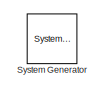
[diagram: root canvas - part 1/6, top center region]
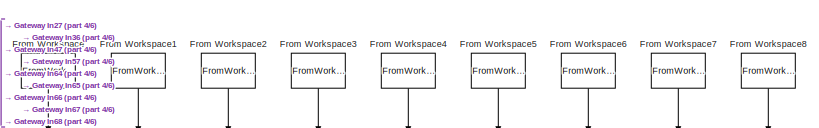
[diagram: root canvas - part 2/6, top left region]
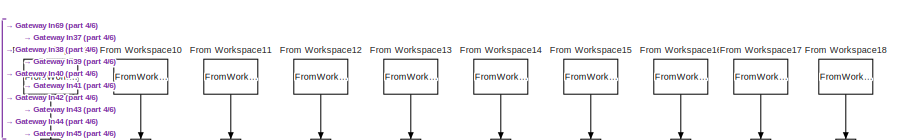
[diagram: root canvas - part 3/6, top right region]
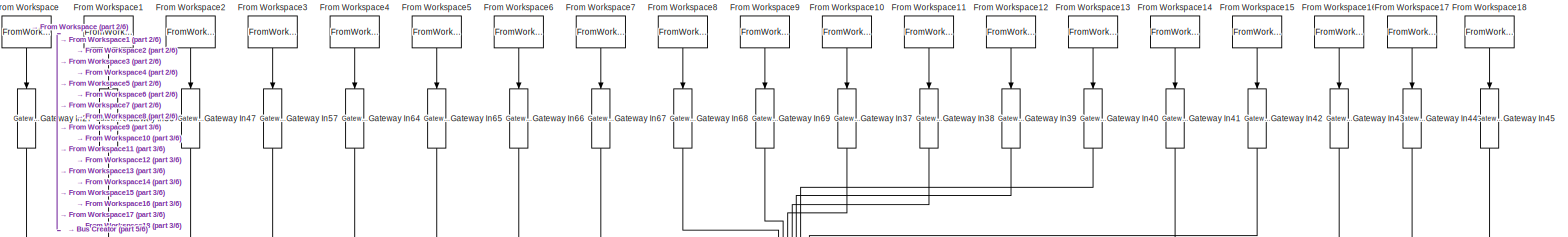
[diagram: root canvas - part 4/6, full width, top band]
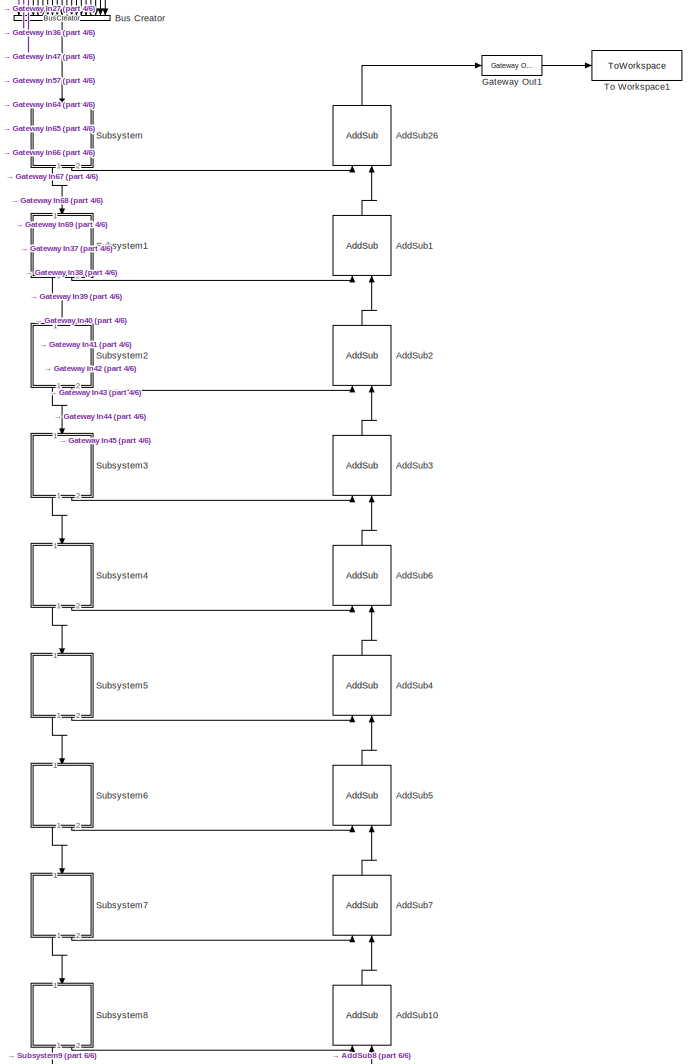
[diagram: root canvas - part 5/6, middle right region]
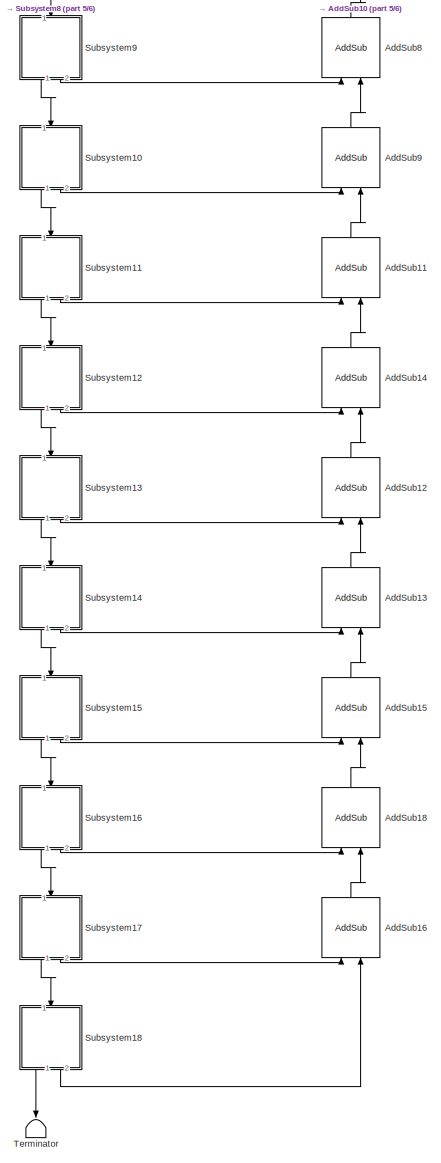
[diagram: root canvas - part 6/6, bottom center region]
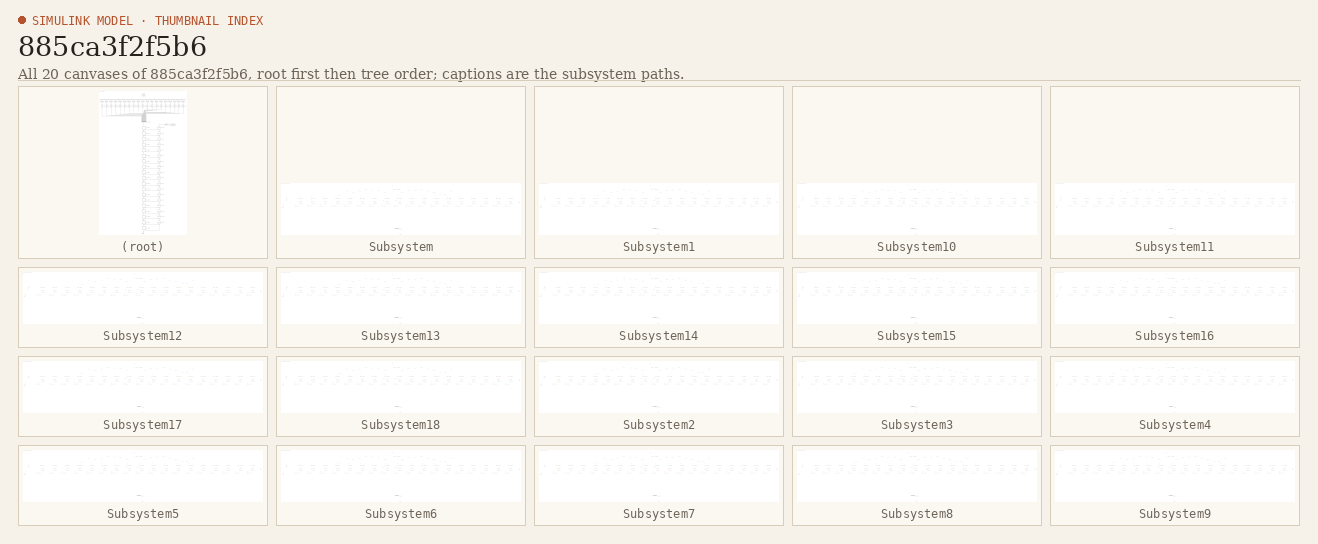
[diagram: thumbnail index - all 20 canvases of the model, root first then tree order]
MODEL slx_885ca3f2f5b6
KIND model
CONFIG AbsTol = auto
CONFIG EnableMultiTasking = off
CONFIG FixedStep = auto
CONFIG MaxStep = auto
CONFIG MinStep = auto
CONFIG RelTol = 1e-3
CONFIG SampleTimeConstraint = Unconstrained
CONFIG Solver = VariableStepAuto
CONFIG SolverName = VariableStepAuto
CONFIG StartTime = 0.0
CONFIG StopTime = 25000
BLOCK [Reference]  System Generator  REF=xbsIndex_r4/ System Generator
  AttributesFormatString = System\nGenerator
  Ports = []
  SourceBlock = xbsIndex_r4/ System Generator
  SourceType = Xilinx System Generator Block
  Tag = genX
  UserDataPersistent = on
BLOCK [Reference] AddSub1  REF=xbsIndex_r4/AddSub
  Ports = [2, 1]
  SourceBlock = xbsIndex_r4/AddSub
  SourceType = Xilinx Adder/Subtracter Block
BLOCK [Reference] AddSub10  REF=xbsIndex_r4/AddSub
  Ports = [2, 1]
  SourceBlock = xbsIndex_r4/AddSub
  SourceType = Xilinx Adder/Subtracter Block
BLOCK [Reference] AddSub11  REF=xbsIndex_r4/AddSub
  Ports = [2, 1]
  SourceBlock = xbsIndex_r4/AddSub
  SourceType = Xilinx Adder/Subtracter Block
BLOCK [Reference] AddSub12  REF=xbsIndex_r4/AddSub
  Ports = [2, 1]
  SourceBlock = xbsIndex_r4/AddSub
  SourceType = Xilinx Adder/Subtracter Block
BLOCK [Reference] AddSub13  REF=xbsIndex_r4/AddSub
  Ports = [2, 1]
  SourceBlock = xbsIndex_r4/AddSub
  SourceType = Xilinx Adder/Subtracter Block
BLOCK [Reference] AddSub14  REF=xbsIndex_r4/AddSub
  Ports = [2, 1]
  SourceBlock = xbsIndex_r4/AddSub
  SourceType = Xilinx Adder/Subtracter Block
BLOCK [Reference] AddSub15  REF=xbsIndex_r4/AddSub
  Ports = [2, 1]
  SourceBlock = xbsIndex_r4/AddSub
  SourceType = Xilinx Adder/Subtracter Block
BLOCK [Reference] AddSub16  REF=xbsIndex_r4/AddSub
  Ports = [2, 1]
  SourceBlock = xbsIndex_r4/AddSub
  SourceType = Xilinx Adder/Subtracter Block
BLOCK [Reference] AddSub18  REF=xbsIndex_r4/AddSub
  Ports = [2, 1]
  SourceBlock = xbsIndex_r4/AddSub
  SourceType = Xilinx Adder/Subtracter Block
BLOCK [Reference] AddSub2  REF=xbsIndex_r4/AddSub
  Ports = [2, 1]
  SourceBlock = xbsIndex_r4/AddSub
  SourceType = Xilinx Adder/Subtracter Block
BLOCK [Reference] AddSub26  REF=xbsIndex_r4/AddSub
  Ports = [2, 1]
  SourceBlock = xbsIndex_r4/AddSub
  SourceType = Xilinx Adder/Subtracter Block
BLOCK [Reference] AddSub3  REF=xbsIndex_r4/AddSub
  Ports = [2, 1]
  SourceBlock = xbsIndex_r4/AddSub
  SourceType = Xilinx Adder/Subtracter Block
BLOCK [Reference] AddSub4  REF=xbsIndex_r4/AddSub
  Ports = [2, 1]
  SourceBlock = xbsIndex_r4/AddSub
  SourceType = Xilinx Adder/Subtracter Block
BLOCK [Reference] AddSub5  REF=xbsIndex_r4/AddSub
  Ports = [2, 1]
  SourceBlock = xbsIndex_r4/AddSub
  SourceType = Xilinx Adder/Subtracter Block
BLOCK [Reference] AddSub6  REF=xbsIndex_r4/AddSub
  Ports = [2, 1]
  SourceBlock = xbsIndex_r4/AddSub
  SourceType = Xilinx Adder/Subtracter Block
BLOCK [Reference] AddSub7  REF=xbsIndex_r4/AddSub
  Ports = [2, 1]
  SourceBlock = xbsIndex_r4/AddSub
  SourceType = Xilinx Adder/Subtracter Block
BLOCK [Reference] AddSub8  REF=xbsIndex_r4/AddSub
  Ports = [2, 1]
  SourceBlock = xbsIndex_r4/AddSub
  SourceType = Xilinx Adder/Subtracter Block
BLOCK [Reference] AddSub9  REF=xbsIndex_r4/AddSub
  Ports = [2, 1]
  SourceBlock = xbsIndex_r4/AddSub
  SourceType = Xilinx Adder/Subtracter Block
BLOCK [BusCreator] Bus Creator
  DisplayOption = bar
  InheritFromInputs = on
  Inputs = 19
  Ports = [19, 1]
BLOCK [FromWorkspace] From Workspace
  SampleTime = 0
  VariableName = [(1:1:length(sig(:, 1)))' sig(:, 1)]
  ZeroCross = on
BLOCK [FromWorkspace] From Workspace1
  SampleTime = 0
  VariableName = [(1:1:length(sig(:, 2)))' sig(:, 2)];
  ZeroCross = on
BLOCK [FromWorkspace] From Workspace10
  SampleTime = 0
  VariableName = [(1:1:length(sig(:, 11)))' sig(:, 11)];
  ZeroCross = on
BLOCK [FromWorkspace] From Workspace11
  SampleTime = 0
  VariableName = [(1:1:length(sig(:, 12)))' sig(:, 12)];
  ZeroCross = on
BLOCK [FromWorkspace] From Workspace12
  SampleTime = 0
  VariableName = [(1:1:length(sig(:, 13)))' sig(:, 13)];
  ZeroCross = on
BLOCK [FromWorkspace] From Workspace13
  SampleTime = 0
  VariableName = [(1:1:length(sig(:, 14)))' sig(:, 14)];
  ZeroCross = on
BLOCK [FromWorkspace] From Workspace14
  SampleTime = 0
  VariableName = [(1:1:length(sig(:, 15)))' sig(:, 15)];
  ZeroCross = on
BLOCK [FromWorkspace] From Workspace15
  SampleTime = 0
  VariableName = [(1:1:length(sig(:, 16)))' sig(:, 16)];
  ZeroCross = on
BLOCK [FromWorkspace] From Workspace16
  SampleTime = 0
  VariableName = [(1:1:length(sig(:, 17)))' sig(:, 17)];
  ZeroCross = on
BLOCK [FromWorkspace] From Workspace17
  SampleTime = 0
  VariableName = [(1:1:length(sig(:, 18)))' sig(:, 18)];
  ZeroCross = on
BLOCK [FromWorkspace] From Workspace18
  SampleTime = 0
  VariableName = [(1:1:length(sig(:, 19)))' sig(:, 19)];
  ZeroCross = on
BLOCK [FromWorkspace] From Workspace2
  SampleTime = 0
  VariableName = [(1:1:length(sig(:, 3)))' sig(:, 3)];
  ZeroCross = on
BLOCK [FromWorkspace] From Workspace3
  SampleTime = 0
  VariableName = [(1:1:length(sig(:, 4)))' sig(:, 4)];
  ZeroCross = on
BLOCK [FromWorkspace] From Workspace4
  SampleTime = 0
  VariableName = [(1:1:length(sig(:, 5)))' sig(:, 5)];
  ZeroCross = on
BLOCK [FromWorkspace] From Workspace5
  SampleTime = 0
  VariableName = [(1:1:length(sig(:, 6)))' sig(:, 6)];
  ZeroCross = on
BLOCK [FromWorkspace] From Workspace6
  SampleTime = 0
  VariableName = [(1:1:length(sig(:, 7)))' sig(:, 7)];
  ZeroCross = on
BLOCK [FromWorkspace] From Workspace7
  SampleTime = 0
  VariableName = [(1:1:length(sig(:, 8)))' sig(:, 8)];
  ZeroCross = on
BLOCK [FromWorkspace] From Workspace8
  SampleTime = 0
  VariableName = [(1:1:length(sig(:, 9)))' sig(:, 9)];
  ZeroCross = on
BLOCK [FromWorkspace] From Workspace9
  SampleTime = 0
  VariableName = [(1:1:length(sig(:, 10)))' sig(:, 10)];
  ZeroCross = on
BLOCK [Reference] Gateway In27  REF=xbsIndex_r4/Gateway In
  Ports = [1, 1]
  SourceBlock = xbsIndex_r4/Gateway In
  SourceType = Xilinx Gateway In Block
BLOCK [Reference] Gateway In36  REF=xbsIndex_r4/Gateway In
  Ports = [1, 1]
  SourceBlock = xbsIndex_r4/Gateway In
  SourceType = Xilinx Gateway In Block
BLOCK [Reference] Gateway In37  REF=xbsIndex_r4/Gateway In
  Ports = [1, 1]
  SourceBlock = xbsIndex_r4/Gateway In
  SourceType = Xilinx Gateway In Block
BLOCK [Reference] Gateway In38  REF=xbsIndex_r4/Gateway In
  Ports = [1, 1]
  SourceBlock = xbsIndex_r4/Gateway In
  SourceType = Xilinx Gateway In Block
BLOCK [Reference] Gateway In39  REF=xbsIndex_r4/Gateway In
  Ports = [1, 1]
  SourceBlock = xbsIndex_r4/Gateway In
  SourceType = Xilinx Gateway In Block
BLOCK [Reference] Gateway In40  REF=xbsIndex_r4/Gateway In
  Ports = [1, 1]
  SourceBlock = xbsIndex_r4/Gateway In
  SourceType = Xilinx Gateway In Block
BLOCK [Reference] Gateway In41  REF=xbsIndex_r4/Gateway In
  Ports = [1, 1]
  SourceBlock = xbsIndex_r4/Gateway In
  SourceType = Xilinx Gateway In Block
BLOCK [Reference] Gateway In42  REF=xbsIndex_r4/Gateway In
  Ports = [1, 1]
  SourceBlock = xbsIndex_r4/Gateway In
  SourceType = Xilinx Gateway In Block
BLOCK [Reference] Gateway In43  REF=xbsIndex_r4/Gateway In
  Ports = [1, 1]
  SourceBlock = xbsIndex_r4/Gateway In
  SourceType = Xilinx Gateway In Block
BLOCK [Reference] Gateway In44  REF=xbsIndex_r4/Gateway In
  Ports = [1, 1]
  SourceBlock = xbsIndex_r4/Gateway In
  SourceType = Xilinx Gateway In Block
BLOCK [Reference] Gateway In45  REF=xbsIndex_r4/Gateway In
  Ports = [1, 1]
  SourceBlock = xbsIndex_r4/Gateway In
  SourceType = Xilinx Gateway In Block
BLOCK [Reference] Gateway In47  REF=xbsIndex_r4/Gateway In
  Ports = [1, 1]
  SourceBlock = xbsIndex_r4/Gateway In
  SourceType = Xilinx Gateway In Block
BLOCK [Reference] Gateway In57  REF=xbsIndex_r4/Gateway In
  Ports = [1, 1]
  SourceBlock = xbsIndex_r4/Gateway In
  SourceType = Xilinx Gateway In Block
BLOCK [Reference] Gateway In64  REF=xbsIndex_r4/Gateway In
  Ports = [1, 1]
  SourceBlock = xbsIndex_r4/Gateway In
  SourceType = Xilinx Gateway In Block
BLOCK [Reference] Gateway In65  REF=xbsIndex_r4/Gateway In
  Ports = [1, 1]
  SourceBlock = xbsIndex_r4/Gateway In
  SourceType = Xilinx Gateway In Block
BLOCK [Reference] Gateway In66  REF=xbsIndex_r4/Gateway In
  Ports = [1, 1]
  SourceBlock = xbsIndex_r4/Gateway In
  SourceType = Xilinx Gateway In Block
BLOCK [Reference] Gateway In67  REF=xbsIndex_r4/Gateway In
  Ports = [1, 1]
  SourceBlock = xbsIndex_r4/Gateway In
  SourceType = Xilinx Gateway In Block
BLOCK [Reference] Gateway In68  REF=xbsIndex_r4/Gateway In
  Ports = [1, 1]
  SourceBlock = xbsIndex_r4/Gateway In
  SourceType = Xilinx Gateway In Block
BLOCK [Reference] Gateway In69  REF=xbsIndex_r4/Gateway In
  Ports = [1, 1]
  SourceBlock = xbsIndex_r4/Gateway In
  SourceType = Xilinx Gateway In Block
BLOCK [Reference] Gateway Out1  REF=xbsIndex_r4/Gateway Out
  Ports = [1, 1]
  SourceBlock = xbsIndex_r4/Gateway Out
  SourceType = Xilinx Gateway Out Block
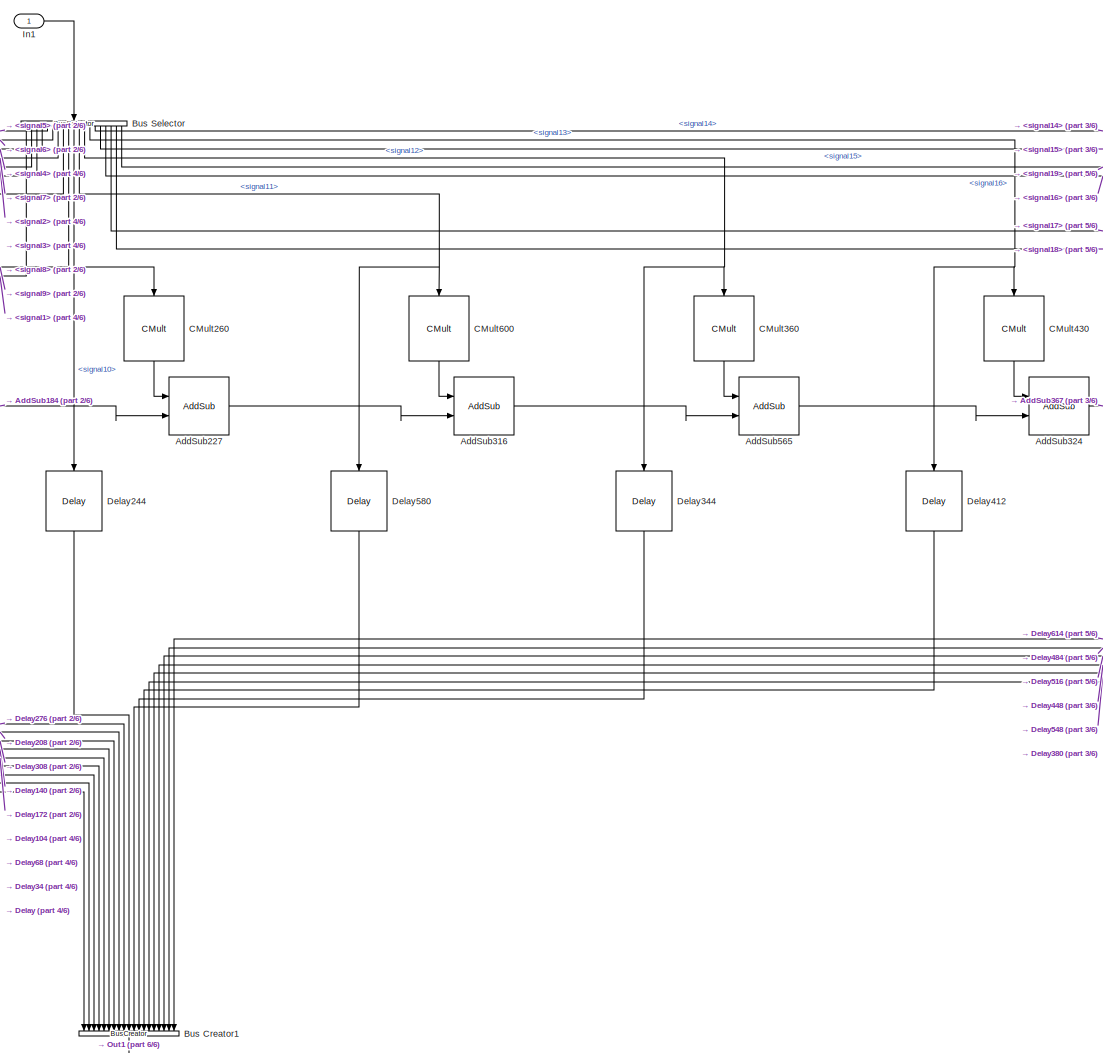
[diagram: Subsystem - part 1/6, center side, full height]
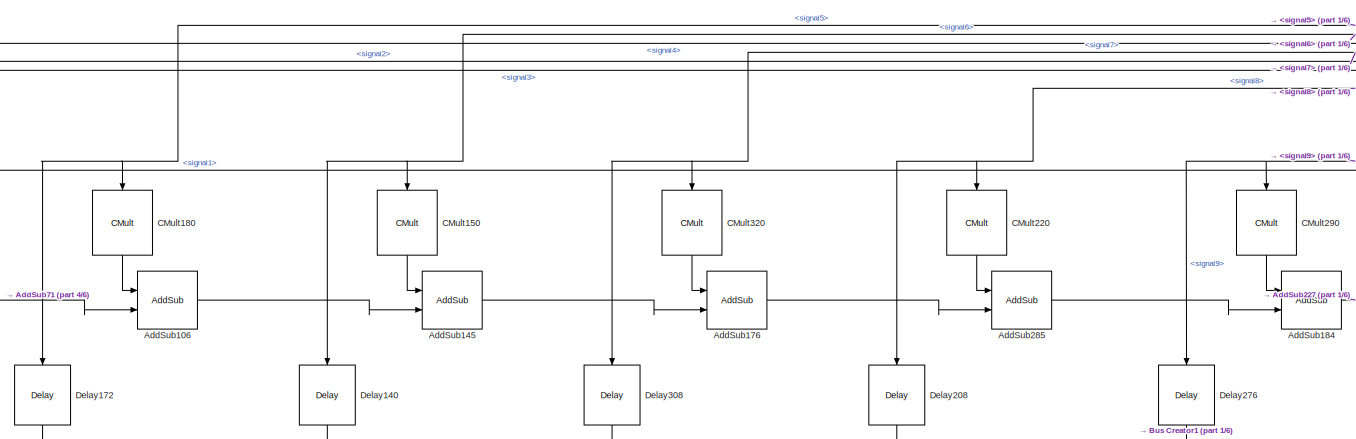
[diagram: Subsystem - part 2/6, top left region]
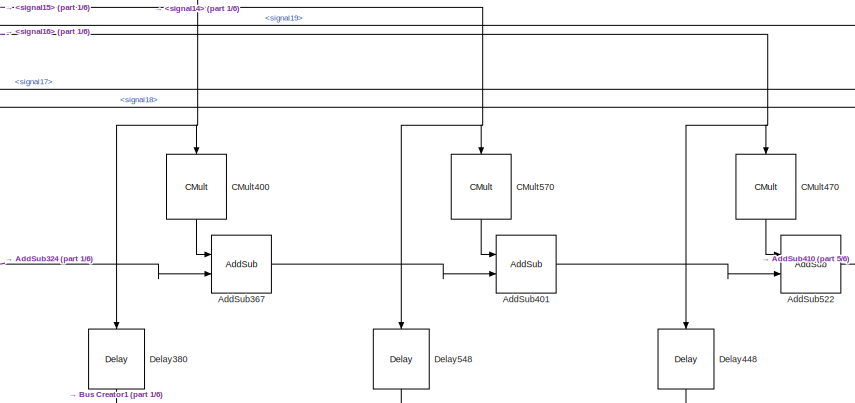
[diagram: Subsystem - part 3/6, top right region]
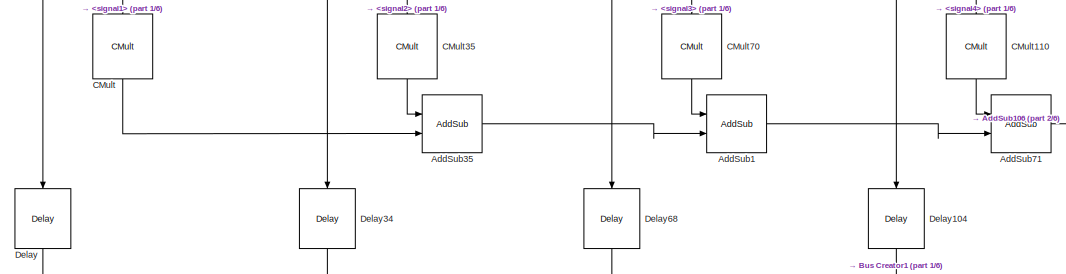
[diagram: Subsystem - part 4/6, middle left region]
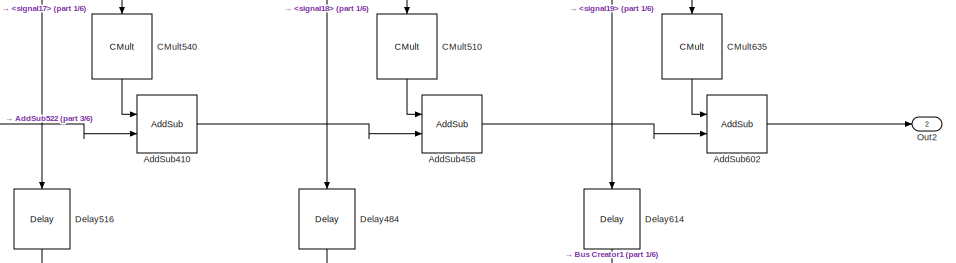
[diagram: Subsystem - part 5/6, middle right region]
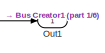
[diagram: Subsystem - part 6/6, bottom center region]
BLOCK [SubSystem] Subsystem
  Ports = [1, 2]
  RequestExecContextInheritance = off
BLOCK [Reference] Subsystem/AddSub1  REF=xbsIndex_r4/AddSub
  Ports = [2, 1]
  SourceBlock = xbsIndex_r4/AddSub
  SourceType = Xilinx Adder/Subtracter Block
BLOCK [Reference] Subsystem/AddSub106  REF=xbsIndex_r4/AddSub
  Ports = [2, 1]
  SourceBlock = xbsIndex_r4/AddSub
  SourceType = Xilinx Adder/Subtracter Block
BLOCK [Reference] Subsystem/AddSub145  REF=xbsIndex_r4/AddSub
  Ports = [2, 1]
  SourceBlock = xbsIndex_r4/AddSub
  SourceType = Xilinx Adder/Subtracter Block
BLOCK [Reference] Subsystem/AddSub176  REF=xbsIndex_r4/AddSub
  Ports = [2, 1]
  SourceBlock = xbsIndex_r4/AddSub
  SourceType = Xilinx Adder/Subtracter Block
BLOCK [Reference] Subsystem/AddSub184  REF=xbsIndex_r4/AddSub
  Ports = [2, 1]
  SourceBlock = xbsIndex_r4/AddSub
  SourceType = Xilinx Adder/Subtracter Block
BLOCK [Reference] Subsystem/AddSub227  REF=xbsIndex_r4/AddSub
  Ports = [2, 1]
  SourceBlock = xbsIndex_r4/AddSub
  SourceType = Xilinx Adder/Subtracter Block
BLOCK [Reference] Subsystem/AddSub285  REF=xbsIndex_r4/AddSub
  Ports = [2, 1]
  SourceBlock = xbsIndex_r4/AddSub
  SourceType = Xilinx Adder/Subtracter Block
BLOCK [Reference] Subsystem/AddSub316  REF=xbsIndex_r4/AddSub
  Ports = [2, 1]
  SourceBlock = xbsIndex_r4/AddSub
  SourceType = Xilinx Adder/Subtracter Block
BLOCK [Reference] Subsystem/AddSub324  REF=xbsIndex_r4/AddSub
  Ports = [2, 1]
  SourceBlock = xbsIndex_r4/AddSub
  SourceType = Xilinx Adder/Subtracter Block
BLOCK [Reference] Subsystem/AddSub35  REF=xbsIndex_r4/AddSub
  Ports = [2, 1]
  SourceBlock = xbsIndex_r4/AddSub
  SourceType = Xilinx Adder/Subtracter Block
BLOCK [Reference] Subsystem/AddSub367  REF=xbsIndex_r4/AddSub
  Ports = [2, 1]
  SourceBlock = xbsIndex_r4/AddSub
  SourceType = Xilinx Adder/Subtracter Block
BLOCK [Reference] Subsystem/AddSub401  REF=xbsIndex_r4/AddSub
  Ports = [2, 1]
  SourceBlock = xbsIndex_r4/AddSub
  SourceType = Xilinx Adder/Subtracter Block
BLOCK [Reference] Subsystem/AddSub410  REF=xbsIndex_r4/AddSub
  Ports = [2, 1]
  SourceBlock = xbsIndex_r4/AddSub
  SourceType = Xilinx Adder/Subtracter Block
BLOCK [Reference] Subsystem/AddSub458  REF=xbsIndex_r4/AddSub
  Ports = [2, 1]
  SourceBlock = xbsIndex_r4/AddSub
  SourceType = Xilinx Adder/Subtracter Block
BLOCK [Reference] Subsystem/AddSub522  REF=xbsIndex_r4/AddSub
  Ports = [2, 1]
  SourceBlock = xbsIndex_r4/AddSub
  SourceType = Xilinx Adder/Subtracter Block
BLOCK [Reference] Subsystem/AddSub565  REF=xbsIndex_r4/AddSub
  Ports = [2, 1]
  SourceBlock = xbsIndex_r4/AddSub
  SourceType = Xilinx Adder/Subtracter Block
BLOCK [Reference] Subsystem/AddSub602  REF=xbsIndex_r4/AddSub
  Ports = [2, 1]
  SourceBlock = xbsIndex_r4/AddSub
  SourceType = Xilinx Adder/Subtracter Block
BLOCK [Reference] Subsystem/AddSub71  REF=xbsIndex_r4/AddSub
  Ports = [2, 1]
  SourceBlock = xbsIndex_r4/AddSub
  SourceType = Xilinx Adder/Subtracter Block
BLOCK [BusCreator] Subsystem/Bus Creator1
  DisplayOption = bar
  InheritFromInputs = on
  Inputs = 19
  Ports = [19, 1]
BLOCK [BusSelector] Subsystem/Bus Selector
  OutputAsBus = off
  OutputSignals = signal1,signal2,signal3,signal4,signal5,signal6,signal7,signal8,signal9,signal10,signal11,signal12,signal13,signal14,signal15,signal16,signal17,signal18,signal19
  Ports = [1, 19]
BLOCK [Reference] Subsystem/CMult  REF=xbsIndex_r4/CMult
  Ports = [1, 1]
  SourceBlock = xbsIndex_r4/CMult
  SourceType = Xilinx Constant Multiplier Block
BLOCK [Reference] Subsystem/CMult110  REF=xbsIndex_r4/CMult
  Ports = [1, 1]
  SourceBlock = xbsIndex_r4/CMult
  SourceType = Xilinx Constant Multiplier Block
BLOCK [Reference] Subsystem/CMult150  REF=xbsIndex_r4/CMult
  Ports = [1, 1]
  SourceBlock = xbsIndex_r4/CMult
  SourceType = Xilinx Constant Multiplier Block
BLOCK [Reference] Subsystem/CMult180  REF=xbsIndex_r4/CMult
  Ports = [1, 1]
  SourceBlock = xbsIndex_r4/CMult
  SourceType = Xilinx Constant Multiplier Block
BLOCK [Reference] Subsystem/CMult220  REF=xbsIndex_r4/CMult
  Ports = [1, 1]
  SourceBlock = xbsIndex_r4/CMult
  SourceType = Xilinx Constant Multiplier Block
BLOCK [Reference] Subsystem/CMult260  REF=xbsIndex_r4/CMult
  Ports = [1, 1]
  SourceBlock = xbsIndex_r4/CMult
  SourceType = Xilinx Constant Multiplier Block
BLOCK [Reference] Subsystem/CMult290  REF=xbsIndex_r4/CMult
  Ports = [1, 1]
  SourceBlock = xbsIndex_r4/CMult
  SourceType = Xilinx Constant Multiplier Block
BLOCK [Reference] Subsystem/CMult320  REF=xbsIndex_r4/CMult
  Ports = [1, 1]
  SourceBlock = xbsIndex_r4/CMult
  SourceType = Xilinx Constant Multiplier Block
BLOCK [Reference] Subsystem/CMult35  REF=xbsIndex_r4/CMult
  Ports = [1, 1]
  SourceBlock = xbsIndex_r4/CMult
  SourceType = Xilinx Constant Multiplier Block
BLOCK [Reference] Subsystem/CMult360  REF=xbsIndex_r4/CMult
  Ports = [1, 1]
  SourceBlock = xbsIndex_r4/CMult
  SourceType = Xilinx Constant Multiplier Block
BLOCK [Reference] Subsystem/CMult400  REF=xbsIndex_r4/CMult
  Ports = [1, 1]
  SourceBlock = xbsIndex_r4/CMult
  SourceType = Xilinx Constant Multiplier Block
BLOCK [Reference] Subsystem/CMult430  REF=xbsIndex_r4/CMult
  Ports = [1, 1]
  SourceBlock = xbsIndex_r4/CMult
  SourceType = Xilinx Constant Multiplier Block
BLOCK [Reference] Subsystem/CMult470  REF=xbsIndex_r4/CMult
  Ports = [1, 1]
  SourceBlock = xbsIndex_r4/CMult
  SourceType = Xilinx Constant Multiplier Block
BLOCK [Reference] Subsystem/CMult510  REF=xbsIndex_r4/CMult
  Ports = [1, 1]
  SourceBlock = xbsIndex_r4/CMult
  SourceType = Xilinx Constant Multiplier Block
BLOCK [Reference] Subsystem/CMult540  REF=xbsIndex_r4/CMult
  Ports = [1, 1]
  SourceBlock = xbsIndex_r4/CMult
  SourceType = Xilinx Constant Multiplier Block
BLOCK [Reference] Subsystem/CMult570  REF=xbsIndex_r4/CMult
  Ports = [1, 1]
  SourceBlock = xbsIndex_r4/CMult
  SourceType = Xilinx Constant Multiplier Block
BLOCK [Reference] Subsystem/CMult600  REF=xbsIndex_r4/CMult
  Ports = [1, 1]
  SourceBlock = xbsIndex_r4/CMult
  SourceType = Xilinx Constant Multiplier Block
BLOCK [Reference] Subsystem/CMult635  REF=xbsIndex_r4/CMult
  Ports = [1, 1]
  SourceBlock = xbsIndex_r4/CMult
  SourceType = Xilinx Constant Multiplier Block
BLOCK [Reference] Subsystem/CMult70  REF=xbsIndex_r4/CMult
  Ports = [1, 1]
  SourceBlock = xbsIndex_r4/CMult
  SourceType = Xilinx Constant Multiplier Block
BLOCK [Reference] Subsystem/Delay  REF=xbsIndex_r4/Delay
  Ports = [1, 1]
  SourceBlock = xbsIndex_r4/Delay
  SourceType = Xilinx Delay Block
BLOCK [Reference] Subsystem/Delay104  REF=xbsIndex_r4/Delay
  Ports = [1, 1]
  SourceBlock = xbsIndex_r4/Delay
  SourceType = Xilinx Delay Block
BLOCK [Reference] Subsystem/Delay140  REF=xbsIndex_r4/Delay
  Ports = [1, 1]
  SourceBlock = xbsIndex_r4/Delay
  SourceType = Xilinx Delay Block
BLOCK [Reference] Subsystem/Delay172  REF=xbsIndex_r4/Delay
  Ports = [1, 1]
  SourceBlock = xbsIndex_r4/Delay
  SourceType = Xilinx Delay Block
BLOCK [Reference] Subsystem/Delay208  REF=xbsIndex_r4/Delay
  Ports = [1, 1]
  SourceBlock = xbsIndex_r4/Delay
  SourceType = Xilinx Delay Block
BLOCK [Reference] Subsystem/Delay244  REF=xbsIndex_r4/Delay
  Ports = [1, 1]
  SourceBlock = xbsIndex_r4/Delay
  SourceType = Xilinx Delay Block
BLOCK [Reference] Subsystem/Delay276  REF=xbsIndex_r4/Delay
  Ports = [1, 1]
  SourceBlock = xbsIndex_r4/Delay
  SourceType = Xilinx Delay Block
BLOCK [Reference] Subsystem/Delay308  REF=xbsIndex_r4/Delay
  Ports = [1, 1]
  SourceBlock = xbsIndex_r4/Delay
  SourceType = Xilinx Delay Block
BLOCK [Reference] Subsystem/Delay34  REF=xbsIndex_r4/Delay
  Ports = [1, 1]
  SourceBlock = xbsIndex_r4/Delay
  SourceType = Xilinx Delay Block
BLOCK [Reference] Subsystem/Delay344  REF=xbsIndex_r4/Delay
  Ports = [1, 1]
  SourceBlock = xbsIndex_r4/Delay
  SourceType = Xilinx Delay Block
BLOCK [Reference] Subsystem/Delay380  REF=xbsIndex_r4/Delay
  Ports = [1, 1]
  SourceBlock = xbsIndex_r4/Delay
  SourceType = Xilinx Delay Block
BLOCK [Reference] Subsystem/Delay412  REF=xbsIndex_r4/Delay
  Ports = [1, 1]
  SourceBlock = xbsIndex_r4/Delay
  SourceType = Xilinx Delay Block
BLOCK [Reference] Subsystem/Delay448  REF=xbsIndex_r4/Delay
  Ports = [1, 1]
  SourceBlock = xbsIndex_r4/Delay
  SourceType = Xilinx Delay Block
BLOCK [Reference] Subsystem/Delay484  REF=xbsIndex_r4/Delay
  Ports = [1, 1]
  SourceBlock = xbsIndex_r4/Delay
  SourceType = Xilinx Delay Block
BLOCK [Reference] Subsystem/Delay516  REF=xbsIndex_r4/Delay
  Ports = [1, 1]
  SourceBlock = xbsIndex_r4/Delay
  SourceType = Xilinx Delay Block
BLOCK [Reference] Subsystem/Delay548  REF=xbsIndex_r4/Delay
  Ports = [1, 1]
  SourceBlock = xbsIndex_r4/Delay
  SourceType = Xilinx Delay Block
BLOCK [Reference] Subsystem/Delay580  REF=xbsIndex_r4/Delay
  Ports = [1, 1]
  SourceBlock = xbsIndex_r4/Delay
  SourceType = Xilinx Delay Block
BLOCK [Reference] Subsystem/Delay614  REF=xbsIndex_r4/Delay
  Ports = [1, 1]
  SourceBlock = xbsIndex_r4/Delay
  SourceType = Xilinx Delay Block
BLOCK [Reference] Subsystem/Delay68  REF=xbsIndex_r4/Delay
  Ports = [1, 1]
  SourceBlock = xbsIndex_r4/Delay
  SourceType = Xilinx Delay Block
BLOCK [Inport] Subsystem/In1
  IconDisplay = Port number
BLOCK [Outport] Subsystem/Out1
  IconDisplay = Port number
BLOCK [Outport] Subsystem/Out2
  IconDisplay = Port number
  Port = 2
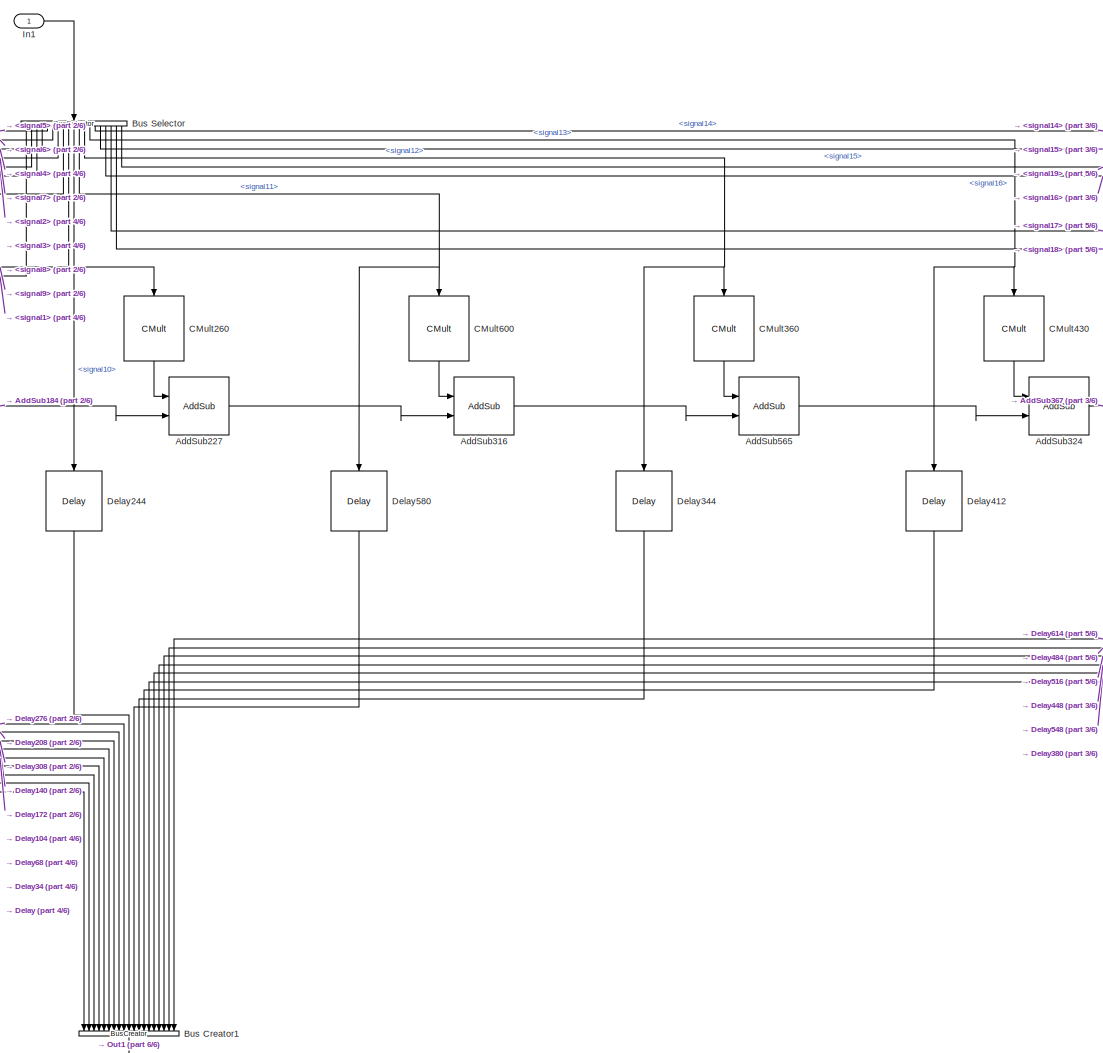
[diagram: Subsystem1 - part 1/6, center side, full height]
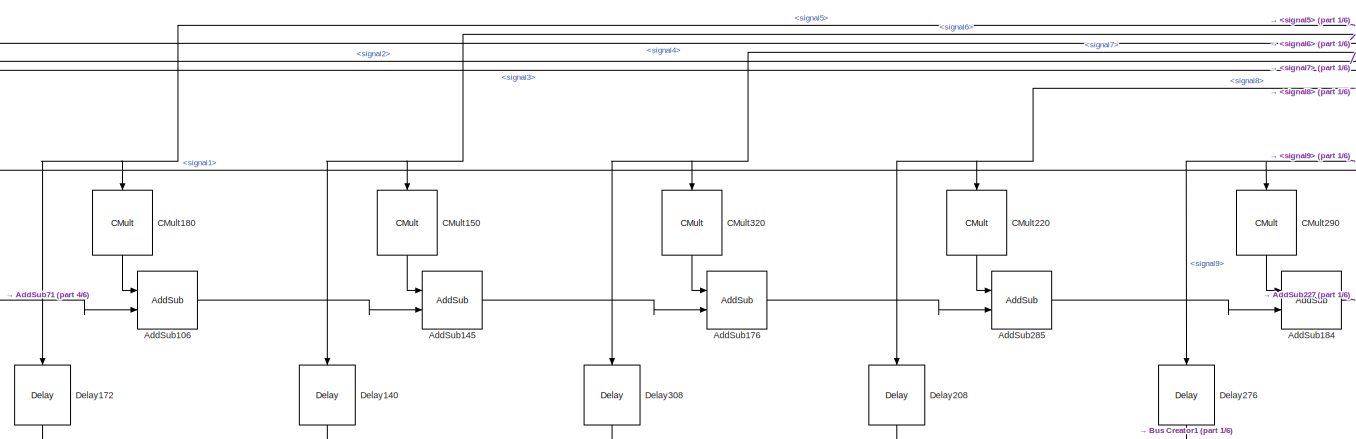
[diagram: Subsystem1 - part 2/6, top left region]
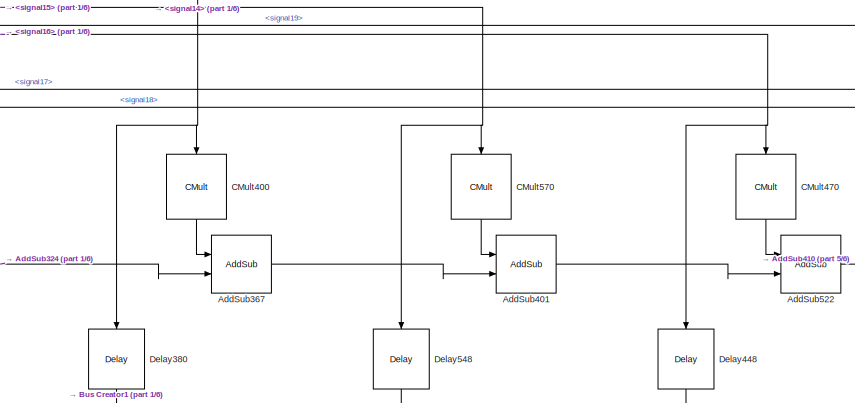
[diagram: Subsystem1 - part 3/6, top right region]
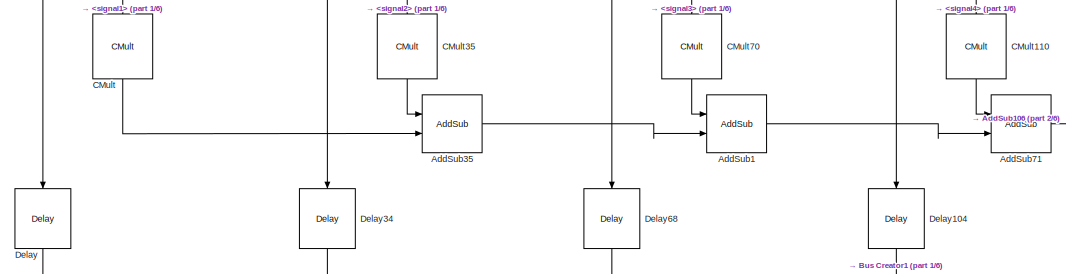
[diagram: Subsystem1 - part 4/6, middle left region]
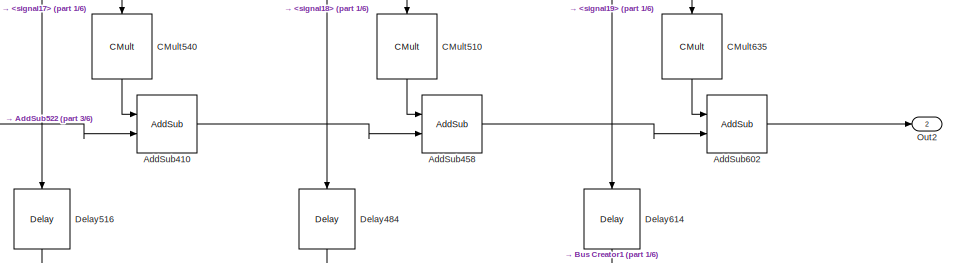
[diagram: Subsystem1 - part 5/6, middle right region]
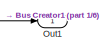
[diagram: Subsystem1 - part 6/6, bottom center region]
BLOCK [SubSystem] Subsystem1
  Ports = [1, 2]
  RequestExecContextInheritance = off
BLOCK [Reference] Subsystem1/AddSub1  REF=xbsIndex_r4/AddSub
  Ports = [2, 1]
  SourceBlock = xbsIndex_r4/AddSub
  SourceType = Xilinx Adder/Subtracter Block
BLOCK [Reference] Subsystem1/AddSub106  REF=xbsIndex_r4/AddSub
  Ports = [2, 1]
  SourceBlock = xbsIndex_r4/AddSub
  SourceType = Xilinx Adder/Subtracter Block
BLOCK [Reference] Subsystem1/AddSub145  REF=xbsIndex_r4/AddSub
  Ports = [2, 1]
  SourceBlock = xbsIndex_r4/AddSub
  SourceType = Xilinx Adder/Subtracter Block
BLOCK [Reference] Subsystem1/AddSub176  REF=xbsIndex_r4/AddSub
  Ports = [2, 1]
  SourceBlock = xbsIndex_r4/AddSub
  SourceType = Xilinx Adder/Subtracter Block
BLOCK [Reference] Subsystem1/AddSub184  REF=xbsIndex_r4/AddSub
  Ports = [2, 1]
  SourceBlock = xbsIndex_r4/AddSub
  SourceType = Xilinx Adder/Subtracter Block
BLOCK [Reference] Subsystem1/AddSub227  REF=xbsIndex_r4/AddSub
  Ports = [2, 1]
  SourceBlock = xbsIndex_r4/AddSub
  SourceType = Xilinx Adder/Subtracter Block
BLOCK [Reference] Subsystem1/AddSub285  REF=xbsIndex_r4/AddSub
  Ports = [2, 1]
  SourceBlock = xbsIndex_r4/AddSub
  SourceType = Xilinx Adder/Subtracter Block
BLOCK [Reference] Subsystem1/AddSub316  REF=xbsIndex_r4/AddSub
  Ports = [2, 1]
  SourceBlock = xbsIndex_r4/AddSub
  SourceType = Xilinx Adder/Subtracter Block
BLOCK [Reference] Subsystem1/AddSub324  REF=xbsIndex_r4/AddSub
  Ports = [2, 1]
  SourceBlock = xbsIndex_r4/AddSub
  SourceType = Xilinx Adder/Subtracter Block
BLOCK [Reference] Subsystem1/AddSub35  REF=xbsIndex_r4/AddSub
  Ports = [2, 1]
  SourceBlock = xbsIndex_r4/AddSub
  SourceType = Xilinx Adder/Subtracter Block
BLOCK [Reference] Subsystem1/AddSub367  REF=xbsIndex_r4/AddSub
  Ports = [2, 1]
  SourceBlock = xbsIndex_r4/AddSub
  SourceType = Xilinx Adder/Subtracter Block
BLOCK [Reference] Subsystem1/AddSub401  REF=xbsIndex_r4/AddSub
  Ports = [2, 1]
  SourceBlock = xbsIndex_r4/AddSub
  SourceType = Xilinx Adder/Subtracter Block
BLOCK [Reference] Subsystem1/AddSub410  REF=xbsIndex_r4/AddSub
  Ports = [2, 1]
  SourceBlock = xbsIndex_r4/AddSub
  SourceType = Xilinx Adder/Subtracter Block
BLOCK [Reference] Subsystem1/AddSub458  REF=xbsIndex_r4/AddSub
  Ports = [2, 1]
  SourceBlock = xbsIndex_r4/AddSub
  SourceType = Xilinx Adder/Subtracter Block
BLOCK [Reference] Subsystem1/AddSub522  REF=xbsIndex_r4/AddSub
  Ports = [2, 1]
  SourceBlock = xbsIndex_r4/AddSub
  SourceType = Xilinx Adder/Subtracter Block
BLOCK [Reference] Subsystem1/AddSub565  REF=xbsIndex_r4/AddSub
  Ports = [2, 1]
  SourceBlock = xbsIndex_r4/AddSub
  SourceType = Xilinx Adder/Subtracter Block
BLOCK [Reference] Subsystem1/AddSub602  REF=xbsIndex_r4/AddSub
  Ports = [2, 1]
  SourceBlock = xbsIndex_r4/AddSub
  SourceType = Xilinx Adder/Subtracter Block
BLOCK [Reference] Subsystem1/AddSub71  REF=xbsIndex_r4/AddSub
  Ports = [2, 1]
  SourceBlock = xbsIndex_r4/AddSub
  SourceType = Xilinx Adder/Subtracter Block
BLOCK [BusCreator] Subsystem1/Bus Creator1
  DisplayOption = bar
  InheritFromInputs = on
  Inputs = 19
  Ports = [19, 1]
BLOCK [BusSelector] Subsystem1/Bus Selector
  OutputAsBus = off
  OutputSignals = signal1,signal2,signal3,signal4,signal5,signal6,signal7,signal8,signal9,signal10,signal11,signal12,signal13,signal14,signal15,signal16,signal17,signal18,signal19
  Ports = [1, 19]
BLOCK [Reference] Subsystem1/CMult  REF=xbsIndex_r4/CMult
  Ports = [1, 1]
  SourceBlock = xbsIndex_r4/CMult
  SourceType = Xilinx Constant Multiplier Block
BLOCK [Reference] Subsystem1/CMult110  REF=xbsIndex_r4/CMult
  Ports = [1, 1]
  SourceBlock = xbsIndex_r4/CMult
  SourceType = Xilinx Constant Multiplier Block
BLOCK [Reference] Subsystem1/CMult150  REF=xbsIndex_r4/CMult
  Ports = [1, 1]
  SourceBlock = xbsIndex_r4/CMult
  SourceType = Xilinx Constant Multiplier Block
BLOCK [Reference] Subsystem1/CMult180  REF=xbsIndex_r4/CMult
  Ports = [1, 1]
  SourceBlock = xbsIndex_r4/CMult
  SourceType = Xilinx Constant Multiplier Block
BLOCK [Reference] Subsystem1/CMult220  REF=xbsIndex_r4/CMult
  Ports = [1, 1]
  SourceBlock = xbsIndex_r4/CMult
  SourceType = Xilinx Constant Multiplier Block
BLOCK [Reference] Subsystem1/CMult260  REF=xbsIndex_r4/CMult
  Ports = [1, 1]
  SourceBlock = xbsIndex_r4/CMult
  SourceType = Xilinx Constant Multiplier Block
BLOCK [Reference] Subsystem1/CMult290  REF=xbsIndex_r4/CMult
  Ports = [1, 1]
  SourceBlock = xbsIndex_r4/CMult
  SourceType = Xilinx Constant Multiplier Block
BLOCK [Reference] Subsystem1/CMult320  REF=xbsIndex_r4/CMult
  Ports = [1, 1]
  SourceBlock = xbsIndex_r4/CMult
  SourceType = Xilinx Constant Multiplier Block
BLOCK [Reference] Subsystem1/CMult35  REF=xbsIndex_r4/CMult
  Ports = [1, 1]
  SourceBlock = xbsIndex_r4/CMult
  SourceType = Xilinx Constant Multiplier Block
BLOCK [Reference] Subsystem1/CMult360  REF=xbsIndex_r4/CMult
  Ports = [1, 1]
  SourceBlock = xbsIndex_r4/CMult
  SourceType = Xilinx Constant Multiplier Block
BLOCK [Reference] Subsystem1/CMult400  REF=xbsIndex_r4/CMult
  Ports = [1, 1]
  SourceBlock = xbsIndex_r4/CMult
  SourceType = Xilinx Constant Multiplier Block
BLOCK [Reference] Subsystem1/CMult430  REF=xbsIndex_r4/CMult
  Ports = [1, 1]
  SourceBlock = xbsIndex_r4/CMult
  SourceType = Xilinx Constant Multiplier Block
BLOCK [Reference] Subsystem1/CMult470  REF=xbsIndex_r4/CMult
  Ports = [1, 1]
  SourceBlock = xbsIndex_r4/CMult
  SourceType = Xilinx Constant Multiplier Block
BLOCK [Reference] Subsystem1/CMult510  REF=xbsIndex_r4/CMult
  Ports = [1, 1]
  SourceBlock = xbsIndex_r4/CMult
  SourceType = Xilinx Constant Multiplier Block
BLOCK [Reference] Subsystem1/CMult540  REF=xbsIndex_r4/CMult
  Ports = [1, 1]
  SourceBlock = xbsIndex_r4/CMult
  SourceType = Xilinx Constant Multiplier Block
BLOCK [Reference] Subsystem1/CMult570  REF=xbsIndex_r4/CMult
  Ports = [1, 1]
  SourceBlock = xbsIndex_r4/CMult
  SourceType = Xilinx Constant Multiplier Block
BLOCK [Reference] Subsystem1/CMult600  REF=xbsIndex_r4/CMult
  Ports = [1, 1]
  SourceBlock = xbsIndex_r4/CMult
  SourceType = Xilinx Constant Multiplier Block
BLOCK [Reference] Subsystem1/CMult635  REF=xbsIndex_r4/CMult
  Ports = [1, 1]
  SourceBlock = xbsIndex_r4/CMult
  SourceType = Xilinx Constant Multiplier Block
BLOCK [Reference] Subsystem1/CMult70  REF=xbsIndex_r4/CMult
  Ports = [1, 1]
  SourceBlock = xbsIndex_r4/CMult
  SourceType = Xilinx Constant Multiplier Block
BLOCK [Reference] Subsystem1/Delay  REF=xbsIndex_r4/Delay
  Ports = [1, 1]
  SourceBlock = xbsIndex_r4/Delay
  SourceType = Xilinx Delay Block
BLOCK [Reference] Subsystem1/Delay104  REF=xbsIndex_r4/Delay
  Ports = [1, 1]
  SourceBlock = xbsIndex_r4/Delay
  SourceType = Xilinx Delay Block
BLOCK [Reference] Subsystem1/Delay140  REF=xbsIndex_r4/Delay
  Ports = [1, 1]
  SourceBlock = xbsIndex_r4/Delay
  SourceType = Xilinx Delay Block
BLOCK [Reference] Subsystem1/Delay172  REF=xbsIndex_r4/Delay
  Ports = [1, 1]
  SourceBlock = xbsIndex_r4/Delay
  SourceType = Xilinx Delay Block
BLOCK [Reference] Subsystem1/Delay208  REF=xbsIndex_r4/Delay
  Ports = [1, 1]
  SourceBlock = xbsIndex_r4/Delay
  SourceType = Xilinx Delay Block
BLOCK [Reference] Subsystem1/Delay244  REF=xbsIndex_r4/Delay
  Ports = [1, 1]
  SourceBlock = xbsIndex_r4/Delay
  SourceType = Xilinx Delay Block
BLOCK [Reference] Subsystem1/Delay276  REF=xbsIndex_r4/Delay
  Ports = [1, 1]
  SourceBlock = xbsIndex_r4/Delay
  SourceType = Xilinx Delay Block
BLOCK [Reference] Subsystem1/Delay308  REF=xbsIndex_r4/Delay
  Ports = [1, 1]
  SourceBlock = xbsIndex_r4/Delay
  SourceType = Xilinx Delay Block
BLOCK [Reference] Subsystem1/Delay34  REF=xbsIndex_r4/Delay
  Ports = [1, 1]
  SourceBlock = xbsIndex_r4/Delay
  SourceType = Xilinx Delay Block
BLOCK [Reference] Subsystem1/Delay344  REF=xbsIndex_r4/Delay
  Ports = [1, 1]
  SourceBlock = xbsIndex_r4/Delay
  SourceType = Xilinx Delay Block
BLOCK [Reference] Subsystem1/Delay380  REF=xbsIndex_r4/Delay
  Ports = [1, 1]
  SourceBlock = xbsIndex_r4/Delay
  SourceType = Xilinx Delay Block
BLOCK [Reference] Subsystem1/Delay412  REF=xbsIndex_r4/Delay
  Ports = [1, 1]
  SourceBlock = xbsIndex_r4/Delay
  SourceType = Xilinx Delay Block
BLOCK [Reference] Subsystem1/Delay448  REF=xbsIndex_r4/Delay
  Ports = [1, 1]
  SourceBlock = xbsIndex_r4/Delay
  SourceType = Xilinx Delay Block
BLOCK [Reference] Subsystem1/Delay484  REF=xbsIndex_r4/Delay
  Ports = [1, 1]
  SourceBlock = xbsIndex_r4/Delay
  SourceType = Xilinx Delay Block
BLOCK [Reference] Subsystem1/Delay516  REF=xbsIndex_r4/Delay
  Ports = [1, 1]
  SourceBlock = xbsIndex_r4/Delay
  SourceType = Xilinx Delay Block
BLOCK [Reference] Subsystem1/Delay548  REF=xbsIndex_r4/Delay
  Ports = [1, 1]
  SourceBlock = xbsIndex_r4/Delay
  SourceType = Xilinx Delay Block
BLOCK [Reference] Subsystem1/Delay580  REF=xbsIndex_r4/Delay
  Ports = [1, 1]
  SourceBlock = xbsIndex_r4/Delay
  SourceType = Xilinx Delay Block
BLOCK [Reference] Subsystem1/Delay614  REF=xbsIndex_r4/Delay
  Ports = [1, 1]
  SourceBlock = xbsIndex_r4/Delay
  SourceType = Xilinx Delay Block
BLOCK [Reference] Subsystem1/Delay68  REF=xbsIndex_r4/Delay
  Ports = [1, 1]
  SourceBlock = xbsIndex_r4/Delay
  SourceType = Xilinx Delay Block
BLOCK [Inport] Subsystem1/In1
  IconDisplay = Port number
BLOCK [Outport] Subsystem1/Out1
  IconDisplay = Port number
BLOCK [Outport] Subsystem1/Out2
  IconDisplay = Port number
  Port = 2
BLOCK [SubSystem] Subsystem10
  Ports = [1, 2]
  RequestExecContextInheritance = off
BLOCK [Reference] Subsystem10/AddSub1  REF=xbsIndex_r4/AddSub
  Ports = [2, 1]
  SourceBlock = xbsIndex_r4/AddSub
  SourceType = Xilinx Adder/Subtracter Block
BLOCK [Reference] Subsystem10/AddSub106  REF=xbsIndex_r4/AddSub
  Ports = [2, 1]
  SourceBlock = xbsIndex_r4/AddSub
  SourceType = Xilinx Adder/Subtracter Block
BLOCK [Reference] Subsystem10/AddSub145  REF=xbsIndex_r4/AddSub
  Ports = [2, 1]
  SourceBlock = xbsIndex_r4/AddSub
  SourceType = Xilinx Adder/Subtracter Block
BLOCK [Reference] Subsystem10/AddSub176  REF=xbsIndex_r4/AddSub
  Ports = [2, 1]
  SourceBlock = xbsIndex_r4/AddSub
  SourceType = Xilinx Adder/Subtracter Block
BLOCK [Reference] Subsystem10/AddSub184  REF=xbsIndex_r4/AddSub
  Ports = [2, 1]
  SourceBlock = xbsIndex_r4/AddSub
  SourceType = Xilinx Adder/Subtracter Block
BLOCK [Reference] Subsystem10/AddSub227  REF=xbsIndex_r4/AddSub
  Ports = [2, 1]
  SourceBlock = xbsIndex_r4/AddSub
  SourceType = Xilinx Adder/Subtracter Block
BLOCK [Reference] Subsystem10/AddSub285  REF=xbsIndex_r4/AddSub
  Ports = [2, 1]
  SourceBlock = xbsIndex_r4/AddSub
  SourceType = Xilinx Adder/Subtracter Block
BLOCK [Reference] Subsystem10/AddSub316  REF=xbsIndex_r4/AddSub
  Ports = [2, 1]
  SourceBlock = xbsIndex_r4/AddSub
  SourceType = Xilinx Adder/Subtracter Block
BLOCK [Reference] Subsystem10/AddSub324  REF=xbsIndex_r4/AddSub
  Ports = [2, 1]
  SourceBlock = xbsIndex_r4/AddSub
  SourceType = Xilinx Adder/Subtracter Block
BLOCK [Reference] Subsystem10/AddSub35  REF=xbsIndex_r4/AddSub
  Ports = [2, 1]
  SourceBlock = xbsIndex_r4/AddSub
  SourceType = Xilinx Adder/Subtracter Block
BLOCK [Reference] Subsystem10/AddSub367  REF=xbsIndex_r4/AddSub
  Ports = [2, 1]
  SourceBlock = xbsIndex_r4/AddSub
  SourceType = Xilinx Adder/Subtracter Block
BLOCK [Reference] Subsystem10/AddSub401  REF=xbsIndex_r4/AddSub
  Ports = [2, 1]
  SourceBlock = xbsIndex_r4/AddSub
  SourceType = Xilinx Adder/Subtracter Block
BLOCK [Reference] Subsystem10/AddSub410  REF=xbsIndex_r4/AddSub
  Ports = [2, 1]
  SourceBlock = xbsIndex_r4/AddSub
  SourceType = Xilinx Adder/Subtracter Block
BLOCK [Reference] Subsystem10/AddSub458  REF=xbsIndex_r4/AddSub
  Ports = [2, 1]
  SourceBlock = xbsIndex_r4/AddSub
  SourceType = Xilinx Adder/Subtracter Block
BLOCK [Reference] Subsystem10/AddSub522  REF=xbsIndex_r4/AddSub
  Ports = [2, 1]
  SourceBlock = xbsIndex_r4/AddSub
  SourceType = Xilinx Adder/Subtracter Block
BLOCK [Reference] Subsystem10/AddSub565  REF=xbsIndex_r4/AddSub
  Ports = [2, 1]
  SourceBlock = xbsIndex_r4/AddSub
  SourceType = Xilinx Adder/Subtracter Block
BLOCK [Reference] Subsystem10/AddSub602  REF=xbsIndex_r4/AddSub
  Ports = [2, 1]
  SourceBlock = xbsIndex_r4/AddSub
  SourceType = Xilinx Adder/Subtracter Block
BLOCK [Reference] Subsystem10/AddSub71  REF=xbsIndex_r4/AddSub
  Ports = [2, 1]
  SourceBlock = xbsIndex_r4/AddSub
  SourceType = Xilinx Adder/Subtracter Block
BLOCK [BusCreator] Subsystem10/Bus Creator1
  DisplayOption = bar
  InheritFromInputs = on
  Inputs = 19
  Ports = [19, 1]
BLOCK [BusSelector] Subsystem10/Bus Selector
  OutputAsBus = off
  OutputSignals = signal1,signal2,signal3,signal4,signal5,signal6,signal7,signal8,signal9,signal10,signal11,signal12,signal13,signal14,signal15,signal16,signal17,signal18,signal19
  Ports = [1, 19]
BLOCK [Reference] Subsystem10/CMult  REF=xbsIndex_r4/CMult
  Ports = [1, 1]
  SourceBlock = xbsIndex_r4/CMult
  SourceType = Xilinx Constant Multiplier Block
BLOCK [Reference] Subsystem10/CMult110  REF=xbsIndex_r4/CMult
  Ports = [1, 1]
  SourceBlock = xbsIndex_r4/CMult
  SourceType = Xilinx Constant Multiplier Block
BLOCK [Reference] Subsystem10/CMult150  REF=xbsIndex_r4/CMult
  Ports = [1, 1]
  SourceBlock = xbsIndex_r4/CMult
  SourceType = Xilinx Constant Multiplier Block
BLOCK [Reference] Subsystem10/CMult180  REF=xbsIndex_r4/CMult
  Ports = [1, 1]
  SourceBlock = xbsIndex_r4/CMult
  SourceType = Xilinx Constant Multiplier Block
BLOCK [Reference] Subsystem10/CMult220  REF=xbsIndex_r4/CMult
  Ports = [1, 1]
  SourceBlock = xbsIndex_r4/CMult
  SourceType = Xilinx Constant Multiplier Block
BLOCK [Reference] Subsystem10/CMult260  REF=xbsIndex_r4/CMult
  Ports = [1, 1]
  SourceBlock = xbsIndex_r4/CMult
  SourceType = Xilinx Constant Multiplier Block
BLOCK [Reference] Subsystem10/CMult290  REF=xbsIndex_r4/CMult
  Ports = [1, 1]
  SourceBlock = xbsIndex_r4/CMult
  SourceType = Xilinx Constant Multiplier Block
BLOCK [Reference] Subsystem10/CMult320  REF=xbsIndex_r4/CMult
  Ports = [1, 1]
  SourceBlock = xbsIndex_r4/CMult
  SourceType = Xilinx Constant Multiplier Block
BLOCK [Reference] Subsystem10/CMult35  REF=xbsIndex_r4/CMult
  Ports = [1, 1]
  SourceBlock = xbsIndex_r4/CMult
  SourceType = Xilinx Constant Multiplier Block
BLOCK [Reference] Subsystem10/CMult360  REF=xbsIndex_r4/CMult
  Ports = [1, 1]
  SourceBlock = xbsIndex_r4/CMult
  SourceType = Xilinx Constant Multiplier Block
BLOCK [Reference] Subsystem10/CMult400  REF=xbsIndex_r4/CMult
  Ports = [1, 1]
  SourceBlock = xbsIndex_r4/CMult
  SourceType = Xilinx Constant Multiplier Block
BLOCK [Reference] Subsystem10/CMult430  REF=xbsIndex_r4/CMult
  Ports = [1, 1]
  SourceBlock = xbsIndex_r4/CMult
  SourceType = Xilinx Constant Multiplier Block
BLOCK [Reference] Subsystem10/CMult470  REF=xbsIndex_r4/CMult
  Ports = [1, 1]
  SourceBlock = xbsIndex_r4/CMult
  SourceType = Xilinx Constant Multiplier Block
BLOCK [Reference] Subsystem10/CMult510  REF=xbsIndex_r4/CMult
  Ports = [1, 1]
  SourceBlock = xbsIndex_r4/CMult
  SourceType = Xilinx Constant Multiplier Block
BLOCK [Reference] Subsystem10/CMult540  REF=xbsIndex_r4/CMult
  Ports = [1, 1]
  SourceBlock = xbsIndex_r4/CMult
  SourceType = Xilinx Constant Multiplier Block
BLOCK [Reference] Subsystem10/CMult570  REF=xbsIndex_r4/CMult
  Ports = [1, 1]
  SourceBlock = xbsIndex_r4/CMult
  SourceType = Xilinx Constant Multiplier Block
BLOCK [Reference] Subsystem10/CMult600  REF=xbsIndex_r4/CMult
  Ports = [1, 1]
  SourceBlock = xbsIndex_r4/CMult
  SourceType = Xilinx Constant Multiplier Block
BLOCK [Reference] Subsystem10/CMult635  REF=xbsIndex_r4/CMult
  Ports = [1, 1]
  SourceBlock = xbsIndex_r4/CMult
  SourceType = Xilinx Constant Multiplier Block
BLOCK [Reference] Subsystem10/CMult70  REF=xbsIndex_r4/CMult
  Ports = [1, 1]
  SourceBlock = xbsIndex_r4/CMult
  SourceType = Xilinx Constant Multiplier Block
BLOCK [Reference] Subsystem10/Delay  REF=xbsIndex_r4/Delay
  Ports = [1, 1]
  SourceBlock = xbsIndex_r4/Delay
  SourceType = Xilinx Delay Block
BLOCK [Reference] Subsystem10/Delay104  REF=xbsIndex_r4/Delay
  Ports = [1, 1]
  SourceBlock = xbsIndex_r4/Delay
  SourceType = Xilinx Delay Block
BLOCK [Reference] Subsystem10/Delay140  REF=xbsIndex_r4/Delay
  Ports = [1, 1]
  SourceBlock = xbsIndex_r4/Delay
  SourceType = Xilinx Delay Block
BLOCK [Reference] Subsystem10/Delay172  REF=xbsIndex_r4/Delay
  Ports = [1, 1]
  SourceBlock = xbsIndex_r4/Delay
  SourceType = Xilinx Delay Block
BLOCK [Reference] Subsystem10/Delay208  REF=xbsIndex_r4/Delay
  Ports = [1, 1]
  SourceBlock = xbsIndex_r4/Delay
  SourceType = Xilinx Delay Block
BLOCK [Reference] Subsystem10/Delay244  REF=xbsIndex_r4/Delay
  Ports = [1, 1]
  SourceBlock = xbsIndex_r4/Delay
  SourceType = Xilinx Delay Block
BLOCK [Reference] Subsystem10/Delay276  REF=xbsIndex_r4/Delay
  Ports = [1, 1]
  SourceBlock = xbsIndex_r4/Delay
  SourceType = Xilinx Delay Block
BLOCK [Reference] Subsystem10/Delay308  REF=xbsIndex_r4/Delay
  Ports = [1, 1]
  SourceBlock = xbsIndex_r4/Delay
  SourceType = Xilinx Delay Block
BLOCK [Reference] Subsystem10/Delay34  REF=xbsIndex_r4/Delay
  Ports = [1, 1]
  SourceBlock = xbsIndex_r4/Delay
  SourceType = Xilinx Delay Block
BLOCK [Reference] Subsystem10/Delay344  REF=xbsIndex_r4/Delay
  Ports = [1, 1]
  SourceBlock = xbsIndex_r4/Delay
  SourceType = Xilinx Delay Block
BLOCK [Reference] Subsystem10/Delay380  REF=xbsIndex_r4/Delay
  Ports = [1, 1]
  SourceBlock = xbsIndex_r4/Delay
  SourceType = Xilinx Delay Block
BLOCK [Reference] Subsystem10/Delay412  REF=xbsIndex_r4/Delay
  Ports = [1, 1]
  SourceBlock = xbsIndex_r4/Delay
  SourceType = Xilinx Delay Block
BLOCK [Reference] Subsystem10/Delay448  REF=xbsIndex_r4/Delay
  Ports = [1, 1]
  SourceBlock = xbsIndex_r4/Delay
  SourceType = Xilinx Delay Block
BLOCK [Reference] Subsystem10/Delay484  REF=xbsIndex_r4/Delay
  Ports = [1, 1]
  SourceBlock = xbsIndex_r4/Delay
  SourceType = Xilinx Delay Block
BLOCK [Reference] Subsystem10/Delay516  REF=xbsIndex_r4/Delay
  Ports = [1, 1]
  SourceBlock = xbsIndex_r4/Delay
  SourceType = Xilinx Delay Block
BLOCK [Reference] Subsystem10/Delay548  REF=xbsIndex_r4/Delay
  Ports = [1, 1]
  SourceBlock = xbsIndex_r4/Delay
  SourceType = Xilinx Delay Block
BLOCK [Reference] Subsystem10/Delay580  REF=xbsIndex_r4/Delay
  Ports = [1, 1]
  SourceBlock = xbsIndex_r4/Delay
  SourceType = Xilinx Delay Block
BLOCK [Reference] Subsystem10/Delay614  REF=xbsIndex_r4/Delay
  Ports = [1, 1]
  SourceBlock = xbsIndex_r4/Delay
  SourceType = Xilinx Delay Block
BLOCK [Reference] Subsystem10/Delay68  REF=xbsIndex_r4/Delay
  Ports = [1, 1]
  SourceBlock = xbsIndex_r4/Delay
  SourceType = Xilinx Delay Block
BLOCK [Inport] Subsystem10/In1
  IconDisplay = Port number
BLOCK [Outport] Subsystem10/Out1
  IconDisplay = Port number
BLOCK [Outport] Subsystem10/Out2
  IconDisplay = Port number
  Port = 2
BLOCK [SubSystem] Subsystem11
  Ports = [1, 2]
  RequestExecContextInheritance = off
BLOCK [Reference] Subsystem11/AddSub1  REF=xbsIndex_r4/AddSub
  Ports = [2, 1]
  SourceBlock = xbsIndex_r4/AddSub
  SourceType = Xilinx Adder/Subtracter Block
BLOCK [Reference] Subsystem11/AddSub106  REF=xbsIndex_r4/AddSub
  Ports = [2, 1]
  SourceBlock = xbsIndex_r4/AddSub
  SourceType = Xilinx Adder/Subtracter Block
BLOCK [Reference] Subsystem11/AddSub145  REF=xbsIndex_r4/AddSub
  Ports = [2, 1]
  SourceBlock = xbsIndex_r4/AddSub
  SourceType = Xilinx Adder/Subtracter Block
BLOCK [Reference] Subsystem11/AddSub176  REF=xbsIndex_r4/AddSub
  Ports = [2, 1]
  SourceBlock = xbsIndex_r4/AddSub
  SourceType = Xilinx Adder/Subtracter Block
BLOCK [Reference] Subsystem11/AddSub184  REF=xbsIndex_r4/AddSub
  Ports = [2, 1]
  SourceBlock = xbsIndex_r4/AddSub
  SourceType = Xilinx Adder/Subtracter Block
BLOCK [Reference] Subsystem11/AddSub227  REF=xbsIndex_r4/AddSub
  Ports = [2, 1]
  SourceBlock = xbsIndex_r4/AddSub
  SourceType = Xilinx Adder/Subtracter Block
BLOCK [Reference] Subsystem11/AddSub285  REF=xbsIndex_r4/AddSub
  Ports = [2, 1]
  SourceBlock = xbsIndex_r4/AddSub
  SourceType = Xilinx Adder/Subtracter Block
BLOCK [Reference] Subsystem11/AddSub316  REF=xbsIndex_r4/AddSub
  Ports = [2, 1]
  SourceBlock = xbsIndex_r4/AddSub
  SourceType = Xilinx Adder/Subtracter Block
BLOCK [Reference] Subsystem11/AddSub324  REF=xbsIndex_r4/AddSub
  Ports = [2, 1]
  SourceBlock = xbsIndex_r4/AddSub
  SourceType = Xilinx Adder/Subtracter Block
BLOCK [Reference] Subsystem11/AddSub35  REF=xbsIndex_r4/AddSub
  Ports = [2, 1]
  SourceBlock = xbsIndex_r4/AddSub
  SourceType = Xilinx Adder/Subtracter Block
BLOCK [Reference] Subsystem11/AddSub367  REF=xbsIndex_r4/AddSub
  Ports = [2, 1]
  SourceBlock = xbsIndex_r4/AddSub
  SourceType = Xilinx Adder/Subtracter Block
BLOCK [Reference] Subsystem11/AddSub401  REF=xbsIndex_r4/AddSub
  Ports = [2, 1]
  SourceBlock = xbsIndex_r4/AddSub
  SourceType = Xilinx Adder/Subtracter Block
BLOCK [Reference] Subsystem11/AddSub410  REF=xbsIndex_r4/AddSub
  Ports = [2, 1]
  SourceBlock = xbsIndex_r4/AddSub
  SourceType = Xilinx Adder/Subtracter Block
BLOCK [Reference] Subsystem11/AddSub458  REF=xbsIndex_r4/AddSub
  Ports = [2, 1]
  SourceBlock = xbsIndex_r4/AddSub
  SourceType = Xilinx Adder/Subtracter Block
BLOCK [Reference] Subsystem11/AddSub522  REF=xbsIndex_r4/AddSub
  Ports = [2, 1]
  SourceBlock = xbsIndex_r4/AddSub
  SourceType = Xilinx Adder/Subtracter Block
BLOCK [Reference] Subsystem11/AddSub565  REF=xbsIndex_r4/AddSub
  Ports = [2, 1]
  SourceBlock = xbsIndex_r4/AddSub
  SourceType = Xilinx Adder/Subtracter Block
BLOCK [Reference] Subsystem11/AddSub602  REF=xbsIndex_r4/AddSub
  Ports = [2, 1]
  SourceBlock = xbsIndex_r4/AddSub
  SourceType = Xilinx Adder/Subtracter Block
BLOCK [Reference] Subsystem11/AddSub71  REF=xbsIndex_r4/AddSub
  Ports = [2, 1]
  SourceBlock = xbsIndex_r4/AddSub
  SourceType = Xilinx Adder/Subtracter Block
BLOCK [BusCreator] Subsystem11/Bus Creator1
  DisplayOption = bar
  InheritFromInputs = on
  Inputs = 19
  Ports = [19, 1]
BLOCK [BusSelector] Subsystem11/Bus Selector
  OutputAsBus = off
  OutputSignals = signal1,signal2,signal3,signal4,signal5,signal6,signal7,signal8,signal9,signal10,signal11,signal12,signal13,signal14,signal15,signal16,signal17,signal18,signal19
  Ports = [1, 19]
BLOCK [Reference] Subsystem11/CMult  REF=xbsIndex_r4/CMult
  Ports = [1, 1]
  SourceBlock = xbsIndex_r4/CMult
  SourceType = Xilinx Constant Multiplier Block
BLOCK [Reference] Subsystem11/CMult110  REF=xbsIndex_r4/CMult
  Ports = [1, 1]
  SourceBlock = xbsIndex_r4/CMult
  SourceType = Xilinx Constant Multiplier Block
BLOCK [Reference] Subsystem11/CMult150  REF=xbsIndex_r4/CMult
  Ports = [1, 1]
  SourceBlock = xbsIndex_r4/CMult
  SourceType = Xilinx Constant Multiplier Block
BLOCK [Reference] Subsystem11/CMult180  REF=xbsIndex_r4/CMult
  Ports = [1, 1]
  SourceBlock = xbsIndex_r4/CMult
  SourceType = Xilinx Constant Multiplier Block
BLOCK [Reference] Subsystem11/CMult220  REF=xbsIndex_r4/CMult
  Ports = [1, 1]
  SourceBlock = xbsIndex_r4/CMult
  SourceType = Xilinx Constant Multiplier Block
BLOCK [Reference] Subsystem11/CMult260  REF=xbsIndex_r4/CMult
  Ports = [1, 1]
  SourceBlock = xbsIndex_r4/CMult
  SourceType = Xilinx Constant Multiplier Block
BLOCK [Reference] Subsystem11/CMult290  REF=xbsIndex_r4/CMult
  Ports = [1, 1]
  SourceBlock = xbsIndex_r4/CMult
  SourceType = Xilinx Constant Multiplier Block
BLOCK [Reference] Subsystem11/CMult320  REF=xbsIndex_r4/CMult
  Ports = [1, 1]
  SourceBlock = xbsIndex_r4/CMult
  SourceType = Xilinx Constant Multiplier Block
BLOCK [Reference] Subsystem11/CMult35  REF=xbsIndex_r4/CMult
  Ports = [1, 1]
  SourceBlock = xbsIndex_r4/CMult
  SourceType = Xilinx Constant Multiplier Block
BLOCK [Reference] Subsystem11/CMult360  REF=xbsIndex_r4/CMult
  Ports = [1, 1]
  SourceBlock = xbsIndex_r4/CMult
  SourceType = Xilinx Constant Multiplier Block
BLOCK [Reference] Subsystem11/CMult400  REF=xbsIndex_r4/CMult
  Ports = [1, 1]
  SourceBlock = xbsIndex_r4/CMult
  SourceType = Xilinx Constant Multiplier Block
BLOCK [Reference] Subsystem11/CMult430  REF=xbsIndex_r4/CMult
  Ports = [1, 1]
  SourceBlock = xbsIndex_r4/CMult
  SourceType = Xilinx Constant Multiplier Block
BLOCK [Reference] Subsystem11/CMult470  REF=xbsIndex_r4/CMult
  Ports = [1, 1]
  SourceBlock = xbsIndex_r4/CMult
  SourceType = Xilinx Constant Multiplier Block
BLOCK [Reference] Subsystem11/CMult510  REF=xbsIndex_r4/CMult
  Ports = [1, 1]
  SourceBlock = xbsIndex_r4/CMult
  SourceType = Xilinx Constant Multiplier Block
BLOCK [Reference] Subsystem11/CMult540  REF=xbsIndex_r4/CMult
  Ports = [1, 1]
  SourceBlock = xbsIndex_r4/CMult
  SourceType = Xilinx Constant Multiplier Block
BLOCK [Reference] Subsystem11/CMult570  REF=xbsIndex_r4/CMult
  Ports = [1, 1]
  SourceBlock = xbsIndex_r4/CMult
  SourceType = Xilinx Constant Multiplier Block
BLOCK [Reference] Subsystem11/CMult600  REF=xbsIndex_r4/CMult
  Ports = [1, 1]
  SourceBlock = xbsIndex_r4/CMult
  SourceType = Xilinx Constant Multiplier Block
BLOCK [Reference] Subsystem11/CMult635  REF=xbsIndex_r4/CMult
  Ports = [1, 1]
  SourceBlock = xbsIndex_r4/CMult
  SourceType = Xilinx Constant Multiplier Block
BLOCK [Reference] Subsystem11/CMult70  REF=xbsIndex_r4/CMult
  Ports = [1, 1]
  SourceBlock = xbsIndex_r4/CMult
  SourceType = Xilinx Constant Multiplier Block
BLOCK [Reference] Subsystem11/Delay  REF=xbsIndex_r4/Delay
  Ports = [1, 1]
  SourceBlock = xbsIndex_r4/Delay
  SourceType = Xilinx Delay Block
BLOCK [Reference] Subsystem11/Delay104  REF=xbsIndex_r4/Delay
  Ports = [1, 1]
  SourceBlock = xbsIndex_r4/Delay
  SourceType = Xilinx Delay Block
BLOCK [Reference] Subsystem11/Delay140  REF=xbsIndex_r4/Delay
  Ports = [1, 1]
  SourceBlock = xbsIndex_r4/Delay
  SourceType = Xilinx Delay Block
BLOCK [Reference] Subsystem11/Delay172  REF=xbsIndex_r4/Delay
  Ports = [1, 1]
  SourceBlock = xbsIndex_r4/Delay
  SourceType = Xilinx Delay Block
BLOCK [Reference] Subsystem11/Delay208  REF=xbsIndex_r4/Delay
  Ports = [1, 1]
  SourceBlock = xbsIndex_r4/Delay
  SourceType = Xilinx Delay Block
BLOCK [Reference] Subsystem11/Delay244  REF=xbsIndex_r4/Delay
  Ports = [1, 1]
  SourceBlock = xbsIndex_r4/Delay
  SourceType = Xilinx Delay Block
BLOCK [Reference] Subsystem11/Delay276  REF=xbsIndex_r4/Delay
  Ports = [1, 1]
  SourceBlock = xbsIndex_r4/Delay
  SourceType = Xilinx Delay Block
BLOCK [Reference] Subsystem11/Delay308  REF=xbsIndex_r4/Delay
  Ports = [1, 1]
  SourceBlock = xbsIndex_r4/Delay
  SourceType = Xilinx Delay Block
BLOCK [Reference] Subsystem11/Delay34  REF=xbsIndex_r4/Delay
  Ports = [1, 1]
  SourceBlock = xbsIndex_r4/Delay
  SourceType = Xilinx Delay Block
BLOCK [Reference] Subsystem11/Delay344  REF=xbsIndex_r4/Delay
  Ports = [1, 1]
  SourceBlock = xbsIndex_r4/Delay
  SourceType = Xilinx Delay Block
BLOCK [Reference] Subsystem11/Delay380  REF=xbsIndex_r4/Delay
  Ports = [1, 1]
  SourceBlock = xbsIndex_r4/Delay
  SourceType = Xilinx Delay Block
BLOCK [Reference] Subsystem11/Delay412  REF=xbsIndex_r4/Delay
  Ports = [1, 1]
  SourceBlock = xbsIndex_r4/Delay
  SourceType = Xilinx Delay Block
BLOCK [Reference] Subsystem11/Delay448  REF=xbsIndex_r4/Delay
  Ports = [1, 1]
  SourceBlock = xbsIndex_r4/Delay
  SourceType = Xilinx Delay Block
BLOCK [Reference] Subsystem11/Delay484  REF=xbsIndex_r4/Delay
  Ports = [1, 1]
  SourceBlock = xbsIndex_r4/Delay
  SourceType = Xilinx Delay Block
BLOCK [Reference] Subsystem11/Delay516  REF=xbsIndex_r4/Delay
  Ports = [1, 1]
  SourceBlock = xbsIndex_r4/Delay
  SourceType = Xilinx Delay Block
BLOCK [Reference] Subsystem11/Delay548  REF=xbsIndex_r4/Delay
  Ports = [1, 1]
  SourceBlock = xbsIndex_r4/Delay
  SourceType = Xilinx Delay Block
BLOCK [Reference] Subsystem11/Delay580  REF=xbsIndex_r4/Delay
  Ports = [1, 1]
  SourceBlock = xbsIndex_r4/Delay
  SourceType = Xilinx Delay Block
BLOCK [Reference] Subsystem11/Delay614  REF=xbsIndex_r4/Delay
  Ports = [1, 1]
  SourceBlock = xbsIndex_r4/Delay
  SourceType = Xilinx Delay Block
BLOCK [Reference] Subsystem11/Delay68  REF=xbsIndex_r4/Delay
  Ports = [1, 1]
  SourceBlock = xbsIndex_r4/Delay
  SourceType = Xilinx Delay Block
BLOCK [Inport] Subsystem11/In1
  IconDisplay = Port number
BLOCK [Outport] Subsystem11/Out1
  IconDisplay = Port number
BLOCK [Outport] Subsystem11/Out2
  IconDisplay = Port number
  Port = 2
BLOCK [SubSystem] Subsystem12
  Ports = [1, 2]
  RequestExecContextInheritance = off
BLOCK [Reference] Subsystem12/AddSub1  REF=xbsIndex_r4/AddSub
  Ports = [2, 1]
  SourceBlock = xbsIndex_r4/AddSub
  SourceType = Xilinx Adder/Subtracter Block
BLOCK [Reference] Subsystem12/AddSub106  REF=xbsIndex_r4/AddSub
  Ports = [2, 1]
  SourceBlock = xbsIndex_r4/AddSub
  SourceType = Xilinx Adder/Subtracter Block
BLOCK [Reference] Subsystem12/AddSub145  REF=xbsIndex_r4/AddSub
  Ports = [2, 1]
  SourceBlock = xbsIndex_r4/AddSub
  SourceType = Xilinx Adder/Subtracter Block
BLOCK [Reference] Subsystem12/AddSub176  REF=xbsIndex_r4/AddSub
  Ports = [2, 1]
  SourceBlock = xbsIndex_r4/AddSub
  SourceType = Xilinx Adder/Subtracter Block
BLOCK [Reference] Subsystem12/AddSub184  REF=xbsIndex_r4/AddSub
  Ports = [2, 1]
  SourceBlock = xbsIndex_r4/AddSub
  SourceType = Xilinx Adder/Subtracter Block
BLOCK [Reference] Subsystem12/AddSub227  REF=xbsIndex_r4/AddSub
  Ports = [2, 1]
  SourceBlock = xbsIndex_r4/AddSub
  SourceType = Xilinx Adder/Subtracter Block
BLOCK [Reference] Subsystem12/AddSub285  REF=xbsIndex_r4/AddSub
  Ports = [2, 1]
  SourceBlock = xbsIndex_r4/AddSub
  SourceType = Xilinx Adder/Subtracter Block
BLOCK [Reference] Subsystem12/AddSub316  REF=xbsIndex_r4/AddSub
  Ports = [2, 1]
  SourceBlock = xbsIndex_r4/AddSub
  SourceType = Xilinx Adder/Subtracter Block
BLOCK [Reference] Subsystem12/AddSub324  REF=xbsIndex_r4/AddSub
  Ports = [2, 1]
  SourceBlock = xbsIndex_r4/AddSub
  SourceType = Xilinx Adder/Subtracter Block
BLOCK [Reference] Subsystem12/AddSub35  REF=xbsIndex_r4/AddSub
  Ports = [2, 1]
  SourceBlock = xbsIndex_r4/AddSub
  SourceType = Xilinx Adder/Subtracter Block
BLOCK [Reference] Subsystem12/AddSub367  REF=xbsIndex_r4/AddSub
  Ports = [2, 1]
  SourceBlock = xbsIndex_r4/AddSub
  SourceType = Xilinx Adder/Subtracter Block
BLOCK [Reference] Subsystem12/AddSub401  REF=xbsIndex_r4/AddSub
  Ports = [2, 1]
  SourceBlock = xbsIndex_r4/AddSub
  SourceType = Xilinx Adder/Subtracter Block
BLOCK [Reference] Subsystem12/AddSub410  REF=xbsIndex_r4/AddSub
  Ports = [2, 1]
  SourceBlock = xbsIndex_r4/AddSub
  SourceType = Xilinx Adder/Subtracter Block
BLOCK [Reference] Subsystem12/AddSub458  REF=xbsIndex_r4/AddSub
  Ports = [2, 1]
  SourceBlock = xbsIndex_r4/AddSub
  SourceType = Xilinx Adder/Subtracter Block
BLOCK [Reference] Subsystem12/AddSub522  REF=xbsIndex_r4/AddSub
  Ports = [2, 1]
  SourceBlock = xbsIndex_r4/AddSub
  SourceType = Xilinx Adder/Subtracter Block
BLOCK [Reference] Subsystem12/AddSub565  REF=xbsIndex_r4/AddSub
  Ports = [2, 1]
  SourceBlock = xbsIndex_r4/AddSub
  SourceType = Xilinx Adder/Subtracter Block
BLOCK [Reference] Subsystem12/AddSub602  REF=xbsIndex_r4/AddSub
  Ports = [2, 1]
  SourceBlock = xbsIndex_r4/AddSub
  SourceType = Xilinx Adder/Subtracter Block
BLOCK [Reference] Subsystem12/AddSub71  REF=xbsIndex_r4/AddSub
  Ports = [2, 1]
  SourceBlock = xbsIndex_r4/AddSub
  SourceType = Xilinx Adder/Subtracter Block
BLOCK [BusCreator] Subsystem12/Bus Creator1
  DisplayOption = bar
  InheritFromInputs = on
  Inputs = 19
  Ports = [19, 1]
BLOCK [BusSelector] Subsystem12/Bus Selector
  OutputAsBus = off
  OutputSignals = signal1,signal2,signal3,signal4,signal5,signal6,signal7,signal8,signal9,signal10,signal11,signal12,signal13,signal14,signal15,signal16,signal17,signal18,signal19
  Ports = [1, 19]
BLOCK [Reference] Subsystem12/CMult  REF=xbsIndex_r4/CMult
  Ports = [1, 1]
  SourceBlock = xbsIndex_r4/CMult
  SourceType = Xilinx Constant Multiplier Block
BLOCK [Reference] Subsystem12/CMult110  REF=xbsIndex_r4/CMult
  Ports = [1, 1]
  SourceBlock = xbsIndex_r4/CMult
  SourceType = Xilinx Constant Multiplier Block
BLOCK [Reference] Subsystem12/CMult150  REF=xbsIndex_r4/CMult
  Ports = [1, 1]
  SourceBlock = xbsIndex_r4/CMult
  SourceType = Xilinx Constant Multiplier Block
BLOCK [Reference] Subsystem12/CMult180  REF=xbsIndex_r4/CMult
  Ports = [1, 1]
  SourceBlock = xbsIndex_r4/CMult
  SourceType = Xilinx Constant Multiplier Block
BLOCK [Reference] Subsystem12/CMult220  REF=xbsIndex_r4/CMult
  Ports = [1, 1]
  SourceBlock = xbsIndex_r4/CMult
  SourceType = Xilinx Constant Multiplier Block
BLOCK [Reference] Subsystem12/CMult260  REF=xbsIndex_r4/CMult
  Ports = [1, 1]
  SourceBlock = xbsIndex_r4/CMult
  SourceType = Xilinx Constant Multiplier Block
BLOCK [Reference] Subsystem12/CMult290  REF=xbsIndex_r4/CMult
  Ports = [1, 1]
  SourceBlock = xbsIndex_r4/CMult
  SourceType = Xilinx Constant Multiplier Block
BLOCK [Reference] Subsystem12/CMult320  REF=xbsIndex_r4/CMult
  Ports = [1, 1]
  SourceBlock = xbsIndex_r4/CMult
  SourceType = Xilinx Constant Multiplier Block
BLOCK [Reference] Subsystem12/CMult35  REF=xbsIndex_r4/CMult
  Ports = [1, 1]
  SourceBlock = xbsIndex_r4/CMult
  SourceType = Xilinx Constant Multiplier Block
BLOCK [Reference] Subsystem12/CMult360  REF=xbsIndex_r4/CMult
  Ports = [1, 1]
  SourceBlock = xbsIndex_r4/CMult
  SourceType = Xilinx Constant Multiplier Block
BLOCK [Reference] Subsystem12/CMult400  REF=xbsIndex_r4/CMult
  Ports = [1, 1]
  SourceBlock = xbsIndex_r4/CMult
  SourceType = Xilinx Constant Multiplier Block
BLOCK [Reference] Subsystem12/CMult430  REF=xbsIndex_r4/CMult
  Ports = [1, 1]
  SourceBlock = xbsIndex_r4/CMult
  SourceType = Xilinx Constant Multiplier Block
BLOCK [Reference] Subsystem12/CMult470  REF=xbsIndex_r4/CMult
  Ports = [1, 1]
  SourceBlock = xbsIndex_r4/CMult
  SourceType = Xilinx Constant Multiplier Block
BLOCK [Reference] Subsystem12/CMult510  REF=xbsIndex_r4/CMult
  Ports = [1, 1]
  SourceBlock = xbsIndex_r4/CMult
  SourceType = Xilinx Constant Multiplier Block
BLOCK [Reference] Subsystem12/CMult540  REF=xbsIndex_r4/CMult
  Ports = [1, 1]
  SourceBlock = xbsIndex_r4/CMult
  SourceType = Xilinx Constant Multiplier Block
BLOCK [Reference] Subsystem12/CMult570  REF=xbsIndex_r4/CMult
  Ports = [1, 1]
  SourceBlock = xbsIndex_r4/CMult
  SourceType = Xilinx Constant Multiplier Block
BLOCK [Reference] Subsystem12/CMult600  REF=xbsIndex_r4/CMult
  Ports = [1, 1]
  SourceBlock = xbsIndex_r4/CMult
  SourceType = Xilinx Constant Multiplier Block
BLOCK [Reference] Subsystem12/CMult635  REF=xbsIndex_r4/CMult
  Ports = [1, 1]
  SourceBlock = xbsIndex_r4/CMult
  SourceType = Xilinx Constant Multiplier Block
BLOCK [Reference] Subsystem12/CMult70  REF=xbsIndex_r4/CMult
  Ports = [1, 1]
  SourceBlock = xbsIndex_r4/CMult
  SourceType = Xilinx Constant Multiplier Block
BLOCK [Reference] Subsystem12/Delay  REF=xbsIndex_r4/Delay
  Ports = [1, 1]
  SourceBlock = xbsIndex_r4/Delay
  SourceType = Xilinx Delay Block
BLOCK [Reference] Subsystem12/Delay104  REF=xbsIndex_r4/Delay
  Ports = [1, 1]
  SourceBlock = xbsIndex_r4/Delay
  SourceType = Xilinx Delay Block
BLOCK [Reference] Subsystem12/Delay140  REF=xbsIndex_r4/Delay
  Ports = [1, 1]
  SourceBlock = xbsIndex_r4/Delay
  SourceType = Xilinx Delay Block
BLOCK [Reference] Subsystem12/Delay172  REF=xbsIndex_r4/Delay
  Ports = [1, 1]
  SourceBlock = xbsIndex_r4/Delay
  SourceType = Xilinx Delay Block
BLOCK [Reference] Subsystem12/Delay208  REF=xbsIndex_r4/Delay
  Ports = [1, 1]
  SourceBlock = xbsIndex_r4/Delay
  SourceType = Xilinx Delay Block
BLOCK [Reference] Subsystem12/Delay244  REF=xbsIndex_r4/Delay
  Ports = [1, 1]
  SourceBlock = xbsIndex_r4/Delay
  SourceType = Xilinx Delay Block
BLOCK [Reference] Subsystem12/Delay276  REF=xbsIndex_r4/Delay
  Ports = [1, 1]
  SourceBlock = xbsIndex_r4/Delay
  SourceType = Xilinx Delay Block
BLOCK [Reference] Subsystem12/Delay308  REF=xbsIndex_r4/Delay
  Ports = [1, 1]
  SourceBlock = xbsIndex_r4/Delay
  SourceType = Xilinx Delay Block
BLOCK [Reference] Subsystem12/Delay34  REF=xbsIndex_r4/Delay
  Ports = [1, 1]
  SourceBlock = xbsIndex_r4/Delay
  SourceType = Xilinx Delay Block
BLOCK [Reference] Subsystem12/Delay344  REF=xbsIndex_r4/Delay
  Ports = [1, 1]
  SourceBlock = xbsIndex_r4/Delay
  SourceType = Xilinx Delay Block
BLOCK [Reference] Subsystem12/Delay380  REF=xbsIndex_r4/Delay
  Ports = [1, 1]
  SourceBlock = xbsIndex_r4/Delay
  SourceType = Xilinx Delay Block
BLOCK [Reference] Subsystem12/Delay412  REF=xbsIndex_r4/Delay
  Ports = [1, 1]
  SourceBlock = xbsIndex_r4/Delay
  SourceType = Xilinx Delay Block
BLOCK [Reference] Subsystem12/Delay448  REF=xbsIndex_r4/Delay
  Ports = [1, 1]
  SourceBlock = xbsIndex_r4/Delay
  SourceType = Xilinx Delay Block
BLOCK [Reference] Subsystem12/Delay484  REF=xbsIndex_r4/Delay
  Ports = [1, 1]
  SourceBlock = xbsIndex_r4/Delay
  SourceType = Xilinx Delay Block
BLOCK [Reference] Subsystem12/Delay516  REF=xbsIndex_r4/Delay
  Ports = [1, 1]
  SourceBlock = xbsIndex_r4/Delay
  SourceType = Xilinx Delay Block
BLOCK [Reference] Subsystem12/Delay548  REF=xbsIndex_r4/Delay
  Ports = [1, 1]
  SourceBlock = xbsIndex_r4/Delay
  SourceType = Xilinx Delay Block
BLOCK [Reference] Subsystem12/Delay580  REF=xbsIndex_r4/Delay
  Ports = [1, 1]
  SourceBlock = xbsIndex_r4/Delay
  SourceType = Xilinx Delay Block
BLOCK [Reference] Subsystem12/Delay614  REF=xbsIndex_r4/Delay
  Ports = [1, 1]
  SourceBlock = xbsIndex_r4/Delay
  SourceType = Xilinx Delay Block
BLOCK [Reference] Subsystem12/Delay68  REF=xbsIndex_r4/Delay
  Ports = [1, 1]
  SourceBlock = xbsIndex_r4/Delay
  SourceType = Xilinx Delay Block
BLOCK [Inport] Subsystem12/In1
  IconDisplay = Port number
BLOCK [Outport] Subsystem12/Out1
  IconDisplay = Port number
BLOCK [Outport] Subsystem12/Out2
  IconDisplay = Port number
  Port = 2
BLOCK [SubSystem] Subsystem13
  Ports = [1, 2]
  RequestExecContextInheritance = off
BLOCK [Reference] Subsystem13/AddSub1  REF=xbsIndex_r4/AddSub
  Ports = [2, 1]
  SourceBlock = xbsIndex_r4/AddSub
  SourceType = Xilinx Adder/Subtracter Block
BLOCK [Reference] Subsystem13/AddSub106  REF=xbsIndex_r4/AddSub
  Ports = [2, 1]
  SourceBlock = xbsIndex_r4/AddSub
  SourceType = Xilinx Adder/Subtracter Block
BLOCK [Reference] Subsystem13/AddSub145  REF=xbsIndex_r4/AddSub
  Ports = [2, 1]
  SourceBlock = xbsIndex_r4/AddSub
  SourceType = Xilinx Adder/Subtracter Block
BLOCK [Reference] Subsystem13/AddSub176  REF=xbsIndex_r4/AddSub
  Ports = [2, 1]
  SourceBlock = xbsIndex_r4/AddSub
  SourceType = Xilinx Adder/Subtracter Block
BLOCK [Reference] Subsystem13/AddSub184  REF=xbsIndex_r4/AddSub
  Ports = [2, 1]
  SourceBlock = xbsIndex_r4/AddSub
  SourceType = Xilinx Adder/Subtracter Block
BLOCK [Reference] Subsystem13/AddSub227  REF=xbsIndex_r4/AddSub
  Ports = [2, 1]
  SourceBlock = xbsIndex_r4/AddSub
  SourceType = Xilinx Adder/Subtracter Block
BLOCK [Reference] Subsystem13/AddSub285  REF=xbsIndex_r4/AddSub
  Ports = [2, 1]
  SourceBlock = xbsIndex_r4/AddSub
  SourceType = Xilinx Adder/Subtracter Block
BLOCK [Reference] Subsystem13/AddSub316  REF=xbsIndex_r4/AddSub
  Ports = [2, 1]
  SourceBlock = xbsIndex_r4/AddSub
  SourceType = Xilinx Adder/Subtracter Block
BLOCK [Reference] Subsystem13/AddSub324  REF=xbsIndex_r4/AddSub
  Ports = [2, 1]
  SourceBlock = xbsIndex_r4/AddSub
  SourceType = Xilinx Adder/Subtracter Block
BLOCK [Reference] Subsystem13/AddSub35  REF=xbsIndex_r4/AddSub
  Ports = [2, 1]
  SourceBlock = xbsIndex_r4/AddSub
  SourceType = Xilinx Adder/Subtracter Block
BLOCK [Reference] Subsystem13/AddSub367  REF=xbsIndex_r4/AddSub
  Ports = [2, 1]
  SourceBlock = xbsIndex_r4/AddSub
  SourceType = Xilinx Adder/Subtracter Block
BLOCK [Reference] Subsystem13/AddSub401  REF=xbsIndex_r4/AddSub
  Ports = [2, 1]
  SourceBlock = xbsIndex_r4/AddSub
  SourceType = Xilinx Adder/Subtracter Block
BLOCK [Reference] Subsystem13/AddSub410  REF=xbsIndex_r4/AddSub
  Ports = [2, 1]
  SourceBlock = xbsIndex_r4/AddSub
  SourceType = Xilinx Adder/Subtracter Block
BLOCK [Reference] Subsystem13/AddSub458  REF=xbsIndex_r4/AddSub
  Ports = [2, 1]
  SourceBlock = xbsIndex_r4/AddSub
  SourceType = Xilinx Adder/Subtracter Block
BLOCK [Reference] Subsystem13/AddSub522  REF=xbsIndex_r4/AddSub
  Ports = [2, 1]
  SourceBlock = xbsIndex_r4/AddSub
  SourceType = Xilinx Adder/Subtracter Block
BLOCK [Reference] Subsystem13/AddSub565  REF=xbsIndex_r4/AddSub
  Ports = [2, 1]
  SourceBlock = xbsIndex_r4/AddSub
  SourceType = Xilinx Adder/Subtracter Block
BLOCK [Reference] Subsystem13/AddSub602  REF=xbsIndex_r4/AddSub
  Ports = [2, 1]
  SourceBlock = xbsIndex_r4/AddSub
  SourceType = Xilinx Adder/Subtracter Block
BLOCK [Reference] Subsystem13/AddSub71  REF=xbsIndex_r4/AddSub
  Ports = [2, 1]
  SourceBlock = xbsIndex_r4/AddSub
  SourceType = Xilinx Adder/Subtracter Block
BLOCK [BusCreator] Subsystem13/Bus Creator1
  DisplayOption = bar
  InheritFromInputs = on
  Inputs = 19
  Ports = [19, 1]
BLOCK [BusSelector] Subsystem13/Bus Selector
  OutputAsBus = off
  OutputSignals = signal1,signal2,signal3,signal4,signal5,signal6,signal7,signal8,signal9,signal10,signal11,signal12,signal13,signal14,signal15,signal16,signal17,signal18,signal19
  Ports = [1, 19]
BLOCK [Reference] Subsystem13/CMult  REF=xbsIndex_r4/CMult
  Ports = [1, 1]
  SourceBlock = xbsIndex_r4/CMult
  SourceType = Xilinx Constant Multiplier Block
BLOCK [Reference] Subsystem13/CMult110  REF=xbsIndex_r4/CMult
  Ports = [1, 1]
  SourceBlock = xbsIndex_r4/CMult
  SourceType = Xilinx Constant Multiplier Block
BLOCK [Reference] Subsystem13/CMult150  REF=xbsIndex_r4/CMult
  Ports = [1, 1]
  SourceBlock = xbsIndex_r4/CMult
  SourceType = Xilinx Constant Multiplier Block
BLOCK [Reference] Subsystem13/CMult180  REF=xbsIndex_r4/CMult
  Ports = [1, 1]
  SourceBlock = xbsIndex_r4/CMult
  SourceType = Xilinx Constant Multiplier Block
BLOCK [Reference] Subsystem13/CMult220  REF=xbsIndex_r4/CMult
  Ports = [1, 1]
  SourceBlock = xbsIndex_r4/CMult
  SourceType = Xilinx Constant Multiplier Block
BLOCK [Reference] Subsystem13/CMult260  REF=xbsIndex_r4/CMult
  Ports = [1, 1]
  SourceBlock = xbsIndex_r4/CMult
  SourceType = Xilinx Constant Multiplier Block
BLOCK [Reference] Subsystem13/CMult290  REF=xbsIndex_r4/CMult
  Ports = [1, 1]
  SourceBlock = xbsIndex_r4/CMult
  SourceType = Xilinx Constant Multiplier Block
BLOCK [Reference] Subsystem13/CMult320  REF=xbsIndex_r4/CMult
  Ports = [1, 1]
  SourceBlock = xbsIndex_r4/CMult
  SourceType = Xilinx Constant Multiplier Block
BLOCK [Reference] Subsystem13/CMult35  REF=xbsIndex_r4/CMult
  Ports = [1, 1]
  SourceBlock = xbsIndex_r4/CMult
  SourceType = Xilinx Constant Multiplier Block
BLOCK [Reference] Subsystem13/CMult360  REF=xbsIndex_r4/CMult
  Ports = [1, 1]
  SourceBlock = xbsIndex_r4/CMult
  SourceType = Xilinx Constant Multiplier Block
BLOCK [Reference] Subsystem13/CMult400  REF=xbsIndex_r4/CMult
  Ports = [1, 1]
  SourceBlock = xbsIndex_r4/CMult
  SourceType = Xilinx Constant Multiplier Block
BLOCK [Reference] Subsystem13/CMult430  REF=xbsIndex_r4/CMult
  Ports = [1, 1]
  SourceBlock = xbsIndex_r4/CMult
  SourceType = Xilinx Constant Multiplier Block
BLOCK [Reference] Subsystem13/CMult470  REF=xbsIndex_r4/CMult
  Ports = [1, 1]
  SourceBlock = xbsIndex_r4/CMult
  SourceType = Xilinx Constant Multiplier Block
BLOCK [Reference] Subsystem13/CMult510  REF=xbsIndex_r4/CMult
  Ports = [1, 1]
  SourceBlock = xbsIndex_r4/CMult
  SourceType = Xilinx Constant Multiplier Block
BLOCK [Reference] Subsystem13/CMult540  REF=xbsIndex_r4/CMult
  Ports = [1, 1]
  SourceBlock = xbsIndex_r4/CMult
  SourceType = Xilinx Constant Multiplier Block
BLOCK [Reference] Subsystem13/CMult570  REF=xbsIndex_r4/CMult
  Ports = [1, 1]
  SourceBlock = xbsIndex_r4/CMult
  SourceType = Xilinx Constant Multiplier Block
BLOCK [Reference] Subsystem13/CMult600  REF=xbsIndex_r4/CMult
  Ports = [1, 1]
  SourceBlock = xbsIndex_r4/CMult
  SourceType = Xilinx Constant Multiplier Block
BLOCK [Reference] Subsystem13/CMult635  REF=xbsIndex_r4/CMult
  Ports = [1, 1]
  SourceBlock = xbsIndex_r4/CMult
  SourceType = Xilinx Constant Multiplier Block
BLOCK [Reference] Subsystem13/CMult70  REF=xbsIndex_r4/CMult
  Ports = [1, 1]
  SourceBlock = xbsIndex_r4/CMult
  SourceType = Xilinx Constant Multiplier Block
BLOCK [Reference] Subsystem13/Delay  REF=xbsIndex_r4/Delay
  Ports = [1, 1]
  SourceBlock = xbsIndex_r4/Delay
  SourceType = Xilinx Delay Block
BLOCK [Reference] Subsystem13/Delay104  REF=xbsIndex_r4/Delay
  Ports = [1, 1]
  SourceBlock = xbsIndex_r4/Delay
  SourceType = Xilinx Delay Block
BLOCK [Reference] Subsystem13/Delay140  REF=xbsIndex_r4/Delay
  Ports = [1, 1]
  SourceBlock = xbsIndex_r4/Delay
  SourceType = Xilinx Delay Block
BLOCK [Reference] Subsystem13/Delay172  REF=xbsIndex_r4/Delay
  Ports = [1, 1]
  SourceBlock = xbsIndex_r4/Delay
  SourceType = Xilinx Delay Block
BLOCK [Reference] Subsystem13/Delay208  REF=xbsIndex_r4/Delay
  Ports = [1, 1]
  SourceBlock = xbsIndex_r4/Delay
  SourceType = Xilinx Delay Block
BLOCK [Reference] Subsystem13/Delay244  REF=xbsIndex_r4/Delay
  Ports = [1, 1]
  SourceBlock = xbsIndex_r4/Delay
  SourceType = Xilinx Delay Block
BLOCK [Reference] Subsystem13/Delay276  REF=xbsIndex_r4/Delay
  Ports = [1, 1]
  SourceBlock = xbsIndex_r4/Delay
  SourceType = Xilinx Delay Block
BLOCK [Reference] Subsystem13/Delay308  REF=xbsIndex_r4/Delay
  Ports = [1, 1]
  SourceBlock = xbsIndex_r4/Delay
  SourceType = Xilinx Delay Block
BLOCK [Reference] Subsystem13/Delay34  REF=xbsIndex_r4/Delay
  Ports = [1, 1]
  SourceBlock = xbsIndex_r4/Delay
  SourceType = Xilinx Delay Block
BLOCK [Reference] Subsystem13/Delay344  REF=xbsIndex_r4/Delay
  Ports = [1, 1]
  SourceBlock = xbsIndex_r4/Delay
  SourceType = Xilinx Delay Block
BLOCK [Reference] Subsystem13/Delay380  REF=xbsIndex_r4/Delay
  Ports = [1, 1]
  SourceBlock = xbsIndex_r4/Delay
  SourceType = Xilinx Delay Block
BLOCK [Reference] Subsystem13/Delay412  REF=xbsIndex_r4/Delay
  Ports = [1, 1]
  SourceBlock = xbsIndex_r4/Delay
  SourceType = Xilinx Delay Block
BLOCK [Reference] Subsystem13/Delay448  REF=xbsIndex_r4/Delay
  Ports = [1, 1]
  SourceBlock = xbsIndex_r4/Delay
  SourceType = Xilinx Delay Block
BLOCK [Reference] Subsystem13/Delay484  REF=xbsIndex_r4/Delay
  Ports = [1, 1]
  SourceBlock = xbsIndex_r4/Delay
  SourceType = Xilinx Delay Block
BLOCK [Reference] Subsystem13/Delay516  REF=xbsIndex_r4/Delay
  Ports = [1, 1]
  SourceBlock = xbsIndex_r4/Delay
  SourceType = Xilinx Delay Block
BLOCK [Reference] Subsystem13/Delay548  REF=xbsIndex_r4/Delay
  Ports = [1, 1]
  SourceBlock = xbsIndex_r4/Delay
  SourceType = Xilinx Delay Block
BLOCK [Reference] Subsystem13/Delay580  REF=xbsIndex_r4/Delay
  Ports = [1, 1]
  SourceBlock = xbsIndex_r4/Delay
  SourceType = Xilinx Delay Block
BLOCK [Reference] Subsystem13/Delay614  REF=xbsIndex_r4/Delay
  Ports = [1, 1]
  SourceBlock = xbsIndex_r4/Delay
  SourceType = Xilinx Delay Block
BLOCK [Reference] Subsystem13/Delay68  REF=xbsIndex_r4/Delay
  Ports = [1, 1]
  SourceBlock = xbsIndex_r4/Delay
  SourceType = Xilinx Delay Block
BLOCK [Inport] Subsystem13/In1
  IconDisplay = Port number
BLOCK [Outport] Subsystem13/Out1
  IconDisplay = Port number
BLOCK [Outport] Subsystem13/Out2
  IconDisplay = Port number
  Port = 2
BLOCK [SubSystem] Subsystem14
  Ports = [1, 2]
  RequestExecContextInheritance = off
BLOCK [Reference] Subsystem14/AddSub1  REF=xbsIndex_r4/AddSub
  Ports = [2, 1]
  SourceBlock = xbsIndex_r4/AddSub
  SourceType = Xilinx Adder/Subtracter Block
BLOCK [Reference] Subsystem14/AddSub106  REF=xbsIndex_r4/AddSub
  Ports = [2, 1]
  SourceBlock = xbsIndex_r4/AddSub
  SourceType = Xilinx Adder/Subtracter Block
BLOCK [Reference] Subsystem14/AddSub145  REF=xbsIndex_r4/AddSub
  Ports = [2, 1]
  SourceBlock = xbsIndex_r4/AddSub
  SourceType = Xilinx Adder/Subtracter Block
BLOCK [Reference] Subsystem14/AddSub176  REF=xbsIndex_r4/AddSub
  Ports = [2, 1]
  SourceBlock = xbsIndex_r4/AddSub
  SourceType = Xilinx Adder/Subtracter Block
BLOCK [Reference] Subsystem14/AddSub184  REF=xbsIndex_r4/AddSub
  Ports = [2, 1]
  SourceBlock = xbsIndex_r4/AddSub
  SourceType = Xilinx Adder/Subtracter Block
BLOCK [Reference] Subsystem14/AddSub227  REF=xbsIndex_r4/AddSub
  Ports = [2, 1]
  SourceBlock = xbsIndex_r4/AddSub
  SourceType = Xilinx Adder/Subtracter Block
BLOCK [Reference] Subsystem14/AddSub285  REF=xbsIndex_r4/AddSub
  Ports = [2, 1]
  SourceBlock = xbsIndex_r4/AddSub
  SourceType = Xilinx Adder/Subtracter Block
BLOCK [Reference] Subsystem14/AddSub316  REF=xbsIndex_r4/AddSub
  Ports = [2, 1]
  SourceBlock = xbsIndex_r4/AddSub
  SourceType = Xilinx Adder/Subtracter Block
BLOCK [Reference] Subsystem14/AddSub324  REF=xbsIndex_r4/AddSub
  Ports = [2, 1]
  SourceBlock = xbsIndex_r4/AddSub
  SourceType = Xilinx Adder/Subtracter Block
BLOCK [Reference] Subsystem14/AddSub35  REF=xbsIndex_r4/AddSub
  Ports = [2, 1]
  SourceBlock = xbsIndex_r4/AddSub
  SourceType = Xilinx Adder/Subtracter Block
BLOCK [Reference] Subsystem14/AddSub367  REF=xbsIndex_r4/AddSub
  Ports = [2, 1]
  SourceBlock = xbsIndex_r4/AddSub
  SourceType = Xilinx Adder/Subtracter Block
BLOCK [Reference] Subsystem14/AddSub401  REF=xbsIndex_r4/AddSub
  Ports = [2, 1]
  SourceBlock = xbsIndex_r4/AddSub
  SourceType = Xilinx Adder/Subtracter Block
BLOCK [Reference] Subsystem14/AddSub410  REF=xbsIndex_r4/AddSub
  Ports = [2, 1]
  SourceBlock = xbsIndex_r4/AddSub
  SourceType = Xilinx Adder/Subtracter Block
BLOCK [Reference] Subsystem14/AddSub458  REF=xbsIndex_r4/AddSub
  Ports = [2, 1]
  SourceBlock = xbsIndex_r4/AddSub
  SourceType = Xilinx Adder/Subtracter Block
BLOCK [Reference] Subsystem14/AddSub522  REF=xbsIndex_r4/AddSub
  Ports = [2, 1]
  SourceBlock = xbsIndex_r4/AddSub
  SourceType = Xilinx Adder/Subtracter Block
BLOCK [Reference] Subsystem14/AddSub565  REF=xbsIndex_r4/AddSub
  Ports = [2, 1]
  SourceBlock = xbsIndex_r4/AddSub
  SourceType = Xilinx Adder/Subtracter Block
BLOCK [Reference] Subsystem14/AddSub602  REF=xbsIndex_r4/AddSub
  Ports = [2, 1]
  SourceBlock = xbsIndex_r4/AddSub
  SourceType = Xilinx Adder/Subtracter Block
BLOCK [Reference] Subsystem14/AddSub71  REF=xbsIndex_r4/AddSub
  Ports = [2, 1]
  SourceBlock = xbsIndex_r4/AddSub
  SourceType = Xilinx Adder/Subtracter Block
BLOCK [BusCreator] Subsystem14/Bus Creator1
  DisplayOption = bar
  InheritFromInputs = on
  Inputs = 19
  Ports = [19, 1]
BLOCK [BusSelector] Subsystem14/Bus Selector
  OutputAsBus = off
  OutputSignals = signal1,signal2,signal3,signal4,signal5,signal6,signal7,signal8,signal9,signal10,signal11,signal12,signal13,signal14,signal15,signal16,signal17,signal18,signal19
  Ports = [1, 19]
BLOCK [Reference] Subsystem14/CMult  REF=xbsIndex_r4/CMult
  Ports = [1, 1]
  SourceBlock = xbsIndex_r4/CMult
  SourceType = Xilinx Constant Multiplier Block
BLOCK [Reference] Subsystem14/CMult110  REF=xbsIndex_r4/CMult
  Ports = [1, 1]
  SourceBlock = xbsIndex_r4/CMult
  SourceType = Xilinx Constant Multiplier Block
BLOCK [Reference] Subsystem14/CMult150  REF=xbsIndex_r4/CMult
  Ports = [1, 1]
  SourceBlock = xbsIndex_r4/CMult
  SourceType = Xilinx Constant Multiplier Block
BLOCK [Reference] Subsystem14/CMult180  REF=xbsIndex_r4/CMult
  Ports = [1, 1]
  SourceBlock = xbsIndex_r4/CMult
  SourceType = Xilinx Constant Multiplier Block
BLOCK [Reference] Subsystem14/CMult220  REF=xbsIndex_r4/CMult
  Ports = [1, 1]
  SourceBlock = xbsIndex_r4/CMult
  SourceType = Xilinx Constant Multiplier Block
BLOCK [Reference] Subsystem14/CMult260  REF=xbsIndex_r4/CMult
  Ports = [1, 1]
  SourceBlock = xbsIndex_r4/CMult
  SourceType = Xilinx Constant Multiplier Block
BLOCK [Reference] Subsystem14/CMult290  REF=xbsIndex_r4/CMult
  Ports = [1, 1]
  SourceBlock = xbsIndex_r4/CMult
  SourceType = Xilinx Constant Multiplier Block
BLOCK [Reference] Subsystem14/CMult320  REF=xbsIndex_r4/CMult
  Ports = [1, 1]
  SourceBlock = xbsIndex_r4/CMult
  SourceType = Xilinx Constant Multiplier Block
BLOCK [Reference] Subsystem14/CMult35  REF=xbsIndex_r4/CMult
  Ports = [1, 1]
  SourceBlock = xbsIndex_r4/CMult
  SourceType = Xilinx Constant Multiplier Block
BLOCK [Reference] Subsystem14/CMult360  REF=xbsIndex_r4/CMult
  Ports = [1, 1]
  SourceBlock = xbsIndex_r4/CMult
  SourceType = Xilinx Constant Multiplier Block
BLOCK [Reference] Subsystem14/CMult400  REF=xbsIndex_r4/CMult
  Ports = [1, 1]
  SourceBlock = xbsIndex_r4/CMult
  SourceType = Xilinx Constant Multiplier Block
BLOCK [Reference] Subsystem14/CMult430  REF=xbsIndex_r4/CMult
  Ports = [1, 1]
  SourceBlock = xbsIndex_r4/CMult
  SourceType = Xilinx Constant Multiplier Block
BLOCK [Reference] Subsystem14/CMult470  REF=xbsIndex_r4/CMult
  Ports = [1, 1]
  SourceBlock = xbsIndex_r4/CMult
  SourceType = Xilinx Constant Multiplier Block
BLOCK [Reference] Subsystem14/CMult510  REF=xbsIndex_r4/CMult
  Ports = [1, 1]
  SourceBlock = xbsIndex_r4/CMult
  SourceType = Xilinx Constant Multiplier Block
BLOCK [Reference] Subsystem14/CMult540  REF=xbsIndex_r4/CMult
  Ports = [1, 1]
  SourceBlock = xbsIndex_r4/CMult
  SourceType = Xilinx Constant Multiplier Block
BLOCK [Reference] Subsystem14/CMult570  REF=xbsIndex_r4/CMult
  Ports = [1, 1]
  SourceBlock = xbsIndex_r4/CMult
  SourceType = Xilinx Constant Multiplier Block
BLOCK [Reference] Subsystem14/CMult600  REF=xbsIndex_r4/CMult
  Ports = [1, 1]
  SourceBlock = xbsIndex_r4/CMult
  SourceType = Xilinx Constant Multiplier Block
BLOCK [Reference] Subsystem14/CMult635  REF=xbsIndex_r4/CMult
  Ports = [1, 1]
  SourceBlock = xbsIndex_r4/CMult
  SourceType = Xilinx Constant Multiplier Block
BLOCK [Reference] Subsystem14/CMult70  REF=xbsIndex_r4/CMult
  Ports = [1, 1]
  SourceBlock = xbsIndex_r4/CMult
  SourceType = Xilinx Constant Multiplier Block
BLOCK [Reference] Subsystem14/Delay  REF=xbsIndex_r4/Delay
  Ports = [1, 1]
  SourceBlock = xbsIndex_r4/Delay
  SourceType = Xilinx Delay Block
BLOCK [Reference] Subsystem14/Delay104  REF=xbsIndex_r4/Delay
  Ports = [1, 1]
  SourceBlock = xbsIndex_r4/Delay
  SourceType = Xilinx Delay Block
BLOCK [Reference] Subsystem14/Delay140  REF=xbsIndex_r4/Delay
  Ports = [1, 1]
  SourceBlock = xbsIndex_r4/Delay
  SourceType = Xilinx Delay Block
BLOCK [Reference] Subsystem14/Delay172  REF=xbsIndex_r4/Delay
  Ports = [1, 1]
  SourceBlock = xbsIndex_r4/Delay
  SourceType = Xilinx Delay Block
BLOCK [Reference] Subsystem14/Delay208  REF=xbsIndex_r4/Delay
  Ports = [1, 1]
  SourceBlock = xbsIndex_r4/Delay
  SourceType = Xilinx Delay Block
BLOCK [Reference] Subsystem14/Delay244  REF=xbsIndex_r4/Delay
  Ports = [1, 1]
  SourceBlock = xbsIndex_r4/Delay
  SourceType = Xilinx Delay Block
BLOCK [Reference] Subsystem14/Delay276  REF=xbsIndex_r4/Delay
  Ports = [1, 1]
  SourceBlock = xbsIndex_r4/Delay
  SourceType = Xilinx Delay Block
BLOCK [Reference] Subsystem14/Delay308  REF=xbsIndex_r4/Delay
  Ports = [1, 1]
  SourceBlock = xbsIndex_r4/Delay
  SourceType = Xilinx Delay Block
BLOCK [Reference] Subsystem14/Delay34  REF=xbsIndex_r4/Delay
  Ports = [1, 1]
  SourceBlock = xbsIndex_r4/Delay
  SourceType = Xilinx Delay Block
BLOCK [Reference] Subsystem14/Delay344  REF=xbsIndex_r4/Delay
  Ports = [1, 1]
  SourceBlock = xbsIndex_r4/Delay
  SourceType = Xilinx Delay Block
BLOCK [Reference] Subsystem14/Delay380  REF=xbsIndex_r4/Delay
  Ports = [1, 1]
  SourceBlock = xbsIndex_r4/Delay
  SourceType = Xilinx Delay Block
BLOCK [Reference] Subsystem14/Delay412  REF=xbsIndex_r4/Delay
  Ports = [1, 1]
  SourceBlock = xbsIndex_r4/Delay
  SourceType = Xilinx Delay Block
BLOCK [Reference] Subsystem14/Delay448  REF=xbsIndex_r4/Delay
  Ports = [1, 1]
  SourceBlock = xbsIndex_r4/Delay
  SourceType = Xilinx Delay Block
BLOCK [Reference] Subsystem14/Delay484  REF=xbsIndex_r4/Delay
  Ports = [1, 1]
  SourceBlock = xbsIndex_r4/Delay
  SourceType = Xilinx Delay Block
BLOCK [Reference] Subsystem14/Delay516  REF=xbsIndex_r4/Delay
  Ports = [1, 1]
  SourceBlock = xbsIndex_r4/Delay
  SourceType = Xilinx Delay Block
BLOCK [Reference] Subsystem14/Delay548  REF=xbsIndex_r4/Delay
  Ports = [1, 1]
  SourceBlock = xbsIndex_r4/Delay
  SourceType = Xilinx Delay Block
BLOCK [Reference] Subsystem14/Delay580  REF=xbsIndex_r4/Delay
  Ports = [1, 1]
  SourceBlock = xbsIndex_r4/Delay
  SourceType = Xilinx Delay Block
BLOCK [Reference] Subsystem14/Delay614  REF=xbsIndex_r4/Delay
  Ports = [1, 1]
  SourceBlock = xbsIndex_r4/Delay
  SourceType = Xilinx Delay Block
BLOCK [Reference] Subsystem14/Delay68  REF=xbsIndex_r4/Delay
  Ports = [1, 1]
  SourceBlock = xbsIndex_r4/Delay
  SourceType = Xilinx Delay Block
BLOCK [Inport] Subsystem14/In1
  IconDisplay = Port number
BLOCK [Outport] Subsystem14/Out1
  IconDisplay = Port number
BLOCK [Outport] Subsystem14/Out2
  IconDisplay = Port number
  Port = 2
BLOCK [SubSystem] Subsystem15
  Ports = [1, 2]
  RequestExecContextInheritance = off
BLOCK [Reference] Subsystem15/AddSub1  REF=xbsIndex_r4/AddSub
  Ports = [2, 1]
  SourceBlock = xbsIndex_r4/AddSub
  SourceType = Xilinx Adder/Subtracter Block
BLOCK [Reference] Subsystem15/AddSub106  REF=xbsIndex_r4/AddSub
  Ports = [2, 1]
  SourceBlock = xbsIndex_r4/AddSub
  SourceType = Xilinx Adder/Subtracter Block
BLOCK [Reference] Subsystem15/AddSub145  REF=xbsIndex_r4/AddSub
  Ports = [2, 1]
  SourceBlock = xbsIndex_r4/AddSub
  SourceType = Xilinx Adder/Subtracter Block
BLOCK [Reference] Subsystem15/AddSub176  REF=xbsIndex_r4/AddSub
  Ports = [2, 1]
  SourceBlock = xbsIndex_r4/AddSub
  SourceType = Xilinx Adder/Subtracter Block
BLOCK [Reference] Subsystem15/AddSub184  REF=xbsIndex_r4/AddSub
  Ports = [2, 1]
  SourceBlock = xbsIndex_r4/AddSub
  SourceType = Xilinx Adder/Subtracter Block
BLOCK [Reference] Subsystem15/AddSub227  REF=xbsIndex_r4/AddSub
  Ports = [2, 1]
  SourceBlock = xbsIndex_r4/AddSub
  SourceType = Xilinx Adder/Subtracter Block
BLOCK [Reference] Subsystem15/AddSub285  REF=xbsIndex_r4/AddSub
  Ports = [2, 1]
  SourceBlock = xbsIndex_r4/AddSub
  SourceType = Xilinx Adder/Subtracter Block
BLOCK [Reference] Subsystem15/AddSub316  REF=xbsIndex_r4/AddSub
  Ports = [2, 1]
  SourceBlock = xbsIndex_r4/AddSub
  SourceType = Xilinx Adder/Subtracter Block
BLOCK [Reference] Subsystem15/AddSub324  REF=xbsIndex_r4/AddSub
  Ports = [2, 1]
  SourceBlock = xbsIndex_r4/AddSub
  SourceType = Xilinx Adder/Subtracter Block
BLOCK [Reference] Subsystem15/AddSub35  REF=xbsIndex_r4/AddSub
  Ports = [2, 1]
  SourceBlock = xbsIndex_r4/AddSub
  SourceType = Xilinx Adder/Subtracter Block
BLOCK [Reference] Subsystem15/AddSub367  REF=xbsIndex_r4/AddSub
  Ports = [2, 1]
  SourceBlock = xbsIndex_r4/AddSub
  SourceType = Xilinx Adder/Subtracter Block
BLOCK [Reference] Subsystem15/AddSub401  REF=xbsIndex_r4/AddSub
  Ports = [2, 1]
  SourceBlock = xbsIndex_r4/AddSub
  SourceType = Xilinx Adder/Subtracter Block
BLOCK [Reference] Subsystem15/AddSub410  REF=xbsIndex_r4/AddSub
  Ports = [2, 1]
  SourceBlock = xbsIndex_r4/AddSub
  SourceType = Xilinx Adder/Subtracter Block
BLOCK [Reference] Subsystem15/AddSub458  REF=xbsIndex_r4/AddSub
  Ports = [2, 1]
  SourceBlock = xbsIndex_r4/AddSub
  SourceType = Xilinx Adder/Subtracter Block
BLOCK [Reference] Subsystem15/AddSub522  REF=xbsIndex_r4/AddSub
  Ports = [2, 1]
  SourceBlock = xbsIndex_r4/AddSub
  SourceType = Xilinx Adder/Subtracter Block
BLOCK [Reference] Subsystem15/AddSub565  REF=xbsIndex_r4/AddSub
  Ports = [2, 1]
  SourceBlock = xbsIndex_r4/AddSub
  SourceType = Xilinx Adder/Subtracter Block
BLOCK [Reference] Subsystem15/AddSub602  REF=xbsIndex_r4/AddSub
  Ports = [2, 1]
  SourceBlock = xbsIndex_r4/AddSub
  SourceType = Xilinx Adder/Subtracter Block
BLOCK [Reference] Subsystem15/AddSub71  REF=xbsIndex_r4/AddSub
  Ports = [2, 1]
  SourceBlock = xbsIndex_r4/AddSub
  SourceType = Xilinx Adder/Subtracter Block
BLOCK [BusCreator] Subsystem15/Bus Creator1
  DisplayOption = bar
  InheritFromInputs = on
  Inputs = 19
  Ports = [19, 1]
BLOCK [BusSelector] Subsystem15/Bus Selector
  OutputAsBus = off
  OutputSignals = signal1,signal2,signal3,signal4,signal5,signal6,signal7,signal8,signal9,signal10,signal11,signal12,signal13,signal14,signal15,signal16,signal17,signal18,signal19
  Ports = [1, 19]
BLOCK [Reference] Subsystem15/CMult  REF=xbsIndex_r4/CMult
  Ports = [1, 1]
  SourceBlock = xbsIndex_r4/CMult
  SourceType = Xilinx Constant Multiplier Block
BLOCK [Reference] Subsystem15/CMult110  REF=xbsIndex_r4/CMult
  Ports = [1, 1]
  SourceBlock = xbsIndex_r4/CMult
  SourceType = Xilinx Constant Multiplier Block
BLOCK [Reference] Subsystem15/CMult150  REF=xbsIndex_r4/CMult
  Ports = [1, 1]
  SourceBlock = xbsIndex_r4/CMult
  SourceType = Xilinx Constant Multiplier Block
BLOCK [Reference] Subsystem15/CMult180  REF=xbsIndex_r4/CMult
  Ports = [1, 1]
  SourceBlock = xbsIndex_r4/CMult
  SourceType = Xilinx Constant Multiplier Block
BLOCK [Reference] Subsystem15/CMult220  REF=xbsIndex_r4/CMult
  Ports = [1, 1]
  SourceBlock = xbsIndex_r4/CMult
  SourceType = Xilinx Constant Multiplier Block
BLOCK [Reference] Subsystem15/CMult260  REF=xbsIndex_r4/CMult
  Ports = [1, 1]
  SourceBlock = xbsIndex_r4/CMult
  SourceType = Xilinx Constant Multiplier Block
BLOCK [Reference] Subsystem15/CMult290  REF=xbsIndex_r4/CMult
  Ports = [1, 1]
  SourceBlock = xbsIndex_r4/CMult
  SourceType = Xilinx Constant Multiplier Block
BLOCK [Reference] Subsystem15/CMult320  REF=xbsIndex_r4/CMult
  Ports = [1, 1]
  SourceBlock = xbsIndex_r4/CMult
  SourceType = Xilinx Constant Multiplier Block
BLOCK [Reference] Subsystem15/CMult35  REF=xbsIndex_r4/CMult
  Ports = [1, 1]
  SourceBlock = xbsIndex_r4/CMult
  SourceType = Xilinx Constant Multiplier Block
BLOCK [Reference] Subsystem15/CMult360  REF=xbsIndex_r4/CMult
  Ports = [1, 1]
  SourceBlock = xbsIndex_r4/CMult
  SourceType = Xilinx Constant Multiplier Block
BLOCK [Reference] Subsystem15/CMult400  REF=xbsIndex_r4/CMult
  Ports = [1, 1]
  SourceBlock = xbsIndex_r4/CMult
  SourceType = Xilinx Constant Multiplier Block
BLOCK [Reference] Subsystem15/CMult430  REF=xbsIndex_r4/CMult
  Ports = [1, 1]
  SourceBlock = xbsIndex_r4/CMult
  SourceType = Xilinx Constant Multiplier Block
BLOCK [Reference] Subsystem15/CMult470  REF=xbsIndex_r4/CMult
  Ports = [1, 1]
  SourceBlock = xbsIndex_r4/CMult
  SourceType = Xilinx Constant Multiplier Block
BLOCK [Reference] Subsystem15/CMult510  REF=xbsIndex_r4/CMult
  Ports = [1, 1]
  SourceBlock = xbsIndex_r4/CMult
  SourceType = Xilinx Constant Multiplier Block
BLOCK [Reference] Subsystem15/CMult540  REF=xbsIndex_r4/CMult
  Ports = [1, 1]
  SourceBlock = xbsIndex_r4/CMult
  SourceType = Xilinx Constant Multiplier Block
BLOCK [Reference] Subsystem15/CMult570  REF=xbsIndex_r4/CMult
  Ports = [1, 1]
  SourceBlock = xbsIndex_r4/CMult
  SourceType = Xilinx Constant Multiplier Block
BLOCK [Reference] Subsystem15/CMult600  REF=xbsIndex_r4/CMult
  Ports = [1, 1]
  SourceBlock = xbsIndex_r4/CMult
  SourceType = Xilinx Constant Multiplier Block
BLOCK [Reference] Subsystem15/CMult635  REF=xbsIndex_r4/CMult
  Ports = [1, 1]
  SourceBlock = xbsIndex_r4/CMult
  SourceType = Xilinx Constant Multiplier Block
BLOCK [Reference] Subsystem15/CMult70  REF=xbsIndex_r4/CMult
  Ports = [1, 1]
  SourceBlock = xbsIndex_r4/CMult
  SourceType = Xilinx Constant Multiplier Block
BLOCK [Reference] Subsystem15/Delay  REF=xbsIndex_r4/Delay
  Ports = [1, 1]
  SourceBlock = xbsIndex_r4/Delay
  SourceType = Xilinx Delay Block
BLOCK [Reference] Subsystem15/Delay104  REF=xbsIndex_r4/Delay
  Ports = [1, 1]
  SourceBlock = xbsIndex_r4/Delay
  SourceType = Xilinx Delay Block
BLOCK [Reference] Subsystem15/Delay140  REF=xbsIndex_r4/Delay
  Ports = [1, 1]
  SourceBlock = xbsIndex_r4/Delay
  SourceType = Xilinx Delay Block
BLOCK [Reference] Subsystem15/Delay172  REF=xbsIndex_r4/Delay
  Ports = [1, 1]
  SourceBlock = xbsIndex_r4/Delay
  SourceType = Xilinx Delay Block
BLOCK [Reference] Subsystem15/Delay208  REF=xbsIndex_r4/Delay
  Ports = [1, 1]
  SourceBlock = xbsIndex_r4/Delay
  SourceType = Xilinx Delay Block
BLOCK [Reference] Subsystem15/Delay244  REF=xbsIndex_r4/Delay
  Ports = [1, 1]
  SourceBlock = xbsIndex_r4/Delay
  SourceType = Xilinx Delay Block
BLOCK [Reference] Subsystem15/Delay276  REF=xbsIndex_r4/Delay
  Ports = [1, 1]
  SourceBlock = xbsIndex_r4/Delay
  SourceType = Xilinx Delay Block
BLOCK [Reference] Subsystem15/Delay308  REF=xbsIndex_r4/Delay
  Ports = [1, 1]
  SourceBlock = xbsIndex_r4/Delay
  SourceType = Xilinx Delay Block
BLOCK [Reference] Subsystem15/Delay34  REF=xbsIndex_r4/Delay
  Ports = [1, 1]
  SourceBlock = xbsIndex_r4/Delay
  SourceType = Xilinx Delay Block
BLOCK [Reference] Subsystem15/Delay344  REF=xbsIndex_r4/Delay
  Ports = [1, 1]
  SourceBlock = xbsIndex_r4/Delay
  SourceType = Xilinx Delay Block
BLOCK [Reference] Subsystem15/Delay380  REF=xbsIndex_r4/Delay
  Ports = [1, 1]
  SourceBlock = xbsIndex_r4/Delay
  SourceType = Xilinx Delay Block
BLOCK [Reference] Subsystem15/Delay412  REF=xbsIndex_r4/Delay
  Ports = [1, 1]
  SourceBlock = xbsIndex_r4/Delay
  SourceType = Xilinx Delay Block
BLOCK [Reference] Subsystem15/Delay448  REF=xbsIndex_r4/Delay
  Ports = [1, 1]
  SourceBlock = xbsIndex_r4/Delay
  SourceType = Xilinx Delay Block
BLOCK [Reference] Subsystem15/Delay484  REF=xbsIndex_r4/Delay
  Ports = [1, 1]
  SourceBlock = xbsIndex_r4/Delay
  SourceType = Xilinx Delay Block
BLOCK [Reference] Subsystem15/Delay516  REF=xbsIndex_r4/Delay
  Ports = [1, 1]
  SourceBlock = xbsIndex_r4/Delay
  SourceType = Xilinx Delay Block
BLOCK [Reference] Subsystem15/Delay548  REF=xbsIndex_r4/Delay
  Ports = [1, 1]
  SourceBlock = xbsIndex_r4/Delay
  SourceType = Xilinx Delay Block
BLOCK [Reference] Subsystem15/Delay580  REF=xbsIndex_r4/Delay
  Ports = [1, 1]
  SourceBlock = xbsIndex_r4/Delay
  SourceType = Xilinx Delay Block
BLOCK [Reference] Subsystem15/Delay614  REF=xbsIndex_r4/Delay
  Ports = [1, 1]
  SourceBlock = xbsIndex_r4/Delay
  SourceType = Xilinx Delay Block
BLOCK [Reference] Subsystem15/Delay68  REF=xbsIndex_r4/Delay
  Ports = [1, 1]
  SourceBlock = xbsIndex_r4/Delay
  SourceType = Xilinx Delay Block
BLOCK [Inport] Subsystem15/In1
  IconDisplay = Port number
BLOCK [Outport] Subsystem15/Out1
  IconDisplay = Port number
BLOCK [Outport] Subsystem15/Out2
  IconDisplay = Port number
  Port = 2
BLOCK [SubSystem] Subsystem16
  Ports = [1, 2]
  RequestExecContextInheritance = off
BLOCK [Reference] Subsystem16/AddSub1  REF=xbsIndex_r4/AddSub
  Ports = [2, 1]
  SourceBlock = xbsIndex_r4/AddSub
  SourceType = Xilinx Adder/Subtracter Block
BLOCK [Reference] Subsystem16/AddSub106  REF=xbsIndex_r4/AddSub
  Ports = [2, 1]
  SourceBlock = xbsIndex_r4/AddSub
  SourceType = Xilinx Adder/Subtracter Block
BLOCK [Reference] Subsystem16/AddSub145  REF=xbsIndex_r4/AddSub
  Ports = [2, 1]
  SourceBlock = xbsIndex_r4/AddSub
  SourceType = Xilinx Adder/Subtracter Block
BLOCK [Reference] Subsystem16/AddSub176  REF=xbsIndex_r4/AddSub
  Ports = [2, 1]
  SourceBlock = xbsIndex_r4/AddSub
  SourceType = Xilinx Adder/Subtracter Block
BLOCK [Reference] Subsystem16/AddSub184  REF=xbsIndex_r4/AddSub
  Ports = [2, 1]
  SourceBlock = xbsIndex_r4/AddSub
  SourceType = Xilinx Adder/Subtracter Block
BLOCK [Reference] Subsystem16/AddSub227  REF=xbsIndex_r4/AddSub
  Ports = [2, 1]
  SourceBlock = xbsIndex_r4/AddSub
  SourceType = Xilinx Adder/Subtracter Block
BLOCK [Reference] Subsystem16/AddSub285  REF=xbsIndex_r4/AddSub
  Ports = [2, 1]
  SourceBlock = xbsIndex_r4/AddSub
  SourceType = Xilinx Adder/Subtracter Block
BLOCK [Reference] Subsystem16/AddSub316  REF=xbsIndex_r4/AddSub
  Ports = [2, 1]
  SourceBlock = xbsIndex_r4/AddSub
  SourceType = Xilinx Adder/Subtracter Block
BLOCK [Reference] Subsystem16/AddSub324  REF=xbsIndex_r4/AddSub
  Ports = [2, 1]
  SourceBlock = xbsIndex_r4/AddSub
  SourceType = Xilinx Adder/Subtracter Block
BLOCK [Reference] Subsystem16/AddSub35  REF=xbsIndex_r4/AddSub
  Ports = [2, 1]
  SourceBlock = xbsIndex_r4/AddSub
  SourceType = Xilinx Adder/Subtracter Block
BLOCK [Reference] Subsystem16/AddSub367  REF=xbsIndex_r4/AddSub
  Ports = [2, 1]
  SourceBlock = xbsIndex_r4/AddSub
  SourceType = Xilinx Adder/Subtracter Block
BLOCK [Reference] Subsystem16/AddSub401  REF=xbsIndex_r4/AddSub
  Ports = [2, 1]
  SourceBlock = xbsIndex_r4/AddSub
  SourceType = Xilinx Adder/Subtracter Block
BLOCK [Reference] Subsystem16/AddSub410  REF=xbsIndex_r4/AddSub
  Ports = [2, 1]
  SourceBlock = xbsIndex_r4/AddSub
  SourceType = Xilinx Adder/Subtracter Block
BLOCK [Reference] Subsystem16/AddSub458  REF=xbsIndex_r4/AddSub
  Ports = [2, 1]
  SourceBlock = xbsIndex_r4/AddSub
  SourceType = Xilinx Adder/Subtracter Block
BLOCK [Reference] Subsystem16/AddSub522  REF=xbsIndex_r4/AddSub
  Ports = [2, 1]
  SourceBlock = xbsIndex_r4/AddSub
  SourceType = Xilinx Adder/Subtracter Block
BLOCK [Reference] Subsystem16/AddSub565  REF=xbsIndex_r4/AddSub
  Ports = [2, 1]
  SourceBlock = xbsIndex_r4/AddSub
  SourceType = Xilinx Adder/Subtracter Block
BLOCK [Reference] Subsystem16/AddSub602  REF=xbsIndex_r4/AddSub
  Ports = [2, 1]
  SourceBlock = xbsIndex_r4/AddSub
  SourceType = Xilinx Adder/Subtracter Block
BLOCK [Reference] Subsystem16/AddSub71  REF=xbsIndex_r4/AddSub
  Ports = [2, 1]
  SourceBlock = xbsIndex_r4/AddSub
  SourceType = Xilinx Adder/Subtracter Block
BLOCK [BusCreator] Subsystem16/Bus Creator1
  DisplayOption = bar
  InheritFromInputs = on
  Inputs = 19
  Ports = [19, 1]
BLOCK [BusSelector] Subsystem16/Bus Selector
  OutputAsBus = off
  OutputSignals = signal1,signal2,signal3,signal4,signal5,signal6,signal7,signal8,signal9,signal10,signal11,signal12,signal13,signal14,signal15,signal16,signal17,signal18,signal19
  Ports = [1, 19]
BLOCK [Reference] Subsystem16/CMult  REF=xbsIndex_r4/CMult
  Ports = [1, 1]
  SourceBlock = xbsIndex_r4/CMult
  SourceType = Xilinx Constant Multiplier Block
BLOCK [Reference] Subsystem16/CMult110  REF=xbsIndex_r4/CMult
  Ports = [1, 1]
  SourceBlock = xbsIndex_r4/CMult
  SourceType = Xilinx Constant Multiplier Block
BLOCK [Reference] Subsystem16/CMult150  REF=xbsIndex_r4/CMult
  Ports = [1, 1]
  SourceBlock = xbsIndex_r4/CMult
  SourceType = Xilinx Constant Multiplier Block
BLOCK [Reference] Subsystem16/CMult180  REF=xbsIndex_r4/CMult
  Ports = [1, 1]
  SourceBlock = xbsIndex_r4/CMult
  SourceType = Xilinx Constant Multiplier Block
BLOCK [Reference] Subsystem16/CMult220  REF=xbsIndex_r4/CMult
  Ports = [1, 1]
  SourceBlock = xbsIndex_r4/CMult
  SourceType = Xilinx Constant Multiplier Block
BLOCK [Reference] Subsystem16/CMult260  REF=xbsIndex_r4/CMult
  Ports = [1, 1]
  SourceBlock = xbsIndex_r4/CMult
  SourceType = Xilinx Constant Multiplier Block
BLOCK [Reference] Subsystem16/CMult290  REF=xbsIndex_r4/CMult
  Ports = [1, 1]
  SourceBlock = xbsIndex_r4/CMult
  SourceType = Xilinx Constant Multiplier Block
BLOCK [Reference] Subsystem16/CMult320  REF=xbsIndex_r4/CMult
  Ports = [1, 1]
  SourceBlock = xbsIndex_r4/CMult
  SourceType = Xilinx Constant Multiplier Block
BLOCK [Reference] Subsystem16/CMult35  REF=xbsIndex_r4/CMult
  Ports = [1, 1]
  SourceBlock = xbsIndex_r4/CMult
  SourceType = Xilinx Constant Multiplier Block
BLOCK [Reference] Subsystem16/CMult360  REF=xbsIndex_r4/CMult
  Ports = [1, 1]
  SourceBlock = xbsIndex_r4/CMult
  SourceType = Xilinx Constant Multiplier Block
BLOCK [Reference] Subsystem16/CMult400  REF=xbsIndex_r4/CMult
  Ports = [1, 1]
  SourceBlock = xbsIndex_r4/CMult
  SourceType = Xilinx Constant Multiplier Block
BLOCK [Reference] Subsystem16/CMult430  REF=xbsIndex_r4/CMult
  Ports = [1, 1]
  SourceBlock = xbsIndex_r4/CMult
  SourceType = Xilinx Constant Multiplier Block
BLOCK [Reference] Subsystem16/CMult470  REF=xbsIndex_r4/CMult
  Ports = [1, 1]
  SourceBlock = xbsIndex_r4/CMult
  SourceType = Xilinx Constant Multiplier Block
BLOCK [Reference] Subsystem16/CMult510  REF=xbsIndex_r4/CMult
  Ports = [1, 1]
  SourceBlock = xbsIndex_r4/CMult
  SourceType = Xilinx Constant Multiplier Block
BLOCK [Reference] Subsystem16/CMult540  REF=xbsIndex_r4/CMult
  Ports = [1, 1]
  SourceBlock = xbsIndex_r4/CMult
  SourceType = Xilinx Constant Multiplier Block
BLOCK [Reference] Subsystem16/CMult570  REF=xbsIndex_r4/CMult
  Ports = [1, 1]
  SourceBlock = xbsIndex_r4/CMult
  SourceType = Xilinx Constant Multiplier Block
BLOCK [Reference] Subsystem16/CMult600  REF=xbsIndex_r4/CMult
  Ports = [1, 1]
  SourceBlock = xbsIndex_r4/CMult
  SourceType = Xilinx Constant Multiplier Block
BLOCK [Reference] Subsystem16/CMult635  REF=xbsIndex_r4/CMult
  Ports = [1, 1]
  SourceBlock = xbsIndex_r4/CMult
  SourceType = Xilinx Constant Multiplier Block
BLOCK [Reference] Subsystem16/CMult70  REF=xbsIndex_r4/CMult
  Ports = [1, 1]
  SourceBlock = xbsIndex_r4/CMult
  SourceType = Xilinx Constant Multiplier Block
BLOCK [Reference] Subsystem16/Delay  REF=xbsIndex_r4/Delay
  Ports = [1, 1]
  SourceBlock = xbsIndex_r4/Delay
  SourceType = Xilinx Delay Block
BLOCK [Reference] Subsystem16/Delay104  REF=xbsIndex_r4/Delay
  Ports = [1, 1]
  SourceBlock = xbsIndex_r4/Delay
  SourceType = Xilinx Delay Block
BLOCK [Reference] Subsystem16/Delay140  REF=xbsIndex_r4/Delay
  Ports = [1, 1]
  SourceBlock = xbsIndex_r4/Delay
  SourceType = Xilinx Delay Block
BLOCK [Reference] Subsystem16/Delay172  REF=xbsIndex_r4/Delay
  Ports = [1, 1]
  SourceBlock = xbsIndex_r4/Delay
  SourceType = Xilinx Delay Block
BLOCK [Reference] Subsystem16/Delay208  REF=xbsIndex_r4/Delay
  Ports = [1, 1]
  SourceBlock = xbsIndex_r4/Delay
  SourceType = Xilinx Delay Block
BLOCK [Reference] Subsystem16/Delay244  REF=xbsIndex_r4/Delay
  Ports = [1, 1]
  SourceBlock = xbsIndex_r4/Delay
  SourceType = Xilinx Delay Block
BLOCK [Reference] Subsystem16/Delay276  REF=xbsIndex_r4/Delay
  Ports = [1, 1]
  SourceBlock = xbsIndex_r4/Delay
  SourceType = Xilinx Delay Block
BLOCK [Reference] Subsystem16/Delay308  REF=xbsIndex_r4/Delay
  Ports = [1, 1]
  SourceBlock = xbsIndex_r4/Delay
  SourceType = Xilinx Delay Block
BLOCK [Reference] Subsystem16/Delay34  REF=xbsIndex_r4/Delay
  Ports = [1, 1]
  SourceBlock = xbsIndex_r4/Delay
  SourceType = Xilinx Delay Block
BLOCK [Reference] Subsystem16/Delay344  REF=xbsIndex_r4/Delay
  Ports = [1, 1]
  SourceBlock = xbsIndex_r4/Delay
  SourceType = Xilinx Delay Block
BLOCK [Reference] Subsystem16/Delay380  REF=xbsIndex_r4/Delay
  Ports = [1, 1]
  SourceBlock = xbsIndex_r4/Delay
  SourceType = Xilinx Delay Block
BLOCK [Reference] Subsystem16/Delay412  REF=xbsIndex_r4/Delay
  Ports = [1, 1]
  SourceBlock = xbsIndex_r4/Delay
  SourceType = Xilinx Delay Block
BLOCK [Reference] Subsystem16/Delay448  REF=xbsIndex_r4/Delay
  Ports = [1, 1]
  SourceBlock = xbsIndex_r4/Delay
  SourceType = Xilinx Delay Block
BLOCK [Reference] Subsystem16/Delay484  REF=xbsIndex_r4/Delay
  Ports = [1, 1]
  SourceBlock = xbsIndex_r4/Delay
  SourceType = Xilinx Delay Block
BLOCK [Reference] Subsystem16/Delay516  REF=xbsIndex_r4/Delay
  Ports = [1, 1]
  SourceBlock = xbsIndex_r4/Delay
  SourceType = Xilinx Delay Block
BLOCK [Reference] Subsystem16/Delay548  REF=xbsIndex_r4/Delay
  Ports = [1, 1]
  SourceBlock = xbsIndex_r4/Delay
  SourceType = Xilinx Delay Block
BLOCK [Reference] Subsystem16/Delay580  REF=xbsIndex_r4/Delay
  Ports = [1, 1]
  SourceBlock = xbsIndex_r4/Delay
  SourceType = Xilinx Delay Block
BLOCK [Reference] Subsystem16/Delay614  REF=xbsIndex_r4/Delay
  Ports = [1, 1]
  SourceBlock = xbsIndex_r4/Delay
  SourceType = Xilinx Delay Block
BLOCK [Reference] Subsystem16/Delay68  REF=xbsIndex_r4/Delay
  Ports = [1, 1]
  SourceBlock = xbsIndex_r4/Delay
  SourceType = Xilinx Delay Block
BLOCK [Inport] Subsystem16/In1
  IconDisplay = Port number
BLOCK [Outport] Subsystem16/Out1
  IconDisplay = Port number
BLOCK [Outport] Subsystem16/Out2
  IconDisplay = Port number
  Port = 2
BLOCK [SubSystem] Subsystem17
  Ports = [1, 2]
  RequestExecContextInheritance = off
BLOCK [Reference] Subsystem17/AddSub1  REF=xbsIndex_r4/AddSub
  Ports = [2, 1]
  SourceBlock = xbsIndex_r4/AddSub
  SourceType = Xilinx Adder/Subtracter Block
BLOCK [Reference] Subsystem17/AddSub106  REF=xbsIndex_r4/AddSub
  Ports = [2, 1]
  SourceBlock = xbsIndex_r4/AddSub
  SourceType = Xilinx Adder/Subtracter Block
BLOCK [Reference] Subsystem17/AddSub145  REF=xbsIndex_r4/AddSub
  Ports = [2, 1]
  SourceBlock = xbsIndex_r4/AddSub
  SourceType = Xilinx Adder/Subtracter Block
BLOCK [Reference] Subsystem17/AddSub176  REF=xbsIndex_r4/AddSub
  Ports = [2, 1]
  SourceBlock = xbsIndex_r4/AddSub
  SourceType = Xilinx Adder/Subtracter Block
BLOCK [Reference] Subsystem17/AddSub184  REF=xbsIndex_r4/AddSub
  Ports = [2, 1]
  SourceBlock = xbsIndex_r4/AddSub
  SourceType = Xilinx Adder/Subtracter Block
BLOCK [Reference] Subsystem17/AddSub227  REF=xbsIndex_r4/AddSub
  Ports = [2, 1]
  SourceBlock = xbsIndex_r4/AddSub
  SourceType = Xilinx Adder/Subtracter Block
BLOCK [Reference] Subsystem17/AddSub285  REF=xbsIndex_r4/AddSub
  Ports = [2, 1]
  SourceBlock = xbsIndex_r4/AddSub
  SourceType = Xilinx Adder/Subtracter Block
BLOCK [Reference] Subsystem17/AddSub316  REF=xbsIndex_r4/AddSub
  Ports = [2, 1]
  SourceBlock = xbsIndex_r4/AddSub
  SourceType = Xilinx Adder/Subtracter Block
BLOCK [Reference] Subsystem17/AddSub324  REF=xbsIndex_r4/AddSub
  Ports = [2, 1]
  SourceBlock = xbsIndex_r4/AddSub
  SourceType = Xilinx Adder/Subtracter Block
BLOCK [Reference] Subsystem17/AddSub35  REF=xbsIndex_r4/AddSub
  Ports = [2, 1]
  SourceBlock = xbsIndex_r4/AddSub
  SourceType = Xilinx Adder/Subtracter Block
BLOCK [Reference] Subsystem17/AddSub367  REF=xbsIndex_r4/AddSub
  Ports = [2, 1]
  SourceBlock = xbsIndex_r4/AddSub
  SourceType = Xilinx Adder/Subtracter Block
BLOCK [Reference] Subsystem17/AddSub401  REF=xbsIndex_r4/AddSub
  Ports = [2, 1]
  SourceBlock = xbsIndex_r4/AddSub
  SourceType = Xilinx Adder/Subtracter Block
BLOCK [Reference] Subsystem17/AddSub410  REF=xbsIndex_r4/AddSub
  Ports = [2, 1]
  SourceBlock = xbsIndex_r4/AddSub
  SourceType = Xilinx Adder/Subtracter Block
BLOCK [Reference] Subsystem17/AddSub458  REF=xbsIndex_r4/AddSub
  Ports = [2, 1]
  SourceBlock = xbsIndex_r4/AddSub
  SourceType = Xilinx Adder/Subtracter Block
BLOCK [Reference] Subsystem17/AddSub522  REF=xbsIndex_r4/AddSub
  Ports = [2, 1]
  SourceBlock = xbsIndex_r4/AddSub
  SourceType = Xilinx Adder/Subtracter Block
BLOCK [Reference] Subsystem17/AddSub565  REF=xbsIndex_r4/AddSub
  Ports = [2, 1]
  SourceBlock = xbsIndex_r4/AddSub
  SourceType = Xilinx Adder/Subtracter Block
BLOCK [Reference] Subsystem17/AddSub602  REF=xbsIndex_r4/AddSub
  Ports = [2, 1]
  SourceBlock = xbsIndex_r4/AddSub
  SourceType = Xilinx Adder/Subtracter Block
BLOCK [Reference] Subsystem17/AddSub71  REF=xbsIndex_r4/AddSub
  Ports = [2, 1]
  SourceBlock = xbsIndex_r4/AddSub
  SourceType = Xilinx Adder/Subtracter Block
BLOCK [BusCreator] Subsystem17/Bus Creator1
  DisplayOption = bar
  InheritFromInputs = on
  Inputs = 19
  Ports = [19, 1]
BLOCK [BusSelector] Subsystem17/Bus Selector
  OutputAsBus = off
  OutputSignals = signal1,signal2,signal3,signal4,signal5,signal6,signal7,signal8,signal9,signal10,signal11,signal12,signal13,signal14,signal15,signal16,signal17,signal18,signal19
  Ports = [1, 19]
BLOCK [Reference] Subsystem17/CMult  REF=xbsIndex_r4/CMult
  Ports = [1, 1]
  SourceBlock = xbsIndex_r4/CMult
  SourceType = Xilinx Constant Multiplier Block
BLOCK [Reference] Subsystem17/CMult110  REF=xbsIndex_r4/CMult
  Ports = [1, 1]
  SourceBlock = xbsIndex_r4/CMult
  SourceType = Xilinx Constant Multiplier Block
BLOCK [Reference] Subsystem17/CMult150  REF=xbsIndex_r4/CMult
  Ports = [1, 1]
  SourceBlock = xbsIndex_r4/CMult
  SourceType = Xilinx Constant Multiplier Block
BLOCK [Reference] Subsystem17/CMult180  REF=xbsIndex_r4/CMult
  Ports = [1, 1]
  SourceBlock = xbsIndex_r4/CMult
  SourceType = Xilinx Constant Multiplier Block
BLOCK [Reference] Subsystem17/CMult220  REF=xbsIndex_r4/CMult
  Ports = [1, 1]
  SourceBlock = xbsIndex_r4/CMult
  SourceType = Xilinx Constant Multiplier Block
BLOCK [Reference] Subsystem17/CMult260  REF=xbsIndex_r4/CMult
  Ports = [1, 1]
  SourceBlock = xbsIndex_r4/CMult
  SourceType = Xilinx Constant Multiplier Block
BLOCK [Reference] Subsystem17/CMult290  REF=xbsIndex_r4/CMult
  Ports = [1, 1]
  SourceBlock = xbsIndex_r4/CMult
  SourceType = Xilinx Constant Multiplier Block
BLOCK [Reference] Subsystem17/CMult320  REF=xbsIndex_r4/CMult
  Ports = [1, 1]
  SourceBlock = xbsIndex_r4/CMult
  SourceType = Xilinx Constant Multiplier Block
BLOCK [Reference] Subsystem17/CMult35  REF=xbsIndex_r4/CMult
  Ports = [1, 1]
  SourceBlock = xbsIndex_r4/CMult
  SourceType = Xilinx Constant Multiplier Block
BLOCK [Reference] Subsystem17/CMult360  REF=xbsIndex_r4/CMult
  Ports = [1, 1]
  SourceBlock = xbsIndex_r4/CMult
  SourceType = Xilinx Constant Multiplier Block
BLOCK [Reference] Subsystem17/CMult400  REF=xbsIndex_r4/CMult
  Ports = [1, 1]
  SourceBlock = xbsIndex_r4/CMult
  SourceType = Xilinx Constant Multiplier Block
BLOCK [Reference] Subsystem17/CMult430  REF=xbsIndex_r4/CMult
  Ports = [1, 1]
  SourceBlock = xbsIndex_r4/CMult
  SourceType = Xilinx Constant Multiplier Block
BLOCK [Reference] Subsystem17/CMult470  REF=xbsIndex_r4/CMult
  Ports = [1, 1]
  SourceBlock = xbsIndex_r4/CMult
  SourceType = Xilinx Constant Multiplier Block
BLOCK [Reference] Subsystem17/CMult510  REF=xbsIndex_r4/CMult
  Ports = [1, 1]
  SourceBlock = xbsIndex_r4/CMult
  SourceType = Xilinx Constant Multiplier Block
BLOCK [Reference] Subsystem17/CMult540  REF=xbsIndex_r4/CMult
  Ports = [1, 1]
  SourceBlock = xbsIndex_r4/CMult
  SourceType = Xilinx Constant Multiplier Block
BLOCK [Reference] Subsystem17/CMult570  REF=xbsIndex_r4/CMult
  Ports = [1, 1]
  SourceBlock = xbsIndex_r4/CMult
  SourceType = Xilinx Constant Multiplier Block
BLOCK [Reference] Subsystem17/CMult600  REF=xbsIndex_r4/CMult
  Ports = [1, 1]
  SourceBlock = xbsIndex_r4/CMult
  SourceType = Xilinx Constant Multiplier Block
BLOCK [Reference] Subsystem17/CMult635  REF=xbsIndex_r4/CMult
  Ports = [1, 1]
  SourceBlock = xbsIndex_r4/CMult
  SourceType = Xilinx Constant Multiplier Block
BLOCK [Reference] Subsystem17/CMult70  REF=xbsIndex_r4/CMult
  Ports = [1, 1]
  SourceBlock = xbsIndex_r4/CMult
  SourceType = Xilinx Constant Multiplier Block
BLOCK [Reference] Subsystem17/Delay  REF=xbsIndex_r4/Delay
  Ports = [1, 1]
  SourceBlock = xbsIndex_r4/Delay
  SourceType = Xilinx Delay Block
BLOCK [Reference] Subsystem17/Delay104  REF=xbsIndex_r4/Delay
  Ports = [1, 1]
  SourceBlock = xbsIndex_r4/Delay
  SourceType = Xilinx Delay Block
BLOCK [Reference] Subsystem17/Delay140  REF=xbsIndex_r4/Delay
  Ports = [1, 1]
  SourceBlock = xbsIndex_r4/Delay
  SourceType = Xilinx Delay Block
BLOCK [Reference] Subsystem17/Delay172  REF=xbsIndex_r4/Delay
  Ports = [1, 1]
  SourceBlock = xbsIndex_r4/Delay
  SourceType = Xilinx Delay Block
BLOCK [Reference] Subsystem17/Delay208  REF=xbsIndex_r4/Delay
  Ports = [1, 1]
  SourceBlock = xbsIndex_r4/Delay
  SourceType = Xilinx Delay Block
BLOCK [Reference] Subsystem17/Delay244  REF=xbsIndex_r4/Delay
  Ports = [1, 1]
  SourceBlock = xbsIndex_r4/Delay
  SourceType = Xilinx Delay Block
BLOCK [Reference] Subsystem17/Delay276  REF=xbsIndex_r4/Delay
  Ports = [1, 1]
  SourceBlock = xbsIndex_r4/Delay
  SourceType = Xilinx Delay Block
BLOCK [Reference] Subsystem17/Delay308  REF=xbsIndex_r4/Delay
  Ports = [1, 1]
  SourceBlock = xbsIndex_r4/Delay
  SourceType = Xilinx Delay Block
BLOCK [Reference] Subsystem17/Delay34  REF=xbsIndex_r4/Delay
  Ports = [1, 1]
  SourceBlock = xbsIndex_r4/Delay
  SourceType = Xilinx Delay Block
BLOCK [Reference] Subsystem17/Delay344  REF=xbsIndex_r4/Delay
  Ports = [1, 1]
  SourceBlock = xbsIndex_r4/Delay
  SourceType = Xilinx Delay Block
BLOCK [Reference] Subsystem17/Delay380  REF=xbsIndex_r4/Delay
  Ports = [1, 1]
  SourceBlock = xbsIndex_r4/Delay
  SourceType = Xilinx Delay Block
BLOCK [Reference] Subsystem17/Delay412  REF=xbsIndex_r4/Delay
  Ports = [1, 1]
  SourceBlock = xbsIndex_r4/Delay
  SourceType = Xilinx Delay Block
BLOCK [Reference] Subsystem17/Delay448  REF=xbsIndex_r4/Delay
  Ports = [1, 1]
  SourceBlock = xbsIndex_r4/Delay
  SourceType = Xilinx Delay Block
BLOCK [Reference] Subsystem17/Delay484  REF=xbsIndex_r4/Delay
  Ports = [1, 1]
  SourceBlock = xbsIndex_r4/Delay
  SourceType = Xilinx Delay Block
BLOCK [Reference] Subsystem17/Delay516  REF=xbsIndex_r4/Delay
  Ports = [1, 1]
  SourceBlock = xbsIndex_r4/Delay
  SourceType = Xilinx Delay Block
BLOCK [Reference] Subsystem17/Delay548  REF=xbsIndex_r4/Delay
  Ports = [1, 1]
  SourceBlock = xbsIndex_r4/Delay
  SourceType = Xilinx Delay Block
BLOCK [Reference] Subsystem17/Delay580  REF=xbsIndex_r4/Delay
  Ports = [1, 1]
  SourceBlock = xbsIndex_r4/Delay
  SourceType = Xilinx Delay Block
BLOCK [Reference] Subsystem17/Delay614  REF=xbsIndex_r4/Delay
  Ports = [1, 1]
  SourceBlock = xbsIndex_r4/Delay
  SourceType = Xilinx Delay Block
BLOCK [Reference] Subsystem17/Delay68  REF=xbsIndex_r4/Delay
  Ports = [1, 1]
  SourceBlock = xbsIndex_r4/Delay
  SourceType = Xilinx Delay Block
BLOCK [Inport] Subsystem17/In1
  IconDisplay = Port number
BLOCK [Outport] Subsystem17/Out1
  IconDisplay = Port number
BLOCK [Outport] Subsystem17/Out2
  IconDisplay = Port number
  Port = 2
BLOCK [SubSystem] Subsystem18
  Ports = [1, 2]
  RequestExecContextInheritance = off
BLOCK [Reference] Subsystem18/AddSub1  REF=xbsIndex_r4/AddSub
  Ports = [2, 1]
  SourceBlock = xbsIndex_r4/AddSub
  SourceType = Xilinx Adder/Subtracter Block
BLOCK [Reference] Subsystem18/AddSub106  REF=xbsIndex_r4/AddSub
  Ports = [2, 1]
  SourceBlock = xbsIndex_r4/AddSub
  SourceType = Xilinx Adder/Subtracter Block
BLOCK [Reference] Subsystem18/AddSub145  REF=xbsIndex_r4/AddSub
  Ports = [2, 1]
  SourceBlock = xbsIndex_r4/AddSub
  SourceType = Xilinx Adder/Subtracter Block
BLOCK [Reference] Subsystem18/AddSub176  REF=xbsIndex_r4/AddSub
  Ports = [2, 1]
  SourceBlock = xbsIndex_r4/AddSub
  SourceType = Xilinx Adder/Subtracter Block
BLOCK [Reference] Subsystem18/AddSub184  REF=xbsIndex_r4/AddSub
  Ports = [2, 1]
  SourceBlock = xbsIndex_r4/AddSub
  SourceType = Xilinx Adder/Subtracter Block
BLOCK [Reference] Subsystem18/AddSub227  REF=xbsIndex_r4/AddSub
  Ports = [2, 1]
  SourceBlock = xbsIndex_r4/AddSub
  SourceType = Xilinx Adder/Subtracter Block
BLOCK [Reference] Subsystem18/AddSub285  REF=xbsIndex_r4/AddSub
  Ports = [2, 1]
  SourceBlock = xbsIndex_r4/AddSub
  SourceType = Xilinx Adder/Subtracter Block
BLOCK [Reference] Subsystem18/AddSub316  REF=xbsIndex_r4/AddSub
  Ports = [2, 1]
  SourceBlock = xbsIndex_r4/AddSub
  SourceType = Xilinx Adder/Subtracter Block
BLOCK [Reference] Subsystem18/AddSub324  REF=xbsIndex_r4/AddSub
  Ports = [2, 1]
  SourceBlock = xbsIndex_r4/AddSub
  SourceType = Xilinx Adder/Subtracter Block
BLOCK [Reference] Subsystem18/AddSub35  REF=xbsIndex_r4/AddSub
  Ports = [2, 1]
  SourceBlock = xbsIndex_r4/AddSub
  SourceType = Xilinx Adder/Subtracter Block
BLOCK [Reference] Subsystem18/AddSub367  REF=xbsIndex_r4/AddSub
  Ports = [2, 1]
  SourceBlock = xbsIndex_r4/AddSub
  SourceType = Xilinx Adder/Subtracter Block
BLOCK [Reference] Subsystem18/AddSub401  REF=xbsIndex_r4/AddSub
  Ports = [2, 1]
  SourceBlock = xbsIndex_r4/AddSub
  SourceType = Xilinx Adder/Subtracter Block
BLOCK [Reference] Subsystem18/AddSub410  REF=xbsIndex_r4/AddSub
  Ports = [2, 1]
  SourceBlock = xbsIndex_r4/AddSub
  SourceType = Xilinx Adder/Subtracter Block
BLOCK [Reference] Subsystem18/AddSub458  REF=xbsIndex_r4/AddSub
  Ports = [2, 1]
  SourceBlock = xbsIndex_r4/AddSub
  SourceType = Xilinx Adder/Subtracter Block
BLOCK [Reference] Subsystem18/AddSub522  REF=xbsIndex_r4/AddSub
  Ports = [2, 1]
  SourceBlock = xbsIndex_r4/AddSub
  SourceType = Xilinx Adder/Subtracter Block
BLOCK [Reference] Subsystem18/AddSub565  REF=xbsIndex_r4/AddSub
  Ports = [2, 1]
  SourceBlock = xbsIndex_r4/AddSub
  SourceType = Xilinx Adder/Subtracter Block
BLOCK [Reference] Subsystem18/AddSub602  REF=xbsIndex_r4/AddSub
  Ports = [2, 1]
  SourceBlock = xbsIndex_r4/AddSub
  SourceType = Xilinx Adder/Subtracter Block
BLOCK [Reference] Subsystem18/AddSub71  REF=xbsIndex_r4/AddSub
  Ports = [2, 1]
  SourceBlock = xbsIndex_r4/AddSub
  SourceType = Xilinx Adder/Subtracter Block
BLOCK [BusCreator] Subsystem18/Bus Creator1
  DisplayOption = bar
  InheritFromInputs = on
  Inputs = 19
  Ports = [19, 1]
BLOCK [BusSelector] Subsystem18/Bus Selector
  OutputAsBus = off
  OutputSignals = signal1,signal2,signal3,signal4,signal5,signal6,signal7,signal8,signal9,signal10,signal11,signal12,signal13,signal14,signal15,signal16,signal17,signal18,signal19
  Ports = [1, 19]
BLOCK [Reference] Subsystem18/CMult  REF=xbsIndex_r4/CMult
  Ports = [1, 1]
  SourceBlock = xbsIndex_r4/CMult
  SourceType = Xilinx Constant Multiplier Block
BLOCK [Reference] Subsystem18/CMult110  REF=xbsIndex_r4/CMult
  Ports = [1, 1]
  SourceBlock = xbsIndex_r4/CMult
  SourceType = Xilinx Constant Multiplier Block
BLOCK [Reference] Subsystem18/CMult150  REF=xbsIndex_r4/CMult
  Ports = [1, 1]
  SourceBlock = xbsIndex_r4/CMult
  SourceType = Xilinx Constant Multiplier Block
BLOCK [Reference] Subsystem18/CMult180  REF=xbsIndex_r4/CMult
  Ports = [1, 1]
  SourceBlock = xbsIndex_r4/CMult
  SourceType = Xilinx Constant Multiplier Block
BLOCK [Reference] Subsystem18/CMult220  REF=xbsIndex_r4/CMult
  Ports = [1, 1]
  SourceBlock = xbsIndex_r4/CMult
  SourceType = Xilinx Constant Multiplier Block
BLOCK [Reference] Subsystem18/CMult260  REF=xbsIndex_r4/CMult
  Ports = [1, 1]
  SourceBlock = xbsIndex_r4/CMult
  SourceType = Xilinx Constant Multiplier Block
BLOCK [Reference] Subsystem18/CMult290  REF=xbsIndex_r4/CMult
  Ports = [1, 1]
  SourceBlock = xbsIndex_r4/CMult
  SourceType = Xilinx Constant Multiplier Block
BLOCK [Reference] Subsystem18/CMult320  REF=xbsIndex_r4/CMult
  Ports = [1, 1]
  SourceBlock = xbsIndex_r4/CMult
  SourceType = Xilinx Constant Multiplier Block
BLOCK [Reference] Subsystem18/CMult35  REF=xbsIndex_r4/CMult
  Ports = [1, 1]
  SourceBlock = xbsIndex_r4/CMult
  SourceType = Xilinx Constant Multiplier Block
BLOCK [Reference] Subsystem18/CMult360  REF=xbsIndex_r4/CMult
  Ports = [1, 1]
  SourceBlock = xbsIndex_r4/CMult
  SourceType = Xilinx Constant Multiplier Block
BLOCK [Reference] Subsystem18/CMult400  REF=xbsIndex_r4/CMult
  Ports = [1, 1]
  SourceBlock = xbsIndex_r4/CMult
  SourceType = Xilinx Constant Multiplier Block
BLOCK [Reference] Subsystem18/CMult430  REF=xbsIndex_r4/CMult
  Ports = [1, 1]
  SourceBlock = xbsIndex_r4/CMult
  SourceType = Xilinx Constant Multiplier Block
BLOCK [Reference] Subsystem18/CMult470  REF=xbsIndex_r4/CMult
  Ports = [1, 1]
  SourceBlock = xbsIndex_r4/CMult
  SourceType = Xilinx Constant Multiplier Block
BLOCK [Reference] Subsystem18/CMult510  REF=xbsIndex_r4/CMult
  Ports = [1, 1]
  SourceBlock = xbsIndex_r4/CMult
  SourceType = Xilinx Constant Multiplier Block
BLOCK [Reference] Subsystem18/CMult540  REF=xbsIndex_r4/CMult
  Ports = [1, 1]
  SourceBlock = xbsIndex_r4/CMult
  SourceType = Xilinx Constant Multiplier Block
BLOCK [Reference] Subsystem18/CMult570  REF=xbsIndex_r4/CMult
  Ports = [1, 1]
  SourceBlock = xbsIndex_r4/CMult
  SourceType = Xilinx Constant Multiplier Block
BLOCK [Reference] Subsystem18/CMult600  REF=xbsIndex_r4/CMult
  Ports = [1, 1]
  SourceBlock = xbsIndex_r4/CMult
  SourceType = Xilinx Constant Multiplier Block
BLOCK [Reference] Subsystem18/CMult635  REF=xbsIndex_r4/CMult
  Ports = [1, 1]
  SourceBlock = xbsIndex_r4/CMult
  SourceType = Xilinx Constant Multiplier Block
BLOCK [Reference] Subsystem18/CMult70  REF=xbsIndex_r4/CMult
  Ports = [1, 1]
  SourceBlock = xbsIndex_r4/CMult
  SourceType = Xilinx Constant Multiplier Block
BLOCK [Reference] Subsystem18/Delay  REF=xbsIndex_r4/Delay
  Ports = [1, 1]
  SourceBlock = xbsIndex_r4/Delay
  SourceType = Xilinx Delay Block
BLOCK [Reference] Subsystem18/Delay104  REF=xbsIndex_r4/Delay
  Ports = [1, 1]
  SourceBlock = xbsIndex_r4/Delay
  SourceType = Xilinx Delay Block
BLOCK [Reference] Subsystem18/Delay140  REF=xbsIndex_r4/Delay
  Ports = [1, 1]
  SourceBlock = xbsIndex_r4/Delay
  SourceType = Xilinx Delay Block
BLOCK [Reference] Subsystem18/Delay172  REF=xbsIndex_r4/Delay
  Ports = [1, 1]
  SourceBlock = xbsIndex_r4/Delay
  SourceType = Xilinx Delay Block
BLOCK [Reference] Subsystem18/Delay208  REF=xbsIndex_r4/Delay
  Ports = [1, 1]
  SourceBlock = xbsIndex_r4/Delay
  SourceType = Xilinx Delay Block
BLOCK [Reference] Subsystem18/Delay244  REF=xbsIndex_r4/Delay
  Ports = [1, 1]
  SourceBlock = xbsIndex_r4/Delay
  SourceType = Xilinx Delay Block
BLOCK [Reference] Subsystem18/Delay276  REF=xbsIndex_r4/Delay
  Ports = [1, 1]
  SourceBlock = xbsIndex_r4/Delay
  SourceType = Xilinx Delay Block
BLOCK [Reference] Subsystem18/Delay308  REF=xbsIndex_r4/Delay
  Ports = [1, 1]
  SourceBlock = xbsIndex_r4/Delay
  SourceType = Xilinx Delay Block
BLOCK [Reference] Subsystem18/Delay34  REF=xbsIndex_r4/Delay
  Ports = [1, 1]
  SourceBlock = xbsIndex_r4/Delay
  SourceType = Xilinx Delay Block
BLOCK [Reference] Subsystem18/Delay344  REF=xbsIndex_r4/Delay
  Ports = [1, 1]
  SourceBlock = xbsIndex_r4/Delay
  SourceType = Xilinx Delay Block
BLOCK [Reference] Subsystem18/Delay380  REF=xbsIndex_r4/Delay
  Ports = [1, 1]
  SourceBlock = xbsIndex_r4/Delay
  SourceType = Xilinx Delay Block
BLOCK [Reference] Subsystem18/Delay412  REF=xbsIndex_r4/Delay
  Ports = [1, 1]
  SourceBlock = xbsIndex_r4/Delay
  SourceType = Xilinx Delay Block
BLOCK [Reference] Subsystem18/Delay448  REF=xbsIndex_r4/Delay
  Ports = [1, 1]
  SourceBlock = xbsIndex_r4/Delay
  SourceType = Xilinx Delay Block
BLOCK [Reference] Subsystem18/Delay484  REF=xbsIndex_r4/Delay
  Ports = [1, 1]
  SourceBlock = xbsIndex_r4/Delay
  SourceType = Xilinx Delay Block
BLOCK [Reference] Subsystem18/Delay516  REF=xbsIndex_r4/Delay
  Ports = [1, 1]
  SourceBlock = xbsIndex_r4/Delay
  SourceType = Xilinx Delay Block
BLOCK [Reference] Subsystem18/Delay548  REF=xbsIndex_r4/Delay
  Ports = [1, 1]
  SourceBlock = xbsIndex_r4/Delay
  SourceType = Xilinx Delay Block
BLOCK [Reference] Subsystem18/Delay580  REF=xbsIndex_r4/Delay
  Ports = [1, 1]
  SourceBlock = xbsIndex_r4/Delay
  SourceType = Xilinx Delay Block
BLOCK [Reference] Subsystem18/Delay614  REF=xbsIndex_r4/Delay
  Ports = [1, 1]
  SourceBlock = xbsIndex_r4/Delay
  SourceType = Xilinx Delay Block
BLOCK [Reference] Subsystem18/Delay68  REF=xbsIndex_r4/Delay
  Ports = [1, 1]
  SourceBlock = xbsIndex_r4/Delay
  SourceType = Xilinx Delay Block
BLOCK [Inport] Subsystem18/In1
  IconDisplay = Port number
BLOCK [Outport] Subsystem18/Out1
  IconDisplay = Port number
BLOCK [Outport] Subsystem18/Out2
  IconDisplay = Port number
  Port = 2
BLOCK [SubSystem] Subsystem2
  Ports = [1, 2]
  RequestExecContextInheritance = off
BLOCK [Reference] Subsystem2/AddSub1  REF=xbsIndex_r4/AddSub
  Ports = [2, 1]
  SourceBlock = xbsIndex_r4/AddSub
  SourceType = Xilinx Adder/Subtracter Block
BLOCK [Reference] Subsystem2/AddSub106  REF=xbsIndex_r4/AddSub
  Ports = [2, 1]
  SourceBlock = xbsIndex_r4/AddSub
  SourceType = Xilinx Adder/Subtracter Block
BLOCK [Reference] Subsystem2/AddSub145  REF=xbsIndex_r4/AddSub
  Ports = [2, 1]
  SourceBlock = xbsIndex_r4/AddSub
  SourceType = Xilinx Adder/Subtracter Block
BLOCK [Reference] Subsystem2/AddSub176  REF=xbsIndex_r4/AddSub
  Ports = [2, 1]
  SourceBlock = xbsIndex_r4/AddSub
  SourceType = Xilinx Adder/Subtracter Block
BLOCK [Reference] Subsystem2/AddSub184  REF=xbsIndex_r4/AddSub
  Ports = [2, 1]
  SourceBlock = xbsIndex_r4/AddSub
  SourceType = Xilinx Adder/Subtracter Block
BLOCK [Reference] Subsystem2/AddSub227  REF=xbsIndex_r4/AddSub
  Ports = [2, 1]
  SourceBlock = xbsIndex_r4/AddSub
  SourceType = Xilinx Adder/Subtracter Block
BLOCK [Reference] Subsystem2/AddSub285  REF=xbsIndex_r4/AddSub
  Ports = [2, 1]
  SourceBlock = xbsIndex_r4/AddSub
  SourceType = Xilinx Adder/Subtracter Block
BLOCK [Reference] Subsystem2/AddSub316  REF=xbsIndex_r4/AddSub
  Ports = [2, 1]
  SourceBlock = xbsIndex_r4/AddSub
  SourceType = Xilinx Adder/Subtracter Block
BLOCK [Reference] Subsystem2/AddSub324  REF=xbsIndex_r4/AddSub
  Ports = [2, 1]
  SourceBlock = xbsIndex_r4/AddSub
  SourceType = Xilinx Adder/Subtracter Block
BLOCK [Reference] Subsystem2/AddSub35  REF=xbsIndex_r4/AddSub
  Ports = [2, 1]
  SourceBlock = xbsIndex_r4/AddSub
  SourceType = Xilinx Adder/Subtracter Block
BLOCK [Reference] Subsystem2/AddSub367  REF=xbsIndex_r4/AddSub
  Ports = [2, 1]
  SourceBlock = xbsIndex_r4/AddSub
  SourceType = Xilinx Adder/Subtracter Block
BLOCK [Reference] Subsystem2/AddSub401  REF=xbsIndex_r4/AddSub
  Ports = [2, 1]
  SourceBlock = xbsIndex_r4/AddSub
  SourceType = Xilinx Adder/Subtracter Block
BLOCK [Reference] Subsystem2/AddSub410  REF=xbsIndex_r4/AddSub
  Ports = [2, 1]
  SourceBlock = xbsIndex_r4/AddSub
  SourceType = Xilinx Adder/Subtracter Block
BLOCK [Reference] Subsystem2/AddSub458  REF=xbsIndex_r4/AddSub
  Ports = [2, 1]
  SourceBlock = xbsIndex_r4/AddSub
  SourceType = Xilinx Adder/Subtracter Block
BLOCK [Reference] Subsystem2/AddSub522  REF=xbsIndex_r4/AddSub
  Ports = [2, 1]
  SourceBlock = xbsIndex_r4/AddSub
  SourceType = Xilinx Adder/Subtracter Block
BLOCK [Reference] Subsystem2/AddSub565  REF=xbsIndex_r4/AddSub
  Ports = [2, 1]
  SourceBlock = xbsIndex_r4/AddSub
  SourceType = Xilinx Adder/Subtracter Block
BLOCK [Reference] Subsystem2/AddSub602  REF=xbsIndex_r4/AddSub
  Ports = [2, 1]
  SourceBlock = xbsIndex_r4/AddSub
  SourceType = Xilinx Adder/Subtracter Block
BLOCK [Reference] Subsystem2/AddSub71  REF=xbsIndex_r4/AddSub
  Ports = [2, 1]
  SourceBlock = xbsIndex_r4/AddSub
  SourceType = Xilinx Adder/Subtracter Block
BLOCK [BusCreator] Subsystem2/Bus Creator1
  DisplayOption = bar
  InheritFromInputs = on
  Inputs = 19
  Ports = [19, 1]
BLOCK [BusSelector] Subsystem2/Bus Selector
  OutputAsBus = off
  OutputSignals = signal1,signal2,signal3,signal4,signal5,signal6,signal7,signal8,signal9,signal10,signal11,signal12,signal13,signal14,signal15,signal16,signal17,signal18,signal19
  Ports = [1, 19]
BLOCK [Reference] Subsystem2/CMult  REF=xbsIndex_r4/CMult
  Ports = [1, 1]
  SourceBlock = xbsIndex_r4/CMult
  SourceType = Xilinx Constant Multiplier Block
BLOCK [Reference] Subsystem2/CMult110  REF=xbsIndex_r4/CMult
  Ports = [1, 1]
  SourceBlock = xbsIndex_r4/CMult
  SourceType = Xilinx Constant Multiplier Block
BLOCK [Reference] Subsystem2/CMult150  REF=xbsIndex_r4/CMult
  Ports = [1, 1]
  SourceBlock = xbsIndex_r4/CMult
  SourceType = Xilinx Constant Multiplier Block
BLOCK [Reference] Subsystem2/CMult180  REF=xbsIndex_r4/CMult
  Ports = [1, 1]
  SourceBlock = xbsIndex_r4/CMult
  SourceType = Xilinx Constant Multiplier Block
BLOCK [Reference] Subsystem2/CMult220  REF=xbsIndex_r4/CMult
  Ports = [1, 1]
  SourceBlock = xbsIndex_r4/CMult
  SourceType = Xilinx Constant Multiplier Block
BLOCK [Reference] Subsystem2/CMult260  REF=xbsIndex_r4/CMult
  Ports = [1, 1]
  SourceBlock = xbsIndex_r4/CMult
  SourceType = Xilinx Constant Multiplier Block
BLOCK [Reference] Subsystem2/CMult290  REF=xbsIndex_r4/CMult
  Ports = [1, 1]
  SourceBlock = xbsIndex_r4/CMult
  SourceType = Xilinx Constant Multiplier Block
BLOCK [Reference] Subsystem2/CMult320  REF=xbsIndex_r4/CMult
  Ports = [1, 1]
  SourceBlock = xbsIndex_r4/CMult
  SourceType = Xilinx Constant Multiplier Block
BLOCK [Reference] Subsystem2/CMult35  REF=xbsIndex_r4/CMult
  Ports = [1, 1]
  SourceBlock = xbsIndex_r4/CMult
  SourceType = Xilinx Constant Multiplier Block
BLOCK [Reference] Subsystem2/CMult360  REF=xbsIndex_r4/CMult
  Ports = [1, 1]
  SourceBlock = xbsIndex_r4/CMult
  SourceType = Xilinx Constant Multiplier Block
BLOCK [Reference] Subsystem2/CMult400  REF=xbsIndex_r4/CMult
  Ports = [1, 1]
  SourceBlock = xbsIndex_r4/CMult
  SourceType = Xilinx Constant Multiplier Block
BLOCK [Reference] Subsystem2/CMult430  REF=xbsIndex_r4/CMult
  Ports = [1, 1]
  SourceBlock = xbsIndex_r4/CMult
  SourceType = Xilinx Constant Multiplier Block
BLOCK [Reference] Subsystem2/CMult470  REF=xbsIndex_r4/CMult
  Ports = [1, 1]
  SourceBlock = xbsIndex_r4/CMult
  SourceType = Xilinx Constant Multiplier Block
BLOCK [Reference] Subsystem2/CMult510  REF=xbsIndex_r4/CMult
  Ports = [1, 1]
  SourceBlock = xbsIndex_r4/CMult
  SourceType = Xilinx Constant Multiplier Block
BLOCK [Reference] Subsystem2/CMult540  REF=xbsIndex_r4/CMult
  Ports = [1, 1]
  SourceBlock = xbsIndex_r4/CMult
  SourceType = Xilinx Constant Multiplier Block
BLOCK [Reference] Subsystem2/CMult570  REF=xbsIndex_r4/CMult
  Ports = [1, 1]
  SourceBlock = xbsIndex_r4/CMult
  SourceType = Xilinx Constant Multiplier Block
BLOCK [Reference] Subsystem2/CMult600  REF=xbsIndex_r4/CMult
  Ports = [1, 1]
  SourceBlock = xbsIndex_r4/CMult
  SourceType = Xilinx Constant Multiplier Block
BLOCK [Reference] Subsystem2/CMult635  REF=xbsIndex_r4/CMult
  Ports = [1, 1]
  SourceBlock = xbsIndex_r4/CMult
  SourceType = Xilinx Constant Multiplier Block
BLOCK [Reference] Subsystem2/CMult70  REF=xbsIndex_r4/CMult
  Ports = [1, 1]
  SourceBlock = xbsIndex_r4/CMult
  SourceType = Xilinx Constant Multiplier Block
BLOCK [Reference] Subsystem2/Delay  REF=xbsIndex_r4/Delay
  Ports = [1, 1]
  SourceBlock = xbsIndex_r4/Delay
  SourceType = Xilinx Delay Block
BLOCK [Reference] Subsystem2/Delay104  REF=xbsIndex_r4/Delay
  Ports = [1, 1]
  SourceBlock = xbsIndex_r4/Delay
  SourceType = Xilinx Delay Block
BLOCK [Reference] Subsystem2/Delay140  REF=xbsIndex_r4/Delay
  Ports = [1, 1]
  SourceBlock = xbsIndex_r4/Delay
  SourceType = Xilinx Delay Block
BLOCK [Reference] Subsystem2/Delay172  REF=xbsIndex_r4/Delay
  Ports = [1, 1]
  SourceBlock = xbsIndex_r4/Delay
  SourceType = Xilinx Delay Block
BLOCK [Reference] Subsystem2/Delay208  REF=xbsIndex_r4/Delay
  Ports = [1, 1]
  SourceBlock = xbsIndex_r4/Delay
  SourceType = Xilinx Delay Block
BLOCK [Reference] Subsystem2/Delay244  REF=xbsIndex_r4/Delay
  Ports = [1, 1]
  SourceBlock = xbsIndex_r4/Delay
  SourceType = Xilinx Delay Block
BLOCK [Reference] Subsystem2/Delay276  REF=xbsIndex_r4/Delay
  Ports = [1, 1]
  SourceBlock = xbsIndex_r4/Delay
  SourceType = Xilinx Delay Block
BLOCK [Reference] Subsystem2/Delay308  REF=xbsIndex_r4/Delay
  Ports = [1, 1]
  SourceBlock = xbsIndex_r4/Delay
  SourceType = Xilinx Delay Block
BLOCK [Reference] Subsystem2/Delay34  REF=xbsIndex_r4/Delay
  Ports = [1, 1]
  SourceBlock = xbsIndex_r4/Delay
  SourceType = Xilinx Delay Block
BLOCK [Reference] Subsystem2/Delay344  REF=xbsIndex_r4/Delay
  Ports = [1, 1]
  SourceBlock = xbsIndex_r4/Delay
  SourceType = Xilinx Delay Block
BLOCK [Reference] Subsystem2/Delay380  REF=xbsIndex_r4/Delay
  Ports = [1, 1]
  SourceBlock = xbsIndex_r4/Delay
  SourceType = Xilinx Delay Block
BLOCK [Reference] Subsystem2/Delay412  REF=xbsIndex_r4/Delay
  Ports = [1, 1]
  SourceBlock = xbsIndex_r4/Delay
  SourceType = Xilinx Delay Block
BLOCK [Reference] Subsystem2/Delay448  REF=xbsIndex_r4/Delay
  Ports = [1, 1]
  SourceBlock = xbsIndex_r4/Delay
  SourceType = Xilinx Delay Block
BLOCK [Reference] Subsystem2/Delay484  REF=xbsIndex_r4/Delay
  Ports = [1, 1]
  SourceBlock = xbsIndex_r4/Delay
  SourceType = Xilinx Delay Block
BLOCK [Reference] Subsystem2/Delay516  REF=xbsIndex_r4/Delay
  Ports = [1, 1]
  SourceBlock = xbsIndex_r4/Delay
  SourceType = Xilinx Delay Block
BLOCK [Reference] Subsystem2/Delay548  REF=xbsIndex_r4/Delay
  Ports = [1, 1]
  SourceBlock = xbsIndex_r4/Delay
  SourceType = Xilinx Delay Block
BLOCK [Reference] Subsystem2/Delay580  REF=xbsIndex_r4/Delay
  Ports = [1, 1]
  SourceBlock = xbsIndex_r4/Delay
  SourceType = Xilinx Delay Block
BLOCK [Reference] Subsystem2/Delay614  REF=xbsIndex_r4/Delay
  Ports = [1, 1]
  SourceBlock = xbsIndex_r4/Delay
  SourceType = Xilinx Delay Block
BLOCK [Reference] Subsystem2/Delay68  REF=xbsIndex_r4/Delay
  Ports = [1, 1]
  SourceBlock = xbsIndex_r4/Delay
  SourceType = Xilinx Delay Block
BLOCK [Inport] Subsystem2/In1
  IconDisplay = Port number
BLOCK [Outport] Subsystem2/Out1
  IconDisplay = Port number
BLOCK [Outport] Subsystem2/Out2
  IconDisplay = Port number
  Port = 2
BLOCK [SubSystem] Subsystem3
  Ports = [1, 2]
  RequestExecContextInheritance = off
BLOCK [Reference] Subsystem3/AddSub1  REF=xbsIndex_r4/AddSub
  Ports = [2, 1]
  SourceBlock = xbsIndex_r4/AddSub
  SourceType = Xilinx Adder/Subtracter Block
BLOCK [Reference] Subsystem3/AddSub106  REF=xbsIndex_r4/AddSub
  Ports = [2, 1]
  SourceBlock = xbsIndex_r4/AddSub
  SourceType = Xilinx Adder/Subtracter Block
BLOCK [Reference] Subsystem3/AddSub145  REF=xbsIndex_r4/AddSub
  Ports = [2, 1]
  SourceBlock = xbsIndex_r4/AddSub
  SourceType = Xilinx Adder/Subtracter Block
BLOCK [Reference] Subsystem3/AddSub176  REF=xbsIndex_r4/AddSub
  Ports = [2, 1]
  SourceBlock = xbsIndex_r4/AddSub
  SourceType = Xilinx Adder/Subtracter Block
BLOCK [Reference] Subsystem3/AddSub184  REF=xbsIndex_r4/AddSub
  Ports = [2, 1]
  SourceBlock = xbsIndex_r4/AddSub
  SourceType = Xilinx Adder/Subtracter Block
BLOCK [Reference] Subsystem3/AddSub227  REF=xbsIndex_r4/AddSub
  Ports = [2, 1]
  SourceBlock = xbsIndex_r4/AddSub
  SourceType = Xilinx Adder/Subtracter Block
BLOCK [Reference] Subsystem3/AddSub285  REF=xbsIndex_r4/AddSub
  Ports = [2, 1]
  SourceBlock = xbsIndex_r4/AddSub
  SourceType = Xilinx Adder/Subtracter Block
BLOCK [Reference] Subsystem3/AddSub316  REF=xbsIndex_r4/AddSub
  Ports = [2, 1]
  SourceBlock = xbsIndex_r4/AddSub
  SourceType = Xilinx Adder/Subtracter Block
BLOCK [Reference] Subsystem3/AddSub324  REF=xbsIndex_r4/AddSub
  Ports = [2, 1]
  SourceBlock = xbsIndex_r4/AddSub
  SourceType = Xilinx Adder/Subtracter Block
BLOCK [Reference] Subsystem3/AddSub35  REF=xbsIndex_r4/AddSub
  Ports = [2, 1]
  SourceBlock = xbsIndex_r4/AddSub
  SourceType = Xilinx Adder/Subtracter Block
BLOCK [Reference] Subsystem3/AddSub367  REF=xbsIndex_r4/AddSub
  Ports = [2, 1]
  SourceBlock = xbsIndex_r4/AddSub
  SourceType = Xilinx Adder/Subtracter Block
BLOCK [Reference] Subsystem3/AddSub401  REF=xbsIndex_r4/AddSub
  Ports = [2, 1]
  SourceBlock = xbsIndex_r4/AddSub
  SourceType = Xilinx Adder/Subtracter Block
BLOCK [Reference] Subsystem3/AddSub410  REF=xbsIndex_r4/AddSub
  Ports = [2, 1]
  SourceBlock = xbsIndex_r4/AddSub
  SourceType = Xilinx Adder/Subtracter Block
BLOCK [Reference] Subsystem3/AddSub458  REF=xbsIndex_r4/AddSub
  Ports = [2, 1]
  SourceBlock = xbsIndex_r4/AddSub
  SourceType = Xilinx Adder/Subtracter Block
BLOCK [Reference] Subsystem3/AddSub522  REF=xbsIndex_r4/AddSub
  Ports = [2, 1]
  SourceBlock = xbsIndex_r4/AddSub
  SourceType = Xilinx Adder/Subtracter Block
BLOCK [Reference] Subsystem3/AddSub565  REF=xbsIndex_r4/AddSub
  Ports = [2, 1]
  SourceBlock = xbsIndex_r4/AddSub
  SourceType = Xilinx Adder/Subtracter Block
BLOCK [Reference] Subsystem3/AddSub602  REF=xbsIndex_r4/AddSub
  Ports = [2, 1]
  SourceBlock = xbsIndex_r4/AddSub
  SourceType = Xilinx Adder/Subtracter Block
BLOCK [Reference] Subsystem3/AddSub71  REF=xbsIndex_r4/AddSub
  Ports = [2, 1]
  SourceBlock = xbsIndex_r4/AddSub
  SourceType = Xilinx Adder/Subtracter Block
BLOCK [BusCreator] Subsystem3/Bus Creator1
  DisplayOption = bar
  InheritFromInputs = on
  Inputs = 19
  Ports = [19, 1]
BLOCK [BusSelector] Subsystem3/Bus Selector
  OutputAsBus = off
  OutputSignals = signal1,signal2,signal3,signal4,signal5,signal6,signal7,signal8,signal9,signal10,signal11,signal12,signal13,signal14,signal15,signal16,signal17,signal18,signal19
  Ports = [1, 19]
BLOCK [Reference] Subsystem3/CMult  REF=xbsIndex_r4/CMult
  Ports = [1, 1]
  SourceBlock = xbsIndex_r4/CMult
  SourceType = Xilinx Constant Multiplier Block
BLOCK [Reference] Subsystem3/CMult110  REF=xbsIndex_r4/CMult
  Ports = [1, 1]
  SourceBlock = xbsIndex_r4/CMult
  SourceType = Xilinx Constant Multiplier Block
BLOCK [Reference] Subsystem3/CMult150  REF=xbsIndex_r4/CMult
  Ports = [1, 1]
  SourceBlock = xbsIndex_r4/CMult
  SourceType = Xilinx Constant Multiplier Block
BLOCK [Reference] Subsystem3/CMult180  REF=xbsIndex_r4/CMult
  Ports = [1, 1]
  SourceBlock = xbsIndex_r4/CMult
  SourceType = Xilinx Constant Multiplier Block
BLOCK [Reference] Subsystem3/CMult220  REF=xbsIndex_r4/CMult
  Ports = [1, 1]
  SourceBlock = xbsIndex_r4/CMult
  SourceType = Xilinx Constant Multiplier Block
BLOCK [Reference] Subsystem3/CMult260  REF=xbsIndex_r4/CMult
  Ports = [1, 1]
  SourceBlock = xbsIndex_r4/CMult
  SourceType = Xilinx Constant Multiplier Block
BLOCK [Reference] Subsystem3/CMult290  REF=xbsIndex_r4/CMult
  Ports = [1, 1]
  SourceBlock = xbsIndex_r4/CMult
  SourceType = Xilinx Constant Multiplier Block
BLOCK [Reference] Subsystem3/CMult320  REF=xbsIndex_r4/CMult
  Ports = [1, 1]
  SourceBlock = xbsIndex_r4/CMult
  SourceType = Xilinx Constant Multiplier Block
BLOCK [Reference] Subsystem3/CMult35  REF=xbsIndex_r4/CMult
  Ports = [1, 1]
  SourceBlock = xbsIndex_r4/CMult
  SourceType = Xilinx Constant Multiplier Block
BLOCK [Reference] Subsystem3/CMult360  REF=xbsIndex_r4/CMult
  Ports = [1, 1]
  SourceBlock = xbsIndex_r4/CMult
  SourceType = Xilinx Constant Multiplier Block
BLOCK [Reference] Subsystem3/CMult400  REF=xbsIndex_r4/CMult
  Ports = [1, 1]
  SourceBlock = xbsIndex_r4/CMult
  SourceType = Xilinx Constant Multiplier Block
BLOCK [Reference] Subsystem3/CMult430  REF=xbsIndex_r4/CMult
  Ports = [1, 1]
  SourceBlock = xbsIndex_r4/CMult
  SourceType = Xilinx Constant Multiplier Block
BLOCK [Reference] Subsystem3/CMult470  REF=xbsIndex_r4/CMult
  Ports = [1, 1]
  SourceBlock = xbsIndex_r4/CMult
  SourceType = Xilinx Constant Multiplier Block
BLOCK [Reference] Subsystem3/CMult510  REF=xbsIndex_r4/CMult
  Ports = [1, 1]
  SourceBlock = xbsIndex_r4/CMult
  SourceType = Xilinx Constant Multiplier Block
BLOCK [Reference] Subsystem3/CMult540  REF=xbsIndex_r4/CMult
  Ports = [1, 1]
  SourceBlock = xbsIndex_r4/CMult
  SourceType = Xilinx Constant Multiplier Block
BLOCK [Reference] Subsystem3/CMult570  REF=xbsIndex_r4/CMult
  Ports = [1, 1]
  SourceBlock = xbsIndex_r4/CMult
  SourceType = Xilinx Constant Multiplier Block
BLOCK [Reference] Subsystem3/CMult600  REF=xbsIndex_r4/CMult
  Ports = [1, 1]
  SourceBlock = xbsIndex_r4/CMult
  SourceType = Xilinx Constant Multiplier Block
BLOCK [Reference] Subsystem3/CMult635  REF=xbsIndex_r4/CMult
  Ports = [1, 1]
  SourceBlock = xbsIndex_r4/CMult
  SourceType = Xilinx Constant Multiplier Block
BLOCK [Reference] Subsystem3/CMult70  REF=xbsIndex_r4/CMult
  Ports = [1, 1]
  SourceBlock = xbsIndex_r4/CMult
  SourceType = Xilinx Constant Multiplier Block
BLOCK [Reference] Subsystem3/Delay  REF=xbsIndex_r4/Delay
  Ports = [1, 1]
  SourceBlock = xbsIndex_r4/Delay
  SourceType = Xilinx Delay Block
BLOCK [Reference] Subsystem3/Delay104  REF=xbsIndex_r4/Delay
  Ports = [1, 1]
  SourceBlock = xbsIndex_r4/Delay
  SourceType = Xilinx Delay Block
BLOCK [Reference] Subsystem3/Delay140  REF=xbsIndex_r4/Delay
  Ports = [1, 1]
  SourceBlock = xbsIndex_r4/Delay
  SourceType = Xilinx Delay Block
BLOCK [Reference] Subsystem3/Delay172  REF=xbsIndex_r4/Delay
  Ports = [1, 1]
  SourceBlock = xbsIndex_r4/Delay
  SourceType = Xilinx Delay Block
BLOCK [Reference] Subsystem3/Delay208  REF=xbsIndex_r4/Delay
  Ports = [1, 1]
  SourceBlock = xbsIndex_r4/Delay
  SourceType = Xilinx Delay Block
BLOCK [Reference] Subsystem3/Delay244  REF=xbsIndex_r4/Delay
  Ports = [1, 1]
  SourceBlock = xbsIndex_r4/Delay
  SourceType = Xilinx Delay Block
BLOCK [Reference] Subsystem3/Delay276  REF=xbsIndex_r4/Delay
  Ports = [1, 1]
  SourceBlock = xbsIndex_r4/Delay
  SourceType = Xilinx Delay Block
BLOCK [Reference] Subsystem3/Delay308  REF=xbsIndex_r4/Delay
  Ports = [1, 1]
  SourceBlock = xbsIndex_r4/Delay
  SourceType = Xilinx Delay Block
BLOCK [Reference] Subsystem3/Delay34  REF=xbsIndex_r4/Delay
  Ports = [1, 1]
  SourceBlock = xbsIndex_r4/Delay
  SourceType = Xilinx Delay Block
BLOCK [Reference] Subsystem3/Delay344  REF=xbsIndex_r4/Delay
  Ports = [1, 1]
  SourceBlock = xbsIndex_r4/Delay
  SourceType = Xilinx Delay Block
BLOCK [Reference] Subsystem3/Delay380  REF=xbsIndex_r4/Delay
  Ports = [1, 1]
  SourceBlock = xbsIndex_r4/Delay
  SourceType = Xilinx Delay Block
BLOCK [Reference] Subsystem3/Delay412  REF=xbsIndex_r4/Delay
  Ports = [1, 1]
  SourceBlock = xbsIndex_r4/Delay
  SourceType = Xilinx Delay Block
BLOCK [Reference] Subsystem3/Delay448  REF=xbsIndex_r4/Delay
  Ports = [1, 1]
  SourceBlock = xbsIndex_r4/Delay
  SourceType = Xilinx Delay Block
BLOCK [Reference] Subsystem3/Delay484  REF=xbsIndex_r4/Delay
  Ports = [1, 1]
  SourceBlock = xbsIndex_r4/Delay
  SourceType = Xilinx Delay Block
BLOCK [Reference] Subsystem3/Delay516  REF=xbsIndex_r4/Delay
  Ports = [1, 1]
  SourceBlock = xbsIndex_r4/Delay
  SourceType = Xilinx Delay Block
BLOCK [Reference] Subsystem3/Delay548  REF=xbsIndex_r4/Delay
  Ports = [1, 1]
  SourceBlock = xbsIndex_r4/Delay
  SourceType = Xilinx Delay Block
BLOCK [Reference] Subsystem3/Delay580  REF=xbsIndex_r4/Delay
  Ports = [1, 1]
  SourceBlock = xbsIndex_r4/Delay
  SourceType = Xilinx Delay Block
BLOCK [Reference] Subsystem3/Delay614  REF=xbsIndex_r4/Delay
  Ports = [1, 1]
  SourceBlock = xbsIndex_r4/Delay
  SourceType = Xilinx Delay Block
BLOCK [Reference] Subsystem3/Delay68  REF=xbsIndex_r4/Delay
  Ports = [1, 1]
  SourceBlock = xbsIndex_r4/Delay
  SourceType = Xilinx Delay Block
BLOCK [Inport] Subsystem3/In1
  IconDisplay = Port number
BLOCK [Outport] Subsystem3/Out1
  IconDisplay = Port number
BLOCK [Outport] Subsystem3/Out2
  IconDisplay = Port number
  Port = 2
BLOCK [SubSystem] Subsystem4
  Ports = [1, 2]
  RequestExecContextInheritance = off
BLOCK [Reference] Subsystem4/AddSub1  REF=xbsIndex_r4/AddSub
  Ports = [2, 1]
  SourceBlock = xbsIndex_r4/AddSub
  SourceType = Xilinx Adder/Subtracter Block
BLOCK [Reference] Subsystem4/AddSub106  REF=xbsIndex_r4/AddSub
  Ports = [2, 1]
  SourceBlock = xbsIndex_r4/AddSub
  SourceType = Xilinx Adder/Subtracter Block
BLOCK [Reference] Subsystem4/AddSub145  REF=xbsIndex_r4/AddSub
  Ports = [2, 1]
  SourceBlock = xbsIndex_r4/AddSub
  SourceType = Xilinx Adder/Subtracter Block
BLOCK [Reference] Subsystem4/AddSub176  REF=xbsIndex_r4/AddSub
  Ports = [2, 1]
  SourceBlock = xbsIndex_r4/AddSub
  SourceType = Xilinx Adder/Subtracter Block
BLOCK [Reference] Subsystem4/AddSub184  REF=xbsIndex_r4/AddSub
  Ports = [2, 1]
  SourceBlock = xbsIndex_r4/AddSub
  SourceType = Xilinx Adder/Subtracter Block
BLOCK [Reference] Subsystem4/AddSub227  REF=xbsIndex_r4/AddSub
  Ports = [2, 1]
  SourceBlock = xbsIndex_r4/AddSub
  SourceType = Xilinx Adder/Subtracter Block
BLOCK [Reference] Subsystem4/AddSub285  REF=xbsIndex_r4/AddSub
  Ports = [2, 1]
  SourceBlock = xbsIndex_r4/AddSub
  SourceType = Xilinx Adder/Subtracter Block
BLOCK [Reference] Subsystem4/AddSub316  REF=xbsIndex_r4/AddSub
  Ports = [2, 1]
  SourceBlock = xbsIndex_r4/AddSub
  SourceType = Xilinx Adder/Subtracter Block
BLOCK [Reference] Subsystem4/AddSub324  REF=xbsIndex_r4/AddSub
  Ports = [2, 1]
  SourceBlock = xbsIndex_r4/AddSub
  SourceType = Xilinx Adder/Subtracter Block
BLOCK [Reference] Subsystem4/AddSub35  REF=xbsIndex_r4/AddSub
  Ports = [2, 1]
  SourceBlock = xbsIndex_r4/AddSub
  SourceType = Xilinx Adder/Subtracter Block
BLOCK [Reference] Subsystem4/AddSub367  REF=xbsIndex_r4/AddSub
  Ports = [2, 1]
  SourceBlock = xbsIndex_r4/AddSub
  SourceType = Xilinx Adder/Subtracter Block
BLOCK [Reference] Subsystem4/AddSub401  REF=xbsIndex_r4/AddSub
  Ports = [2, 1]
  SourceBlock = xbsIndex_r4/AddSub
  SourceType = Xilinx Adder/Subtracter Block
BLOCK [Reference] Subsystem4/AddSub410  REF=xbsIndex_r4/AddSub
  Ports = [2, 1]
  SourceBlock = xbsIndex_r4/AddSub
  SourceType = Xilinx Adder/Subtracter Block
BLOCK [Reference] Subsystem4/AddSub458  REF=xbsIndex_r4/AddSub
  Ports = [2, 1]
  SourceBlock = xbsIndex_r4/AddSub
  SourceType = Xilinx Adder/Subtracter Block
BLOCK [Reference] Subsystem4/AddSub522  REF=xbsIndex_r4/AddSub
  Ports = [2, 1]
  SourceBlock = xbsIndex_r4/AddSub
  SourceType = Xilinx Adder/Subtracter Block
BLOCK [Reference] Subsystem4/AddSub565  REF=xbsIndex_r4/AddSub
  Ports = [2, 1]
  SourceBlock = xbsIndex_r4/AddSub
  SourceType = Xilinx Adder/Subtracter Block
BLOCK [Reference] Subsystem4/AddSub602  REF=xbsIndex_r4/AddSub
  Ports = [2, 1]
  SourceBlock = xbsIndex_r4/AddSub
  SourceType = Xilinx Adder/Subtracter Block
BLOCK [Reference] Subsystem4/AddSub71  REF=xbsIndex_r4/AddSub
  Ports = [2, 1]
  SourceBlock = xbsIndex_r4/AddSub
  SourceType = Xilinx Adder/Subtracter Block
BLOCK [BusCreator] Subsystem4/Bus Creator1
  DisplayOption = bar
  InheritFromInputs = on
  Inputs = 19
  Ports = [19, 1]
BLOCK [BusSelector] Subsystem4/Bus Selector
  OutputAsBus = off
  OutputSignals = signal1,signal2,signal3,signal4,signal5,signal6,signal7,signal8,signal9,signal10,signal11,signal12,signal13,signal14,signal15,signal16,signal17,signal18,signal19
  Ports = [1, 19]
BLOCK [Reference] Subsystem4/CMult  REF=xbsIndex_r4/CMult
  Ports = [1, 1]
  SourceBlock = xbsIndex_r4/CMult
  SourceType = Xilinx Constant Multiplier Block
BLOCK [Reference] Subsystem4/CMult110  REF=xbsIndex_r4/CMult
  Ports = [1, 1]
  SourceBlock = xbsIndex_r4/CMult
  SourceType = Xilinx Constant Multiplier Block
BLOCK [Reference] Subsystem4/CMult150  REF=xbsIndex_r4/CMult
  Ports = [1, 1]
  SourceBlock = xbsIndex_r4/CMult
  SourceType = Xilinx Constant Multiplier Block
BLOCK [Reference] Subsystem4/CMult180  REF=xbsIndex_r4/CMult
  Ports = [1, 1]
  SourceBlock = xbsIndex_r4/CMult
  SourceType = Xilinx Constant Multiplier Block
BLOCK [Reference] Subsystem4/CMult220  REF=xbsIndex_r4/CMult
  Ports = [1, 1]
  SourceBlock = xbsIndex_r4/CMult
  SourceType = Xilinx Constant Multiplier Block
BLOCK [Reference] Subsystem4/CMult260  REF=xbsIndex_r4/CMult
  Ports = [1, 1]
  SourceBlock = xbsIndex_r4/CMult
  SourceType = Xilinx Constant Multiplier Block
BLOCK [Reference] Subsystem4/CMult290  REF=xbsIndex_r4/CMult
  Ports = [1, 1]
  SourceBlock = xbsIndex_r4/CMult
  SourceType = Xilinx Constant Multiplier Block
BLOCK [Reference] Subsystem4/CMult320  REF=xbsIndex_r4/CMult
  Ports = [1, 1]
  SourceBlock = xbsIndex_r4/CMult
  SourceType = Xilinx Constant Multiplier Block
BLOCK [Reference] Subsystem4/CMult35  REF=xbsIndex_r4/CMult
  Ports = [1, 1]
  SourceBlock = xbsIndex_r4/CMult
  SourceType = Xilinx Constant Multiplier Block
BLOCK [Reference] Subsystem4/CMult360  REF=xbsIndex_r4/CMult
  Ports = [1, 1]
  SourceBlock = xbsIndex_r4/CMult
  SourceType = Xilinx Constant Multiplier Block
BLOCK [Reference] Subsystem4/CMult400  REF=xbsIndex_r4/CMult
  Ports = [1, 1]
  SourceBlock = xbsIndex_r4/CMult
  SourceType = Xilinx Constant Multiplier Block
BLOCK [Reference] Subsystem4/CMult430  REF=xbsIndex_r4/CMult
  Ports = [1, 1]
  SourceBlock = xbsIndex_r4/CMult
  SourceType = Xilinx Constant Multiplier Block
BLOCK [Reference] Subsystem4/CMult470  REF=xbsIndex_r4/CMult
  Ports = [1, 1]
  SourceBlock = xbsIndex_r4/CMult
  SourceType = Xilinx Constant Multiplier Block
BLOCK [Reference] Subsystem4/CMult510  REF=xbsIndex_r4/CMult
  Ports = [1, 1]
  SourceBlock = xbsIndex_r4/CMult
  SourceType = Xilinx Constant Multiplier Block
BLOCK [Reference] Subsystem4/CMult540  REF=xbsIndex_r4/CMult
  Ports = [1, 1]
  SourceBlock = xbsIndex_r4/CMult
  SourceType = Xilinx Constant Multiplier Block
BLOCK [Reference] Subsystem4/CMult570  REF=xbsIndex_r4/CMult
  Ports = [1, 1]
  SourceBlock = xbsIndex_r4/CMult
  SourceType = Xilinx Constant Multiplier Block
BLOCK [Reference] Subsystem4/CMult600  REF=xbsIndex_r4/CMult
  Ports = [1, 1]
  SourceBlock = xbsIndex_r4/CMult
  SourceType = Xilinx Constant Multiplier Block
BLOCK [Reference] Subsystem4/CMult635  REF=xbsIndex_r4/CMult
  Ports = [1, 1]
  SourceBlock = xbsIndex_r4/CMult
  SourceType = Xilinx Constant Multiplier Block
BLOCK [Reference] Subsystem4/CMult70  REF=xbsIndex_r4/CMult
  Ports = [1, 1]
  SourceBlock = xbsIndex_r4/CMult
  SourceType = Xilinx Constant Multiplier Block
BLOCK [Reference] Subsystem4/Delay  REF=xbsIndex_r4/Delay
  Ports = [1, 1]
  SourceBlock = xbsIndex_r4/Delay
  SourceType = Xilinx Delay Block
BLOCK [Reference] Subsystem4/Delay104  REF=xbsIndex_r4/Delay
  Ports = [1, 1]
  SourceBlock = xbsIndex_r4/Delay
  SourceType = Xilinx Delay Block
BLOCK [Reference] Subsystem4/Delay140  REF=xbsIndex_r4/Delay
  Ports = [1, 1]
  SourceBlock = xbsIndex_r4/Delay
  SourceType = Xilinx Delay Block
BLOCK [Reference] Subsystem4/Delay172  REF=xbsIndex_r4/Delay
  Ports = [1, 1]
  SourceBlock = xbsIndex_r4/Delay
  SourceType = Xilinx Delay Block
BLOCK [Reference] Subsystem4/Delay208  REF=xbsIndex_r4/Delay
  Ports = [1, 1]
  SourceBlock = xbsIndex_r4/Delay
  SourceType = Xilinx Delay Block
BLOCK [Reference] Subsystem4/Delay244  REF=xbsIndex_r4/Delay
  Ports = [1, 1]
  SourceBlock = xbsIndex_r4/Delay
  SourceType = Xilinx Delay Block
BLOCK [Reference] Subsystem4/Delay276  REF=xbsIndex_r4/Delay
  Ports = [1, 1]
  SourceBlock = xbsIndex_r4/Delay
  SourceType = Xilinx Delay Block
BLOCK [Reference] Subsystem4/Delay308  REF=xbsIndex_r4/Delay
  Ports = [1, 1]
  SourceBlock = xbsIndex_r4/Delay
  SourceType = Xilinx Delay Block
BLOCK [Reference] Subsystem4/Delay34  REF=xbsIndex_r4/Delay
  Ports = [1, 1]
  SourceBlock = xbsIndex_r4/Delay
  SourceType = Xilinx Delay Block
BLOCK [Reference] Subsystem4/Delay344  REF=xbsIndex_r4/Delay
  Ports = [1, 1]
  SourceBlock = xbsIndex_r4/Delay
  SourceType = Xilinx Delay Block
BLOCK [Reference] Subsystem4/Delay380  REF=xbsIndex_r4/Delay
  Ports = [1, 1]
  SourceBlock = xbsIndex_r4/Delay
  SourceType = Xilinx Delay Block
BLOCK [Reference] Subsystem4/Delay412  REF=xbsIndex_r4/Delay
  Ports = [1, 1]
  SourceBlock = xbsIndex_r4/Delay
  SourceType = Xilinx Delay Block
BLOCK [Reference] Subsystem4/Delay448  REF=xbsIndex_r4/Delay
  Ports = [1, 1]
  SourceBlock = xbsIndex_r4/Delay
  SourceType = Xilinx Delay Block
BLOCK [Reference] Subsystem4/Delay484  REF=xbsIndex_r4/Delay
  Ports = [1, 1]
  SourceBlock = xbsIndex_r4/Delay
  SourceType = Xilinx Delay Block
BLOCK [Reference] Subsystem4/Delay516  REF=xbsIndex_r4/Delay
  Ports = [1, 1]
  SourceBlock = xbsIndex_r4/Delay
  SourceType = Xilinx Delay Block
BLOCK [Reference] Subsystem4/Delay548  REF=xbsIndex_r4/Delay
  Ports = [1, 1]
  SourceBlock = xbsIndex_r4/Delay
  SourceType = Xilinx Delay Block
BLOCK [Reference] Subsystem4/Delay580  REF=xbsIndex_r4/Delay
  Ports = [1, 1]
  SourceBlock = xbsIndex_r4/Delay
  SourceType = Xilinx Delay Block
BLOCK [Reference] Subsystem4/Delay614  REF=xbsIndex_r4/Delay
  Ports = [1, 1]
  SourceBlock = xbsIndex_r4/Delay
  SourceType = Xilinx Delay Block
BLOCK [Reference] Subsystem4/Delay68  REF=xbsIndex_r4/Delay
  Ports = [1, 1]
  SourceBlock = xbsIndex_r4/Delay
  SourceType = Xilinx Delay Block
BLOCK [Inport] Subsystem4/In1
  IconDisplay = Port number
BLOCK [Outport] Subsystem4/Out1
  IconDisplay = Port number
BLOCK [Outport] Subsystem4/Out2
  IconDisplay = Port number
  Port = 2
BLOCK [SubSystem] Subsystem5
  Ports = [1, 2]
  RequestExecContextInheritance = off
BLOCK [Reference] Subsystem5/AddSub1  REF=xbsIndex_r4/AddSub
  Ports = [2, 1]
  SourceBlock = xbsIndex_r4/AddSub
  SourceType = Xilinx Adder/Subtracter Block
BLOCK [Reference] Subsystem5/AddSub106  REF=xbsIndex_r4/AddSub
  Ports = [2, 1]
  SourceBlock = xbsIndex_r4/AddSub
  SourceType = Xilinx Adder/Subtracter Block
BLOCK [Reference] Subsystem5/AddSub145  REF=xbsIndex_r4/AddSub
  Ports = [2, 1]
  SourceBlock = xbsIndex_r4/AddSub
  SourceType = Xilinx Adder/Subtracter Block
BLOCK [Reference] Subsystem5/AddSub176  REF=xbsIndex_r4/AddSub
  Ports = [2, 1]
  SourceBlock = xbsIndex_r4/AddSub
  SourceType = Xilinx Adder/Subtracter Block
BLOCK [Reference] Subsystem5/AddSub184  REF=xbsIndex_r4/AddSub
  Ports = [2, 1]
  SourceBlock = xbsIndex_r4/AddSub
  SourceType = Xilinx Adder/Subtracter Block
BLOCK [Reference] Subsystem5/AddSub227  REF=xbsIndex_r4/AddSub
  Ports = [2, 1]
  SourceBlock = xbsIndex_r4/AddSub
  SourceType = Xilinx Adder/Subtracter Block
BLOCK [Reference] Subsystem5/AddSub285  REF=xbsIndex_r4/AddSub
  Ports = [2, 1]
  SourceBlock = xbsIndex_r4/AddSub
  SourceType = Xilinx Adder/Subtracter Block
BLOCK [Reference] Subsystem5/AddSub316  REF=xbsIndex_r4/AddSub
  Ports = [2, 1]
  SourceBlock = xbsIndex_r4/AddSub
  SourceType = Xilinx Adder/Subtracter Block
BLOCK [Reference] Subsystem5/AddSub324  REF=xbsIndex_r4/AddSub
  Ports = [2, 1]
  SourceBlock = xbsIndex_r4/AddSub
  SourceType = Xilinx Adder/Subtracter Block
BLOCK [Reference] Subsystem5/AddSub35  REF=xbsIndex_r4/AddSub
  Ports = [2, 1]
  SourceBlock = xbsIndex_r4/AddSub
  SourceType = Xilinx Adder/Subtracter Block
BLOCK [Reference] Subsystem5/AddSub367  REF=xbsIndex_r4/AddSub
  Ports = [2, 1]
  SourceBlock = xbsIndex_r4/AddSub
  SourceType = Xilinx Adder/Subtracter Block
BLOCK [Reference] Subsystem5/AddSub401  REF=xbsIndex_r4/AddSub
  Ports = [2, 1]
  SourceBlock = xbsIndex_r4/AddSub
  SourceType = Xilinx Adder/Subtracter Block
BLOCK [Reference] Subsystem5/AddSub410  REF=xbsIndex_r4/AddSub
  Ports = [2, 1]
  SourceBlock = xbsIndex_r4/AddSub
  SourceType = Xilinx Adder/Subtracter Block
BLOCK [Reference] Subsystem5/AddSub458  REF=xbsIndex_r4/AddSub
  Ports = [2, 1]
  SourceBlock = xbsIndex_r4/AddSub
  SourceType = Xilinx Adder/Subtracter Block
BLOCK [Reference] Subsystem5/AddSub522  REF=xbsIndex_r4/AddSub
  Ports = [2, 1]
  SourceBlock = xbsIndex_r4/AddSub
  SourceType = Xilinx Adder/Subtracter Block
BLOCK [Reference] Subsystem5/AddSub565  REF=xbsIndex_r4/AddSub
  Ports = [2, 1]
  SourceBlock = xbsIndex_r4/AddSub
  SourceType = Xilinx Adder/Subtracter Block
BLOCK [Reference] Subsystem5/AddSub602  REF=xbsIndex_r4/AddSub
  Ports = [2, 1]
  SourceBlock = xbsIndex_r4/AddSub
  SourceType = Xilinx Adder/Subtracter Block
BLOCK [Reference] Subsystem5/AddSub71  REF=xbsIndex_r4/AddSub
  Ports = [2, 1]
  SourceBlock = xbsIndex_r4/AddSub
  SourceType = Xilinx Adder/Subtracter Block
BLOCK [BusCreator] Subsystem5/Bus Creator1
  DisplayOption = bar
  InheritFromInputs = on
  Inputs = 19
  Ports = [19, 1]
BLOCK [BusSelector] Subsystem5/Bus Selector
  OutputAsBus = off
  OutputSignals = signal1,signal2,signal3,signal4,signal5,signal6,signal7,signal8,signal9,signal10,signal11,signal12,signal13,signal14,signal15,signal16,signal17,signal18,signal19
  Ports = [1, 19]
BLOCK [Reference] Subsystem5/CMult  REF=xbsIndex_r4/CMult
  Ports = [1, 1]
  SourceBlock = xbsIndex_r4/CMult
  SourceType = Xilinx Constant Multiplier Block
BLOCK [Reference] Subsystem5/CMult110  REF=xbsIndex_r4/CMult
  Ports = [1, 1]
  SourceBlock = xbsIndex_r4/CMult
  SourceType = Xilinx Constant Multiplier Block
BLOCK [Reference] Subsystem5/CMult150  REF=xbsIndex_r4/CMult
  Ports = [1, 1]
  SourceBlock = xbsIndex_r4/CMult
  SourceType = Xilinx Constant Multiplier Block
BLOCK [Reference] Subsystem5/CMult180  REF=xbsIndex_r4/CMult
  Ports = [1, 1]
  SourceBlock = xbsIndex_r4/CMult
  SourceType = Xilinx Constant Multiplier Block
BLOCK [Reference] Subsystem5/CMult220  REF=xbsIndex_r4/CMult
  Ports = [1, 1]
  SourceBlock = xbsIndex_r4/CMult
  SourceType = Xilinx Constant Multiplier Block
BLOCK [Reference] Subsystem5/CMult260  REF=xbsIndex_r4/CMult
  Ports = [1, 1]
  SourceBlock = xbsIndex_r4/CMult
  SourceType = Xilinx Constant Multiplier Block
BLOCK [Reference] Subsystem5/CMult290  REF=xbsIndex_r4/CMult
  Ports = [1, 1]
  SourceBlock = xbsIndex_r4/CMult
  SourceType = Xilinx Constant Multiplier Block
BLOCK [Reference] Subsystem5/CMult320  REF=xbsIndex_r4/CMult
  Ports = [1, 1]
  SourceBlock = xbsIndex_r4/CMult
  SourceType = Xilinx Constant Multiplier Block
BLOCK [Reference] Subsystem5/CMult35  REF=xbsIndex_r4/CMult
  Ports = [1, 1]
  SourceBlock = xbsIndex_r4/CMult
  SourceType = Xilinx Constant Multiplier Block
BLOCK [Reference] Subsystem5/CMult360  REF=xbsIndex_r4/CMult
  Ports = [1, 1]
  SourceBlock = xbsIndex_r4/CMult
  SourceType = Xilinx Constant Multiplier Block
BLOCK [Reference] Subsystem5/CMult400  REF=xbsIndex_r4/CMult
  Ports = [1, 1]
  SourceBlock = xbsIndex_r4/CMult
  SourceType = Xilinx Constant Multiplier Block
BLOCK [Reference] Subsystem5/CMult430  REF=xbsIndex_r4/CMult
  Ports = [1, 1]
  SourceBlock = xbsIndex_r4/CMult
  SourceType = Xilinx Constant Multiplier Block
BLOCK [Reference] Subsystem5/CMult470  REF=xbsIndex_r4/CMult
  Ports = [1, 1]
  SourceBlock = xbsIndex_r4/CMult
  SourceType = Xilinx Constant Multiplier Block
BLOCK [Reference] Subsystem5/CMult510  REF=xbsIndex_r4/CMult
  Ports = [1, 1]
  SourceBlock = xbsIndex_r4/CMult
  SourceType = Xilinx Constant Multiplier Block
BLOCK [Reference] Subsystem5/CMult540  REF=xbsIndex_r4/CMult
  Ports = [1, 1]
  SourceBlock = xbsIndex_r4/CMult
  SourceType = Xilinx Constant Multiplier Block
BLOCK [Reference] Subsystem5/CMult570  REF=xbsIndex_r4/CMult
  Ports = [1, 1]
  SourceBlock = xbsIndex_r4/CMult
  SourceType = Xilinx Constant Multiplier Block
BLOCK [Reference] Subsystem5/CMult600  REF=xbsIndex_r4/CMult
  Ports = [1, 1]
  SourceBlock = xbsIndex_r4/CMult
  SourceType = Xilinx Constant Multiplier Block
BLOCK [Reference] Subsystem5/CMult635  REF=xbsIndex_r4/CMult
  Ports = [1, 1]
  SourceBlock = xbsIndex_r4/CMult
  SourceType = Xilinx Constant Multiplier Block
BLOCK [Reference] Subsystem5/CMult70  REF=xbsIndex_r4/CMult
  Ports = [1, 1]
  SourceBlock = xbsIndex_r4/CMult
  SourceType = Xilinx Constant Multiplier Block
BLOCK [Reference] Subsystem5/Delay  REF=xbsIndex_r4/Delay
  Ports = [1, 1]
  SourceBlock = xbsIndex_r4/Delay
  SourceType = Xilinx Delay Block
BLOCK [Reference] Subsystem5/Delay104  REF=xbsIndex_r4/Delay
  Ports = [1, 1]
  SourceBlock = xbsIndex_r4/Delay
  SourceType = Xilinx Delay Block
BLOCK [Reference] Subsystem5/Delay140  REF=xbsIndex_r4/Delay
  Ports = [1, 1]
  SourceBlock = xbsIndex_r4/Delay
  SourceType = Xilinx Delay Block
BLOCK [Reference] Subsystem5/Delay172  REF=xbsIndex_r4/Delay
  Ports = [1, 1]
  SourceBlock = xbsIndex_r4/Delay
  SourceType = Xilinx Delay Block
BLOCK [Reference] Subsystem5/Delay208  REF=xbsIndex_r4/Delay
  Ports = [1, 1]
  SourceBlock = xbsIndex_r4/Delay
  SourceType = Xilinx Delay Block
BLOCK [Reference] Subsystem5/Delay244  REF=xbsIndex_r4/Delay
  Ports = [1, 1]
  SourceBlock = xbsIndex_r4/Delay
  SourceType = Xilinx Delay Block
BLOCK [Reference] Subsystem5/Delay276  REF=xbsIndex_r4/Delay
  Ports = [1, 1]
  SourceBlock = xbsIndex_r4/Delay
  SourceType = Xilinx Delay Block
BLOCK [Reference] Subsystem5/Delay308  REF=xbsIndex_r4/Delay
  Ports = [1, 1]
  SourceBlock = xbsIndex_r4/Delay
  SourceType = Xilinx Delay Block
BLOCK [Reference] Subsystem5/Delay34  REF=xbsIndex_r4/Delay
  Ports = [1, 1]
  SourceBlock = xbsIndex_r4/Delay
  SourceType = Xilinx Delay Block
BLOCK [Reference] Subsystem5/Delay344  REF=xbsIndex_r4/Delay
  Ports = [1, 1]
  SourceBlock = xbsIndex_r4/Delay
  SourceType = Xilinx Delay Block
BLOCK [Reference] Subsystem5/Delay380  REF=xbsIndex_r4/Delay
  Ports = [1, 1]
  SourceBlock = xbsIndex_r4/Delay
  SourceType = Xilinx Delay Block
BLOCK [Reference] Subsystem5/Delay412  REF=xbsIndex_r4/Delay
  Ports = [1, 1]
  SourceBlock = xbsIndex_r4/Delay
  SourceType = Xilinx Delay Block
BLOCK [Reference] Subsystem5/Delay448  REF=xbsIndex_r4/Delay
  Ports = [1, 1]
  SourceBlock = xbsIndex_r4/Delay
  SourceType = Xilinx Delay Block
BLOCK [Reference] Subsystem5/Delay484  REF=xbsIndex_r4/Delay
  Ports = [1, 1]
  SourceBlock = xbsIndex_r4/Delay
  SourceType = Xilinx Delay Block
BLOCK [Reference] Subsystem5/Delay516  REF=xbsIndex_r4/Delay
  Ports = [1, 1]
  SourceBlock = xbsIndex_r4/Delay
  SourceType = Xilinx Delay Block
BLOCK [Reference] Subsystem5/Delay548  REF=xbsIndex_r4/Delay
  Ports = [1, 1]
  SourceBlock = xbsIndex_r4/Delay
  SourceType = Xilinx Delay Block
BLOCK [Reference] Subsystem5/Delay580  REF=xbsIndex_r4/Delay
  Ports = [1, 1]
  SourceBlock = xbsIndex_r4/Delay
  SourceType = Xilinx Delay Block
BLOCK [Reference] Subsystem5/Delay614  REF=xbsIndex_r4/Delay
  Ports = [1, 1]
  SourceBlock = xbsIndex_r4/Delay
  SourceType = Xilinx Delay Block
BLOCK [Reference] Subsystem5/Delay68  REF=xbsIndex_r4/Delay
  Ports = [1, 1]
  SourceBlock = xbsIndex_r4/Delay
  SourceType = Xilinx Delay Block
BLOCK [Inport] Subsystem5/In1
  IconDisplay = Port number
BLOCK [Outport] Subsystem5/Out1
  IconDisplay = Port number
BLOCK [Outport] Subsystem5/Out2
  IconDisplay = Port number
  Port = 2
BLOCK [SubSystem] Subsystem6
  Ports = [1, 2]
  RequestExecContextInheritance = off
BLOCK [Reference] Subsystem6/AddSub1  REF=xbsIndex_r4/AddSub
  Ports = [2, 1]
  SourceBlock = xbsIndex_r4/AddSub
  SourceType = Xilinx Adder/Subtracter Block
BLOCK [Reference] Subsystem6/AddSub106  REF=xbsIndex_r4/AddSub
  Ports = [2, 1]
  SourceBlock = xbsIndex_r4/AddSub
  SourceType = Xilinx Adder/Subtracter Block
BLOCK [Reference] Subsystem6/AddSub145  REF=xbsIndex_r4/AddSub
  Ports = [2, 1]
  SourceBlock = xbsIndex_r4/AddSub
  SourceType = Xilinx Adder/Subtracter Block
BLOCK [Reference] Subsystem6/AddSub176  REF=xbsIndex_r4/AddSub
  Ports = [2, 1]
  SourceBlock = xbsIndex_r4/AddSub
  SourceType = Xilinx Adder/Subtracter Block
BLOCK [Reference] Subsystem6/AddSub184  REF=xbsIndex_r4/AddSub
  Ports = [2, 1]
  SourceBlock = xbsIndex_r4/AddSub
  SourceType = Xilinx Adder/Subtracter Block
BLOCK [Reference] Subsystem6/AddSub227  REF=xbsIndex_r4/AddSub
  Ports = [2, 1]
  SourceBlock = xbsIndex_r4/AddSub
  SourceType = Xilinx Adder/Subtracter Block
BLOCK [Reference] Subsystem6/AddSub285  REF=xbsIndex_r4/AddSub
  Ports = [2, 1]
  SourceBlock = xbsIndex_r4/AddSub
  SourceType = Xilinx Adder/Subtracter Block
BLOCK [Reference] Subsystem6/AddSub316  REF=xbsIndex_r4/AddSub
  Ports = [2, 1]
  SourceBlock = xbsIndex_r4/AddSub
  SourceType = Xilinx Adder/Subtracter Block
BLOCK [Reference] Subsystem6/AddSub324  REF=xbsIndex_r4/AddSub
  Ports = [2, 1]
  SourceBlock = xbsIndex_r4/AddSub
  SourceType = Xilinx Adder/Subtracter Block
BLOCK [Reference] Subsystem6/AddSub35  REF=xbsIndex_r4/AddSub
  Ports = [2, 1]
  SourceBlock = xbsIndex_r4/AddSub
  SourceType = Xilinx Adder/Subtracter Block
BLOCK [Reference] Subsystem6/AddSub367  REF=xbsIndex_r4/AddSub
  Ports = [2, 1]
  SourceBlock = xbsIndex_r4/AddSub
  SourceType = Xilinx Adder/Subtracter Block
BLOCK [Reference] Subsystem6/AddSub401  REF=xbsIndex_r4/AddSub
  Ports = [2, 1]
  SourceBlock = xbsIndex_r4/AddSub
  SourceType = Xilinx Adder/Subtracter Block
BLOCK [Reference] Subsystem6/AddSub410  REF=xbsIndex_r4/AddSub
  Ports = [2, 1]
  SourceBlock = xbsIndex_r4/AddSub
  SourceType = Xilinx Adder/Subtracter Block
BLOCK [Reference] Subsystem6/AddSub458  REF=xbsIndex_r4/AddSub
  Ports = [2, 1]
  SourceBlock = xbsIndex_r4/AddSub
  SourceType = Xilinx Adder/Subtracter Block
BLOCK [Reference] Subsystem6/AddSub522  REF=xbsIndex_r4/AddSub
  Ports = [2, 1]
  SourceBlock = xbsIndex_r4/AddSub
  SourceType = Xilinx Adder/Subtracter Block
BLOCK [Reference] Subsystem6/AddSub565  REF=xbsIndex_r4/AddSub
  Ports = [2, 1]
  SourceBlock = xbsIndex_r4/AddSub
  SourceType = Xilinx Adder/Subtracter Block
BLOCK [Reference] Subsystem6/AddSub602  REF=xbsIndex_r4/AddSub
  Ports = [2, 1]
  SourceBlock = xbsIndex_r4/AddSub
  SourceType = Xilinx Adder/Subtracter Block
BLOCK [Reference] Subsystem6/AddSub71  REF=xbsIndex_r4/AddSub
  Ports = [2, 1]
  SourceBlock = xbsIndex_r4/AddSub
  SourceType = Xilinx Adder/Subtracter Block
BLOCK [BusCreator] Subsystem6/Bus Creator1
  DisplayOption = bar
  InheritFromInputs = on
  Inputs = 19
  Ports = [19, 1]
BLOCK [BusSelector] Subsystem6/Bus Selector
  OutputAsBus = off
  OutputSignals = signal1,signal2,signal3,signal4,signal5,signal6,signal7,signal8,signal9,signal10,signal11,signal12,signal13,signal14,signal15,signal16,signal17,signal18,signal19
  Ports = [1, 19]
BLOCK [Reference] Subsystem6/CMult  REF=xbsIndex_r4/CMult
  Ports = [1, 1]
  SourceBlock = xbsIndex_r4/CMult
  SourceType = Xilinx Constant Multiplier Block
BLOCK [Reference] Subsystem6/CMult110  REF=xbsIndex_r4/CMult
  Ports = [1, 1]
  SourceBlock = xbsIndex_r4/CMult
  SourceType = Xilinx Constant Multiplier Block
BLOCK [Reference] Subsystem6/CMult150  REF=xbsIndex_r4/CMult
  Ports = [1, 1]
  SourceBlock = xbsIndex_r4/CMult
  SourceType = Xilinx Constant Multiplier Block
BLOCK [Reference] Subsystem6/CMult180  REF=xbsIndex_r4/CMult
  Ports = [1, 1]
  SourceBlock = xbsIndex_r4/CMult
  SourceType = Xilinx Constant Multiplier Block
BLOCK [Reference] Subsystem6/CMult220  REF=xbsIndex_r4/CMult
  Ports = [1, 1]
  SourceBlock = xbsIndex_r4/CMult
  SourceType = Xilinx Constant Multiplier Block
BLOCK [Reference] Subsystem6/CMult260  REF=xbsIndex_r4/CMult
  Ports = [1, 1]
  SourceBlock = xbsIndex_r4/CMult
  SourceType = Xilinx Constant Multiplier Block
BLOCK [Reference] Subsystem6/CMult290  REF=xbsIndex_r4/CMult
  Ports = [1, 1]
  SourceBlock = xbsIndex_r4/CMult
  SourceType = Xilinx Constant Multiplier Block
BLOCK [Reference] Subsystem6/CMult320  REF=xbsIndex_r4/CMult
  Ports = [1, 1]
  SourceBlock = xbsIndex_r4/CMult
  SourceType = Xilinx Constant Multiplier Block
BLOCK [Reference] Subsystem6/CMult35  REF=xbsIndex_r4/CMult
  Ports = [1, 1]
  SourceBlock = xbsIndex_r4/CMult
  SourceType = Xilinx Constant Multiplier Block
BLOCK [Reference] Subsystem6/CMult360  REF=xbsIndex_r4/CMult
  Ports = [1, 1]
  SourceBlock = xbsIndex_r4/CMult
  SourceType = Xilinx Constant Multiplier Block
BLOCK [Reference] Subsystem6/CMult400  REF=xbsIndex_r4/CMult
  Ports = [1, 1]
  SourceBlock = xbsIndex_r4/CMult
  SourceType = Xilinx Constant Multiplier Block
BLOCK [Reference] Subsystem6/CMult430  REF=xbsIndex_r4/CMult
  Ports = [1, 1]
  SourceBlock = xbsIndex_r4/CMult
  SourceType = Xilinx Constant Multiplier Block
BLOCK [Reference] Subsystem6/CMult470  REF=xbsIndex_r4/CMult
  Ports = [1, 1]
  SourceBlock = xbsIndex_r4/CMult
  SourceType = Xilinx Constant Multiplier Block
BLOCK [Reference] Subsystem6/CMult510  REF=xbsIndex_r4/CMult
  Ports = [1, 1]
  SourceBlock = xbsIndex_r4/CMult
  SourceType = Xilinx Constant Multiplier Block
BLOCK [Reference] Subsystem6/CMult540  REF=xbsIndex_r4/CMult
  Ports = [1, 1]
  SourceBlock = xbsIndex_r4/CMult
  SourceType = Xilinx Constant Multiplier Block
BLOCK [Reference] Subsystem6/CMult570  REF=xbsIndex_r4/CMult
  Ports = [1, 1]
  SourceBlock = xbsIndex_r4/CMult
  SourceType = Xilinx Constant Multiplier Block
BLOCK [Reference] Subsystem6/CMult600  REF=xbsIndex_r4/CMult
  Ports = [1, 1]
  SourceBlock = xbsIndex_r4/CMult
  SourceType = Xilinx Constant Multiplier Block
BLOCK [Reference] Subsystem6/CMult635  REF=xbsIndex_r4/CMult
  Ports = [1, 1]
  SourceBlock = xbsIndex_r4/CMult
  SourceType = Xilinx Constant Multiplier Block
BLOCK [Reference] Subsystem6/CMult70  REF=xbsIndex_r4/CMult
  Ports = [1, 1]
  SourceBlock = xbsIndex_r4/CMult
  SourceType = Xilinx Constant Multiplier Block
BLOCK [Reference] Subsystem6/Delay  REF=xbsIndex_r4/Delay
  Ports = [1, 1]
  SourceBlock = xbsIndex_r4/Delay
  SourceType = Xilinx Delay Block
BLOCK [Reference] Subsystem6/Delay104  REF=xbsIndex_r4/Delay
  Ports = [1, 1]
  SourceBlock = xbsIndex_r4/Delay
  SourceType = Xilinx Delay Block
BLOCK [Reference] Subsystem6/Delay140  REF=xbsIndex_r4/Delay
  Ports = [1, 1]
  SourceBlock = xbsIndex_r4/Delay
  SourceType = Xilinx Delay Block
BLOCK [Reference] Subsystem6/Delay172  REF=xbsIndex_r4/Delay
  Ports = [1, 1]
  SourceBlock = xbsIndex_r4/Delay
  SourceType = Xilinx Delay Block
BLOCK [Reference] Subsystem6/Delay208  REF=xbsIndex_r4/Delay
  Ports = [1, 1]
  SourceBlock = xbsIndex_r4/Delay
  SourceType = Xilinx Delay Block
BLOCK [Reference] Subsystem6/Delay244  REF=xbsIndex_r4/Delay
  Ports = [1, 1]
  SourceBlock = xbsIndex_r4/Delay
  SourceType = Xilinx Delay Block
BLOCK [Reference] Subsystem6/Delay276  REF=xbsIndex_r4/Delay
  Ports = [1, 1]
  SourceBlock = xbsIndex_r4/Delay
  SourceType = Xilinx Delay Block
BLOCK [Reference] Subsystem6/Delay308  REF=xbsIndex_r4/Delay
  Ports = [1, 1]
  SourceBlock = xbsIndex_r4/Delay
  SourceType = Xilinx Delay Block
BLOCK [Reference] Subsystem6/Delay34  REF=xbsIndex_r4/Delay
  Ports = [1, 1]
  SourceBlock = xbsIndex_r4/Delay
  SourceType = Xilinx Delay Block
BLOCK [Reference] Subsystem6/Delay344  REF=xbsIndex_r4/Delay
  Ports = [1, 1]
  SourceBlock = xbsIndex_r4/Delay
  SourceType = Xilinx Delay Block
BLOCK [Reference] Subsystem6/Delay380  REF=xbsIndex_r4/Delay
  Ports = [1, 1]
  SourceBlock = xbsIndex_r4/Delay
  SourceType = Xilinx Delay Block
BLOCK [Reference] Subsystem6/Delay412  REF=xbsIndex_r4/Delay
  Ports = [1, 1]
  SourceBlock = xbsIndex_r4/Delay
  SourceType = Xilinx Delay Block
BLOCK [Reference] Subsystem6/Delay448  REF=xbsIndex_r4/Delay
  Ports = [1, 1]
  SourceBlock = xbsIndex_r4/Delay
  SourceType = Xilinx Delay Block
BLOCK [Reference] Subsystem6/Delay484  REF=xbsIndex_r4/Delay
  Ports = [1, 1]
  SourceBlock = xbsIndex_r4/Delay
  SourceType = Xilinx Delay Block
BLOCK [Reference] Subsystem6/Delay516  REF=xbsIndex_r4/Delay
  Ports = [1, 1]
  SourceBlock = xbsIndex_r4/Delay
  SourceType = Xilinx Delay Block
BLOCK [Reference] Subsystem6/Delay548  REF=xbsIndex_r4/Delay
  Ports = [1, 1]
  SourceBlock = xbsIndex_r4/Delay
  SourceType = Xilinx Delay Block
BLOCK [Reference] Subsystem6/Delay580  REF=xbsIndex_r4/Delay
  Ports = [1, 1]
  SourceBlock = xbsIndex_r4/Delay
  SourceType = Xilinx Delay Block
BLOCK [Reference] Subsystem6/Delay614  REF=xbsIndex_r4/Delay
  Ports = [1, 1]
  SourceBlock = xbsIndex_r4/Delay
  SourceType = Xilinx Delay Block
BLOCK [Reference] Subsystem6/Delay68  REF=xbsIndex_r4/Delay
  Ports = [1, 1]
  SourceBlock = xbsIndex_r4/Delay
  SourceType = Xilinx Delay Block
BLOCK [Inport] Subsystem6/In1
  IconDisplay = Port number
BLOCK [Outport] Subsystem6/Out1
  IconDisplay = Port number
BLOCK [Outport] Subsystem6/Out2
  IconDisplay = Port number
  Port = 2
BLOCK [SubSystem] Subsystem7
  Ports = [1, 2]
  RequestExecContextInheritance = off
BLOCK [Reference] Subsystem7/AddSub1  REF=xbsIndex_r4/AddSub
  Ports = [2, 1]
  SourceBlock = xbsIndex_r4/AddSub
  SourceType = Xilinx Adder/Subtracter Block
BLOCK [Reference] Subsystem7/AddSub106  REF=xbsIndex_r4/AddSub
  Ports = [2, 1]
  SourceBlock = xbsIndex_r4/AddSub
  SourceType = Xilinx Adder/Subtracter Block
BLOCK [Reference] Subsystem7/AddSub145  REF=xbsIndex_r4/AddSub
  Ports = [2, 1]
  SourceBlock = xbsIndex_r4/AddSub
  SourceType = Xilinx Adder/Subtracter Block
BLOCK [Reference] Subsystem7/AddSub176  REF=xbsIndex_r4/AddSub
  Ports = [2, 1]
  SourceBlock = xbsIndex_r4/AddSub
  SourceType = Xilinx Adder/Subtracter Block
BLOCK [Reference] Subsystem7/AddSub184  REF=xbsIndex_r4/AddSub
  Ports = [2, 1]
  SourceBlock = xbsIndex_r4/AddSub
  SourceType = Xilinx Adder/Subtracter Block
BLOCK [Reference] Subsystem7/AddSub227  REF=xbsIndex_r4/AddSub
  Ports = [2, 1]
  SourceBlock = xbsIndex_r4/AddSub
  SourceType = Xilinx Adder/Subtracter Block
BLOCK [Reference] Subsystem7/AddSub285  REF=xbsIndex_r4/AddSub
  Ports = [2, 1]
  SourceBlock = xbsIndex_r4/AddSub
  SourceType = Xilinx Adder/Subtracter Block
BLOCK [Reference] Subsystem7/AddSub316  REF=xbsIndex_r4/AddSub
  Ports = [2, 1]
  SourceBlock = xbsIndex_r4/AddSub
  SourceType = Xilinx Adder/Subtracter Block
BLOCK [Reference] Subsystem7/AddSub324  REF=xbsIndex_r4/AddSub
  Ports = [2, 1]
  SourceBlock = xbsIndex_r4/AddSub
  SourceType = Xilinx Adder/Subtracter Block
BLOCK [Reference] Subsystem7/AddSub35  REF=xbsIndex_r4/AddSub
  Ports = [2, 1]
  SourceBlock = xbsIndex_r4/AddSub
  SourceType = Xilinx Adder/Subtracter Block
BLOCK [Reference] Subsystem7/AddSub367  REF=xbsIndex_r4/AddSub
  Ports = [2, 1]
  SourceBlock = xbsIndex_r4/AddSub
  SourceType = Xilinx Adder/Subtracter Block
BLOCK [Reference] Subsystem7/AddSub401  REF=xbsIndex_r4/AddSub
  Ports = [2, 1]
  SourceBlock = xbsIndex_r4/AddSub
  SourceType = Xilinx Adder/Subtracter Block
BLOCK [Reference] Subsystem7/AddSub410  REF=xbsIndex_r4/AddSub
  Ports = [2, 1]
  SourceBlock = xbsIndex_r4/AddSub
  SourceType = Xilinx Adder/Subtracter Block
BLOCK [Reference] Subsystem7/AddSub458  REF=xbsIndex_r4/AddSub
  Ports = [2, 1]
  SourceBlock = xbsIndex_r4/AddSub
  SourceType = Xilinx Adder/Subtracter Block
BLOCK [Reference] Subsystem7/AddSub522  REF=xbsIndex_r4/AddSub
  Ports = [2, 1]
  SourceBlock = xbsIndex_r4/AddSub
  SourceType = Xilinx Adder/Subtracter Block
BLOCK [Reference] Subsystem7/AddSub565  REF=xbsIndex_r4/AddSub
  Ports = [2, 1]
  SourceBlock = xbsIndex_r4/AddSub
  SourceType = Xilinx Adder/Subtracter Block
BLOCK [Reference] Subsystem7/AddSub602  REF=xbsIndex_r4/AddSub
  Ports = [2, 1]
  SourceBlock = xbsIndex_r4/AddSub
  SourceType = Xilinx Adder/Subtracter Block
BLOCK [Reference] Subsystem7/AddSub71  REF=xbsIndex_r4/AddSub
  Ports = [2, 1]
  SourceBlock = xbsIndex_r4/AddSub
  SourceType = Xilinx Adder/Subtracter Block
BLOCK [BusCreator] Subsystem7/Bus Creator1
  DisplayOption = bar
  InheritFromInputs = on
  Inputs = 19
  Ports = [19, 1]
BLOCK [BusSelector] Subsystem7/Bus Selector
  OutputAsBus = off
  OutputSignals = signal1,signal2,signal3,signal4,signal5,signal6,signal7,signal8,signal9,signal10,signal11,signal12,signal13,signal14,signal15,signal16,signal17,signal18,signal19
  Ports = [1, 19]
BLOCK [Reference] Subsystem7/CMult  REF=xbsIndex_r4/CMult
  Ports = [1, 1]
  SourceBlock = xbsIndex_r4/CMult
  SourceType = Xilinx Constant Multiplier Block
BLOCK [Reference] Subsystem7/CMult110  REF=xbsIndex_r4/CMult
  Ports = [1, 1]
  SourceBlock = xbsIndex_r4/CMult
  SourceType = Xilinx Constant Multiplier Block
BLOCK [Reference] Subsystem7/CMult150  REF=xbsIndex_r4/CMult
  Ports = [1, 1]
  SourceBlock = xbsIndex_r4/CMult
  SourceType = Xilinx Constant Multiplier Block
BLOCK [Reference] Subsystem7/CMult180  REF=xbsIndex_r4/CMult
  Ports = [1, 1]
  SourceBlock = xbsIndex_r4/CMult
  SourceType = Xilinx Constant Multiplier Block
BLOCK [Reference] Subsystem7/CMult220  REF=xbsIndex_r4/CMult
  Ports = [1, 1]
  SourceBlock = xbsIndex_r4/CMult
  SourceType = Xilinx Constant Multiplier Block
BLOCK [Reference] Subsystem7/CMult260  REF=xbsIndex_r4/CMult
  Ports = [1, 1]
  SourceBlock = xbsIndex_r4/CMult
  SourceType = Xilinx Constant Multiplier Block
BLOCK [Reference] Subsystem7/CMult290  REF=xbsIndex_r4/CMult
  Ports = [1, 1]
  SourceBlock = xbsIndex_r4/CMult
  SourceType = Xilinx Constant Multiplier Block
BLOCK [Reference] Subsystem7/CMult320  REF=xbsIndex_r4/CMult
  Ports = [1, 1]
  SourceBlock = xbsIndex_r4/CMult
  SourceType = Xilinx Constant Multiplier Block
BLOCK [Reference] Subsystem7/CMult35  REF=xbsIndex_r4/CMult
  Ports = [1, 1]
  SourceBlock = xbsIndex_r4/CMult
  SourceType = Xilinx Constant Multiplier Block
BLOCK [Reference] Subsystem7/CMult360  REF=xbsIndex_r4/CMult
  Ports = [1, 1]
  SourceBlock = xbsIndex_r4/CMult
  SourceType = Xilinx Constant Multiplier Block
BLOCK [Reference] Subsystem7/CMult400  REF=xbsIndex_r4/CMult
  Ports = [1, 1]
  SourceBlock = xbsIndex_r4/CMult
  SourceType = Xilinx Constant Multiplier Block
BLOCK [Reference] Subsystem7/CMult430  REF=xbsIndex_r4/CMult
  Ports = [1, 1]
  SourceBlock = xbsIndex_r4/CMult
  SourceType = Xilinx Constant Multiplier Block
BLOCK [Reference] Subsystem7/CMult470  REF=xbsIndex_r4/CMult
  Ports = [1, 1]
  SourceBlock = xbsIndex_r4/CMult
  SourceType = Xilinx Constant Multiplier Block
BLOCK [Reference] Subsystem7/CMult510  REF=xbsIndex_r4/CMult
  Ports = [1, 1]
  SourceBlock = xbsIndex_r4/CMult
  SourceType = Xilinx Constant Multiplier Block
BLOCK [Reference] Subsystem7/CMult540  REF=xbsIndex_r4/CMult
  Ports = [1, 1]
  SourceBlock = xbsIndex_r4/CMult
  SourceType = Xilinx Constant Multiplier Block
BLOCK [Reference] Subsystem7/CMult570  REF=xbsIndex_r4/CMult
  Ports = [1, 1]
  SourceBlock = xbsIndex_r4/CMult
  SourceType = Xilinx Constant Multiplier Block
BLOCK [Reference] Subsystem7/CMult600  REF=xbsIndex_r4/CMult
  Ports = [1, 1]
  SourceBlock = xbsIndex_r4/CMult
  SourceType = Xilinx Constant Multiplier Block
BLOCK [Reference] Subsystem7/CMult635  REF=xbsIndex_r4/CMult
  Ports = [1, 1]
  SourceBlock = xbsIndex_r4/CMult
  SourceType = Xilinx Constant Multiplier Block
BLOCK [Reference] Subsystem7/CMult70  REF=xbsIndex_r4/CMult
  Ports = [1, 1]
  SourceBlock = xbsIndex_r4/CMult
  SourceType = Xilinx Constant Multiplier Block
BLOCK [Reference] Subsystem7/Delay  REF=xbsIndex_r4/Delay
  Ports = [1, 1]
  SourceBlock = xbsIndex_r4/Delay
  SourceType = Xilinx Delay Block
BLOCK [Reference] Subsystem7/Delay104  REF=xbsIndex_r4/Delay
  Ports = [1, 1]
  SourceBlock = xbsIndex_r4/Delay
  SourceType = Xilinx Delay Block
BLOCK [Reference] Subsystem7/Delay140  REF=xbsIndex_r4/Delay
  Ports = [1, 1]
  SourceBlock = xbsIndex_r4/Delay
  SourceType = Xilinx Delay Block
BLOCK [Reference] Subsystem7/Delay172  REF=xbsIndex_r4/Delay
  Ports = [1, 1]
  SourceBlock = xbsIndex_r4/Delay
  SourceType = Xilinx Delay Block
BLOCK [Reference] Subsystem7/Delay208  REF=xbsIndex_r4/Delay
  Ports = [1, 1]
  SourceBlock = xbsIndex_r4/Delay
  SourceType = Xilinx Delay Block
BLOCK [Reference] Subsystem7/Delay244  REF=xbsIndex_r4/Delay
  Ports = [1, 1]
  SourceBlock = xbsIndex_r4/Delay
  SourceType = Xilinx Delay Block
BLOCK [Reference] Subsystem7/Delay276  REF=xbsIndex_r4/Delay
  Ports = [1, 1]
  SourceBlock = xbsIndex_r4/Delay
  SourceType = Xilinx Delay Block
BLOCK [Reference] Subsystem7/Delay308  REF=xbsIndex_r4/Delay
  Ports = [1, 1]
  SourceBlock = xbsIndex_r4/Delay
  SourceType = Xilinx Delay Block
BLOCK [Reference] Subsystem7/Delay34  REF=xbsIndex_r4/Delay
  Ports = [1, 1]
  SourceBlock = xbsIndex_r4/Delay
  SourceType = Xilinx Delay Block
BLOCK [Reference] Subsystem7/Delay344  REF=xbsIndex_r4/Delay
  Ports = [1, 1]
  SourceBlock = xbsIndex_r4/Delay
  SourceType = Xilinx Delay Block
BLOCK [Reference] Subsystem7/Delay380  REF=xbsIndex_r4/Delay
  Ports = [1, 1]
  SourceBlock = xbsIndex_r4/Delay
  SourceType = Xilinx Delay Block
BLOCK [Reference] Subsystem7/Delay412  REF=xbsIndex_r4/Delay
  Ports = [1, 1]
  SourceBlock = xbsIndex_r4/Delay
  SourceType = Xilinx Delay Block
BLOCK [Reference] Subsystem7/Delay448  REF=xbsIndex_r4/Delay
  Ports = [1, 1]
  SourceBlock = xbsIndex_r4/Delay
  SourceType = Xilinx Delay Block
BLOCK [Reference] Subsystem7/Delay484  REF=xbsIndex_r4/Delay
  Ports = [1, 1]
  SourceBlock = xbsIndex_r4/Delay
  SourceType = Xilinx Delay Block
BLOCK [Reference] Subsystem7/Delay516  REF=xbsIndex_r4/Delay
  Ports = [1, 1]
  SourceBlock = xbsIndex_r4/Delay
  SourceType = Xilinx Delay Block
BLOCK [Reference] Subsystem7/Delay548  REF=xbsIndex_r4/Delay
  Ports = [1, 1]
  SourceBlock = xbsIndex_r4/Delay
  SourceType = Xilinx Delay Block
BLOCK [Reference] Subsystem7/Delay580  REF=xbsIndex_r4/Delay
  Ports = [1, 1]
  SourceBlock = xbsIndex_r4/Delay
  SourceType = Xilinx Delay Block
BLOCK [Reference] Subsystem7/Delay614  REF=xbsIndex_r4/Delay
  Ports = [1, 1]
  SourceBlock = xbsIndex_r4/Delay
  SourceType = Xilinx Delay Block
BLOCK [Reference] Subsystem7/Delay68  REF=xbsIndex_r4/Delay
  Ports = [1, 1]
  SourceBlock = xbsIndex_r4/Delay
  SourceType = Xilinx Delay Block
BLOCK [Inport] Subsystem7/In1
  IconDisplay = Port number
BLOCK [Outport] Subsystem7/Out1
  IconDisplay = Port number
BLOCK [Outport] Subsystem7/Out2
  IconDisplay = Port number
  Port = 2
BLOCK [SubSystem] Subsystem8
  Ports = [1, 2]
  RequestExecContextInheritance = off
BLOCK [Reference] Subsystem8/AddSub1  REF=xbsIndex_r4/AddSub
  Ports = [2, 1]
  SourceBlock = xbsIndex_r4/AddSub
  SourceType = Xilinx Adder/Subtracter Block
BLOCK [Reference] Subsystem8/AddSub106  REF=xbsIndex_r4/AddSub
  Ports = [2, 1]
  SourceBlock = xbsIndex_r4/AddSub
  SourceType = Xilinx Adder/Subtracter Block
BLOCK [Reference] Subsystem8/AddSub145  REF=xbsIndex_r4/AddSub
  Ports = [2, 1]
  SourceBlock = xbsIndex_r4/AddSub
  SourceType = Xilinx Adder/Subtracter Block
BLOCK [Reference] Subsystem8/AddSub176  REF=xbsIndex_r4/AddSub
  Ports = [2, 1]
  SourceBlock = xbsIndex_r4/AddSub
  SourceType = Xilinx Adder/Subtracter Block
BLOCK [Reference] Subsystem8/AddSub184  REF=xbsIndex_r4/AddSub
  Ports = [2, 1]
  SourceBlock = xbsIndex_r4/AddSub
  SourceType = Xilinx Adder/Subtracter Block
BLOCK [Reference] Subsystem8/AddSub227  REF=xbsIndex_r4/AddSub
  Ports = [2, 1]
  SourceBlock = xbsIndex_r4/AddSub
  SourceType = Xilinx Adder/Subtracter Block
BLOCK [Reference] Subsystem8/AddSub285  REF=xbsIndex_r4/AddSub
  Ports = [2, 1]
  SourceBlock = xbsIndex_r4/AddSub
  SourceType = Xilinx Adder/Subtracter Block
BLOCK [Reference] Subsystem8/AddSub316  REF=xbsIndex_r4/AddSub
  Ports = [2, 1]
  SourceBlock = xbsIndex_r4/AddSub
  SourceType = Xilinx Adder/Subtracter Block
BLOCK [Reference] Subsystem8/AddSub324  REF=xbsIndex_r4/AddSub
  Ports = [2, 1]
  SourceBlock = xbsIndex_r4/AddSub
  SourceType = Xilinx Adder/Subtracter Block
BLOCK [Reference] Subsystem8/AddSub35  REF=xbsIndex_r4/AddSub
  Ports = [2, 1]
  SourceBlock = xbsIndex_r4/AddSub
  SourceType = Xilinx Adder/Subtracter Block
BLOCK [Reference] Subsystem8/AddSub367  REF=xbsIndex_r4/AddSub
  Ports = [2, 1]
  SourceBlock = xbsIndex_r4/AddSub
  SourceType = Xilinx Adder/Subtracter Block
BLOCK [Reference] Subsystem8/AddSub401  REF=xbsIndex_r4/AddSub
  Ports = [2, 1]
  SourceBlock = xbsIndex_r4/AddSub
  SourceType = Xilinx Adder/Subtracter Block
BLOCK [Reference] Subsystem8/AddSub410  REF=xbsIndex_r4/AddSub
  Ports = [2, 1]
  SourceBlock = xbsIndex_r4/AddSub
  SourceType = Xilinx Adder/Subtracter Block
BLOCK [Reference] Subsystem8/AddSub458  REF=xbsIndex_r4/AddSub
  Ports = [2, 1]
  SourceBlock = xbsIndex_r4/AddSub
  SourceType = Xilinx Adder/Subtracter Block
BLOCK [Reference] Subsystem8/AddSub522  REF=xbsIndex_r4/AddSub
  Ports = [2, 1]
  SourceBlock = xbsIndex_r4/AddSub
  SourceType = Xilinx Adder/Subtracter Block
BLOCK [Reference] Subsystem8/AddSub565  REF=xbsIndex_r4/AddSub
  Ports = [2, 1]
  SourceBlock = xbsIndex_r4/AddSub
  SourceType = Xilinx Adder/Subtracter Block
BLOCK [Reference] Subsystem8/AddSub602  REF=xbsIndex_r4/AddSub
  Ports = [2, 1]
  SourceBlock = xbsIndex_r4/AddSub
  SourceType = Xilinx Adder/Subtracter Block
BLOCK [Reference] Subsystem8/AddSub71  REF=xbsIndex_r4/AddSub
  Ports = [2, 1]
  SourceBlock = xbsIndex_r4/AddSub
  SourceType = Xilinx Adder/Subtracter Block
BLOCK [BusCreator] Subsystem8/Bus Creator1
  DisplayOption = bar
  InheritFromInputs = on
  Inputs = 19
  Ports = [19, 1]
BLOCK [BusSelector] Subsystem8/Bus Selector
  OutputAsBus = off
  OutputSignals = signal1,signal2,signal3,signal4,signal5,signal6,signal7,signal8,signal9,signal10,signal11,signal12,signal13,signal14,signal15,signal16,signal17,signal18,signal19
  Ports = [1, 19]
BLOCK [Reference] Subsystem8/CMult  REF=xbsIndex_r4/CMult
  Ports = [1, 1]
  SourceBlock = xbsIndex_r4/CMult
  SourceType = Xilinx Constant Multiplier Block
BLOCK [Reference] Subsystem8/CMult110  REF=xbsIndex_r4/CMult
  Ports = [1, 1]
  SourceBlock = xbsIndex_r4/CMult
  SourceType = Xilinx Constant Multiplier Block
BLOCK [Reference] Subsystem8/CMult150  REF=xbsIndex_r4/CMult
  Ports = [1, 1]
  SourceBlock = xbsIndex_r4/CMult
  SourceType = Xilinx Constant Multiplier Block
BLOCK [Reference] Subsystem8/CMult180  REF=xbsIndex_r4/CMult
  Ports = [1, 1]
  SourceBlock = xbsIndex_r4/CMult
  SourceType = Xilinx Constant Multiplier Block
BLOCK [Reference] Subsystem8/CMult220  REF=xbsIndex_r4/CMult
  Ports = [1, 1]
  SourceBlock = xbsIndex_r4/CMult
  SourceType = Xilinx Constant Multiplier Block
BLOCK [Reference] Subsystem8/CMult260  REF=xbsIndex_r4/CMult
  Ports = [1, 1]
  SourceBlock = xbsIndex_r4/CMult
  SourceType = Xilinx Constant Multiplier Block
BLOCK [Reference] Subsystem8/CMult290  REF=xbsIndex_r4/CMult
  Ports = [1, 1]
  SourceBlock = xbsIndex_r4/CMult
  SourceType = Xilinx Constant Multiplier Block
BLOCK [Reference] Subsystem8/CMult320  REF=xbsIndex_r4/CMult
  Ports = [1, 1]
  SourceBlock = xbsIndex_r4/CMult
  SourceType = Xilinx Constant Multiplier Block
BLOCK [Reference] Subsystem8/CMult35  REF=xbsIndex_r4/CMult
  Ports = [1, 1]
  SourceBlock = xbsIndex_r4/CMult
  SourceType = Xilinx Constant Multiplier Block
BLOCK [Reference] Subsystem8/CMult360  REF=xbsIndex_r4/CMult
  Ports = [1, 1]
  SourceBlock = xbsIndex_r4/CMult
  SourceType = Xilinx Constant Multiplier Block
BLOCK [Reference] Subsystem8/CMult400  REF=xbsIndex_r4/CMult
  Ports = [1, 1]
  SourceBlock = xbsIndex_r4/CMult
  SourceType = Xilinx Constant Multiplier Block
BLOCK [Reference] Subsystem8/CMult430  REF=xbsIndex_r4/CMult
  Ports = [1, 1]
  SourceBlock = xbsIndex_r4/CMult
  SourceType = Xilinx Constant Multiplier Block
BLOCK [Reference] Subsystem8/CMult470  REF=xbsIndex_r4/CMult
  Ports = [1, 1]
  SourceBlock = xbsIndex_r4/CMult
  SourceType = Xilinx Constant Multiplier Block
BLOCK [Reference] Subsystem8/CMult510  REF=xbsIndex_r4/CMult
  Ports = [1, 1]
  SourceBlock = xbsIndex_r4/CMult
  SourceType = Xilinx Constant Multiplier Block
BLOCK [Reference] Subsystem8/CMult540  REF=xbsIndex_r4/CMult
  Ports = [1, 1]
  SourceBlock = xbsIndex_r4/CMult
  SourceType = Xilinx Constant Multiplier Block
BLOCK [Reference] Subsystem8/CMult570  REF=xbsIndex_r4/CMult
  Ports = [1, 1]
  SourceBlock = xbsIndex_r4/CMult
  SourceType = Xilinx Constant Multiplier Block
BLOCK [Reference] Subsystem8/CMult600  REF=xbsIndex_r4/CMult
  Ports = [1, 1]
  SourceBlock = xbsIndex_r4/CMult
  SourceType = Xilinx Constant Multiplier Block
BLOCK [Reference] Subsystem8/CMult635  REF=xbsIndex_r4/CMult
  Ports = [1, 1]
  SourceBlock = xbsIndex_r4/CMult
  SourceType = Xilinx Constant Multiplier Block
BLOCK [Reference] Subsystem8/CMult70  REF=xbsIndex_r4/CMult
  Ports = [1, 1]
  SourceBlock = xbsIndex_r4/CMult
  SourceType = Xilinx Constant Multiplier Block
BLOCK [Reference] Subsystem8/Delay  REF=xbsIndex_r4/Delay
  Ports = [1, 1]
  SourceBlock = xbsIndex_r4/Delay
  SourceType = Xilinx Delay Block
BLOCK [Reference] Subsystem8/Delay104  REF=xbsIndex_r4/Delay
  Ports = [1, 1]
  SourceBlock = xbsIndex_r4/Delay
  SourceType = Xilinx Delay Block
BLOCK [Reference] Subsystem8/Delay140  REF=xbsIndex_r4/Delay
  Ports = [1, 1]
  SourceBlock = xbsIndex_r4/Delay
  SourceType = Xilinx Delay Block
BLOCK [Reference] Subsystem8/Delay172  REF=xbsIndex_r4/Delay
  Ports = [1, 1]
  SourceBlock = xbsIndex_r4/Delay
  SourceType = Xilinx Delay Block
BLOCK [Reference] Subsystem8/Delay208  REF=xbsIndex_r4/Delay
  Ports = [1, 1]
  SourceBlock = xbsIndex_r4/Delay
  SourceType = Xilinx Delay Block
BLOCK [Reference] Subsystem8/Delay244  REF=xbsIndex_r4/Delay
  Ports = [1, 1]
  SourceBlock = xbsIndex_r4/Delay
  SourceType = Xilinx Delay Block
BLOCK [Reference] Subsystem8/Delay276  REF=xbsIndex_r4/Delay
  Ports = [1, 1]
  SourceBlock = xbsIndex_r4/Delay
  SourceType = Xilinx Delay Block
BLOCK [Reference] Subsystem8/Delay308  REF=xbsIndex_r4/Delay
  Ports = [1, 1]
  SourceBlock = xbsIndex_r4/Delay
  SourceType = Xilinx Delay Block
BLOCK [Reference] Subsystem8/Delay34  REF=xbsIndex_r4/Delay
  Ports = [1, 1]
  SourceBlock = xbsIndex_r4/Delay
  SourceType = Xilinx Delay Block
BLOCK [Reference] Subsystem8/Delay344  REF=xbsIndex_r4/Delay
  Ports = [1, 1]
  SourceBlock = xbsIndex_r4/Delay
  SourceType = Xilinx Delay Block
BLOCK [Reference] Subsystem8/Delay380  REF=xbsIndex_r4/Delay
  Ports = [1, 1]
  SourceBlock = xbsIndex_r4/Delay
  SourceType = Xilinx Delay Block
BLOCK [Reference] Subsystem8/Delay412  REF=xbsIndex_r4/Delay
  Ports = [1, 1]
  SourceBlock = xbsIndex_r4/Delay
  SourceType = Xilinx Delay Block
BLOCK [Reference] Subsystem8/Delay448  REF=xbsIndex_r4/Delay
  Ports = [1, 1]
  SourceBlock = xbsIndex_r4/Delay
  SourceType = Xilinx Delay Block
BLOCK [Reference] Subsystem8/Delay484  REF=xbsIndex_r4/Delay
  Ports = [1, 1]
  SourceBlock = xbsIndex_r4/Delay
  SourceType = Xilinx Delay Block
BLOCK [Reference] Subsystem8/Delay516  REF=xbsIndex_r4/Delay
  Ports = [1, 1]
  SourceBlock = xbsIndex_r4/Delay
  SourceType = Xilinx Delay Block
BLOCK [Reference] Subsystem8/Delay548  REF=xbsIndex_r4/Delay
  Ports = [1, 1]
  SourceBlock = xbsIndex_r4/Delay
  SourceType = Xilinx Delay Block
BLOCK [Reference] Subsystem8/Delay580  REF=xbsIndex_r4/Delay
  Ports = [1, 1]
  SourceBlock = xbsIndex_r4/Delay
  SourceType = Xilinx Delay Block
BLOCK [Reference] Subsystem8/Delay614  REF=xbsIndex_r4/Delay
  Ports = [1, 1]
  SourceBlock = xbsIndex_r4/Delay
  SourceType = Xilinx Delay Block
BLOCK [Reference] Subsystem8/Delay68  REF=xbsIndex_r4/Delay
  Ports = [1, 1]
  SourceBlock = xbsIndex_r4/Delay
  SourceType = Xilinx Delay Block
BLOCK [Inport] Subsystem8/In1
  IconDisplay = Port number
BLOCK [Outport] Subsystem8/Out1
  IconDisplay = Port number
BLOCK [Outport] Subsystem8/Out2
  IconDisplay = Port number
  Port = 2
BLOCK [SubSystem] Subsystem9
  Ports = [1, 2]
  RequestExecContextInheritance = off
BLOCK [Reference] Subsystem9/AddSub1  REF=xbsIndex_r4/AddSub
  Ports = [2, 1]
  SourceBlock = xbsIndex_r4/AddSub
  SourceType = Xilinx Adder/Subtracter Block
BLOCK [Reference] Subsystem9/AddSub106  REF=xbsIndex_r4/AddSub
  Ports = [2, 1]
  SourceBlock = xbsIndex_r4/AddSub
  SourceType = Xilinx Adder/Subtracter Block
BLOCK [Reference] Subsystem9/AddSub145  REF=xbsIndex_r4/AddSub
  Ports = [2, 1]
  SourceBlock = xbsIndex_r4/AddSub
  SourceType = Xilinx Adder/Subtracter Block
BLOCK [Reference] Subsystem9/AddSub176  REF=xbsIndex_r4/AddSub
  Ports = [2, 1]
  SourceBlock = xbsIndex_r4/AddSub
  SourceType = Xilinx Adder/Subtracter Block
BLOCK [Reference] Subsystem9/AddSub184  REF=xbsIndex_r4/AddSub
  Ports = [2, 1]
  SourceBlock = xbsIndex_r4/AddSub
  SourceType = Xilinx Adder/Subtracter Block
BLOCK [Reference] Subsystem9/AddSub227  REF=xbsIndex_r4/AddSub
  Ports = [2, 1]
  SourceBlock = xbsIndex_r4/AddSub
  SourceType = Xilinx Adder/Subtracter Block
BLOCK [Reference] Subsystem9/AddSub285  REF=xbsIndex_r4/AddSub
  Ports = [2, 1]
  SourceBlock = xbsIndex_r4/AddSub
  SourceType = Xilinx Adder/Subtracter Block
BLOCK [Reference] Subsystem9/AddSub316  REF=xbsIndex_r4/AddSub
  Ports = [2, 1]
  SourceBlock = xbsIndex_r4/AddSub
  SourceType = Xilinx Adder/Subtracter Block
BLOCK [Reference] Subsystem9/AddSub324  REF=xbsIndex_r4/AddSub
  Ports = [2, 1]
  SourceBlock = xbsIndex_r4/AddSub
  SourceType = Xilinx Adder/Subtracter Block
BLOCK [Reference] Subsystem9/AddSub35  REF=xbsIndex_r4/AddSub
  Ports = [2, 1]
  SourceBlock = xbsIndex_r4/AddSub
  SourceType = Xilinx Adder/Subtracter Block
BLOCK [Reference] Subsystem9/AddSub367  REF=xbsIndex_r4/AddSub
  Ports = [2, 1]
  SourceBlock = xbsIndex_r4/AddSub
  SourceType = Xilinx Adder/Subtracter Block
BLOCK [Reference] Subsystem9/AddSub401  REF=xbsIndex_r4/AddSub
  Ports = [2, 1]
  SourceBlock = xbsIndex_r4/AddSub
  SourceType = Xilinx Adder/Subtracter Block
BLOCK [Reference] Subsystem9/AddSub410  REF=xbsIndex_r4/AddSub
  Ports = [2, 1]
  SourceBlock = xbsIndex_r4/AddSub
  SourceType = Xilinx Adder/Subtracter Block
BLOCK [Reference] Subsystem9/AddSub458  REF=xbsIndex_r4/AddSub
  Ports = [2, 1]
  SourceBlock = xbsIndex_r4/AddSub
  SourceType = Xilinx Adder/Subtracter Block
BLOCK [Reference] Subsystem9/AddSub522  REF=xbsIndex_r4/AddSub
  Ports = [2, 1]
  SourceBlock = xbsIndex_r4/AddSub
  SourceType = Xilinx Adder/Subtracter Block
BLOCK [Reference] Subsystem9/AddSub565  REF=xbsIndex_r4/AddSub
  Ports = [2, 1]
  SourceBlock = xbsIndex_r4/AddSub
  SourceType = Xilinx Adder/Subtracter Block
BLOCK [Reference] Subsystem9/AddSub602  REF=xbsIndex_r4/AddSub
  Ports = [2, 1]
  SourceBlock = xbsIndex_r4/AddSub
  SourceType = Xilinx Adder/Subtracter Block
BLOCK [Reference] Subsystem9/AddSub71  REF=xbsIndex_r4/AddSub
  Ports = [2, 1]
  SourceBlock = xbsIndex_r4/AddSub
  SourceType = Xilinx Adder/Subtracter Block
BLOCK [BusCreator] Subsystem9/Bus Creator1
  DisplayOption = bar
  InheritFromInputs = on
  Inputs = 19
  Ports = [19, 1]
BLOCK [BusSelector] Subsystem9/Bus Selector
  OutputAsBus = off
  OutputSignals = signal1,signal2,signal3,signal4,signal5,signal6,signal7,signal8,signal9,signal10,signal11,signal12,signal13,signal14,signal15,signal16,signal17,signal18,signal19
  Ports = [1, 19]
BLOCK [Reference] Subsystem9/CMult  REF=xbsIndex_r4/CMult
  Ports = [1, 1]
  SourceBlock = xbsIndex_r4/CMult
  SourceType = Xilinx Constant Multiplier Block
BLOCK [Reference] Subsystem9/CMult110  REF=xbsIndex_r4/CMult
  Ports = [1, 1]
  SourceBlock = xbsIndex_r4/CMult
  SourceType = Xilinx Constant Multiplier Block
BLOCK [Reference] Subsystem9/CMult150  REF=xbsIndex_r4/CMult
  Ports = [1, 1]
  SourceBlock = xbsIndex_r4/CMult
  SourceType = Xilinx Constant Multiplier Block
BLOCK [Reference] Subsystem9/CMult180  REF=xbsIndex_r4/CMult
  Ports = [1, 1]
  SourceBlock = xbsIndex_r4/CMult
  SourceType = Xilinx Constant Multiplier Block
BLOCK [Reference] Subsystem9/CMult220  REF=xbsIndex_r4/CMult
  Ports = [1, 1]
  SourceBlock = xbsIndex_r4/CMult
  SourceType = Xilinx Constant Multiplier Block
BLOCK [Reference] Subsystem9/CMult260  REF=xbsIndex_r4/CMult
  Ports = [1, 1]
  SourceBlock = xbsIndex_r4/CMult
  SourceType = Xilinx Constant Multiplier Block
BLOCK [Reference] Subsystem9/CMult290  REF=xbsIndex_r4/CMult
  Ports = [1, 1]
  SourceBlock = xbsIndex_r4/CMult
  SourceType = Xilinx Constant Multiplier Block
BLOCK [Reference] Subsystem9/CMult320  REF=xbsIndex_r4/CMult
  Ports = [1, 1]
  SourceBlock = xbsIndex_r4/CMult
  SourceType = Xilinx Constant Multiplier Block
BLOCK [Reference] Subsystem9/CMult35  REF=xbsIndex_r4/CMult
  Ports = [1, 1]
  SourceBlock = xbsIndex_r4/CMult
  SourceType = Xilinx Constant Multiplier Block
BLOCK [Reference] Subsystem9/CMult360  REF=xbsIndex_r4/CMult
  Ports = [1, 1]
  SourceBlock = xbsIndex_r4/CMult
  SourceType = Xilinx Constant Multiplier Block
BLOCK [Reference] Subsystem9/CMult400  REF=xbsIndex_r4/CMult
  Ports = [1, 1]
  SourceBlock = xbsIndex_r4/CMult
  SourceType = Xilinx Constant Multiplier Block
BLOCK [Reference] Subsystem9/CMult430  REF=xbsIndex_r4/CMult
  Ports = [1, 1]
  SourceBlock = xbsIndex_r4/CMult
  SourceType = Xilinx Constant Multiplier Block
BLOCK [Reference] Subsystem9/CMult470  REF=xbsIndex_r4/CMult
  Ports = [1, 1]
  SourceBlock = xbsIndex_r4/CMult
  SourceType = Xilinx Constant Multiplier Block
BLOCK [Reference] Subsystem9/CMult510  REF=xbsIndex_r4/CMult
  Ports = [1, 1]
  SourceBlock = xbsIndex_r4/CMult
  SourceType = Xilinx Constant Multiplier Block
BLOCK [Reference] Subsystem9/CMult540  REF=xbsIndex_r4/CMult
  Ports = [1, 1]
  SourceBlock = xbsIndex_r4/CMult
  SourceType = Xilinx Constant Multiplier Block
BLOCK [Reference] Subsystem9/CMult570  REF=xbsIndex_r4/CMult
  Ports = [1, 1]
  SourceBlock = xbsIndex_r4/CMult
  SourceType = Xilinx Constant Multiplier Block
BLOCK [Reference] Subsystem9/CMult600  REF=xbsIndex_r4/CMult
  Ports = [1, 1]
  SourceBlock = xbsIndex_r4/CMult
  SourceType = Xilinx Constant Multiplier Block
BLOCK [Reference] Subsystem9/CMult635  REF=xbsIndex_r4/CMult
  Ports = [1, 1]
  SourceBlock = xbsIndex_r4/CMult
  SourceType = Xilinx Constant Multiplier Block
BLOCK [Reference] Subsystem9/CMult70  REF=xbsIndex_r4/CMult
  Ports = [1, 1]
  SourceBlock = xbsIndex_r4/CMult
  SourceType = Xilinx Constant Multiplier Block
BLOCK [Reference] Subsystem9/Delay  REF=xbsIndex_r4/Delay
  Ports = [1, 1]
  SourceBlock = xbsIndex_r4/Delay
  SourceType = Xilinx Delay Block
BLOCK [Reference] Subsystem9/Delay104  REF=xbsIndex_r4/Delay
  Ports = [1, 1]
  SourceBlock = xbsIndex_r4/Delay
  SourceType = Xilinx Delay Block
BLOCK [Reference] Subsystem9/Delay140  REF=xbsIndex_r4/Delay
  Ports = [1, 1]
  SourceBlock = xbsIndex_r4/Delay
  SourceType = Xilinx Delay Block
BLOCK [Reference] Subsystem9/Delay172  REF=xbsIndex_r4/Delay
  Ports = [1, 1]
  SourceBlock = xbsIndex_r4/Delay
  SourceType = Xilinx Delay Block
BLOCK [Reference] Subsystem9/Delay208  REF=xbsIndex_r4/Delay
  Ports = [1, 1]
  SourceBlock = xbsIndex_r4/Delay
  SourceType = Xilinx Delay Block
BLOCK [Reference] Subsystem9/Delay244  REF=xbsIndex_r4/Delay
  Ports = [1, 1]
  SourceBlock = xbsIndex_r4/Delay
  SourceType = Xilinx Delay Block
BLOCK [Reference] Subsystem9/Delay276  REF=xbsIndex_r4/Delay
  Ports = [1, 1]
  SourceBlock = xbsIndex_r4/Delay
  SourceType = Xilinx Delay Block
BLOCK [Reference] Subsystem9/Delay308  REF=xbsIndex_r4/Delay
  Ports = [1, 1]
  SourceBlock = xbsIndex_r4/Delay
  SourceType = Xilinx Delay Block
BLOCK [Reference] Subsystem9/Delay34  REF=xbsIndex_r4/Delay
  Ports = [1, 1]
  SourceBlock = xbsIndex_r4/Delay
  SourceType = Xilinx Delay Block
BLOCK [Reference] Subsystem9/Delay344  REF=xbsIndex_r4/Delay
  Ports = [1, 1]
  SourceBlock = xbsIndex_r4/Delay
  SourceType = Xilinx Delay Block
BLOCK [Reference] Subsystem9/Delay380  REF=xbsIndex_r4/Delay
  Ports = [1, 1]
  SourceBlock = xbsIndex_r4/Delay
  SourceType = Xilinx Delay Block
BLOCK [Reference] Subsystem9/Delay412  REF=xbsIndex_r4/Delay
  Ports = [1, 1]
  SourceBlock = xbsIndex_r4/Delay
  SourceType = Xilinx Delay Block
BLOCK [Reference] Subsystem9/Delay448  REF=xbsIndex_r4/Delay
  Ports = [1, 1]
  SourceBlock = xbsIndex_r4/Delay
  SourceType = Xilinx Delay Block
BLOCK [Reference] Subsystem9/Delay484  REF=xbsIndex_r4/Delay
  Ports = [1, 1]
  SourceBlock = xbsIndex_r4/Delay
  SourceType = Xilinx Delay Block
BLOCK [Reference] Subsystem9/Delay516  REF=xbsIndex_r4/Delay
  Ports = [1, 1]
  SourceBlock = xbsIndex_r4/Delay
  SourceType = Xilinx Delay Block
BLOCK [Reference] Subsystem9/Delay548  REF=xbsIndex_r4/Delay
  Ports = [1, 1]
  SourceBlock = xbsIndex_r4/Delay
  SourceType = Xilinx Delay Block
BLOCK [Reference] Subsystem9/Delay580  REF=xbsIndex_r4/Delay
  Ports = [1, 1]
  SourceBlock = xbsIndex_r4/Delay
  SourceType = Xilinx Delay Block
BLOCK [Reference] Subsystem9/Delay614  REF=xbsIndex_r4/Delay
  Ports = [1, 1]
  SourceBlock = xbsIndex_r4/Delay
  SourceType = Xilinx Delay Block
BLOCK [Reference] Subsystem9/Delay68  REF=xbsIndex_r4/Delay
  Ports = [1, 1]
  SourceBlock = xbsIndex_r4/Delay
  SourceType = Xilinx Delay Block
BLOCK [Inport] Subsystem9/In1
  IconDisplay = Port number
BLOCK [Outport] Subsystem9/Out1
  IconDisplay = Port number
BLOCK [Outport] Subsystem9/Out2
  IconDisplay = Port number
  Port = 2
BLOCK [Terminator] Terminator
BLOCK [ToWorkspace] To Workspace1
  FixptAsFi = on
  MaxDataPoints = inf
  Ports = [1]
  SampleTime = -1
  SaveFormat = Timeseries
  VariableName = C
LINE AddSub10:1 -> AddSub7:2
LINE AddSub11:1 -> AddSub9:2
LINE AddSub12:1 -> AddSub14:2
LINE AddSub13:1 -> AddSub12:2
LINE AddSub14:1 -> AddSub11:2
LINE AddSub15:1 -> AddSub13:2
LINE AddSub16:1 -> AddSub18:2
LINE AddSub18:1 -> AddSub15:2
LINE AddSub1:1 -> AddSub26:2
LINE AddSub26:1 -> Gateway Out1:1
LINE AddSub2:1 -> AddSub1:2
LINE AddSub3:1 -> AddSub2:2
LINE AddSub4:1 -> AddSub6:2
LINE AddSub5:1 -> AddSub4:2
LINE AddSub6:1 -> AddSub3:2
LINE AddSub7:1 -> AddSub5:2
LINE AddSub8:1 -> AddSub10:2
LINE AddSub9:1 -> AddSub8:2
LINE Bus Creator:1 -> Subsystem:1
LINE From Workspace10:1 -> Gateway In37:1
LINE From Workspace11:1 -> Gateway In38:1
LINE From Workspace12:1 -> Gateway In39:1
LINE From Workspace13:1 -> Gateway In40:1
LINE From Workspace14:1 -> Gateway In41:1
LINE From Workspace15:1 -> Gateway In42:1
LINE From Workspace16:1 -> Gateway In43:1
LINE From Workspace17:1 -> Gateway In44:1
LINE From Workspace18:1 -> Gateway In45:1
LINE From Workspace1:1 -> Gateway In36:1
LINE From Workspace2:1 -> Gateway In47:1
LINE From Workspace3:1 -> Gateway In57:1
LINE From Workspace4:1 -> Gateway In64:1
LINE From Workspace5:1 -> Gateway In65:1
LINE From Workspace6:1 -> Gateway In66:1
LINE From Workspace7:1 -> Gateway In67:1
LINE From Workspace8:1 -> Gateway In68:1
LINE From Workspace9:1 -> Gateway In69:1
LINE From Workspace:1 -> Gateway In27:1
LINE Gateway In27:1 -> Bus Creator:1
LINE Gateway In36:1 -> Bus Creator:2
LINE Gateway In37:1 -> Bus Creator:11
LINE Gateway In38:1 -> Bus Creator:12
LINE Gateway In39:1 -> Bus Creator:13
LINE Gateway In40:1 -> Bus Creator:14
LINE Gateway In41:1 -> Bus Creator:15
LINE Gateway In42:1 -> Bus Creator:16
LINE Gateway In43:1 -> Bus Creator:17
LINE Gateway In44:1 -> Bus Creator:18
LINE Gateway In45:1 -> Bus Creator:19
LINE Gateway In47:1 -> Bus Creator:3
LINE Gateway In57:1 -> Bus Creator:4
LINE Gateway In64:1 -> Bus Creator:5
LINE Gateway In65:1 -> Bus Creator:6
LINE Gateway In66:1 -> Bus Creator:7
LINE Gateway In67:1 -> Bus Creator:8
LINE Gateway In68:1 -> Bus Creator:9
LINE Gateway In69:1 -> Bus Creator:10
LINE Gateway Out1:1 -> To Workspace1:1
LINE Subsystem/AddSub106:1 -> Subsystem/AddSub145:2
LINE Subsystem/AddSub145:1 -> Subsystem/AddSub176:2
LINE Subsystem/AddSub176:1 -> Subsystem/AddSub285:2
LINE Subsystem/AddSub184:1 -> Subsystem/AddSub227:2
LINE Subsystem/AddSub1:1 -> Subsystem/AddSub71:2
LINE Subsystem/AddSub227:1 -> Subsystem/AddSub316:2
LINE Subsystem/AddSub285:1 -> Subsystem/AddSub184:2
LINE Subsystem/AddSub316:1 -> Subsystem/AddSub565:2
LINE Subsystem/AddSub324:1 -> Subsystem/AddSub367:2
LINE Subsystem/AddSub35:1 -> Subsystem/AddSub1:2
LINE Subsystem/AddSub367:1 -> Subsystem/AddSub401:2
LINE Subsystem/AddSub401:1 -> Subsystem/AddSub522:2
LINE Subsystem/AddSub410:1 -> Subsystem/AddSub458:2
LINE Subsystem/AddSub458:1 -> Subsystem/AddSub602:2
LINE Subsystem/AddSub522:1 -> Subsystem/AddSub410:2
LINE Subsystem/AddSub565:1 -> Subsystem/AddSub324:2
LINE Subsystem/AddSub602:1 -> Subsystem/Out2:1
LINE Subsystem/AddSub71:1 -> Subsystem/AddSub106:2
LINE Subsystem/Bus Creator1:1 -> Subsystem/Out1:1
NET Subsystem/Bus Selector:1 -> Subsystem/CMult:1, Subsystem/Delay:1
NET Subsystem/Bus Selector:10 -> Subsystem/CMult260:1, Subsystem/Delay244:1
NET Subsystem/Bus Selector:11 -> Subsystem/CMult600:1, Subsystem/Delay580:1
NET Subsystem/Bus Selector:12 -> Subsystem/CMult360:1, Subsystem/Delay344:1
NET Subsystem/Bus Selector:13 -> Subsystem/CMult430:1, Subsystem/Delay412:1
NET Subsystem/Bus Selector:14 -> Subsystem/CMult400:1, Subsystem/Delay380:1
NET Subsystem/Bus Selector:15 -> Subsystem/CMult570:1, Subsystem/Delay548:1
NET Subsystem/Bus Selector:16 -> Subsystem/CMult470:1, Subsystem/Delay448:1
NET Subsystem/Bus Selector:17 -> Subsystem/CMult540:1, Subsystem/Delay516:1
NET Subsystem/Bus Selector:18 -> Subsystem/CMult510:1, Subsystem/Delay484:1
NET Subsystem/Bus Selector:19 -> Subsystem/CMult635:1, Subsystem/Delay614:1
NET Subsystem/Bus Selector:2 -> Subsystem/CMult35:1, Subsystem/Delay34:1
NET Subsystem/Bus Selector:3 -> Subsystem/CMult70:1, Subsystem/Delay68:1
NET Subsystem/Bus Selector:4 -> Subsystem/CMult110:1, Subsystem/Delay104:1
NET Subsystem/Bus Selector:5 -> Subsystem/CMult180:1, Subsystem/Delay172:1
NET Subsystem/Bus Selector:6 -> Subsystem/CMult150:1, Subsystem/Delay140:1
NET Subsystem/Bus Selector:7 -> Subsystem/CMult320:1, Subsystem/Delay308:1
NET Subsystem/Bus Selector:8 -> Subsystem/CMult220:1, Subsystem/Delay208:1
NET Subsystem/Bus Selector:9 -> Subsystem/CMult290:1, Subsystem/Delay276:1
LINE Subsystem/CMult110:1 -> Subsystem/AddSub71:1
LINE Subsystem/CMult150:1 -> Subsystem/AddSub145:1
LINE Subsystem/CMult180:1 -> Subsystem/AddSub106:1
LINE Subsystem/CMult220:1 -> Subsystem/AddSub285:1
LINE Subsystem/CMult260:1 -> Subsystem/AddSub227:1
LINE Subsystem/CMult290:1 -> Subsystem/AddSub184:1
LINE Subsystem/CMult320:1 -> Subsystem/AddSub176:1
LINE Subsystem/CMult35:1 -> Subsystem/AddSub35:1
LINE Subsystem/CMult360:1 -> Subsystem/AddSub565:1
LINE Subsystem/CMult400:1 -> Subsystem/AddSub367:1
LINE Subsystem/CMult430:1 -> Subsystem/AddSub324:1
LINE Subsystem/CMult470:1 -> Subsystem/AddSub522:1
LINE Subsystem/CMult510:1 -> Subsystem/AddSub458:1
LINE Subsystem/CMult540:1 -> Subsystem/AddSub410:1
LINE Subsystem/CMult570:1 -> Subsystem/AddSub401:1
LINE Subsystem/CMult600:1 -> Subsystem/AddSub316:1
LINE Subsystem/CMult635:1 -> Subsystem/AddSub602:1
LINE Subsystem/CMult70:1 -> Subsystem/AddSub1:1
LINE Subsystem/CMult:1 -> Subsystem/AddSub35:2
LINE Subsystem/Delay104:1 -> Subsystem/Bus Creator1:4
LINE Subsystem/Delay140:1 -> Subsystem/Bus Creator1:6
LINE Subsystem/Delay172:1 -> Subsystem/Bus Creator1:5
LINE Subsystem/Delay208:1 -> Subsystem/Bus Creator1:8
LINE Subsystem/Delay244:1 -> Subsystem/Bus Creator1:10
LINE Subsystem/Delay276:1 -> Subsystem/Bus Creator1:9
LINE Subsystem/Delay308:1 -> Subsystem/Bus Creator1:7
LINE Subsystem/Delay344:1 -> Subsystem/Bus Creator1:12
LINE Subsystem/Delay34:1 -> Subsystem/Bus Creator1:2
LINE Subsystem/Delay380:1 -> Subsystem/Bus Creator1:14
LINE Subsystem/Delay412:1 -> Subsystem/Bus Creator1:13
LINE Subsystem/Delay448:1 -> Subsystem/Bus Creator1:16
LINE Subsystem/Delay484:1 -> Subsystem/Bus Creator1:18
LINE Subsystem/Delay516:1 -> Subsystem/Bus Creator1:17
LINE Subsystem/Delay548:1 -> Subsystem/Bus Creator1:15
LINE Subsystem/Delay580:1 -> Subsystem/Bus Creator1:11
LINE Subsystem/Delay614:1 -> Subsystem/Bus Creator1:19
LINE Subsystem/Delay68:1 -> Subsystem/Bus Creator1:3
LINE Subsystem/Delay:1 -> Subsystem/Bus Creator1:1
LINE Subsystem/In1:1 -> Subsystem/Bus Selector:1
LINE Subsystem1/AddSub106:1 -> Subsystem1/AddSub145:2
LINE Subsystem1/AddSub145:1 -> Subsystem1/AddSub176:2
LINE Subsystem1/AddSub176:1 -> Subsystem1/AddSub285:2
LINE Subsystem1/AddSub184:1 -> Subsystem1/AddSub227:2
LINE Subsystem1/AddSub1:1 -> Subsystem1/AddSub71:2
LINE Subsystem1/AddSub227:1 -> Subsystem1/AddSub316:2
LINE Subsystem1/AddSub285:1 -> Subsystem1/AddSub184:2
LINE Subsystem1/AddSub316:1 -> Subsystem1/AddSub565:2
LINE Subsystem1/AddSub324:1 -> Subsystem1/AddSub367:2
LINE Subsystem1/AddSub35:1 -> Subsystem1/AddSub1:2
LINE Subsystem1/AddSub367:1 -> Subsystem1/AddSub401:2
LINE Subsystem1/AddSub401:1 -> Subsystem1/AddSub522:2
LINE Subsystem1/AddSub410:1 -> Subsystem1/AddSub458:2
LINE Subsystem1/AddSub458:1 -> Subsystem1/AddSub602:2
LINE Subsystem1/AddSub522:1 -> Subsystem1/AddSub410:2
LINE Subsystem1/AddSub565:1 -> Subsystem1/AddSub324:2
LINE Subsystem1/AddSub602:1 -> Subsystem1/Out2:1
LINE Subsystem1/AddSub71:1 -> Subsystem1/AddSub106:2
LINE Subsystem1/Bus Creator1:1 -> Subsystem1/Out1:1
NET Subsystem1/Bus Selector:1 -> Subsystem1/CMult:1, Subsystem1/Delay:1
NET Subsystem1/Bus Selector:10 -> Subsystem1/CMult260:1, Subsystem1/Delay244:1
NET Subsystem1/Bus Selector:11 -> Subsystem1/CMult600:1, Subsystem1/Delay580:1
NET Subsystem1/Bus Selector:12 -> Subsystem1/CMult360:1, Subsystem1/Delay344:1
NET Subsystem1/Bus Selector:13 -> Subsystem1/CMult430:1, Subsystem1/Delay412:1
NET Subsystem1/Bus Selector:14 -> Subsystem1/CMult400:1, Subsystem1/Delay380:1
NET Subsystem1/Bus Selector:15 -> Subsystem1/CMult570:1, Subsystem1/Delay548:1
NET Subsystem1/Bus Selector:16 -> Subsystem1/CMult470:1, Subsystem1/Delay448:1
NET Subsystem1/Bus Selector:17 -> Subsystem1/CMult540:1, Subsystem1/Delay516:1
NET Subsystem1/Bus Selector:18 -> Subsystem1/CMult510:1, Subsystem1/Delay484:1
NET Subsystem1/Bus Selector:19 -> Subsystem1/CMult635:1, Subsystem1/Delay614:1
NET Subsystem1/Bus Selector:2 -> Subsystem1/CMult35:1, Subsystem1/Delay34:1
NET Subsystem1/Bus Selector:3 -> Subsystem1/CMult70:1, Subsystem1/Delay68:1
NET Subsystem1/Bus Selector:4 -> Subsystem1/CMult110:1, Subsystem1/Delay104:1
NET Subsystem1/Bus Selector:5 -> Subsystem1/CMult180:1, Subsystem1/Delay172:1
NET Subsystem1/Bus Selector:6 -> Subsystem1/CMult150:1, Subsystem1/Delay140:1
NET Subsystem1/Bus Selector:7 -> Subsystem1/CMult320:1, Subsystem1/Delay308:1
NET Subsystem1/Bus Selector:8 -> Subsystem1/CMult220:1, Subsystem1/Delay208:1
NET Subsystem1/Bus Selector:9 -> Subsystem1/CMult290:1, Subsystem1/Delay276:1
LINE Subsystem1/CMult110:1 -> Subsystem1/AddSub71:1
LINE Subsystem1/CMult150:1 -> Subsystem1/AddSub145:1
LINE Subsystem1/CMult180:1 -> Subsystem1/AddSub106:1
LINE Subsystem1/CMult220:1 -> Subsystem1/AddSub285:1
LINE Subsystem1/CMult260:1 -> Subsystem1/AddSub227:1
LINE Subsystem1/CMult290:1 -> Subsystem1/AddSub184:1
LINE Subsystem1/CMult320:1 -> Subsystem1/AddSub176:1
LINE Subsystem1/CMult35:1 -> Subsystem1/AddSub35:1
LINE Subsystem1/CMult360:1 -> Subsystem1/AddSub565:1
LINE Subsystem1/CMult400:1 -> Subsystem1/AddSub367:1
LINE Subsystem1/CMult430:1 -> Subsystem1/AddSub324:1
LINE Subsystem1/CMult470:1 -> Subsystem1/AddSub522:1
LINE Subsystem1/CMult510:1 -> Subsystem1/AddSub458:1
LINE Subsystem1/CMult540:1 -> Subsystem1/AddSub410:1
LINE Subsystem1/CMult570:1 -> Subsystem1/AddSub401:1
LINE Subsystem1/CMult600:1 -> Subsystem1/AddSub316:1
LINE Subsystem1/CMult635:1 -> Subsystem1/AddSub602:1
LINE Subsystem1/CMult70:1 -> Subsystem1/AddSub1:1
LINE Subsystem1/CMult:1 -> Subsystem1/AddSub35:2
LINE Subsystem1/Delay104:1 -> Subsystem1/Bus Creator1:4
LINE Subsystem1/Delay140:1 -> Subsystem1/Bus Creator1:6
LINE Subsystem1/Delay172:1 -> Subsystem1/Bus Creator1:5
LINE Subsystem1/Delay208:1 -> Subsystem1/Bus Creator1:8
LINE Subsystem1/Delay244:1 -> Subsystem1/Bus Creator1:10
LINE Subsystem1/Delay276:1 -> Subsystem1/Bus Creator1:9
LINE Subsystem1/Delay308:1 -> Subsystem1/Bus Creator1:7
LINE Subsystem1/Delay344:1 -> Subsystem1/Bus Creator1:12
LINE Subsystem1/Delay34:1 -> Subsystem1/Bus Creator1:2
LINE Subsystem1/Delay380:1 -> Subsystem1/Bus Creator1:14
LINE Subsystem1/Delay412:1 -> Subsystem1/Bus Creator1:13
LINE Subsystem1/Delay448:1 -> Subsystem1/Bus Creator1:16
LINE Subsystem1/Delay484:1 -> Subsystem1/Bus Creator1:18
LINE Subsystem1/Delay516:1 -> Subsystem1/Bus Creator1:17
LINE Subsystem1/Delay548:1 -> Subsystem1/Bus Creator1:15
LINE Subsystem1/Delay580:1 -> Subsystem1/Bus Creator1:11
LINE Subsystem1/Delay614:1 -> Subsystem1/Bus Creator1:19
LINE Subsystem1/Delay68:1 -> Subsystem1/Bus Creator1:3
LINE Subsystem1/Delay:1 -> Subsystem1/Bus Creator1:1
LINE Subsystem1/In1:1 -> Subsystem1/Bus Selector:1
LINE Subsystem10/AddSub106:1 -> Subsystem10/AddSub145:2
LINE Subsystem10/AddSub145:1 -> Subsystem10/AddSub176:2
LINE Subsystem10/AddSub176:1 -> Subsystem10/AddSub285:2
LINE Subsystem10/AddSub184:1 -> Subsystem10/AddSub227:2
LINE Subsystem10/AddSub1:1 -> Subsystem10/AddSub71:2
LINE Subsystem10/AddSub227:1 -> Subsystem10/AddSub316:2
LINE Subsystem10/AddSub285:1 -> Subsystem10/AddSub184:2
LINE Subsystem10/AddSub316:1 -> Subsystem10/AddSub565:2
LINE Subsystem10/AddSub324:1 -> Subsystem10/AddSub367:2
LINE Subsystem10/AddSub35:1 -> Subsystem10/AddSub1:2
LINE Subsystem10/AddSub367:1 -> Subsystem10/AddSub401:2
LINE Subsystem10/AddSub401:1 -> Subsystem10/AddSub522:2
LINE Subsystem10/AddSub410:1 -> Subsystem10/AddSub458:2
LINE Subsystem10/AddSub458:1 -> Subsystem10/AddSub602:2
LINE Subsystem10/AddSub522:1 -> Subsystem10/AddSub410:2
LINE Subsystem10/AddSub565:1 -> Subsystem10/AddSub324:2
LINE Subsystem10/AddSub602:1 -> Subsystem10/Out2:1
LINE Subsystem10/AddSub71:1 -> Subsystem10/AddSub106:2
LINE Subsystem10/Bus Creator1:1 -> Subsystem10/Out1:1
NET Subsystem10/Bus Selector:1 -> Subsystem10/CMult:1, Subsystem10/Delay:1
NET Subsystem10/Bus Selector:10 -> Subsystem10/CMult260:1, Subsystem10/Delay244:1
NET Subsystem10/Bus Selector:11 -> Subsystem10/CMult600:1, Subsystem10/Delay580:1
NET Subsystem10/Bus Selector:12 -> Subsystem10/CMult360:1, Subsystem10/Delay344:1
NET Subsystem10/Bus Selector:13 -> Subsystem10/CMult430:1, Subsystem10/Delay412:1
NET Subsystem10/Bus Selector:14 -> Subsystem10/CMult400:1, Subsystem10/Delay380:1
NET Subsystem10/Bus Selector:15 -> Subsystem10/CMult570:1, Subsystem10/Delay548:1
NET Subsystem10/Bus Selector:16 -> Subsystem10/CMult470:1, Subsystem10/Delay448:1
NET Subsystem10/Bus Selector:17 -> Subsystem10/CMult540:1, Subsystem10/Delay516:1
NET Subsystem10/Bus Selector:18 -> Subsystem10/CMult510:1, Subsystem10/Delay484:1
NET Subsystem10/Bus Selector:19 -> Subsystem10/CMult635:1, Subsystem10/Delay614:1
NET Subsystem10/Bus Selector:2 -> Subsystem10/CMult35:1, Subsystem10/Delay34:1
NET Subsystem10/Bus Selector:3 -> Subsystem10/CMult70:1, Subsystem10/Delay68:1
NET Subsystem10/Bus Selector:4 -> Subsystem10/CMult110:1, Subsystem10/Delay104:1
NET Subsystem10/Bus Selector:5 -> Subsystem10/CMult180:1, Subsystem10/Delay172:1
NET Subsystem10/Bus Selector:6 -> Subsystem10/CMult150:1, Subsystem10/Delay140:1
NET Subsystem10/Bus Selector:7 -> Subsystem10/CMult320:1, Subsystem10/Delay308:1
NET Subsystem10/Bus Selector:8 -> Subsystem10/CMult220:1, Subsystem10/Delay208:1
NET Subsystem10/Bus Selector:9 -> Subsystem10/CMult290:1, Subsystem10/Delay276:1
LINE Subsystem10/CMult110:1 -> Subsystem10/AddSub71:1
LINE Subsystem10/CMult150:1 -> Subsystem10/AddSub145:1
LINE Subsystem10/CMult180:1 -> Subsystem10/AddSub106:1
LINE Subsystem10/CMult220:1 -> Subsystem10/AddSub285:1
LINE Subsystem10/CMult260:1 -> Subsystem10/AddSub227:1
LINE Subsystem10/CMult290:1 -> Subsystem10/AddSub184:1
LINE Subsystem10/CMult320:1 -> Subsystem10/AddSub176:1
LINE Subsystem10/CMult35:1 -> Subsystem10/AddSub35:1
LINE Subsystem10/CMult360:1 -> Subsystem10/AddSub565:1
LINE Subsystem10/CMult400:1 -> Subsystem10/AddSub367:1
LINE Subsystem10/CMult430:1 -> Subsystem10/AddSub324:1
LINE Subsystem10/CMult470:1 -> Subsystem10/AddSub522:1
LINE Subsystem10/CMult510:1 -> Subsystem10/AddSub458:1
LINE Subsystem10/CMult540:1 -> Subsystem10/AddSub410:1
LINE Subsystem10/CMult570:1 -> Subsystem10/AddSub401:1
LINE Subsystem10/CMult600:1 -> Subsystem10/AddSub316:1
LINE Subsystem10/CMult635:1 -> Subsystem10/AddSub602:1
LINE Subsystem10/CMult70:1 -> Subsystem10/AddSub1:1
LINE Subsystem10/CMult:1 -> Subsystem10/AddSub35:2
LINE Subsystem10/Delay104:1 -> Subsystem10/Bus Creator1:4
LINE Subsystem10/Delay140:1 -> Subsystem10/Bus Creator1:6
LINE Subsystem10/Delay172:1 -> Subsystem10/Bus Creator1:5
LINE Subsystem10/Delay208:1 -> Subsystem10/Bus Creator1:8
LINE Subsystem10/Delay244:1 -> Subsystem10/Bus Creator1:10
LINE Subsystem10/Delay276:1 -> Subsystem10/Bus Creator1:9
LINE Subsystem10/Delay308:1 -> Subsystem10/Bus Creator1:7
LINE Subsystem10/Delay344:1 -> Subsystem10/Bus Creator1:12
LINE Subsystem10/Delay34:1 -> Subsystem10/Bus Creator1:2
LINE Subsystem10/Delay380:1 -> Subsystem10/Bus Creator1:14
LINE Subsystem10/Delay412:1 -> Subsystem10/Bus Creator1:13
LINE Subsystem10/Delay448:1 -> Subsystem10/Bus Creator1:16
LINE Subsystem10/Delay484:1 -> Subsystem10/Bus Creator1:18
LINE Subsystem10/Delay516:1 -> Subsystem10/Bus Creator1:17
LINE Subsystem10/Delay548:1 -> Subsystem10/Bus Creator1:15
LINE Subsystem10/Delay580:1 -> Subsystem10/Bus Creator1:11
LINE Subsystem10/Delay614:1 -> Subsystem10/Bus Creator1:19
LINE Subsystem10/Delay68:1 -> Subsystem10/Bus Creator1:3
LINE Subsystem10/Delay:1 -> Subsystem10/Bus Creator1:1
LINE Subsystem10/In1:1 -> Subsystem10/Bus Selector:1
LINE Subsystem10:1 -> Subsystem11:1
LINE Subsystem10:2 -> AddSub9:1
LINE Subsystem11/AddSub106:1 -> Subsystem11/AddSub145:2
LINE Subsystem11/AddSub145:1 -> Subsystem11/AddSub176:2
LINE Subsystem11/AddSub176:1 -> Subsystem11/AddSub285:2
LINE Subsystem11/AddSub184:1 -> Subsystem11/AddSub227:2
LINE Subsystem11/AddSub1:1 -> Subsystem11/AddSub71:2
LINE Subsystem11/AddSub227:1 -> Subsystem11/AddSub316:2
LINE Subsystem11/AddSub285:1 -> Subsystem11/AddSub184:2
LINE Subsystem11/AddSub316:1 -> Subsystem11/AddSub565:2
LINE Subsystem11/AddSub324:1 -> Subsystem11/AddSub367:2
LINE Subsystem11/AddSub35:1 -> Subsystem11/AddSub1:2
LINE Subsystem11/AddSub367:1 -> Subsystem11/AddSub401:2
LINE Subsystem11/AddSub401:1 -> Subsystem11/AddSub522:2
LINE Subsystem11/AddSub410:1 -> Subsystem11/AddSub458:2
LINE Subsystem11/AddSub458:1 -> Subsystem11/AddSub602:2
LINE Subsystem11/AddSub522:1 -> Subsystem11/AddSub410:2
LINE Subsystem11/AddSub565:1 -> Subsystem11/AddSub324:2
LINE Subsystem11/AddSub602:1 -> Subsystem11/Out2:1
LINE Subsystem11/AddSub71:1 -> Subsystem11/AddSub106:2
LINE Subsystem11/Bus Creator1:1 -> Subsystem11/Out1:1
NET Subsystem11/Bus Selector:1 -> Subsystem11/CMult:1, Subsystem11/Delay:1
NET Subsystem11/Bus Selector:10 -> Subsystem11/CMult260:1, Subsystem11/Delay244:1
NET Subsystem11/Bus Selector:11 -> Subsystem11/CMult600:1, Subsystem11/Delay580:1
NET Subsystem11/Bus Selector:12 -> Subsystem11/CMult360:1, Subsystem11/Delay344:1
NET Subsystem11/Bus Selector:13 -> Subsystem11/CMult430:1, Subsystem11/Delay412:1
NET Subsystem11/Bus Selector:14 -> Subsystem11/CMult400:1, Subsystem11/Delay380:1
NET Subsystem11/Bus Selector:15 -> Subsystem11/CMult570:1, Subsystem11/Delay548:1
NET Subsystem11/Bus Selector:16 -> Subsystem11/CMult470:1, Subsystem11/Delay448:1
NET Subsystem11/Bus Selector:17 -> Subsystem11/CMult540:1, Subsystem11/Delay516:1
NET Subsystem11/Bus Selector:18 -> Subsystem11/CMult510:1, Subsystem11/Delay484:1
NET Subsystem11/Bus Selector:19 -> Subsystem11/CMult635:1, Subsystem11/Delay614:1
NET Subsystem11/Bus Selector:2 -> Subsystem11/CMult35:1, Subsystem11/Delay34:1
NET Subsystem11/Bus Selector:3 -> Subsystem11/CMult70:1, Subsystem11/Delay68:1
NET Subsystem11/Bus Selector:4 -> Subsystem11/CMult110:1, Subsystem11/Delay104:1
NET Subsystem11/Bus Selector:5 -> Subsystem11/CMult180:1, Subsystem11/Delay172:1
NET Subsystem11/Bus Selector:6 -> Subsystem11/CMult150:1, Subsystem11/Delay140:1
NET Subsystem11/Bus Selector:7 -> Subsystem11/CMult320:1, Subsystem11/Delay308:1
NET Subsystem11/Bus Selector:8 -> Subsystem11/CMult220:1, Subsystem11/Delay208:1
NET Subsystem11/Bus Selector:9 -> Subsystem11/CMult290:1, Subsystem11/Delay276:1
LINE Subsystem11/CMult110:1 -> Subsystem11/AddSub71:1
LINE Subsystem11/CMult150:1 -> Subsystem11/AddSub145:1
LINE Subsystem11/CMult180:1 -> Subsystem11/AddSub106:1
LINE Subsystem11/CMult220:1 -> Subsystem11/AddSub285:1
LINE Subsystem11/CMult260:1 -> Subsystem11/AddSub227:1
LINE Subsystem11/CMult290:1 -> Subsystem11/AddSub184:1
LINE Subsystem11/CMult320:1 -> Subsystem11/AddSub176:1
LINE Subsystem11/CMult35:1 -> Subsystem11/AddSub35:1
LINE Subsystem11/CMult360:1 -> Subsystem11/AddSub565:1
LINE Subsystem11/CMult400:1 -> Subsystem11/AddSub367:1
LINE Subsystem11/CMult430:1 -> Subsystem11/AddSub324:1
LINE Subsystem11/CMult470:1 -> Subsystem11/AddSub522:1
LINE Subsystem11/CMult510:1 -> Subsystem11/AddSub458:1
LINE Subsystem11/CMult540:1 -> Subsystem11/AddSub410:1
LINE Subsystem11/CMult570:1 -> Subsystem11/AddSub401:1
LINE Subsystem11/CMult600:1 -> Subsystem11/AddSub316:1
LINE Subsystem11/CMult635:1 -> Subsystem11/AddSub602:1
LINE Subsystem11/CMult70:1 -> Subsystem11/AddSub1:1
LINE Subsystem11/CMult:1 -> Subsystem11/AddSub35:2
LINE Subsystem11/Delay104:1 -> Subsystem11/Bus Creator1:4
LINE Subsystem11/Delay140:1 -> Subsystem11/Bus Creator1:6
LINE Subsystem11/Delay172:1 -> Subsystem11/Bus Creator1:5
LINE Subsystem11/Delay208:1 -> Subsystem11/Bus Creator1:8
LINE Subsystem11/Delay244:1 -> Subsystem11/Bus Creator1:10
LINE Subsystem11/Delay276:1 -> Subsystem11/Bus Creator1:9
LINE Subsystem11/Delay308:1 -> Subsystem11/Bus Creator1:7
LINE Subsystem11/Delay344:1 -> Subsystem11/Bus Creator1:12
LINE Subsystem11/Delay34:1 -> Subsystem11/Bus Creator1:2
LINE Subsystem11/Delay380:1 -> Subsystem11/Bus Creator1:14
LINE Subsystem11/Delay412:1 -> Subsystem11/Bus Creator1:13
LINE Subsystem11/Delay448:1 -> Subsystem11/Bus Creator1:16
LINE Subsystem11/Delay484:1 -> Subsystem11/Bus Creator1:18
LINE Subsystem11/Delay516:1 -> Subsystem11/Bus Creator1:17
LINE Subsystem11/Delay548:1 -> Subsystem11/Bus Creator1:15
LINE Subsystem11/Delay580:1 -> Subsystem11/Bus Creator1:11
LINE Subsystem11/Delay614:1 -> Subsystem11/Bus Creator1:19
LINE Subsystem11/Delay68:1 -> Subsystem11/Bus Creator1:3
LINE Subsystem11/Delay:1 -> Subsystem11/Bus Creator1:1
LINE Subsystem11/In1:1 -> Subsystem11/Bus Selector:1
LINE Subsystem11:1 -> Subsystem12:1
LINE Subsystem11:2 -> AddSub11:1
LINE Subsystem12/AddSub106:1 -> Subsystem12/AddSub145:2
LINE Subsystem12/AddSub145:1 -> Subsystem12/AddSub176:2
LINE Subsystem12/AddSub176:1 -> Subsystem12/AddSub285:2
LINE Subsystem12/AddSub184:1 -> Subsystem12/AddSub227:2
LINE Subsystem12/AddSub1:1 -> Subsystem12/AddSub71:2
LINE Subsystem12/AddSub227:1 -> Subsystem12/AddSub316:2
LINE Subsystem12/AddSub285:1 -> Subsystem12/AddSub184:2
LINE Subsystem12/AddSub316:1 -> Subsystem12/AddSub565:2
LINE Subsystem12/AddSub324:1 -> Subsystem12/AddSub367:2
LINE Subsystem12/AddSub35:1 -> Subsystem12/AddSub1:2
LINE Subsystem12/AddSub367:1 -> Subsystem12/AddSub401:2
LINE Subsystem12/AddSub401:1 -> Subsystem12/AddSub522:2
LINE Subsystem12/AddSub410:1 -> Subsystem12/AddSub458:2
LINE Subsystem12/AddSub458:1 -> Subsystem12/AddSub602:2
LINE Subsystem12/AddSub522:1 -> Subsystem12/AddSub410:2
LINE Subsystem12/AddSub565:1 -> Subsystem12/AddSub324:2
LINE Subsystem12/AddSub602:1 -> Subsystem12/Out2:1
LINE Subsystem12/AddSub71:1 -> Subsystem12/AddSub106:2
LINE Subsystem12/Bus Creator1:1 -> Subsystem12/Out1:1
NET Subsystem12/Bus Selector:1 -> Subsystem12/CMult:1, Subsystem12/Delay:1
NET Subsystem12/Bus Selector:10 -> Subsystem12/CMult260:1, Subsystem12/Delay244:1
NET Subsystem12/Bus Selector:11 -> Subsystem12/CMult600:1, Subsystem12/Delay580:1
NET Subsystem12/Bus Selector:12 -> Subsystem12/CMult360:1, Subsystem12/Delay344:1
NET Subsystem12/Bus Selector:13 -> Subsystem12/CMult430:1, Subsystem12/Delay412:1
NET Subsystem12/Bus Selector:14 -> Subsystem12/CMult400:1, Subsystem12/Delay380:1
NET Subsystem12/Bus Selector:15 -> Subsystem12/CMult570:1, Subsystem12/Delay548:1
NET Subsystem12/Bus Selector:16 -> Subsystem12/CMult470:1, Subsystem12/Delay448:1
NET Subsystem12/Bus Selector:17 -> Subsystem12/CMult540:1, Subsystem12/Delay516:1
NET Subsystem12/Bus Selector:18 -> Subsystem12/CMult510:1, Subsystem12/Delay484:1
NET Subsystem12/Bus Selector:19 -> Subsystem12/CMult635:1, Subsystem12/Delay614:1
NET Subsystem12/Bus Selector:2 -> Subsystem12/CMult35:1, Subsystem12/Delay34:1
NET Subsystem12/Bus Selector:3 -> Subsystem12/CMult70:1, Subsystem12/Delay68:1
NET Subsystem12/Bus Selector:4 -> Subsystem12/CMult110:1, Subsystem12/Delay104:1
NET Subsystem12/Bus Selector:5 -> Subsystem12/CMult180:1, Subsystem12/Delay172:1
NET Subsystem12/Bus Selector:6 -> Subsystem12/CMult150:1, Subsystem12/Delay140:1
NET Subsystem12/Bus Selector:7 -> Subsystem12/CMult320:1, Subsystem12/Delay308:1
NET Subsystem12/Bus Selector:8 -> Subsystem12/CMult220:1, Subsystem12/Delay208:1
NET Subsystem12/Bus Selector:9 -> Subsystem12/CMult290:1, Subsystem12/Delay276:1
LINE Subsystem12/CMult110:1 -> Subsystem12/AddSub71:1
LINE Subsystem12/CMult150:1 -> Subsystem12/AddSub145:1
LINE Subsystem12/CMult180:1 -> Subsystem12/AddSub106:1
LINE Subsystem12/CMult220:1 -> Subsystem12/AddSub285:1
LINE Subsystem12/CMult260:1 -> Subsystem12/AddSub227:1
LINE Subsystem12/CMult290:1 -> Subsystem12/AddSub184:1
LINE Subsystem12/CMult320:1 -> Subsystem12/AddSub176:1
LINE Subsystem12/CMult35:1 -> Subsystem12/AddSub35:1
LINE Subsystem12/CMult360:1 -> Subsystem12/AddSub565:1
LINE Subsystem12/CMult400:1 -> Subsystem12/AddSub367:1
LINE Subsystem12/CMult430:1 -> Subsystem12/AddSub324:1
LINE Subsystem12/CMult470:1 -> Subsystem12/AddSub522:1
LINE Subsystem12/CMult510:1 -> Subsystem12/AddSub458:1
LINE Subsystem12/CMult540:1 -> Subsystem12/AddSub410:1
LINE Subsystem12/CMult570:1 -> Subsystem12/AddSub401:1
LINE Subsystem12/CMult600:1 -> Subsystem12/AddSub316:1
LINE Subsystem12/CMult635:1 -> Subsystem12/AddSub602:1
LINE Subsystem12/CMult70:1 -> Subsystem12/AddSub1:1
LINE Subsystem12/CMult:1 -> Subsystem12/AddSub35:2
LINE Subsystem12/Delay104:1 -> Subsystem12/Bus Creator1:4
LINE Subsystem12/Delay140:1 -> Subsystem12/Bus Creator1:6
LINE Subsystem12/Delay172:1 -> Subsystem12/Bus Creator1:5
LINE Subsystem12/Delay208:1 -> Subsystem12/Bus Creator1:8
LINE Subsystem12/Delay244:1 -> Subsystem12/Bus Creator1:10
LINE Subsystem12/Delay276:1 -> Subsystem12/Bus Creator1:9
LINE Subsystem12/Delay308:1 -> Subsystem12/Bus Creator1:7
LINE Subsystem12/Delay344:1 -> Subsystem12/Bus Creator1:12
LINE Subsystem12/Delay34:1 -> Subsystem12/Bus Creator1:2
LINE Subsystem12/Delay380:1 -> Subsystem12/Bus Creator1:14
LINE Subsystem12/Delay412:1 -> Subsystem12/Bus Creator1:13
LINE Subsystem12/Delay448:1 -> Subsystem12/Bus Creator1:16
LINE Subsystem12/Delay484:1 -> Subsystem12/Bus Creator1:18
LINE Subsystem12/Delay516:1 -> Subsystem12/Bus Creator1:17
LINE Subsystem12/Delay548:1 -> Subsystem12/Bus Creator1:15
LINE Subsystem12/Delay580:1 -> Subsystem12/Bus Creator1:11
LINE Subsystem12/Delay614:1 -> Subsystem12/Bus Creator1:19
LINE Subsystem12/Delay68:1 -> Subsystem12/Bus Creator1:3
LINE Subsystem12/Delay:1 -> Subsystem12/Bus Creator1:1
LINE Subsystem12/In1:1 -> Subsystem12/Bus Selector:1
LINE Subsystem12:1 -> Subsystem13:1
LINE Subsystem12:2 -> AddSub14:1
LINE Subsystem13/AddSub106:1 -> Subsystem13/AddSub145:2
LINE Subsystem13/AddSub145:1 -> Subsystem13/AddSub176:2
LINE Subsystem13/AddSub176:1 -> Subsystem13/AddSub285:2
LINE Subsystem13/AddSub184:1 -> Subsystem13/AddSub227:2
LINE Subsystem13/AddSub1:1 -> Subsystem13/AddSub71:2
LINE Subsystem13/AddSub227:1 -> Subsystem13/AddSub316:2
LINE Subsystem13/AddSub285:1 -> Subsystem13/AddSub184:2
LINE Subsystem13/AddSub316:1 -> Subsystem13/AddSub565:2
LINE Subsystem13/AddSub324:1 -> Subsystem13/AddSub367:2
LINE Subsystem13/AddSub35:1 -> Subsystem13/AddSub1:2
LINE Subsystem13/AddSub367:1 -> Subsystem13/AddSub401:2
LINE Subsystem13/AddSub401:1 -> Subsystem13/AddSub522:2
LINE Subsystem13/AddSub410:1 -> Subsystem13/AddSub458:2
LINE Subsystem13/AddSub458:1 -> Subsystem13/AddSub602:2
LINE Subsystem13/AddSub522:1 -> Subsystem13/AddSub410:2
LINE Subsystem13/AddSub565:1 -> Subsystem13/AddSub324:2
LINE Subsystem13/AddSub602:1 -> Subsystem13/Out2:1
LINE Subsystem13/AddSub71:1 -> Subsystem13/AddSub106:2
LINE Subsystem13/Bus Creator1:1 -> Subsystem13/Out1:1
NET Subsystem13/Bus Selector:1 -> Subsystem13/CMult:1, Subsystem13/Delay:1
NET Subsystem13/Bus Selector:10 -> Subsystem13/CMult260:1, Subsystem13/Delay244:1
NET Subsystem13/Bus Selector:11 -> Subsystem13/CMult600:1, Subsystem13/Delay580:1
NET Subsystem13/Bus Selector:12 -> Subsystem13/CMult360:1, Subsystem13/Delay344:1
NET Subsystem13/Bus Selector:13 -> Subsystem13/CMult430:1, Subsystem13/Delay412:1
NET Subsystem13/Bus Selector:14 -> Subsystem13/CMult400:1, Subsystem13/Delay380:1
NET Subsystem13/Bus Selector:15 -> Subsystem13/CMult570:1, Subsystem13/Delay548:1
NET Subsystem13/Bus Selector:16 -> Subsystem13/CMult470:1, Subsystem13/Delay448:1
NET Subsystem13/Bus Selector:17 -> Subsystem13/CMult540:1, Subsystem13/Delay516:1
NET Subsystem13/Bus Selector:18 -> Subsystem13/CMult510:1, Subsystem13/Delay484:1
NET Subsystem13/Bus Selector:19 -> Subsystem13/CMult635:1, Subsystem13/Delay614:1
NET Subsystem13/Bus Selector:2 -> Subsystem13/CMult35:1, Subsystem13/Delay34:1
NET Subsystem13/Bus Selector:3 -> Subsystem13/CMult70:1, Subsystem13/Delay68:1
NET Subsystem13/Bus Selector:4 -> Subsystem13/CMult110:1, Subsystem13/Delay104:1
NET Subsystem13/Bus Selector:5 -> Subsystem13/CMult180:1, Subsystem13/Delay172:1
NET Subsystem13/Bus Selector:6 -> Subsystem13/CMult150:1, Subsystem13/Delay140:1
NET Subsystem13/Bus Selector:7 -> Subsystem13/CMult320:1, Subsystem13/Delay308:1
NET Subsystem13/Bus Selector:8 -> Subsystem13/CMult220:1, Subsystem13/Delay208:1
NET Subsystem13/Bus Selector:9 -> Subsystem13/CMult290:1, Subsystem13/Delay276:1
LINE Subsystem13/CMult110:1 -> Subsystem13/AddSub71:1
LINE Subsystem13/CMult150:1 -> Subsystem13/AddSub145:1
LINE Subsystem13/CMult180:1 -> Subsystem13/AddSub106:1
LINE Subsystem13/CMult220:1 -> Subsystem13/AddSub285:1
LINE Subsystem13/CMult260:1 -> Subsystem13/AddSub227:1
LINE Subsystem13/CMult290:1 -> Subsystem13/AddSub184:1
LINE Subsystem13/CMult320:1 -> Subsystem13/AddSub176:1
LINE Subsystem13/CMult35:1 -> Subsystem13/AddSub35:1
LINE Subsystem13/CMult360:1 -> Subsystem13/AddSub565:1
LINE Subsystem13/CMult400:1 -> Subsystem13/AddSub367:1
LINE Subsystem13/CMult430:1 -> Subsystem13/AddSub324:1
LINE Subsystem13/CMult470:1 -> Subsystem13/AddSub522:1
LINE Subsystem13/CMult510:1 -> Subsystem13/AddSub458:1
LINE Subsystem13/CMult540:1 -> Subsystem13/AddSub410:1
LINE Subsystem13/CMult570:1 -> Subsystem13/AddSub401:1
LINE Subsystem13/CMult600:1 -> Subsystem13/AddSub316:1
LINE Subsystem13/CMult635:1 -> Subsystem13/AddSub602:1
LINE Subsystem13/CMult70:1 -> Subsystem13/AddSub1:1
LINE Subsystem13/CMult:1 -> Subsystem13/AddSub35:2
LINE Subsystem13/Delay104:1 -> Subsystem13/Bus Creator1:4
LINE Subsystem13/Delay140:1 -> Subsystem13/Bus Creator1:6
LINE Subsystem13/Delay172:1 -> Subsystem13/Bus Creator1:5
LINE Subsystem13/Delay208:1 -> Subsystem13/Bus Creator1:8
LINE Subsystem13/Delay244:1 -> Subsystem13/Bus Creator1:10
LINE Subsystem13/Delay276:1 -> Subsystem13/Bus Creator1:9
LINE Subsystem13/Delay308:1 -> Subsystem13/Bus Creator1:7
LINE Subsystem13/Delay344:1 -> Subsystem13/Bus Creator1:12
LINE Subsystem13/Delay34:1 -> Subsystem13/Bus Creator1:2
LINE Subsystem13/Delay380:1 -> Subsystem13/Bus Creator1:14
LINE Subsystem13/Delay412:1 -> Subsystem13/Bus Creator1:13
LINE Subsystem13/Delay448:1 -> Subsystem13/Bus Creator1:16
LINE Subsystem13/Delay484:1 -> Subsystem13/Bus Creator1:18
LINE Subsystem13/Delay516:1 -> Subsystem13/Bus Creator1:17
LINE Subsystem13/Delay548:1 -> Subsystem13/Bus Creator1:15
LINE Subsystem13/Delay580:1 -> Subsystem13/Bus Creator1:11
LINE Subsystem13/Delay614:1 -> Subsystem13/Bus Creator1:19
LINE Subsystem13/Delay68:1 -> Subsystem13/Bus Creator1:3
LINE Subsystem13/Delay:1 -> Subsystem13/Bus Creator1:1
LINE Subsystem13/In1:1 -> Subsystem13/Bus Selector:1
LINE Subsystem13:1 -> Subsystem14:1
LINE Subsystem13:2 -> AddSub12:1
LINE Subsystem14/AddSub106:1 -> Subsystem14/AddSub145:2
LINE Subsystem14/AddSub145:1 -> Subsystem14/AddSub176:2
LINE Subsystem14/AddSub176:1 -> Subsystem14/AddSub285:2
LINE Subsystem14/AddSub184:1 -> Subsystem14/AddSub227:2
LINE Subsystem14/AddSub1:1 -> Subsystem14/AddSub71:2
LINE Subsystem14/AddSub227:1 -> Subsystem14/AddSub316:2
LINE Subsystem14/AddSub285:1 -> Subsystem14/AddSub184:2
LINE Subsystem14/AddSub316:1 -> Subsystem14/AddSub565:2
LINE Subsystem14/AddSub324:1 -> Subsystem14/AddSub367:2
LINE Subsystem14/AddSub35:1 -> Subsystem14/AddSub1:2
LINE Subsystem14/AddSub367:1 -> Subsystem14/AddSub401:2
LINE Subsystem14/AddSub401:1 -> Subsystem14/AddSub522:2
LINE Subsystem14/AddSub410:1 -> Subsystem14/AddSub458:2
LINE Subsystem14/AddSub458:1 -> Subsystem14/AddSub602:2
LINE Subsystem14/AddSub522:1 -> Subsystem14/AddSub410:2
LINE Subsystem14/AddSub565:1 -> Subsystem14/AddSub324:2
LINE Subsystem14/AddSub602:1 -> Subsystem14/Out2:1
LINE Subsystem14/AddSub71:1 -> Subsystem14/AddSub106:2
LINE Subsystem14/Bus Creator1:1 -> Subsystem14/Out1:1
NET Subsystem14/Bus Selector:1 -> Subsystem14/CMult:1, Subsystem14/Delay:1
NET Subsystem14/Bus Selector:10 -> Subsystem14/CMult260:1, Subsystem14/Delay244:1
NET Subsystem14/Bus Selector:11 -> Subsystem14/CMult600:1, Subsystem14/Delay580:1
NET Subsystem14/Bus Selector:12 -> Subsystem14/CMult360:1, Subsystem14/Delay344:1
NET Subsystem14/Bus Selector:13 -> Subsystem14/CMult430:1, Subsystem14/Delay412:1
NET Subsystem14/Bus Selector:14 -> Subsystem14/CMult400:1, Subsystem14/Delay380:1
NET Subsystem14/Bus Selector:15 -> Subsystem14/CMult570:1, Subsystem14/Delay548:1
NET Subsystem14/Bus Selector:16 -> Subsystem14/CMult470:1, Subsystem14/Delay448:1
NET Subsystem14/Bus Selector:17 -> Subsystem14/CMult540:1, Subsystem14/Delay516:1
NET Subsystem14/Bus Selector:18 -> Subsystem14/CMult510:1, Subsystem14/Delay484:1
NET Subsystem14/Bus Selector:19 -> Subsystem14/CMult635:1, Subsystem14/Delay614:1
NET Subsystem14/Bus Selector:2 -> Subsystem14/CMult35:1, Subsystem14/Delay34:1
NET Subsystem14/Bus Selector:3 -> Subsystem14/CMult70:1, Subsystem14/Delay68:1
NET Subsystem14/Bus Selector:4 -> Subsystem14/CMult110:1, Subsystem14/Delay104:1
NET Subsystem14/Bus Selector:5 -> Subsystem14/CMult180:1, Subsystem14/Delay172:1
NET Subsystem14/Bus Selector:6 -> Subsystem14/CMult150:1, Subsystem14/Delay140:1
NET Subsystem14/Bus Selector:7 -> Subsystem14/CMult320:1, Subsystem14/Delay308:1
NET Subsystem14/Bus Selector:8 -> Subsystem14/CMult220:1, Subsystem14/Delay208:1
NET Subsystem14/Bus Selector:9 -> Subsystem14/CMult290:1, Subsystem14/Delay276:1
LINE Subsystem14/CMult110:1 -> Subsystem14/AddSub71:1
LINE Subsystem14/CMult150:1 -> Subsystem14/AddSub145:1
LINE Subsystem14/CMult180:1 -> Subsystem14/AddSub106:1
LINE Subsystem14/CMult220:1 -> Subsystem14/AddSub285:1
LINE Subsystem14/CMult260:1 -> Subsystem14/AddSub227:1
LINE Subsystem14/CMult290:1 -> Subsystem14/AddSub184:1
LINE Subsystem14/CMult320:1 -> Subsystem14/AddSub176:1
LINE Subsystem14/CMult35:1 -> Subsystem14/AddSub35:1
LINE Subsystem14/CMult360:1 -> Subsystem14/AddSub565:1
LINE Subsystem14/CMult400:1 -> Subsystem14/AddSub367:1
LINE Subsystem14/CMult430:1 -> Subsystem14/AddSub324:1
LINE Subsystem14/CMult470:1 -> Subsystem14/AddSub522:1
LINE Subsystem14/CMult510:1 -> Subsystem14/AddSub458:1
LINE Subsystem14/CMult540:1 -> Subsystem14/AddSub410:1
LINE Subsystem14/CMult570:1 -> Subsystem14/AddSub401:1
LINE Subsystem14/CMult600:1 -> Subsystem14/AddSub316:1
LINE Subsystem14/CMult635:1 -> Subsystem14/AddSub602:1
LINE Subsystem14/CMult70:1 -> Subsystem14/AddSub1:1
LINE Subsystem14/CMult:1 -> Subsystem14/AddSub35:2
LINE Subsystem14/Delay104:1 -> Subsystem14/Bus Creator1:4
LINE Subsystem14/Delay140:1 -> Subsystem14/Bus Creator1:6
LINE Subsystem14/Delay172:1 -> Subsystem14/Bus Creator1:5
LINE Subsystem14/Delay208:1 -> Subsystem14/Bus Creator1:8
LINE Subsystem14/Delay244:1 -> Subsystem14/Bus Creator1:10
LINE Subsystem14/Delay276:1 -> Subsystem14/Bus Creator1:9
LINE Subsystem14/Delay308:1 -> Subsystem14/Bus Creator1:7
LINE Subsystem14/Delay344:1 -> Subsystem14/Bus Creator1:12
LINE Subsystem14/Delay34:1 -> Subsystem14/Bus Creator1:2
LINE Subsystem14/Delay380:1 -> Subsystem14/Bus Creator1:14
LINE Subsystem14/Delay412:1 -> Subsystem14/Bus Creator1:13
LINE Subsystem14/Delay448:1 -> Subsystem14/Bus Creator1:16
LINE Subsystem14/Delay484:1 -> Subsystem14/Bus Creator1:18
LINE Subsystem14/Delay516:1 -> Subsystem14/Bus Creator1:17
LINE Subsystem14/Delay548:1 -> Subsystem14/Bus Creator1:15
LINE Subsystem14/Delay580:1 -> Subsystem14/Bus Creator1:11
LINE Subsystem14/Delay614:1 -> Subsystem14/Bus Creator1:19
LINE Subsystem14/Delay68:1 -> Subsystem14/Bus Creator1:3
LINE Subsystem14/Delay:1 -> Subsystem14/Bus Creator1:1
LINE Subsystem14/In1:1 -> Subsystem14/Bus Selector:1
LINE Subsystem14:1 -> Subsystem15:1
LINE Subsystem14:2 -> AddSub13:1
LINE Subsystem15/AddSub106:1 -> Subsystem15/AddSub145:2
LINE Subsystem15/AddSub145:1 -> Subsystem15/AddSub176:2
LINE Subsystem15/AddSub176:1 -> Subsystem15/AddSub285:2
LINE Subsystem15/AddSub184:1 -> Subsystem15/AddSub227:2
LINE Subsystem15/AddSub1:1 -> Subsystem15/AddSub71:2
LINE Subsystem15/AddSub227:1 -> Subsystem15/AddSub316:2
LINE Subsystem15/AddSub285:1 -> Subsystem15/AddSub184:2
LINE Subsystem15/AddSub316:1 -> Subsystem15/AddSub565:2
LINE Subsystem15/AddSub324:1 -> Subsystem15/AddSub367:2
LINE Subsystem15/AddSub35:1 -> Subsystem15/AddSub1:2
LINE Subsystem15/AddSub367:1 -> Subsystem15/AddSub401:2
LINE Subsystem15/AddSub401:1 -> Subsystem15/AddSub522:2
LINE Subsystem15/AddSub410:1 -> Subsystem15/AddSub458:2
LINE Subsystem15/AddSub458:1 -> Subsystem15/AddSub602:2
LINE Subsystem15/AddSub522:1 -> Subsystem15/AddSub410:2
LINE Subsystem15/AddSub565:1 -> Subsystem15/AddSub324:2
LINE Subsystem15/AddSub602:1 -> Subsystem15/Out2:1
LINE Subsystem15/AddSub71:1 -> Subsystem15/AddSub106:2
LINE Subsystem15/Bus Creator1:1 -> Subsystem15/Out1:1
NET Subsystem15/Bus Selector:1 -> Subsystem15/CMult:1, Subsystem15/Delay:1
NET Subsystem15/Bus Selector:10 -> Subsystem15/CMult260:1, Subsystem15/Delay244:1
NET Subsystem15/Bus Selector:11 -> Subsystem15/CMult600:1, Subsystem15/Delay580:1
NET Subsystem15/Bus Selector:12 -> Subsystem15/CMult360:1, Subsystem15/Delay344:1
NET Subsystem15/Bus Selector:13 -> Subsystem15/CMult430:1, Subsystem15/Delay412:1
NET Subsystem15/Bus Selector:14 -> Subsystem15/CMult400:1, Subsystem15/Delay380:1
NET Subsystem15/Bus Selector:15 -> Subsystem15/CMult570:1, Subsystem15/Delay548:1
NET Subsystem15/Bus Selector:16 -> Subsystem15/CMult470:1, Subsystem15/Delay448:1
NET Subsystem15/Bus Selector:17 -> Subsystem15/CMult540:1, Subsystem15/Delay516:1
NET Subsystem15/Bus Selector:18 -> Subsystem15/CMult510:1, Subsystem15/Delay484:1
NET Subsystem15/Bus Selector:19 -> Subsystem15/CMult635:1, Subsystem15/Delay614:1
NET Subsystem15/Bus Selector:2 -> Subsystem15/CMult35:1, Subsystem15/Delay34:1
NET Subsystem15/Bus Selector:3 -> Subsystem15/CMult70:1, Subsystem15/Delay68:1
NET Subsystem15/Bus Selector:4 -> Subsystem15/CMult110:1, Subsystem15/Delay104:1
NET Subsystem15/Bus Selector:5 -> Subsystem15/CMult180:1, Subsystem15/Delay172:1
NET Subsystem15/Bus Selector:6 -> Subsystem15/CMult150:1, Subsystem15/Delay140:1
NET Subsystem15/Bus Selector:7 -> Subsystem15/CMult320:1, Subsystem15/Delay308:1
NET Subsystem15/Bus Selector:8 -> Subsystem15/CMult220:1, Subsystem15/Delay208:1
NET Subsystem15/Bus Selector:9 -> Subsystem15/CMult290:1, Subsystem15/Delay276:1
LINE Subsystem15/CMult110:1 -> Subsystem15/AddSub71:1
LINE Subsystem15/CMult150:1 -> Subsystem15/AddSub145:1
LINE Subsystem15/CMult180:1 -> Subsystem15/AddSub106:1
LINE Subsystem15/CMult220:1 -> Subsystem15/AddSub285:1
LINE Subsystem15/CMult260:1 -> Subsystem15/AddSub227:1
LINE Subsystem15/CMult290:1 -> Subsystem15/AddSub184:1
LINE Subsystem15/CMult320:1 -> Subsystem15/AddSub176:1
LINE Subsystem15/CMult35:1 -> Subsystem15/AddSub35:1
LINE Subsystem15/CMult360:1 -> Subsystem15/AddSub565:1
LINE Subsystem15/CMult400:1 -> Subsystem15/AddSub367:1
LINE Subsystem15/CMult430:1 -> Subsystem15/AddSub324:1
LINE Subsystem15/CMult470:1 -> Subsystem15/AddSub522:1
LINE Subsystem15/CMult510:1 -> Subsystem15/AddSub458:1
LINE Subsystem15/CMult540:1 -> Subsystem15/AddSub410:1
LINE Subsystem15/CMult570:1 -> Subsystem15/AddSub401:1
LINE Subsystem15/CMult600:1 -> Subsystem15/AddSub316:1
LINE Subsystem15/CMult635:1 -> Subsystem15/AddSub602:1
LINE Subsystem15/CMult70:1 -> Subsystem15/AddSub1:1
LINE Subsystem15/CMult:1 -> Subsystem15/AddSub35:2
LINE Subsystem15/Delay104:1 -> Subsystem15/Bus Creator1:4
LINE Subsystem15/Delay140:1 -> Subsystem15/Bus Creator1:6
LINE Subsystem15/Delay172:1 -> Subsystem15/Bus Creator1:5
LINE Subsystem15/Delay208:1 -> Subsystem15/Bus Creator1:8
LINE Subsystem15/Delay244:1 -> Subsystem15/Bus Creator1:10
LINE Subsystem15/Delay276:1 -> Subsystem15/Bus Creator1:9
LINE Subsystem15/Delay308:1 -> Subsystem15/Bus Creator1:7
LINE Subsystem15/Delay344:1 -> Subsystem15/Bus Creator1:12
LINE Subsystem15/Delay34:1 -> Subsystem15/Bus Creator1:2
LINE Subsystem15/Delay380:1 -> Subsystem15/Bus Creator1:14
LINE Subsystem15/Delay412:1 -> Subsystem15/Bus Creator1:13
LINE Subsystem15/Delay448:1 -> Subsystem15/Bus Creator1:16
LINE Subsystem15/Delay484:1 -> Subsystem15/Bus Creator1:18
LINE Subsystem15/Delay516:1 -> Subsystem15/Bus Creator1:17
LINE Subsystem15/Delay548:1 -> Subsystem15/Bus Creator1:15
LINE Subsystem15/Delay580:1 -> Subsystem15/Bus Creator1:11
LINE Subsystem15/Delay614:1 -> Subsystem15/Bus Creator1:19
LINE Subsystem15/Delay68:1 -> Subsystem15/Bus Creator1:3
LINE Subsystem15/Delay:1 -> Subsystem15/Bus Creator1:1
LINE Subsystem15/In1:1 -> Subsystem15/Bus Selector:1
LINE Subsystem15:1 -> Subsystem16:1
LINE Subsystem15:2 -> AddSub15:1
LINE Subsystem16/AddSub106:1 -> Subsystem16/AddSub145:2
LINE Subsystem16/AddSub145:1 -> Subsystem16/AddSub176:2
LINE Subsystem16/AddSub176:1 -> Subsystem16/AddSub285:2
LINE Subsystem16/AddSub184:1 -> Subsystem16/AddSub227:2
LINE Subsystem16/AddSub1:1 -> Subsystem16/AddSub71:2
LINE Subsystem16/AddSub227:1 -> Subsystem16/AddSub316:2
LINE Subsystem16/AddSub285:1 -> Subsystem16/AddSub184:2
LINE Subsystem16/AddSub316:1 -> Subsystem16/AddSub565:2
LINE Subsystem16/AddSub324:1 -> Subsystem16/AddSub367:2
LINE Subsystem16/AddSub35:1 -> Subsystem16/AddSub1:2
LINE Subsystem16/AddSub367:1 -> Subsystem16/AddSub401:2
LINE Subsystem16/AddSub401:1 -> Subsystem16/AddSub522:2
LINE Subsystem16/AddSub410:1 -> Subsystem16/AddSub458:2
LINE Subsystem16/AddSub458:1 -> Subsystem16/AddSub602:2
LINE Subsystem16/AddSub522:1 -> Subsystem16/AddSub410:2
LINE Subsystem16/AddSub565:1 -> Subsystem16/AddSub324:2
LINE Subsystem16/AddSub602:1 -> Subsystem16/Out2:1
LINE Subsystem16/AddSub71:1 -> Subsystem16/AddSub106:2
LINE Subsystem16/Bus Creator1:1 -> Subsystem16/Out1:1
NET Subsystem16/Bus Selector:1 -> Subsystem16/CMult:1, Subsystem16/Delay:1
NET Subsystem16/Bus Selector:10 -> Subsystem16/CMult260:1, Subsystem16/Delay244:1
NET Subsystem16/Bus Selector:11 -> Subsystem16/CMult600:1, Subsystem16/Delay580:1
NET Subsystem16/Bus Selector:12 -> Subsystem16/CMult360:1, Subsystem16/Delay344:1
NET Subsystem16/Bus Selector:13 -> Subsystem16/CMult430:1, Subsystem16/Delay412:1
NET Subsystem16/Bus Selector:14 -> Subsystem16/CMult400:1, Subsystem16/Delay380:1
NET Subsystem16/Bus Selector:15 -> Subsystem16/CMult570:1, Subsystem16/Delay548:1
NET Subsystem16/Bus Selector:16 -> Subsystem16/CMult470:1, Subsystem16/Delay448:1
NET Subsystem16/Bus Selector:17 -> Subsystem16/CMult540:1, Subsystem16/Delay516:1
NET Subsystem16/Bus Selector:18 -> Subsystem16/CMult510:1, Subsystem16/Delay484:1
NET Subsystem16/Bus Selector:19 -> Subsystem16/CMult635:1, Subsystem16/Delay614:1
NET Subsystem16/Bus Selector:2 -> Subsystem16/CMult35:1, Subsystem16/Delay34:1
NET Subsystem16/Bus Selector:3 -> Subsystem16/CMult70:1, Subsystem16/Delay68:1
NET Subsystem16/Bus Selector:4 -> Subsystem16/CMult110:1, Subsystem16/Delay104:1
NET Subsystem16/Bus Selector:5 -> Subsystem16/CMult180:1, Subsystem16/Delay172:1
NET Subsystem16/Bus Selector:6 -> Subsystem16/CMult150:1, Subsystem16/Delay140:1
NET Subsystem16/Bus Selector:7 -> Subsystem16/CMult320:1, Subsystem16/Delay308:1
NET Subsystem16/Bus Selector:8 -> Subsystem16/CMult220:1, Subsystem16/Delay208:1
NET Subsystem16/Bus Selector:9 -> Subsystem16/CMult290:1, Subsystem16/Delay276:1
LINE Subsystem16/CMult110:1 -> Subsystem16/AddSub71:1
LINE Subsystem16/CMult150:1 -> Subsystem16/AddSub145:1
LINE Subsystem16/CMult180:1 -> Subsystem16/AddSub106:1
LINE Subsystem16/CMult220:1 -> Subsystem16/AddSub285:1
LINE Subsystem16/CMult260:1 -> Subsystem16/AddSub227:1
LINE Subsystem16/CMult290:1 -> Subsystem16/AddSub184:1
LINE Subsystem16/CMult320:1 -> Subsystem16/AddSub176:1
LINE Subsystem16/CMult35:1 -> Subsystem16/AddSub35:1
LINE Subsystem16/CMult360:1 -> Subsystem16/AddSub565:1
LINE Subsystem16/CMult400:1 -> Subsystem16/AddSub367:1
LINE Subsystem16/CMult430:1 -> Subsystem16/AddSub324:1
LINE Subsystem16/CMult470:1 -> Subsystem16/AddSub522:1
LINE Subsystem16/CMult510:1 -> Subsystem16/AddSub458:1
LINE Subsystem16/CMult540:1 -> Subsystem16/AddSub410:1
LINE Subsystem16/CMult570:1 -> Subsystem16/AddSub401:1
LINE Subsystem16/CMult600:1 -> Subsystem16/AddSub316:1
LINE Subsystem16/CMult635:1 -> Subsystem16/AddSub602:1
LINE Subsystem16/CMult70:1 -> Subsystem16/AddSub1:1
LINE Subsystem16/CMult:1 -> Subsystem16/AddSub35:2
LINE Subsystem16/Delay104:1 -> Subsystem16/Bus Creator1:4
LINE Subsystem16/Delay140:1 -> Subsystem16/Bus Creator1:6
LINE Subsystem16/Delay172:1 -> Subsystem16/Bus Creator1:5
LINE Subsystem16/Delay208:1 -> Subsystem16/Bus Creator1:8
LINE Subsystem16/Delay244:1 -> Subsystem16/Bus Creator1:10
LINE Subsystem16/Delay276:1 -> Subsystem16/Bus Creator1:9
LINE Subsystem16/Delay308:1 -> Subsystem16/Bus Creator1:7
LINE Subsystem16/Delay344:1 -> Subsystem16/Bus Creator1:12
LINE Subsystem16/Delay34:1 -> Subsystem16/Bus Creator1:2
LINE Subsystem16/Delay380:1 -> Subsystem16/Bus Creator1:14
LINE Subsystem16/Delay412:1 -> Subsystem16/Bus Creator1:13
LINE Subsystem16/Delay448:1 -> Subsystem16/Bus Creator1:16
LINE Subsystem16/Delay484:1 -> Subsystem16/Bus Creator1:18
LINE Subsystem16/Delay516:1 -> Subsystem16/Bus Creator1:17
LINE Subsystem16/Delay548:1 -> Subsystem16/Bus Creator1:15
LINE Subsystem16/Delay580:1 -> Subsystem16/Bus Creator1:11
LINE Subsystem16/Delay614:1 -> Subsystem16/Bus Creator1:19
LINE Subsystem16/Delay68:1 -> Subsystem16/Bus Creator1:3
LINE Subsystem16/Delay:1 -> Subsystem16/Bus Creator1:1
LINE Subsystem16/In1:1 -> Subsystem16/Bus Selector:1
LINE Subsystem16:1 -> Subsystem17:1
LINE Subsystem16:2 -> AddSub18:1
LINE Subsystem17/AddSub106:1 -> Subsystem17/AddSub145:2
LINE Subsystem17/AddSub145:1 -> Subsystem17/AddSub176:2
LINE Subsystem17/AddSub176:1 -> Subsystem17/AddSub285:2
LINE Subsystem17/AddSub184:1 -> Subsystem17/AddSub227:2
LINE Subsystem17/AddSub1:1 -> Subsystem17/AddSub71:2
LINE Subsystem17/AddSub227:1 -> Subsystem17/AddSub316:2
LINE Subsystem17/AddSub285:1 -> Subsystem17/AddSub184:2
LINE Subsystem17/AddSub316:1 -> Subsystem17/AddSub565:2
LINE Subsystem17/AddSub324:1 -> Subsystem17/AddSub367:2
LINE Subsystem17/AddSub35:1 -> Subsystem17/AddSub1:2
LINE Subsystem17/AddSub367:1 -> Subsystem17/AddSub401:2
LINE Subsystem17/AddSub401:1 -> Subsystem17/AddSub522:2
LINE Subsystem17/AddSub410:1 -> Subsystem17/AddSub458:2
LINE Subsystem17/AddSub458:1 -> Subsystem17/AddSub602:2
LINE Subsystem17/AddSub522:1 -> Subsystem17/AddSub410:2
LINE Subsystem17/AddSub565:1 -> Subsystem17/AddSub324:2
LINE Subsystem17/AddSub602:1 -> Subsystem17/Out2:1
LINE Subsystem17/AddSub71:1 -> Subsystem17/AddSub106:2
LINE Subsystem17/Bus Creator1:1 -> Subsystem17/Out1:1
NET Subsystem17/Bus Selector:1 -> Subsystem17/CMult:1, Subsystem17/Delay:1
NET Subsystem17/Bus Selector:10 -> Subsystem17/CMult260:1, Subsystem17/Delay244:1
NET Subsystem17/Bus Selector:11 -> Subsystem17/CMult600:1, Subsystem17/Delay580:1
NET Subsystem17/Bus Selector:12 -> Subsystem17/CMult360:1, Subsystem17/Delay344:1
NET Subsystem17/Bus Selector:13 -> Subsystem17/CMult430:1, Subsystem17/Delay412:1
NET Subsystem17/Bus Selector:14 -> Subsystem17/CMult400:1, Subsystem17/Delay380:1
NET Subsystem17/Bus Selector:15 -> Subsystem17/CMult570:1, Subsystem17/Delay548:1
NET Subsystem17/Bus Selector:16 -> Subsystem17/CMult470:1, Subsystem17/Delay448:1
NET Subsystem17/Bus Selector:17 -> Subsystem17/CMult540:1, Subsystem17/Delay516:1
NET Subsystem17/Bus Selector:18 -> Subsystem17/CMult510:1, Subsystem17/Delay484:1
NET Subsystem17/Bus Selector:19 -> Subsystem17/CMult635:1, Subsystem17/Delay614:1
NET Subsystem17/Bus Selector:2 -> Subsystem17/CMult35:1, Subsystem17/Delay34:1
NET Subsystem17/Bus Selector:3 -> Subsystem17/CMult70:1, Subsystem17/Delay68:1
NET Subsystem17/Bus Selector:4 -> Subsystem17/CMult110:1, Subsystem17/Delay104:1
NET Subsystem17/Bus Selector:5 -> Subsystem17/CMult180:1, Subsystem17/Delay172:1
NET Subsystem17/Bus Selector:6 -> Subsystem17/CMult150:1, Subsystem17/Delay140:1
NET Subsystem17/Bus Selector:7 -> Subsystem17/CMult320:1, Subsystem17/Delay308:1
NET Subsystem17/Bus Selector:8 -> Subsystem17/CMult220:1, Subsystem17/Delay208:1
NET Subsystem17/Bus Selector:9 -> Subsystem17/CMult290:1, Subsystem17/Delay276:1
LINE Subsystem17/CMult110:1 -> Subsystem17/AddSub71:1
LINE Subsystem17/CMult150:1 -> Subsystem17/AddSub145:1
LINE Subsystem17/CMult180:1 -> Subsystem17/AddSub106:1
LINE Subsystem17/CMult220:1 -> Subsystem17/AddSub285:1
LINE Subsystem17/CMult260:1 -> Subsystem17/AddSub227:1
LINE Subsystem17/CMult290:1 -> Subsystem17/AddSub184:1
LINE Subsystem17/CMult320:1 -> Subsystem17/AddSub176:1
LINE Subsystem17/CMult35:1 -> Subsystem17/AddSub35:1
LINE Subsystem17/CMult360:1 -> Subsystem17/AddSub565:1
LINE Subsystem17/CMult400:1 -> Subsystem17/AddSub367:1
LINE Subsystem17/CMult430:1 -> Subsystem17/AddSub324:1
LINE Subsystem17/CMult470:1 -> Subsystem17/AddSub522:1
LINE Subsystem17/CMult510:1 -> Subsystem17/AddSub458:1
LINE Subsystem17/CMult540:1 -> Subsystem17/AddSub410:1
LINE Subsystem17/CMult570:1 -> Subsystem17/AddSub401:1
LINE Subsystem17/CMult600:1 -> Subsystem17/AddSub316:1
LINE Subsystem17/CMult635:1 -> Subsystem17/AddSub602:1
LINE Subsystem17/CMult70:1 -> Subsystem17/AddSub1:1
LINE Subsystem17/CMult:1 -> Subsystem17/AddSub35:2
LINE Subsystem17/Delay104:1 -> Subsystem17/Bus Creator1:4
LINE Subsystem17/Delay140:1 -> Subsystem17/Bus Creator1:6
LINE Subsystem17/Delay172:1 -> Subsystem17/Bus Creator1:5
LINE Subsystem17/Delay208:1 -> Subsystem17/Bus Creator1:8
LINE Subsystem17/Delay244:1 -> Subsystem17/Bus Creator1:10
LINE Subsystem17/Delay276:1 -> Subsystem17/Bus Creator1:9
LINE Subsystem17/Delay308:1 -> Subsystem17/Bus Creator1:7
LINE Subsystem17/Delay344:1 -> Subsystem17/Bus Creator1:12
LINE Subsystem17/Delay34:1 -> Subsystem17/Bus Creator1:2
LINE Subsystem17/Delay380:1 -> Subsystem17/Bus Creator1:14
LINE Subsystem17/Delay412:1 -> Subsystem17/Bus Creator1:13
LINE Subsystem17/Delay448:1 -> Subsystem17/Bus Creator1:16
LINE Subsystem17/Delay484:1 -> Subsystem17/Bus Creator1:18
LINE Subsystem17/Delay516:1 -> Subsystem17/Bus Creator1:17
LINE Subsystem17/Delay548:1 -> Subsystem17/Bus Creator1:15
LINE Subsystem17/Delay580:1 -> Subsystem17/Bus Creator1:11
LINE Subsystem17/Delay614:1 -> Subsystem17/Bus Creator1:19
LINE Subsystem17/Delay68:1 -> Subsystem17/Bus Creator1:3
LINE Subsystem17/Delay:1 -> Subsystem17/Bus Creator1:1
LINE Subsystem17/In1:1 -> Subsystem17/Bus Selector:1
LINE Subsystem17:1 -> Subsystem18:1
LINE Subsystem17:2 -> AddSub16:1
LINE Subsystem18/AddSub106:1 -> Subsystem18/AddSub145:2
LINE Subsystem18/AddSub145:1 -> Subsystem18/AddSub176:2
LINE Subsystem18/AddSub176:1 -> Subsystem18/AddSub285:2
LINE Subsystem18/AddSub184:1 -> Subsystem18/AddSub227:2
LINE Subsystem18/AddSub1:1 -> Subsystem18/AddSub71:2
LINE Subsystem18/AddSub227:1 -> Subsystem18/AddSub316:2
LINE Subsystem18/AddSub285:1 -> Subsystem18/AddSub184:2
LINE Subsystem18/AddSub316:1 -> Subsystem18/AddSub565:2
LINE Subsystem18/AddSub324:1 -> Subsystem18/AddSub367:2
LINE Subsystem18/AddSub35:1 -> Subsystem18/AddSub1:2
LINE Subsystem18/AddSub367:1 -> Subsystem18/AddSub401:2
LINE Subsystem18/AddSub401:1 -> Subsystem18/AddSub522:2
LINE Subsystem18/AddSub410:1 -> Subsystem18/AddSub458:2
LINE Subsystem18/AddSub458:1 -> Subsystem18/AddSub602:2
LINE Subsystem18/AddSub522:1 -> Subsystem18/AddSub410:2
LINE Subsystem18/AddSub565:1 -> Subsystem18/AddSub324:2
LINE Subsystem18/AddSub602:1 -> Subsystem18/Out2:1
LINE Subsystem18/AddSub71:1 -> Subsystem18/AddSub106:2
LINE Subsystem18/Bus Creator1:1 -> Subsystem18/Out1:1
NET Subsystem18/Bus Selector:1 -> Subsystem18/CMult:1, Subsystem18/Delay:1
NET Subsystem18/Bus Selector:10 -> Subsystem18/CMult260:1, Subsystem18/Delay244:1
NET Subsystem18/Bus Selector:11 -> Subsystem18/CMult600:1, Subsystem18/Delay580:1
NET Subsystem18/Bus Selector:12 -> Subsystem18/CMult360:1, Subsystem18/Delay344:1
NET Subsystem18/Bus Selector:13 -> Subsystem18/CMult430:1, Subsystem18/Delay412:1
NET Subsystem18/Bus Selector:14 -> Subsystem18/CMult400:1, Subsystem18/Delay380:1
NET Subsystem18/Bus Selector:15 -> Subsystem18/CMult570:1, Subsystem18/Delay548:1
NET Subsystem18/Bus Selector:16 -> Subsystem18/CMult470:1, Subsystem18/Delay448:1
NET Subsystem18/Bus Selector:17 -> Subsystem18/CMult540:1, Subsystem18/Delay516:1
NET Subsystem18/Bus Selector:18 -> Subsystem18/CMult510:1, Subsystem18/Delay484:1
NET Subsystem18/Bus Selector:19 -> Subsystem18/CMult635:1, Subsystem18/Delay614:1
NET Subsystem18/Bus Selector:2 -> Subsystem18/CMult35:1, Subsystem18/Delay34:1
NET Subsystem18/Bus Selector:3 -> Subsystem18/CMult70:1, Subsystem18/Delay68:1
NET Subsystem18/Bus Selector:4 -> Subsystem18/CMult110:1, Subsystem18/Delay104:1
NET Subsystem18/Bus Selector:5 -> Subsystem18/CMult180:1, Subsystem18/Delay172:1
NET Subsystem18/Bus Selector:6 -> Subsystem18/CMult150:1, Subsystem18/Delay140:1
NET Subsystem18/Bus Selector:7 -> Subsystem18/CMult320:1, Subsystem18/Delay308:1
NET Subsystem18/Bus Selector:8 -> Subsystem18/CMult220:1, Subsystem18/Delay208:1
NET Subsystem18/Bus Selector:9 -> Subsystem18/CMult290:1, Subsystem18/Delay276:1
LINE Subsystem18/CMult110:1 -> Subsystem18/AddSub71:1
LINE Subsystem18/CMult150:1 -> Subsystem18/AddSub145:1
LINE Subsystem18/CMult180:1 -> Subsystem18/AddSub106:1
LINE Subsystem18/CMult220:1 -> Subsystem18/AddSub285:1
LINE Subsystem18/CMult260:1 -> Subsystem18/AddSub227:1
LINE Subsystem18/CMult290:1 -> Subsystem18/AddSub184:1
LINE Subsystem18/CMult320:1 -> Subsystem18/AddSub176:1
LINE Subsystem18/CMult35:1 -> Subsystem18/AddSub35:1
LINE Subsystem18/CMult360:1 -> Subsystem18/AddSub565:1
LINE Subsystem18/CMult400:1 -> Subsystem18/AddSub367:1
LINE Subsystem18/CMult430:1 -> Subsystem18/AddSub324:1
LINE Subsystem18/CMult470:1 -> Subsystem18/AddSub522:1
LINE Subsystem18/CMult510:1 -> Subsystem18/AddSub458:1
LINE Subsystem18/CMult540:1 -> Subsystem18/AddSub410:1
LINE Subsystem18/CMult570:1 -> Subsystem18/AddSub401:1
LINE Subsystem18/CMult600:1 -> Subsystem18/AddSub316:1
LINE Subsystem18/CMult635:1 -> Subsystem18/AddSub602:1
LINE Subsystem18/CMult70:1 -> Subsystem18/AddSub1:1
LINE Subsystem18/CMult:1 -> Subsystem18/AddSub35:2
LINE Subsystem18/Delay104:1 -> Subsystem18/Bus Creator1:4
LINE Subsystem18/Delay140:1 -> Subsystem18/Bus Creator1:6
LINE Subsystem18/Delay172:1 -> Subsystem18/Bus Creator1:5
LINE Subsystem18/Delay208:1 -> Subsystem18/Bus Creator1:8
LINE Subsystem18/Delay244:1 -> Subsystem18/Bus Creator1:10
LINE Subsystem18/Delay276:1 -> Subsystem18/Bus Creator1:9
LINE Subsystem18/Delay308:1 -> Subsystem18/Bus Creator1:7
LINE Subsystem18/Delay344:1 -> Subsystem18/Bus Creator1:12
LINE Subsystem18/Delay34:1 -> Subsystem18/Bus Creator1:2
LINE Subsystem18/Delay380:1 -> Subsystem18/Bus Creator1:14
LINE Subsystem18/Delay412:1 -> Subsystem18/Bus Creator1:13
LINE Subsystem18/Delay448:1 -> Subsystem18/Bus Creator1:16
LINE Subsystem18/Delay484:1 -> Subsystem18/Bus Creator1:18
LINE Subsystem18/Delay516:1 -> Subsystem18/Bus Creator1:17
LINE Subsystem18/Delay548:1 -> Subsystem18/Bus Creator1:15
LINE Subsystem18/Delay580:1 -> Subsystem18/Bus Creator1:11
LINE Subsystem18/Delay614:1 -> Subsystem18/Bus Creator1:19
LINE Subsystem18/Delay68:1 -> Subsystem18/Bus Creator1:3
LINE Subsystem18/Delay:1 -> Subsystem18/Bus Creator1:1
LINE Subsystem18/In1:1 -> Subsystem18/Bus Selector:1
LINE Subsystem18:1 -> Terminator:1
LINE Subsystem18:2 -> AddSub16:2
LINE Subsystem1:1 -> Subsystem2:1
LINE Subsystem1:2 -> AddSub1:1
LINE Subsystem2/AddSub106:1 -> Subsystem2/AddSub145:2
LINE Subsystem2/AddSub145:1 -> Subsystem2/AddSub176:2
LINE Subsystem2/AddSub176:1 -> Subsystem2/AddSub285:2
LINE Subsystem2/AddSub184:1 -> Subsystem2/AddSub227:2
LINE Subsystem2/AddSub1:1 -> Subsystem2/AddSub71:2
LINE Subsystem2/AddSub227:1 -> Subsystem2/AddSub316:2
LINE Subsystem2/AddSub285:1 -> Subsystem2/AddSub184:2
LINE Subsystem2/AddSub316:1 -> Subsystem2/AddSub565:2
LINE Subsystem2/AddSub324:1 -> Subsystem2/AddSub367:2
LINE Subsystem2/AddSub35:1 -> Subsystem2/AddSub1:2
LINE Subsystem2/AddSub367:1 -> Subsystem2/AddSub401:2
LINE Subsystem2/AddSub401:1 -> Subsystem2/AddSub522:2
LINE Subsystem2/AddSub410:1 -> Subsystem2/AddSub458:2
LINE Subsystem2/AddSub458:1 -> Subsystem2/AddSub602:2
LINE Subsystem2/AddSub522:1 -> Subsystem2/AddSub410:2
LINE Subsystem2/AddSub565:1 -> Subsystem2/AddSub324:2
LINE Subsystem2/AddSub602:1 -> Subsystem2/Out2:1
LINE Subsystem2/AddSub71:1 -> Subsystem2/AddSub106:2
LINE Subsystem2/Bus Creator1:1 -> Subsystem2/Out1:1
NET Subsystem2/Bus Selector:1 -> Subsystem2/CMult:1, Subsystem2/Delay:1
NET Subsystem2/Bus Selector:10 -> Subsystem2/CMult260:1, Subsystem2/Delay244:1
NET Subsystem2/Bus Selector:11 -> Subsystem2/CMult600:1, Subsystem2/Delay580:1
NET Subsystem2/Bus Selector:12 -> Subsystem2/CMult360:1, Subsystem2/Delay344:1
NET Subsystem2/Bus Selector:13 -> Subsystem2/CMult430:1, Subsystem2/Delay412:1
NET Subsystem2/Bus Selector:14 -> Subsystem2/CMult400:1, Subsystem2/Delay380:1
NET Subsystem2/Bus Selector:15 -> Subsystem2/CMult570:1, Subsystem2/Delay548:1
NET Subsystem2/Bus Selector:16 -> Subsystem2/CMult470:1, Subsystem2/Delay448:1
NET Subsystem2/Bus Selector:17 -> Subsystem2/CMult540:1, Subsystem2/Delay516:1
NET Subsystem2/Bus Selector:18 -> Subsystem2/CMult510:1, Subsystem2/Delay484:1
NET Subsystem2/Bus Selector:19 -> Subsystem2/CMult635:1, Subsystem2/Delay614:1
NET Subsystem2/Bus Selector:2 -> Subsystem2/CMult35:1, Subsystem2/Delay34:1
NET Subsystem2/Bus Selector:3 -> Subsystem2/CMult70:1, Subsystem2/Delay68:1
NET Subsystem2/Bus Selector:4 -> Subsystem2/CMult110:1, Subsystem2/Delay104:1
NET Subsystem2/Bus Selector:5 -> Subsystem2/CMult180:1, Subsystem2/Delay172:1
NET Subsystem2/Bus Selector:6 -> Subsystem2/CMult150:1, Subsystem2/Delay140:1
NET Subsystem2/Bus Selector:7 -> Subsystem2/CMult320:1, Subsystem2/Delay308:1
NET Subsystem2/Bus Selector:8 -> Subsystem2/CMult220:1, Subsystem2/Delay208:1
NET Subsystem2/Bus Selector:9 -> Subsystem2/CMult290:1, Subsystem2/Delay276:1
LINE Subsystem2/CMult110:1 -> Subsystem2/AddSub71:1
LINE Subsystem2/CMult150:1 -> Subsystem2/AddSub145:1
LINE Subsystem2/CMult180:1 -> Subsystem2/AddSub106:1
LINE Subsystem2/CMult220:1 -> Subsystem2/AddSub285:1
LINE Subsystem2/CMult260:1 -> Subsystem2/AddSub227:1
LINE Subsystem2/CMult290:1 -> Subsystem2/AddSub184:1
LINE Subsystem2/CMult320:1 -> Subsystem2/AddSub176:1
LINE Subsystem2/CMult35:1 -> Subsystem2/AddSub35:1
LINE Subsystem2/CMult360:1 -> Subsystem2/AddSub565:1
LINE Subsystem2/CMult400:1 -> Subsystem2/AddSub367:1
LINE Subsystem2/CMult430:1 -> Subsystem2/AddSub324:1
LINE Subsystem2/CMult470:1 -> Subsystem2/AddSub522:1
LINE Subsystem2/CMult510:1 -> Subsystem2/AddSub458:1
LINE Subsystem2/CMult540:1 -> Subsystem2/AddSub410:1
LINE Subsystem2/CMult570:1 -> Subsystem2/AddSub401:1
LINE Subsystem2/CMult600:1 -> Subsystem2/AddSub316:1
LINE Subsystem2/CMult635:1 -> Subsystem2/AddSub602:1
LINE Subsystem2/CMult70:1 -> Subsystem2/AddSub1:1
LINE Subsystem2/CMult:1 -> Subsystem2/AddSub35:2
LINE Subsystem2/Delay104:1 -> Subsystem2/Bus Creator1:4
LINE Subsystem2/Delay140:1 -> Subsystem2/Bus Creator1:6
LINE Subsystem2/Delay172:1 -> Subsystem2/Bus Creator1:5
LINE Subsystem2/Delay208:1 -> Subsystem2/Bus Creator1:8
LINE Subsystem2/Delay244:1 -> Subsystem2/Bus Creator1:10
LINE Subsystem2/Delay276:1 -> Subsystem2/Bus Creator1:9
LINE Subsystem2/Delay308:1 -> Subsystem2/Bus Creator1:7
LINE Subsystem2/Delay344:1 -> Subsystem2/Bus Creator1:12
LINE Subsystem2/Delay34:1 -> Subsystem2/Bus Creator1:2
LINE Subsystem2/Delay380:1 -> Subsystem2/Bus Creator1:14
LINE Subsystem2/Delay412:1 -> Subsystem2/Bus Creator1:13
LINE Subsystem2/Delay448:1 -> Subsystem2/Bus Creator1:16
LINE Subsystem2/Delay484:1 -> Subsystem2/Bus Creator1:18
LINE Subsystem2/Delay516:1 -> Subsystem2/Bus Creator1:17
LINE Subsystem2/Delay548:1 -> Subsystem2/Bus Creator1:15
LINE Subsystem2/Delay580:1 -> Subsystem2/Bus Creator1:11
LINE Subsystem2/Delay614:1 -> Subsystem2/Bus Creator1:19
LINE Subsystem2/Delay68:1 -> Subsystem2/Bus Creator1:3
LINE Subsystem2/Delay:1 -> Subsystem2/Bus Creator1:1
LINE Subsystem2/In1:1 -> Subsystem2/Bus Selector:1
LINE Subsystem2:1 -> Subsystem3:1
LINE Subsystem2:2 -> AddSub2:1
LINE Subsystem3/AddSub106:1 -> Subsystem3/AddSub145:2
LINE Subsystem3/AddSub145:1 -> Subsystem3/AddSub176:2
LINE Subsystem3/AddSub176:1 -> Subsystem3/AddSub285:2
LINE Subsystem3/AddSub184:1 -> Subsystem3/AddSub227:2
LINE Subsystem3/AddSub1:1 -> Subsystem3/AddSub71:2
LINE Subsystem3/AddSub227:1 -> Subsystem3/AddSub316:2
LINE Subsystem3/AddSub285:1 -> Subsystem3/AddSub184:2
LINE Subsystem3/AddSub316:1 -> Subsystem3/AddSub565:2
LINE Subsystem3/AddSub324:1 -> Subsystem3/AddSub367:2
LINE Subsystem3/AddSub35:1 -> Subsystem3/AddSub1:2
LINE Subsystem3/AddSub367:1 -> Subsystem3/AddSub401:2
LINE Subsystem3/AddSub401:1 -> Subsystem3/AddSub522:2
LINE Subsystem3/AddSub410:1 -> Subsystem3/AddSub458:2
LINE Subsystem3/AddSub458:1 -> Subsystem3/AddSub602:2
LINE Subsystem3/AddSub522:1 -> Subsystem3/AddSub410:2
LINE Subsystem3/AddSub565:1 -> Subsystem3/AddSub324:2
LINE Subsystem3/AddSub602:1 -> Subsystem3/Out2:1
LINE Subsystem3/AddSub71:1 -> Subsystem3/AddSub106:2
LINE Subsystem3/Bus Creator1:1 -> Subsystem3/Out1:1
NET Subsystem3/Bus Selector:1 -> Subsystem3/CMult:1, Subsystem3/Delay:1
NET Subsystem3/Bus Selector:10 -> Subsystem3/CMult260:1, Subsystem3/Delay244:1
NET Subsystem3/Bus Selector:11 -> Subsystem3/CMult600:1, Subsystem3/Delay580:1
NET Subsystem3/Bus Selector:12 -> Subsystem3/CMult360:1, Subsystem3/Delay344:1
NET Subsystem3/Bus Selector:13 -> Subsystem3/CMult430:1, Subsystem3/Delay412:1
NET Subsystem3/Bus Selector:14 -> Subsystem3/CMult400:1, Subsystem3/Delay380:1
NET Subsystem3/Bus Selector:15 -> Subsystem3/CMult570:1, Subsystem3/Delay548:1
NET Subsystem3/Bus Selector:16 -> Subsystem3/CMult470:1, Subsystem3/Delay448:1
NET Subsystem3/Bus Selector:17 -> Subsystem3/CMult540:1, Subsystem3/Delay516:1
NET Subsystem3/Bus Selector:18 -> Subsystem3/CMult510:1, Subsystem3/Delay484:1
NET Subsystem3/Bus Selector:19 -> Subsystem3/CMult635:1, Subsystem3/Delay614:1
NET Subsystem3/Bus Selector:2 -> Subsystem3/CMult35:1, Subsystem3/Delay34:1
NET Subsystem3/Bus Selector:3 -> Subsystem3/CMult70:1, Subsystem3/Delay68:1
NET Subsystem3/Bus Selector:4 -> Subsystem3/CMult110:1, Subsystem3/Delay104:1
NET Subsystem3/Bus Selector:5 -> Subsystem3/CMult180:1, Subsystem3/Delay172:1
NET Subsystem3/Bus Selector:6 -> Subsystem3/CMult150:1, Subsystem3/Delay140:1
NET Subsystem3/Bus Selector:7 -> Subsystem3/CMult320:1, Subsystem3/Delay308:1
NET Subsystem3/Bus Selector:8 -> Subsystem3/CMult220:1, Subsystem3/Delay208:1
NET Subsystem3/Bus Selector:9 -> Subsystem3/CMult290:1, Subsystem3/Delay276:1
LINE Subsystem3/CMult110:1 -> Subsystem3/AddSub71:1
LINE Subsystem3/CMult150:1 -> Subsystem3/AddSub145:1
LINE Subsystem3/CMult180:1 -> Subsystem3/AddSub106:1
LINE Subsystem3/CMult220:1 -> Subsystem3/AddSub285:1
LINE Subsystem3/CMult260:1 -> Subsystem3/AddSub227:1
LINE Subsystem3/CMult290:1 -> Subsystem3/AddSub184:1
LINE Subsystem3/CMult320:1 -> Subsystem3/AddSub176:1
LINE Subsystem3/CMult35:1 -> Subsystem3/AddSub35:1
LINE Subsystem3/CMult360:1 -> Subsystem3/AddSub565:1
LINE Subsystem3/CMult400:1 -> Subsystem3/AddSub367:1
LINE Subsystem3/CMult430:1 -> Subsystem3/AddSub324:1
LINE Subsystem3/CMult470:1 -> Subsystem3/AddSub522:1
LINE Subsystem3/CMult510:1 -> Subsystem3/AddSub458:1
LINE Subsystem3/CMult540:1 -> Subsystem3/AddSub410:1
LINE Subsystem3/CMult570:1 -> Subsystem3/AddSub401:1
LINE Subsystem3/CMult600:1 -> Subsystem3/AddSub316:1
LINE Subsystem3/CMult635:1 -> Subsystem3/AddSub602:1
LINE Subsystem3/CMult70:1 -> Subsystem3/AddSub1:1
LINE Subsystem3/CMult:1 -> Subsystem3/AddSub35:2
LINE Subsystem3/Delay104:1 -> Subsystem3/Bus Creator1:4
LINE Subsystem3/Delay140:1 -> Subsystem3/Bus Creator1:6
LINE Subsystem3/Delay172:1 -> Subsystem3/Bus Creator1:5
LINE Subsystem3/Delay208:1 -> Subsystem3/Bus Creator1:8
LINE Subsystem3/Delay244:1 -> Subsystem3/Bus Creator1:10
LINE Subsystem3/Delay276:1 -> Subsystem3/Bus Creator1:9
LINE Subsystem3/Delay308:1 -> Subsystem3/Bus Creator1:7
LINE Subsystem3/Delay344:1 -> Subsystem3/Bus Creator1:12
LINE Subsystem3/Delay34:1 -> Subsystem3/Bus Creator1:2
LINE Subsystem3/Delay380:1 -> Subsystem3/Bus Creator1:14
LINE Subsystem3/Delay412:1 -> Subsystem3/Bus Creator1:13
LINE Subsystem3/Delay448:1 -> Subsystem3/Bus Creator1:16
LINE Subsystem3/Delay484:1 -> Subsystem3/Bus Creator1:18
LINE Subsystem3/Delay516:1 -> Subsystem3/Bus Creator1:17
LINE Subsystem3/Delay548:1 -> Subsystem3/Bus Creator1:15
LINE Subsystem3/Delay580:1 -> Subsystem3/Bus Creator1:11
LINE Subsystem3/Delay614:1 -> Subsystem3/Bus Creator1:19
LINE Subsystem3/Delay68:1 -> Subsystem3/Bus Creator1:3
LINE Subsystem3/Delay:1 -> Subsystem3/Bus Creator1:1
LINE Subsystem3/In1:1 -> Subsystem3/Bus Selector:1
LINE Subsystem3:1 -> Subsystem4:1
LINE Subsystem3:2 -> AddSub3:1
LINE Subsystem4/AddSub106:1 -> Subsystem4/AddSub145:2
LINE Subsystem4/AddSub145:1 -> Subsystem4/AddSub176:2
LINE Subsystem4/AddSub176:1 -> Subsystem4/AddSub285:2
LINE Subsystem4/AddSub184:1 -> Subsystem4/AddSub227:2
LINE Subsystem4/AddSub1:1 -> Subsystem4/AddSub71:2
LINE Subsystem4/AddSub227:1 -> Subsystem4/AddSub316:2
LINE Subsystem4/AddSub285:1 -> Subsystem4/AddSub184:2
LINE Subsystem4/AddSub316:1 -> Subsystem4/AddSub565:2
LINE Subsystem4/AddSub324:1 -> Subsystem4/AddSub367:2
LINE Subsystem4/AddSub35:1 -> Subsystem4/AddSub1:2
LINE Subsystem4/AddSub367:1 -> Subsystem4/AddSub401:2
LINE Subsystem4/AddSub401:1 -> Subsystem4/AddSub522:2
LINE Subsystem4/AddSub410:1 -> Subsystem4/AddSub458:2
LINE Subsystem4/AddSub458:1 -> Subsystem4/AddSub602:2
LINE Subsystem4/AddSub522:1 -> Subsystem4/AddSub410:2
LINE Subsystem4/AddSub565:1 -> Subsystem4/AddSub324:2
LINE Subsystem4/AddSub602:1 -> Subsystem4/Out2:1
LINE Subsystem4/AddSub71:1 -> Subsystem4/AddSub106:2
LINE Subsystem4/Bus Creator1:1 -> Subsystem4/Out1:1
NET Subsystem4/Bus Selector:1 -> Subsystem4/CMult:1, Subsystem4/Delay:1
NET Subsystem4/Bus Selector:10 -> Subsystem4/CMult260:1, Subsystem4/Delay244:1
NET Subsystem4/Bus Selector:11 -> Subsystem4/CMult600:1, Subsystem4/Delay580:1
NET Subsystem4/Bus Selector:12 -> Subsystem4/CMult360:1, Subsystem4/Delay344:1
NET Subsystem4/Bus Selector:13 -> Subsystem4/CMult430:1, Subsystem4/Delay412:1
NET Subsystem4/Bus Selector:14 -> Subsystem4/CMult400:1, Subsystem4/Delay380:1
NET Subsystem4/Bus Selector:15 -> Subsystem4/CMult570:1, Subsystem4/Delay548:1
NET Subsystem4/Bus Selector:16 -> Subsystem4/CMult470:1, Subsystem4/Delay448:1
NET Subsystem4/Bus Selector:17 -> Subsystem4/CMult540:1, Subsystem4/Delay516:1
NET Subsystem4/Bus Selector:18 -> Subsystem4/CMult510:1, Subsystem4/Delay484:1
NET Subsystem4/Bus Selector:19 -> Subsystem4/CMult635:1, Subsystem4/Delay614:1
NET Subsystem4/Bus Selector:2 -> Subsystem4/CMult35:1, Subsystem4/Delay34:1
NET Subsystem4/Bus Selector:3 -> Subsystem4/CMult70:1, Subsystem4/Delay68:1
NET Subsystem4/Bus Selector:4 -> Subsystem4/CMult110:1, Subsystem4/Delay104:1
NET Subsystem4/Bus Selector:5 -> Subsystem4/CMult180:1, Subsystem4/Delay172:1
NET Subsystem4/Bus Selector:6 -> Subsystem4/CMult150:1, Subsystem4/Delay140:1
NET Subsystem4/Bus Selector:7 -> Subsystem4/CMult320:1, Subsystem4/Delay308:1
NET Subsystem4/Bus Selector:8 -> Subsystem4/CMult220:1, Subsystem4/Delay208:1
NET Subsystem4/Bus Selector:9 -> Subsystem4/CMult290:1, Subsystem4/Delay276:1
LINE Subsystem4/CMult110:1 -> Subsystem4/AddSub71:1
LINE Subsystem4/CMult150:1 -> Subsystem4/AddSub145:1
LINE Subsystem4/CMult180:1 -> Subsystem4/AddSub106:1
LINE Subsystem4/CMult220:1 -> Subsystem4/AddSub285:1
LINE Subsystem4/CMult260:1 -> Subsystem4/AddSub227:1
LINE Subsystem4/CMult290:1 -> Subsystem4/AddSub184:1
LINE Subsystem4/CMult320:1 -> Subsystem4/AddSub176:1
LINE Subsystem4/CMult35:1 -> Subsystem4/AddSub35:1
LINE Subsystem4/CMult360:1 -> Subsystem4/AddSub565:1
LINE Subsystem4/CMult400:1 -> Subsystem4/AddSub367:1
LINE Subsystem4/CMult430:1 -> Subsystem4/AddSub324:1
LINE Subsystem4/CMult470:1 -> Subsystem4/AddSub522:1
LINE Subsystem4/CMult510:1 -> Subsystem4/AddSub458:1
LINE Subsystem4/CMult540:1 -> Subsystem4/AddSub410:1
LINE Subsystem4/CMult570:1 -> Subsystem4/AddSub401:1
LINE Subsystem4/CMult600:1 -> Subsystem4/AddSub316:1
LINE Subsystem4/CMult635:1 -> Subsystem4/AddSub602:1
LINE Subsystem4/CMult70:1 -> Subsystem4/AddSub1:1
LINE Subsystem4/CMult:1 -> Subsystem4/AddSub35:2
LINE Subsystem4/Delay104:1 -> Subsystem4/Bus Creator1:4
LINE Subsystem4/Delay140:1 -> Subsystem4/Bus Creator1:6
LINE Subsystem4/Delay172:1 -> Subsystem4/Bus Creator1:5
LINE Subsystem4/Delay208:1 -> Subsystem4/Bus Creator1:8
LINE Subsystem4/Delay244:1 -> Subsystem4/Bus Creator1:10
LINE Subsystem4/Delay276:1 -> Subsystem4/Bus Creator1:9
LINE Subsystem4/Delay308:1 -> Subsystem4/Bus Creator1:7
LINE Subsystem4/Delay344:1 -> Subsystem4/Bus Creator1:12
LINE Subsystem4/Delay34:1 -> Subsystem4/Bus Creator1:2
LINE Subsystem4/Delay380:1 -> Subsystem4/Bus Creator1:14
LINE Subsystem4/Delay412:1 -> Subsystem4/Bus Creator1:13
LINE Subsystem4/Delay448:1 -> Subsystem4/Bus Creator1:16
LINE Subsystem4/Delay484:1 -> Subsystem4/Bus Creator1:18
LINE Subsystem4/Delay516:1 -> Subsystem4/Bus Creator1:17
LINE Subsystem4/Delay548:1 -> Subsystem4/Bus Creator1:15
LINE Subsystem4/Delay580:1 -> Subsystem4/Bus Creator1:11
LINE Subsystem4/Delay614:1 -> Subsystem4/Bus Creator1:19
LINE Subsystem4/Delay68:1 -> Subsystem4/Bus Creator1:3
LINE Subsystem4/Delay:1 -> Subsystem4/Bus Creator1:1
LINE Subsystem4/In1:1 -> Subsystem4/Bus Selector:1
LINE Subsystem4:1 -> Subsystem5:1
LINE Subsystem4:2 -> AddSub6:1
LINE Subsystem5/AddSub106:1 -> Subsystem5/AddSub145:2
LINE Subsystem5/AddSub145:1 -> Subsystem5/AddSub176:2
LINE Subsystem5/AddSub176:1 -> Subsystem5/AddSub285:2
LINE Subsystem5/AddSub184:1 -> Subsystem5/AddSub227:2
LINE Subsystem5/AddSub1:1 -> Subsystem5/AddSub71:2
LINE Subsystem5/AddSub227:1 -> Subsystem5/AddSub316:2
LINE Subsystem5/AddSub285:1 -> Subsystem5/AddSub184:2
LINE Subsystem5/AddSub316:1 -> Subsystem5/AddSub565:2
LINE Subsystem5/AddSub324:1 -> Subsystem5/AddSub367:2
LINE Subsystem5/AddSub35:1 -> Subsystem5/AddSub1:2
LINE Subsystem5/AddSub367:1 -> Subsystem5/AddSub401:2
LINE Subsystem5/AddSub401:1 -> Subsystem5/AddSub522:2
LINE Subsystem5/AddSub410:1 -> Subsystem5/AddSub458:2
LINE Subsystem5/AddSub458:1 -> Subsystem5/AddSub602:2
LINE Subsystem5/AddSub522:1 -> Subsystem5/AddSub410:2
LINE Subsystem5/AddSub565:1 -> Subsystem5/AddSub324:2
LINE Subsystem5/AddSub602:1 -> Subsystem5/Out2:1
LINE Subsystem5/AddSub71:1 -> Subsystem5/AddSub106:2
LINE Subsystem5/Bus Creator1:1 -> Subsystem5/Out1:1
NET Subsystem5/Bus Selector:1 -> Subsystem5/CMult:1, Subsystem5/Delay:1
NET Subsystem5/Bus Selector:10 -> Subsystem5/CMult260:1, Subsystem5/Delay244:1
NET Subsystem5/Bus Selector:11 -> Subsystem5/CMult600:1, Subsystem5/Delay580:1
NET Subsystem5/Bus Selector:12 -> Subsystem5/CMult360:1, Subsystem5/Delay344:1
NET Subsystem5/Bus Selector:13 -> Subsystem5/CMult430:1, Subsystem5/Delay412:1
NET Subsystem5/Bus Selector:14 -> Subsystem5/CMult400:1, Subsystem5/Delay380:1
NET Subsystem5/Bus Selector:15 -> Subsystem5/CMult570:1, Subsystem5/Delay548:1
NET Subsystem5/Bus Selector:16 -> Subsystem5/CMult470:1, Subsystem5/Delay448:1
NET Subsystem5/Bus Selector:17 -> Subsystem5/CMult540:1, Subsystem5/Delay516:1
NET Subsystem5/Bus Selector:18 -> Subsystem5/CMult510:1, Subsystem5/Delay484:1
NET Subsystem5/Bus Selector:19 -> Subsystem5/CMult635:1, Subsystem5/Delay614:1
NET Subsystem5/Bus Selector:2 -> Subsystem5/CMult35:1, Subsystem5/Delay34:1
NET Subsystem5/Bus Selector:3 -> Subsystem5/CMult70:1, Subsystem5/Delay68:1
NET Subsystem5/Bus Selector:4 -> Subsystem5/CMult110:1, Subsystem5/Delay104:1
NET Subsystem5/Bus Selector:5 -> Subsystem5/CMult180:1, Subsystem5/Delay172:1
NET Subsystem5/Bus Selector:6 -> Subsystem5/CMult150:1, Subsystem5/Delay140:1
NET Subsystem5/Bus Selector:7 -> Subsystem5/CMult320:1, Subsystem5/Delay308:1
NET Subsystem5/Bus Selector:8 -> Subsystem5/CMult220:1, Subsystem5/Delay208:1
NET Subsystem5/Bus Selector:9 -> Subsystem5/CMult290:1, Subsystem5/Delay276:1
LINE Subsystem5/CMult110:1 -> Subsystem5/AddSub71:1
LINE Subsystem5/CMult150:1 -> Subsystem5/AddSub145:1
LINE Subsystem5/CMult180:1 -> Subsystem5/AddSub106:1
LINE Subsystem5/CMult220:1 -> Subsystem5/AddSub285:1
LINE Subsystem5/CMult260:1 -> Subsystem5/AddSub227:1
LINE Subsystem5/CMult290:1 -> Subsystem5/AddSub184:1
LINE Subsystem5/CMult320:1 -> Subsystem5/AddSub176:1
LINE Subsystem5/CMult35:1 -> Subsystem5/AddSub35:1
LINE Subsystem5/CMult360:1 -> Subsystem5/AddSub565:1
LINE Subsystem5/CMult400:1 -> Subsystem5/AddSub367:1
LINE Subsystem5/CMult430:1 -> Subsystem5/AddSub324:1
LINE Subsystem5/CMult470:1 -> Subsystem5/AddSub522:1
LINE Subsystem5/CMult510:1 -> Subsystem5/AddSub458:1
LINE Subsystem5/CMult540:1 -> Subsystem5/AddSub410:1
LINE Subsystem5/CMult570:1 -> Subsystem5/AddSub401:1
LINE Subsystem5/CMult600:1 -> Subsystem5/AddSub316:1
LINE Subsystem5/CMult635:1 -> Subsystem5/AddSub602:1
LINE Subsystem5/CMult70:1 -> Subsystem5/AddSub1:1
LINE Subsystem5/CMult:1 -> Subsystem5/AddSub35:2
LINE Subsystem5/Delay104:1 -> Subsystem5/Bus Creator1:4
LINE Subsystem5/Delay140:1 -> Subsystem5/Bus Creator1:6
LINE Subsystem5/Delay172:1 -> Subsystem5/Bus Creator1:5
LINE Subsystem5/Delay208:1 -> Subsystem5/Bus Creator1:8
LINE Subsystem5/Delay244:1 -> Subsystem5/Bus Creator1:10
LINE Subsystem5/Delay276:1 -> Subsystem5/Bus Creator1:9
LINE Subsystem5/Delay308:1 -> Subsystem5/Bus Creator1:7
LINE Subsystem5/Delay344:1 -> Subsystem5/Bus Creator1:12
LINE Subsystem5/Delay34:1 -> Subsystem5/Bus Creator1:2
LINE Subsystem5/Delay380:1 -> Subsystem5/Bus Creator1:14
LINE Subsystem5/Delay412:1 -> Subsystem5/Bus Creator1:13
LINE Subsystem5/Delay448:1 -> Subsystem5/Bus Creator1:16
LINE Subsystem5/Delay484:1 -> Subsystem5/Bus Creator1:18
LINE Subsystem5/Delay516:1 -> Subsystem5/Bus Creator1:17
LINE Subsystem5/Delay548:1 -> Subsystem5/Bus Creator1:15
LINE Subsystem5/Delay580:1 -> Subsystem5/Bus Creator1:11
LINE Subsystem5/Delay614:1 -> Subsystem5/Bus Creator1:19
LINE Subsystem5/Delay68:1 -> Subsystem5/Bus Creator1:3
LINE Subsystem5/Delay:1 -> Subsystem5/Bus Creator1:1
LINE Subsystem5/In1:1 -> Subsystem5/Bus Selector:1
LINE Subsystem5:1 -> Subsystem6:1
LINE Subsystem5:2 -> AddSub4:1
LINE Subsystem6/AddSub106:1 -> Subsystem6/AddSub145:2
LINE Subsystem6/AddSub145:1 -> Subsystem6/AddSub176:2
LINE Subsystem6/AddSub176:1 -> Subsystem6/AddSub285:2
LINE Subsystem6/AddSub184:1 -> Subsystem6/AddSub227:2
LINE Subsystem6/AddSub1:1 -> Subsystem6/AddSub71:2
LINE Subsystem6/AddSub227:1 -> Subsystem6/AddSub316:2
LINE Subsystem6/AddSub285:1 -> Subsystem6/AddSub184:2
LINE Subsystem6/AddSub316:1 -> Subsystem6/AddSub565:2
LINE Subsystem6/AddSub324:1 -> Subsystem6/AddSub367:2
LINE Subsystem6/AddSub35:1 -> Subsystem6/AddSub1:2
LINE Subsystem6/AddSub367:1 -> Subsystem6/AddSub401:2
LINE Subsystem6/AddSub401:1 -> Subsystem6/AddSub522:2
LINE Subsystem6/AddSub410:1 -> Subsystem6/AddSub458:2
LINE Subsystem6/AddSub458:1 -> Subsystem6/AddSub602:2
LINE Subsystem6/AddSub522:1 -> Subsystem6/AddSub410:2
LINE Subsystem6/AddSub565:1 -> Subsystem6/AddSub324:2
LINE Subsystem6/AddSub602:1 -> Subsystem6/Out2:1
LINE Subsystem6/AddSub71:1 -> Subsystem6/AddSub106:2
LINE Subsystem6/Bus Creator1:1 -> Subsystem6/Out1:1
NET Subsystem6/Bus Selector:1 -> Subsystem6/CMult:1, Subsystem6/Delay:1
NET Subsystem6/Bus Selector:10 -> Subsystem6/CMult260:1, Subsystem6/Delay244:1
NET Subsystem6/Bus Selector:11 -> Subsystem6/CMult600:1, Subsystem6/Delay580:1
NET Subsystem6/Bus Selector:12 -> Subsystem6/CMult360:1, Subsystem6/Delay344:1
NET Subsystem6/Bus Selector:13 -> Subsystem6/CMult430:1, Subsystem6/Delay412:1
NET Subsystem6/Bus Selector:14 -> Subsystem6/CMult400:1, Subsystem6/Delay380:1
NET Subsystem6/Bus Selector:15 -> Subsystem6/CMult570:1, Subsystem6/Delay548:1
NET Subsystem6/Bus Selector:16 -> Subsystem6/CMult470:1, Subsystem6/Delay448:1
NET Subsystem6/Bus Selector:17 -> Subsystem6/CMult540:1, Subsystem6/Delay516:1
NET Subsystem6/Bus Selector:18 -> Subsystem6/CMult510:1, Subsystem6/Delay484:1
NET Subsystem6/Bus Selector:19 -> Subsystem6/CMult635:1, Subsystem6/Delay614:1
NET Subsystem6/Bus Selector:2 -> Subsystem6/CMult35:1, Subsystem6/Delay34:1
NET Subsystem6/Bus Selector:3 -> Subsystem6/CMult70:1, Subsystem6/Delay68:1
NET Subsystem6/Bus Selector:4 -> Subsystem6/CMult110:1, Subsystem6/Delay104:1
NET Subsystem6/Bus Selector:5 -> Subsystem6/CMult180:1, Subsystem6/Delay172:1
NET Subsystem6/Bus Selector:6 -> Subsystem6/CMult150:1, Subsystem6/Delay140:1
NET Subsystem6/Bus Selector:7 -> Subsystem6/CMult320:1, Subsystem6/Delay308:1
NET Subsystem6/Bus Selector:8 -> Subsystem6/CMult220:1, Subsystem6/Delay208:1
NET Subsystem6/Bus Selector:9 -> Subsystem6/CMult290:1, Subsystem6/Delay276:1
LINE Subsystem6/CMult110:1 -> Subsystem6/AddSub71:1
LINE Subsystem6/CMult150:1 -> Subsystem6/AddSub145:1
LINE Subsystem6/CMult180:1 -> Subsystem6/AddSub106:1
LINE Subsystem6/CMult220:1 -> Subsystem6/AddSub285:1
LINE Subsystem6/CMult260:1 -> Subsystem6/AddSub227:1
LINE Subsystem6/CMult290:1 -> Subsystem6/AddSub184:1
LINE Subsystem6/CMult320:1 -> Subsystem6/AddSub176:1
LINE Subsystem6/CMult35:1 -> Subsystem6/AddSub35:1
LINE Subsystem6/CMult360:1 -> Subsystem6/AddSub565:1
LINE Subsystem6/CMult400:1 -> Subsystem6/AddSub367:1
LINE Subsystem6/CMult430:1 -> Subsystem6/AddSub324:1
LINE Subsystem6/CMult470:1 -> Subsystem6/AddSub522:1
LINE Subsystem6/CMult510:1 -> Subsystem6/AddSub458:1
LINE Subsystem6/CMult540:1 -> Subsystem6/AddSub410:1
LINE Subsystem6/CMult570:1 -> Subsystem6/AddSub401:1
LINE Subsystem6/CMult600:1 -> Subsystem6/AddSub316:1
LINE Subsystem6/CMult635:1 -> Subsystem6/AddSub602:1
LINE Subsystem6/CMult70:1 -> Subsystem6/AddSub1:1
LINE Subsystem6/CMult:1 -> Subsystem6/AddSub35:2
LINE Subsystem6/Delay104:1 -> Subsystem6/Bus Creator1:4
LINE Subsystem6/Delay140:1 -> Subsystem6/Bus Creator1:6
LINE Subsystem6/Delay172:1 -> Subsystem6/Bus Creator1:5
LINE Subsystem6/Delay208:1 -> Subsystem6/Bus Creator1:8
LINE Subsystem6/Delay244:1 -> Subsystem6/Bus Creator1:10
LINE Subsystem6/Delay276:1 -> Subsystem6/Bus Creator1:9
LINE Subsystem6/Delay308:1 -> Subsystem6/Bus Creator1:7
LINE Subsystem6/Delay344:1 -> Subsystem6/Bus Creator1:12
LINE Subsystem6/Delay34:1 -> Subsystem6/Bus Creator1:2
LINE Subsystem6/Delay380:1 -> Subsystem6/Bus Creator1:14
LINE Subsystem6/Delay412:1 -> Subsystem6/Bus Creator1:13
LINE Subsystem6/Delay448:1 -> Subsystem6/Bus Creator1:16
LINE Subsystem6/Delay484:1 -> Subsystem6/Bus Creator1:18
LINE Subsystem6/Delay516:1 -> Subsystem6/Bus Creator1:17
LINE Subsystem6/Delay548:1 -> Subsystem6/Bus Creator1:15
LINE Subsystem6/Delay580:1 -> Subsystem6/Bus Creator1:11
LINE Subsystem6/Delay614:1 -> Subsystem6/Bus Creator1:19
LINE Subsystem6/Delay68:1 -> Subsystem6/Bus Creator1:3
LINE Subsystem6/Delay:1 -> Subsystem6/Bus Creator1:1
LINE Subsystem6/In1:1 -> Subsystem6/Bus Selector:1
LINE Subsystem6:1 -> Subsystem7:1
LINE Subsystem6:2 -> AddSub5:1
LINE Subsystem7/AddSub106:1 -> Subsystem7/AddSub145:2
LINE Subsystem7/AddSub145:1 -> Subsystem7/AddSub176:2
LINE Subsystem7/AddSub176:1 -> Subsystem7/AddSub285:2
LINE Subsystem7/AddSub184:1 -> Subsystem7/AddSub227:2
LINE Subsystem7/AddSub1:1 -> Subsystem7/AddSub71:2
LINE Subsystem7/AddSub227:1 -> Subsystem7/AddSub316:2
LINE Subsystem7/AddSub285:1 -> Subsystem7/AddSub184:2
LINE Subsystem7/AddSub316:1 -> Subsystem7/AddSub565:2
LINE Subsystem7/AddSub324:1 -> Subsystem7/AddSub367:2
LINE Subsystem7/AddSub35:1 -> Subsystem7/AddSub1:2
LINE Subsystem7/AddSub367:1 -> Subsystem7/AddSub401:2
LINE Subsystem7/AddSub401:1 -> Subsystem7/AddSub522:2
LINE Subsystem7/AddSub410:1 -> Subsystem7/AddSub458:2
LINE Subsystem7/AddSub458:1 -> Subsystem7/AddSub602:2
LINE Subsystem7/AddSub522:1 -> Subsystem7/AddSub410:2
LINE Subsystem7/AddSub565:1 -> Subsystem7/AddSub324:2
LINE Subsystem7/AddSub602:1 -> Subsystem7/Out2:1
LINE Subsystem7/AddSub71:1 -> Subsystem7/AddSub106:2
LINE Subsystem7/Bus Creator1:1 -> Subsystem7/Out1:1
NET Subsystem7/Bus Selector:1 -> Subsystem7/CMult:1, Subsystem7/Delay:1
NET Subsystem7/Bus Selector:10 -> Subsystem7/CMult260:1, Subsystem7/Delay244:1
NET Subsystem7/Bus Selector:11 -> Subsystem7/CMult600:1, Subsystem7/Delay580:1
NET Subsystem7/Bus Selector:12 -> Subsystem7/CMult360:1, Subsystem7/Delay344:1
NET Subsystem7/Bus Selector:13 -> Subsystem7/CMult430:1, Subsystem7/Delay412:1
NET Subsystem7/Bus Selector:14 -> Subsystem7/CMult400:1, Subsystem7/Delay380:1
NET Subsystem7/Bus Selector:15 -> Subsystem7/CMult570:1, Subsystem7/Delay548:1
NET Subsystem7/Bus Selector:16 -> Subsystem7/CMult470:1, Subsystem7/Delay448:1
NET Subsystem7/Bus Selector:17 -> Subsystem7/CMult540:1, Subsystem7/Delay516:1
NET Subsystem7/Bus Selector:18 -> Subsystem7/CMult510:1, Subsystem7/Delay484:1
NET Subsystem7/Bus Selector:19 -> Subsystem7/CMult635:1, Subsystem7/Delay614:1
NET Subsystem7/Bus Selector:2 -> Subsystem7/CMult35:1, Subsystem7/Delay34:1
NET Subsystem7/Bus Selector:3 -> Subsystem7/CMult70:1, Subsystem7/Delay68:1
NET Subsystem7/Bus Selector:4 -> Subsystem7/CMult110:1, Subsystem7/Delay104:1
NET Subsystem7/Bus Selector:5 -> Subsystem7/CMult180:1, Subsystem7/Delay172:1
NET Subsystem7/Bus Selector:6 -> Subsystem7/CMult150:1, Subsystem7/Delay140:1
NET Subsystem7/Bus Selector:7 -> Subsystem7/CMult320:1, Subsystem7/Delay308:1
NET Subsystem7/Bus Selector:8 -> Subsystem7/CMult220:1, Subsystem7/Delay208:1
NET Subsystem7/Bus Selector:9 -> Subsystem7/CMult290:1, Subsystem7/Delay276:1
LINE Subsystem7/CMult110:1 -> Subsystem7/AddSub71:1
LINE Subsystem7/CMult150:1 -> Subsystem7/AddSub145:1
LINE Subsystem7/CMult180:1 -> Subsystem7/AddSub106:1
LINE Subsystem7/CMult220:1 -> Subsystem7/AddSub285:1
LINE Subsystem7/CMult260:1 -> Subsystem7/AddSub227:1
LINE Subsystem7/CMult290:1 -> Subsystem7/AddSub184:1
LINE Subsystem7/CMult320:1 -> Subsystem7/AddSub176:1
LINE Subsystem7/CMult35:1 -> Subsystem7/AddSub35:1
LINE Subsystem7/CMult360:1 -> Subsystem7/AddSub565:1
LINE Subsystem7/CMult400:1 -> Subsystem7/AddSub367:1
LINE Subsystem7/CMult430:1 -> Subsystem7/AddSub324:1
LINE Subsystem7/CMult470:1 -> Subsystem7/AddSub522:1
LINE Subsystem7/CMult510:1 -> Subsystem7/AddSub458:1
LINE Subsystem7/CMult540:1 -> Subsystem7/AddSub410:1
LINE Subsystem7/CMult570:1 -> Subsystem7/AddSub401:1
LINE Subsystem7/CMult600:1 -> Subsystem7/AddSub316:1
LINE Subsystem7/CMult635:1 -> Subsystem7/AddSub602:1
LINE Subsystem7/CMult70:1 -> Subsystem7/AddSub1:1
LINE Subsystem7/CMult:1 -> Subsystem7/AddSub35:2
LINE Subsystem7/Delay104:1 -> Subsystem7/Bus Creator1:4
LINE Subsystem7/Delay140:1 -> Subsystem7/Bus Creator1:6
LINE Subsystem7/Delay172:1 -> Subsystem7/Bus Creator1:5
LINE Subsystem7/Delay208:1 -> Subsystem7/Bus Creator1:8
LINE Subsystem7/Delay244:1 -> Subsystem7/Bus Creator1:10
LINE Subsystem7/Delay276:1 -> Subsystem7/Bus Creator1:9
LINE Subsystem7/Delay308:1 -> Subsystem7/Bus Creator1:7
LINE Subsystem7/Delay344:1 -> Subsystem7/Bus Creator1:12
LINE Subsystem7/Delay34:1 -> Subsystem7/Bus Creator1:2
LINE Subsystem7/Delay380:1 -> Subsystem7/Bus Creator1:14
LINE Subsystem7/Delay412:1 -> Subsystem7/Bus Creator1:13
LINE Subsystem7/Delay448:1 -> Subsystem7/Bus Creator1:16
LINE Subsystem7/Delay484:1 -> Subsystem7/Bus Creator1:18
LINE Subsystem7/Delay516:1 -> Subsystem7/Bus Creator1:17
LINE Subsystem7/Delay548:1 -> Subsystem7/Bus Creator1:15
LINE Subsystem7/Delay580:1 -> Subsystem7/Bus Creator1:11
LINE Subsystem7/Delay614:1 -> Subsystem7/Bus Creator1:19
LINE Subsystem7/Delay68:1 -> Subsystem7/Bus Creator1:3
LINE Subsystem7/Delay:1 -> Subsystem7/Bus Creator1:1
LINE Subsystem7/In1:1 -> Subsystem7/Bus Selector:1
LINE Subsystem7:1 -> Subsystem8:1
LINE Subsystem7:2 -> AddSub7:1
LINE Subsystem8/AddSub106:1 -> Subsystem8/AddSub145:2
LINE Subsystem8/AddSub145:1 -> Subsystem8/AddSub176:2
LINE Subsystem8/AddSub176:1 -> Subsystem8/AddSub285:2
LINE Subsystem8/AddSub184:1 -> Subsystem8/AddSub227:2
LINE Subsystem8/AddSub1:1 -> Subsystem8/AddSub71:2
LINE Subsystem8/AddSub227:1 -> Subsystem8/AddSub316:2
LINE Subsystem8/AddSub285:1 -> Subsystem8/AddSub184:2
LINE Subsystem8/AddSub316:1 -> Subsystem8/AddSub565:2
LINE Subsystem8/AddSub324:1 -> Subsystem8/AddSub367:2
LINE Subsystem8/AddSub35:1 -> Subsystem8/AddSub1:2
LINE Subsystem8/AddSub367:1 -> Subsystem8/AddSub401:2
LINE Subsystem8/AddSub401:1 -> Subsystem8/AddSub522:2
LINE Subsystem8/AddSub410:1 -> Subsystem8/AddSub458:2
LINE Subsystem8/AddSub458:1 -> Subsystem8/AddSub602:2
LINE Subsystem8/AddSub522:1 -> Subsystem8/AddSub410:2
LINE Subsystem8/AddSub565:1 -> Subsystem8/AddSub324:2
LINE Subsystem8/AddSub602:1 -> Subsystem8/Out2:1
LINE Subsystem8/AddSub71:1 -> Subsystem8/AddSub106:2
LINE Subsystem8/Bus Creator1:1 -> Subsystem8/Out1:1
NET Subsystem8/Bus Selector:1 -> Subsystem8/CMult:1, Subsystem8/Delay:1
NET Subsystem8/Bus Selector:10 -> Subsystem8/CMult260:1, Subsystem8/Delay244:1
NET Subsystem8/Bus Selector:11 -> Subsystem8/CMult600:1, Subsystem8/Delay580:1
NET Subsystem8/Bus Selector:12 -> Subsystem8/CMult360:1, Subsystem8/Delay344:1
NET Subsystem8/Bus Selector:13 -> Subsystem8/CMult430:1, Subsystem8/Delay412:1
NET Subsystem8/Bus Selector:14 -> Subsystem8/CMult400:1, Subsystem8/Delay380:1
NET Subsystem8/Bus Selector:15 -> Subsystem8/CMult570:1, Subsystem8/Delay548:1
NET Subsystem8/Bus Selector:16 -> Subsystem8/CMult470:1, Subsystem8/Delay448:1
NET Subsystem8/Bus Selector:17 -> Subsystem8/CMult540:1, Subsystem8/Delay516:1
NET Subsystem8/Bus Selector:18 -> Subsystem8/CMult510:1, Subsystem8/Delay484:1
NET Subsystem8/Bus Selector:19 -> Subsystem8/CMult635:1, Subsystem8/Delay614:1
NET Subsystem8/Bus Selector:2 -> Subsystem8/CMult35:1, Subsystem8/Delay34:1
NET Subsystem8/Bus Selector:3 -> Subsystem8/CMult70:1, Subsystem8/Delay68:1
NET Subsystem8/Bus Selector:4 -> Subsystem8/CMult110:1, Subsystem8/Delay104:1
NET Subsystem8/Bus Selector:5 -> Subsystem8/CMult180:1, Subsystem8/Delay172:1
NET Subsystem8/Bus Selector:6 -> Subsystem8/CMult150:1, Subsystem8/Delay140:1
NET Subsystem8/Bus Selector:7 -> Subsystem8/CMult320:1, Subsystem8/Delay308:1
NET Subsystem8/Bus Selector:8 -> Subsystem8/CMult220:1, Subsystem8/Delay208:1
NET Subsystem8/Bus Selector:9 -> Subsystem8/CMult290:1, Subsystem8/Delay276:1
LINE Subsystem8/CMult110:1 -> Subsystem8/AddSub71:1
LINE Subsystem8/CMult150:1 -> Subsystem8/AddSub145:1
LINE Subsystem8/CMult180:1 -> Subsystem8/AddSub106:1
LINE Subsystem8/CMult220:1 -> Subsystem8/AddSub285:1
LINE Subsystem8/CMult260:1 -> Subsystem8/AddSub227:1
LINE Subsystem8/CMult290:1 -> Subsystem8/AddSub184:1
LINE Subsystem8/CMult320:1 -> Subsystem8/AddSub176:1
LINE Subsystem8/CMult35:1 -> Subsystem8/AddSub35:1
LINE Subsystem8/CMult360:1 -> Subsystem8/AddSub565:1
LINE Subsystem8/CMult400:1 -> Subsystem8/AddSub367:1
LINE Subsystem8/CMult430:1 -> Subsystem8/AddSub324:1
LINE Subsystem8/CMult470:1 -> Subsystem8/AddSub522:1
LINE Subsystem8/CMult510:1 -> Subsystem8/AddSub458:1
LINE Subsystem8/CMult540:1 -> Subsystem8/AddSub410:1
LINE Subsystem8/CMult570:1 -> Subsystem8/AddSub401:1
LINE Subsystem8/CMult600:1 -> Subsystem8/AddSub316:1
LINE Subsystem8/CMult635:1 -> Subsystem8/AddSub602:1
LINE Subsystem8/CMult70:1 -> Subsystem8/AddSub1:1
LINE Subsystem8/CMult:1 -> Subsystem8/AddSub35:2
LINE Subsystem8/Delay104:1 -> Subsystem8/Bus Creator1:4
LINE Subsystem8/Delay140:1 -> Subsystem8/Bus Creator1:6
LINE Subsystem8/Delay172:1 -> Subsystem8/Bus Creator1:5
LINE Subsystem8/Delay208:1 -> Subsystem8/Bus Creator1:8
LINE Subsystem8/Delay244:1 -> Subsystem8/Bus Creator1:10
LINE Subsystem8/Delay276:1 -> Subsystem8/Bus Creator1:9
LINE Subsystem8/Delay308:1 -> Subsystem8/Bus Creator1:7
LINE Subsystem8/Delay344:1 -> Subsystem8/Bus Creator1:12
LINE Subsystem8/Delay34:1 -> Subsystem8/Bus Creator1:2
LINE Subsystem8/Delay380:1 -> Subsystem8/Bus Creator1:14
LINE Subsystem8/Delay412:1 -> Subsystem8/Bus Creator1:13
LINE Subsystem8/Delay448:1 -> Subsystem8/Bus Creator1:16
LINE Subsystem8/Delay484:1 -> Subsystem8/Bus Creator1:18
LINE Subsystem8/Delay516:1 -> Subsystem8/Bus Creator1:17
LINE Subsystem8/Delay548:1 -> Subsystem8/Bus Creator1:15
LINE Subsystem8/Delay580:1 -> Subsystem8/Bus Creator1:11
LINE Subsystem8/Delay614:1 -> Subsystem8/Bus Creator1:19
LINE Subsystem8/Delay68:1 -> Subsystem8/Bus Creator1:3
LINE Subsystem8/Delay:1 -> Subsystem8/Bus Creator1:1
LINE Subsystem8/In1:1 -> Subsystem8/Bus Selector:1
LINE Subsystem8:1 -> Subsystem9:1
LINE Subsystem8:2 -> AddSub10:1
LINE Subsystem9/AddSub106:1 -> Subsystem9/AddSub145:2
LINE Subsystem9/AddSub145:1 -> Subsystem9/AddSub176:2
LINE Subsystem9/AddSub176:1 -> Subsystem9/AddSub285:2
LINE Subsystem9/AddSub184:1 -> Subsystem9/AddSub227:2
LINE Subsystem9/AddSub1:1 -> Subsystem9/AddSub71:2
LINE Subsystem9/AddSub227:1 -> Subsystem9/AddSub316:2
LINE Subsystem9/AddSub285:1 -> Subsystem9/AddSub184:2
LINE Subsystem9/AddSub316:1 -> Subsystem9/AddSub565:2
LINE Subsystem9/AddSub324:1 -> Subsystem9/AddSub367:2
LINE Subsystem9/AddSub35:1 -> Subsystem9/AddSub1:2
LINE Subsystem9/AddSub367:1 -> Subsystem9/AddSub401:2
LINE Subsystem9/AddSub401:1 -> Subsystem9/AddSub522:2
LINE Subsystem9/AddSub410:1 -> Subsystem9/AddSub458:2
LINE Subsystem9/AddSub458:1 -> Subsystem9/AddSub602:2
LINE Subsystem9/AddSub522:1 -> Subsystem9/AddSub410:2
LINE Subsystem9/AddSub565:1 -> Subsystem9/AddSub324:2
LINE Subsystem9/AddSub602:1 -> Subsystem9/Out2:1
LINE Subsystem9/AddSub71:1 -> Subsystem9/AddSub106:2
LINE Subsystem9/Bus Creator1:1 -> Subsystem9/Out1:1
NET Subsystem9/Bus Selector:1 -> Subsystem9/CMult:1, Subsystem9/Delay:1
NET Subsystem9/Bus Selector:10 -> Subsystem9/CMult260:1, Subsystem9/Delay244:1
NET Subsystem9/Bus Selector:11 -> Subsystem9/CMult600:1, Subsystem9/Delay580:1
NET Subsystem9/Bus Selector:12 -> Subsystem9/CMult360:1, Subsystem9/Delay344:1
NET Subsystem9/Bus Selector:13 -> Subsystem9/CMult430:1, Subsystem9/Delay412:1
NET Subsystem9/Bus Selector:14 -> Subsystem9/CMult400:1, Subsystem9/Delay380:1
NET Subsystem9/Bus Selector:15 -> Subsystem9/CMult570:1, Subsystem9/Delay548:1
NET Subsystem9/Bus Selector:16 -> Subsystem9/CMult470:1, Subsystem9/Delay448:1
NET Subsystem9/Bus Selector:17 -> Subsystem9/CMult540:1, Subsystem9/Delay516:1
NET Subsystem9/Bus Selector:18 -> Subsystem9/CMult510:1, Subsystem9/Delay484:1
NET Subsystem9/Bus Selector:19 -> Subsystem9/CMult635:1, Subsystem9/Delay614:1
NET Subsystem9/Bus Selector:2 -> Subsystem9/CMult35:1, Subsystem9/Delay34:1
NET Subsystem9/Bus Selector:3 -> Subsystem9/CMult70:1, Subsystem9/Delay68:1
NET Subsystem9/Bus Selector:4 -> Subsystem9/CMult110:1, Subsystem9/Delay104:1
NET Subsystem9/Bus Selector:5 -> Subsystem9/CMult180:1, Subsystem9/Delay172:1
NET Subsystem9/Bus Selector:6 -> Subsystem9/CMult150:1, Subsystem9/Delay140:1
NET Subsystem9/Bus Selector:7 -> Subsystem9/CMult320:1, Subsystem9/Delay308:1
NET Subsystem9/Bus Selector:8 -> Subsystem9/CMult220:1, Subsystem9/Delay208:1
NET Subsystem9/Bus Selector:9 -> Subsystem9/CMult290:1, Subsystem9/Delay276:1
LINE Subsystem9/CMult110:1 -> Subsystem9/AddSub71:1
LINE Subsystem9/CMult150:1 -> Subsystem9/AddSub145:1
LINE Subsystem9/CMult180:1 -> Subsystem9/AddSub106:1
LINE Subsystem9/CMult220:1 -> Subsystem9/AddSub285:1
LINE Subsystem9/CMult260:1 -> Subsystem9/AddSub227:1
LINE Subsystem9/CMult290:1 -> Subsystem9/AddSub184:1
LINE Subsystem9/CMult320:1 -> Subsystem9/AddSub176:1
LINE Subsystem9/CMult35:1 -> Subsystem9/AddSub35:1
LINE Subsystem9/CMult360:1 -> Subsystem9/AddSub565:1
LINE Subsystem9/CMult400:1 -> Subsystem9/AddSub367:1
LINE Subsystem9/CMult430:1 -> Subsystem9/AddSub324:1
LINE Subsystem9/CMult470:1 -> Subsystem9/AddSub522:1
LINE Subsystem9/CMult510:1 -> Subsystem9/AddSub458:1
LINE Subsystem9/CMult540:1 -> Subsystem9/AddSub410:1
LINE Subsystem9/CMult570:1 -> Subsystem9/AddSub401:1
LINE Subsystem9/CMult600:1 -> Subsystem9/AddSub316:1
LINE Subsystem9/CMult635:1 -> Subsystem9/AddSub602:1
LINE Subsystem9/CMult70:1 -> Subsystem9/AddSub1:1
LINE Subsystem9/CMult:1 -> Subsystem9/AddSub35:2
LINE Subsystem9/Delay104:1 -> Subsystem9/Bus Creator1:4
LINE Subsystem9/Delay140:1 -> Subsystem9/Bus Creator1:6
LINE Subsystem9/Delay172:1 -> Subsystem9/Bus Creator1:5
LINE Subsystem9/Delay208:1 -> Subsystem9/Bus Creator1:8
LINE Subsystem9/Delay244:1 -> Subsystem9/Bus Creator1:10
LINE Subsystem9/Delay276:1 -> Subsystem9/Bus Creator1:9
LINE Subsystem9/Delay308:1 -> Subsystem9/Bus Creator1:7
LINE Subsystem9/Delay344:1 -> Subsystem9/Bus Creator1:12
LINE Subsystem9/Delay34:1 -> Subsystem9/Bus Creator1:2
LINE Subsystem9/Delay380:1 -> Subsystem9/Bus Creator1:14
LINE Subsystem9/Delay412:1 -> Subsystem9/Bus Creator1:13
LINE Subsystem9/Delay448:1 -> Subsystem9/Bus Creator1:16
LINE Subsystem9/Delay484:1 -> Subsystem9/Bus Creator1:18
LINE Subsystem9/Delay516:1 -> Subsystem9/Bus Creator1:17
LINE Subsystem9/Delay548:1 -> Subsystem9/Bus Creator1:15
LINE Subsystem9/Delay580:1 -> Subsystem9/Bus Creator1:11
LINE Subsystem9/Delay614:1 -> Subsystem9/Bus Creator1:19
LINE Subsystem9/Delay68:1 -> Subsystem9/Bus Creator1:3
LINE Subsystem9/Delay:1 -> Subsystem9/Bus Creator1:1
LINE Subsystem9/In1:1 -> Subsystem9/Bus Selector:1
LINE Subsystem9:1 -> Subsystem10:1
LINE Subsystem9:2 -> AddSub8:1
LINE Subsystem:1 -> Subsystem1:1
LINE Subsystem:2 -> AddSub26:1
note: NET lines group one-source signal fan-out (src -> all destinations, sorted); 1:1 wires keep LINE
